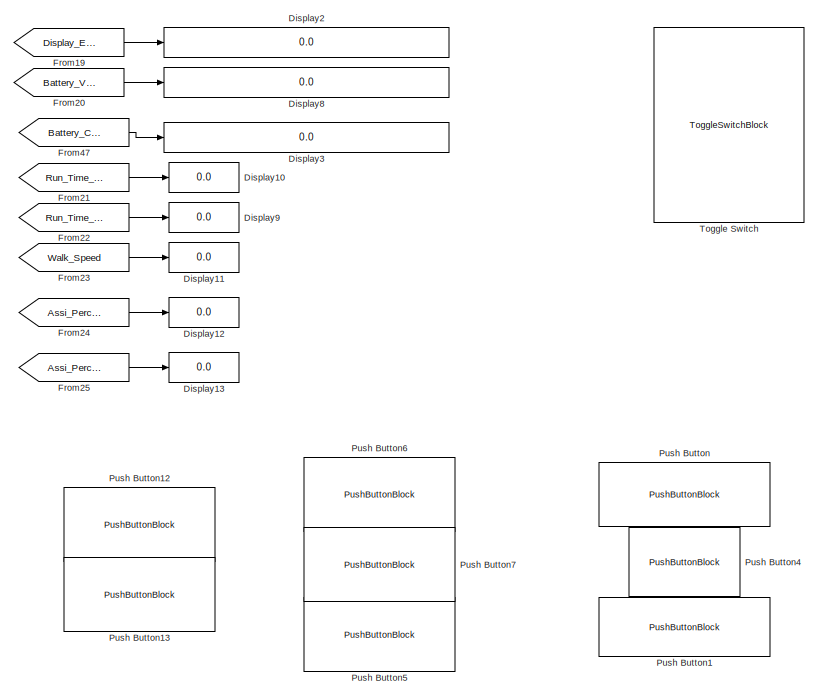
[diagram: root canvas - part 1/10, top left region]
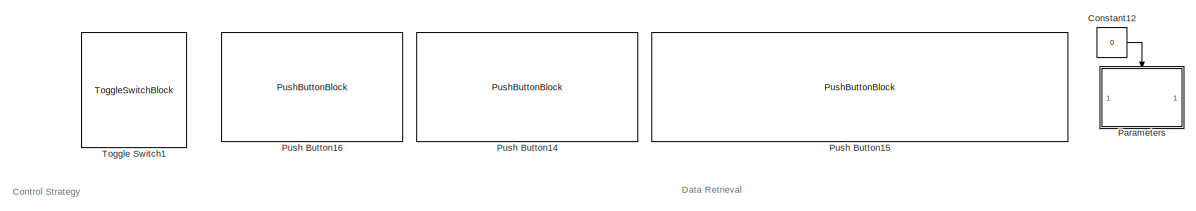
[diagram: root canvas - part 2/10, top center region]
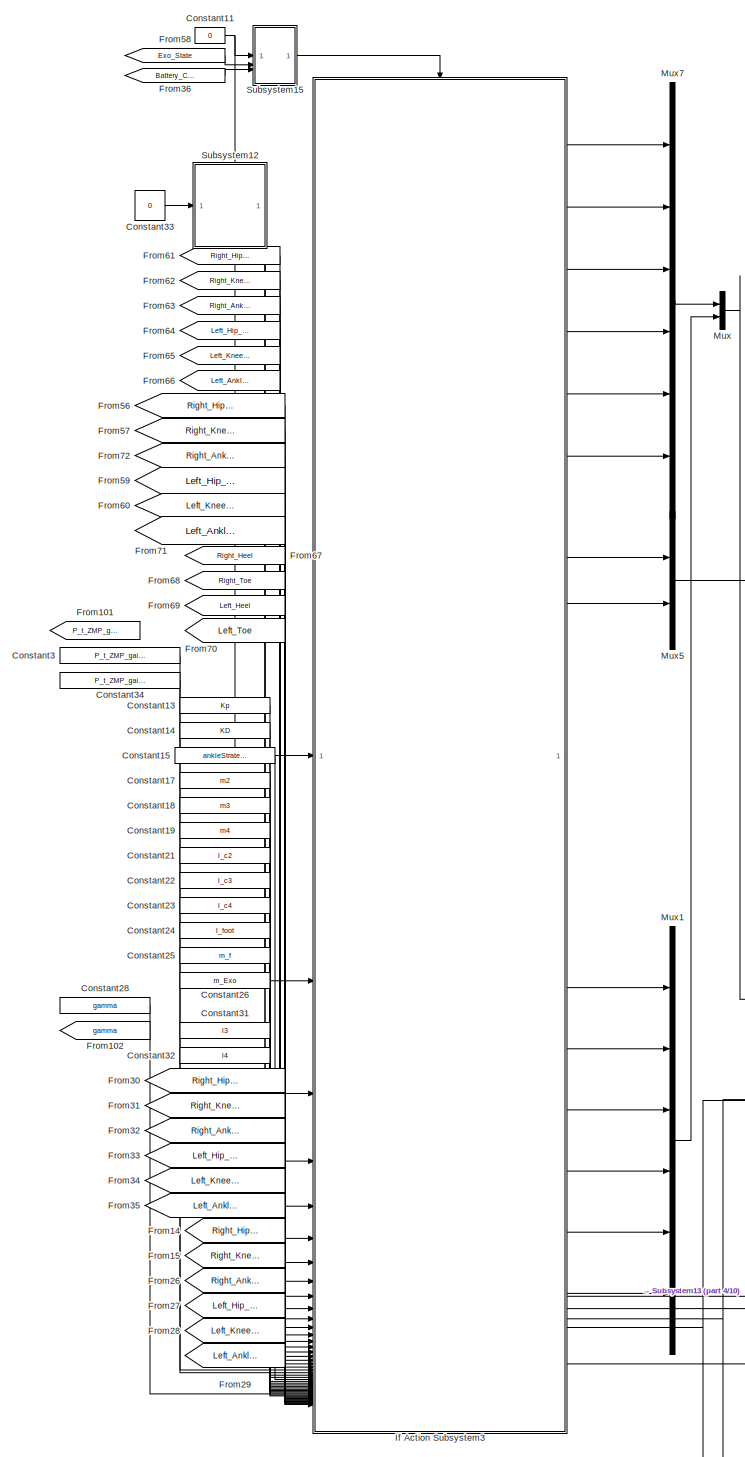
[diagram: root canvas - part 3/10, top center region]
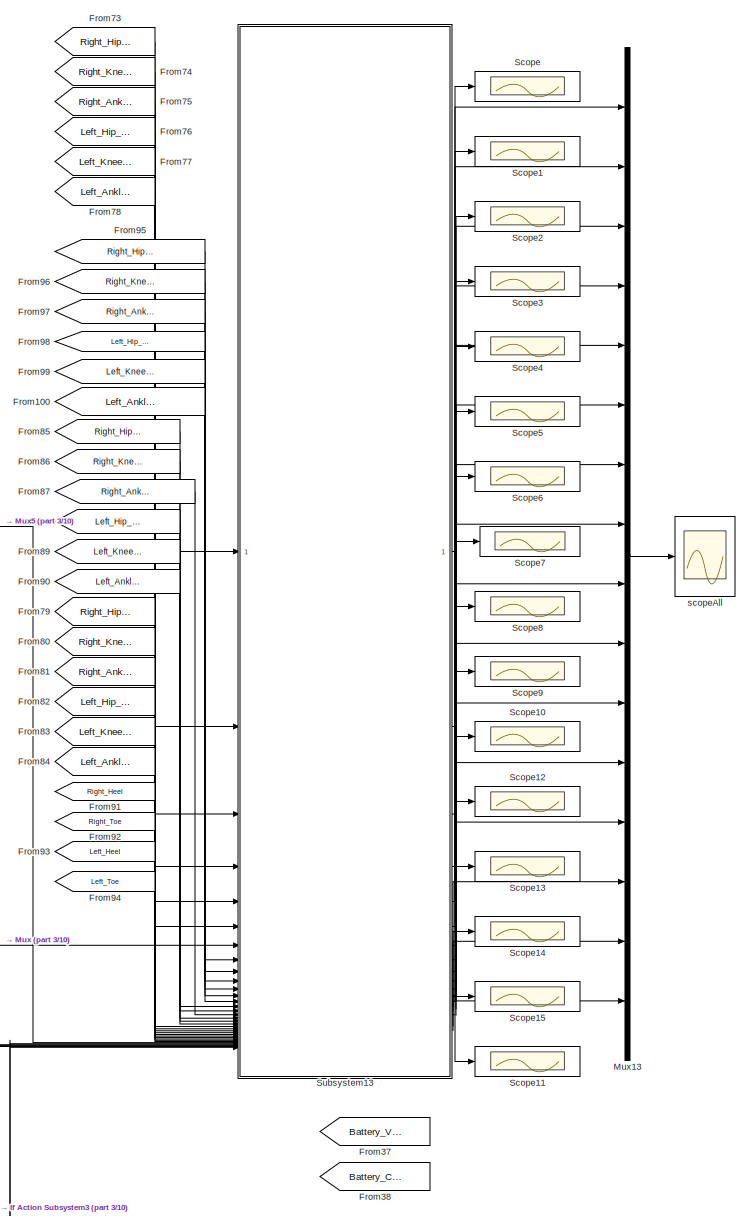
[diagram: root canvas - part 4/10, top right region]
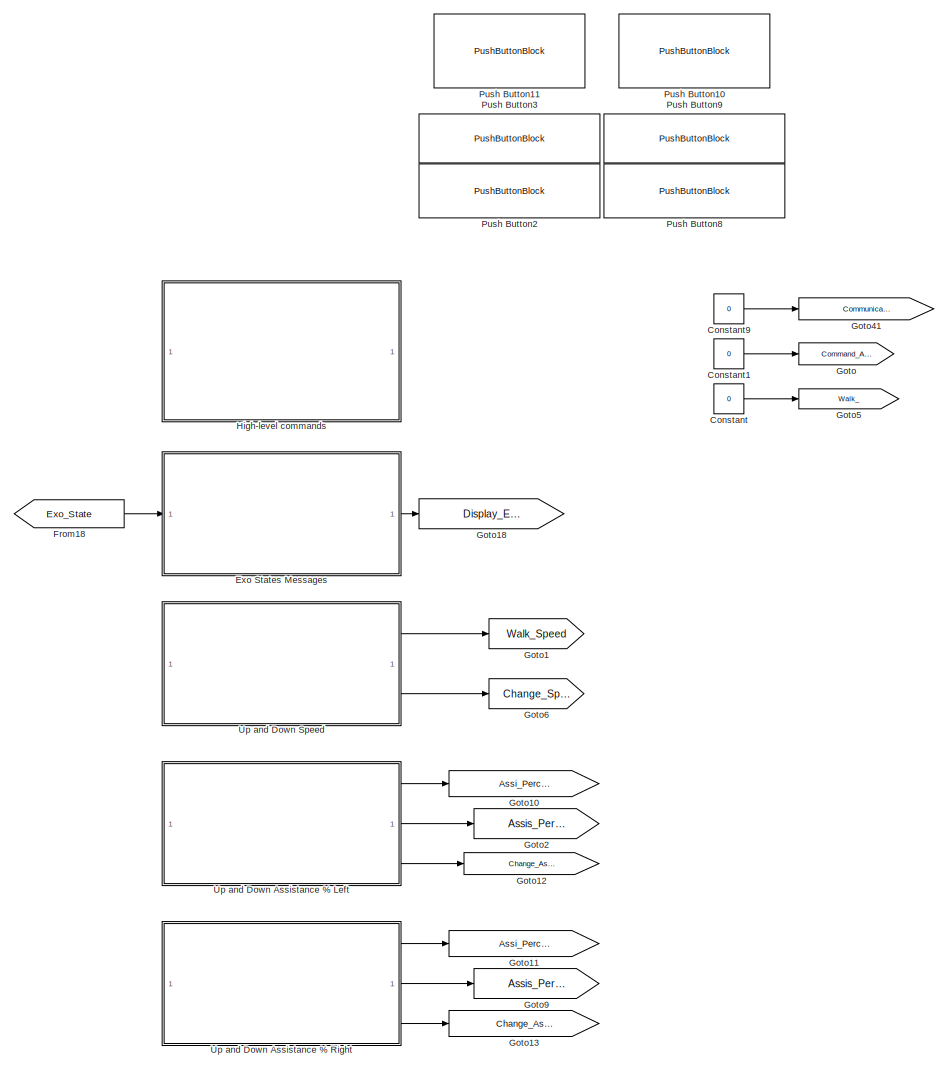
[diagram: root canvas - part 5/10, top left region]
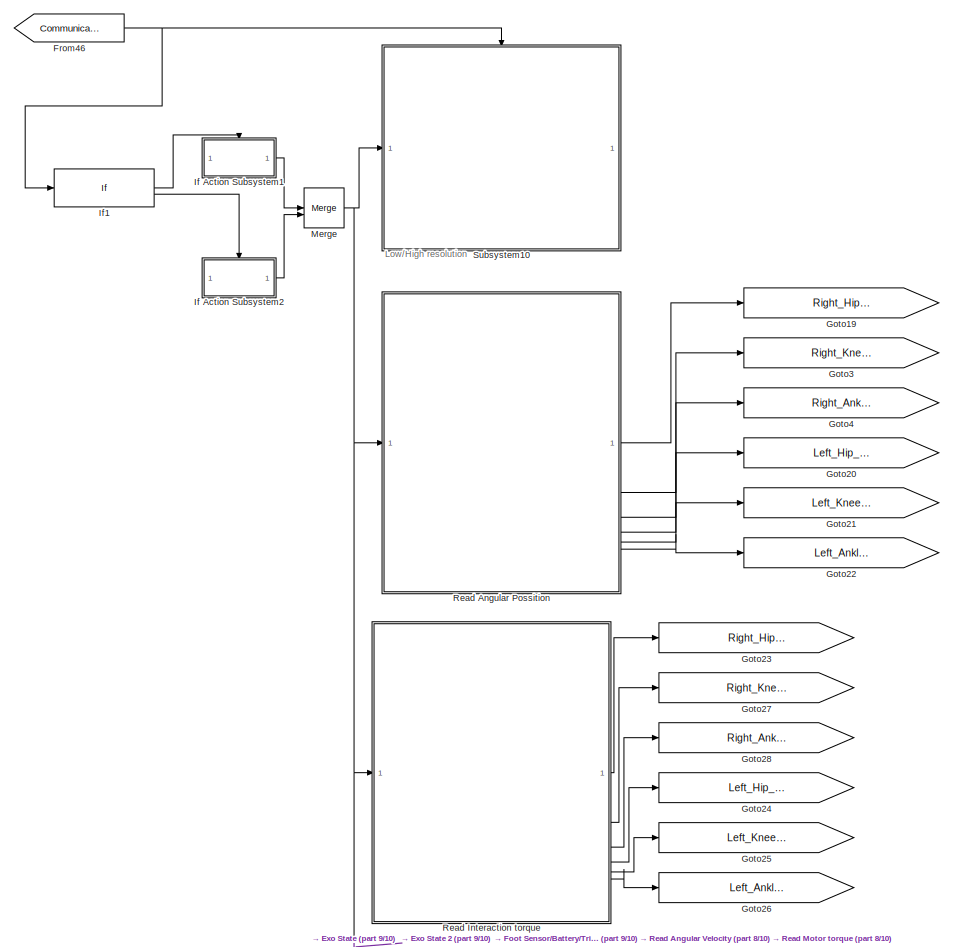
[diagram: root canvas - part 6/10, middle left region]
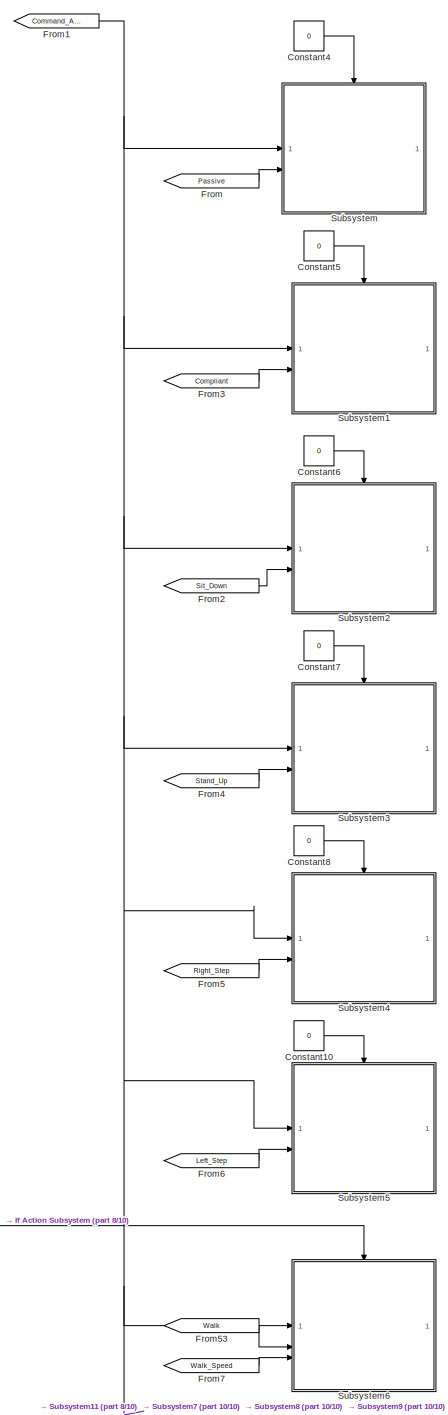
[diagram: root canvas - part 7/10, central region]
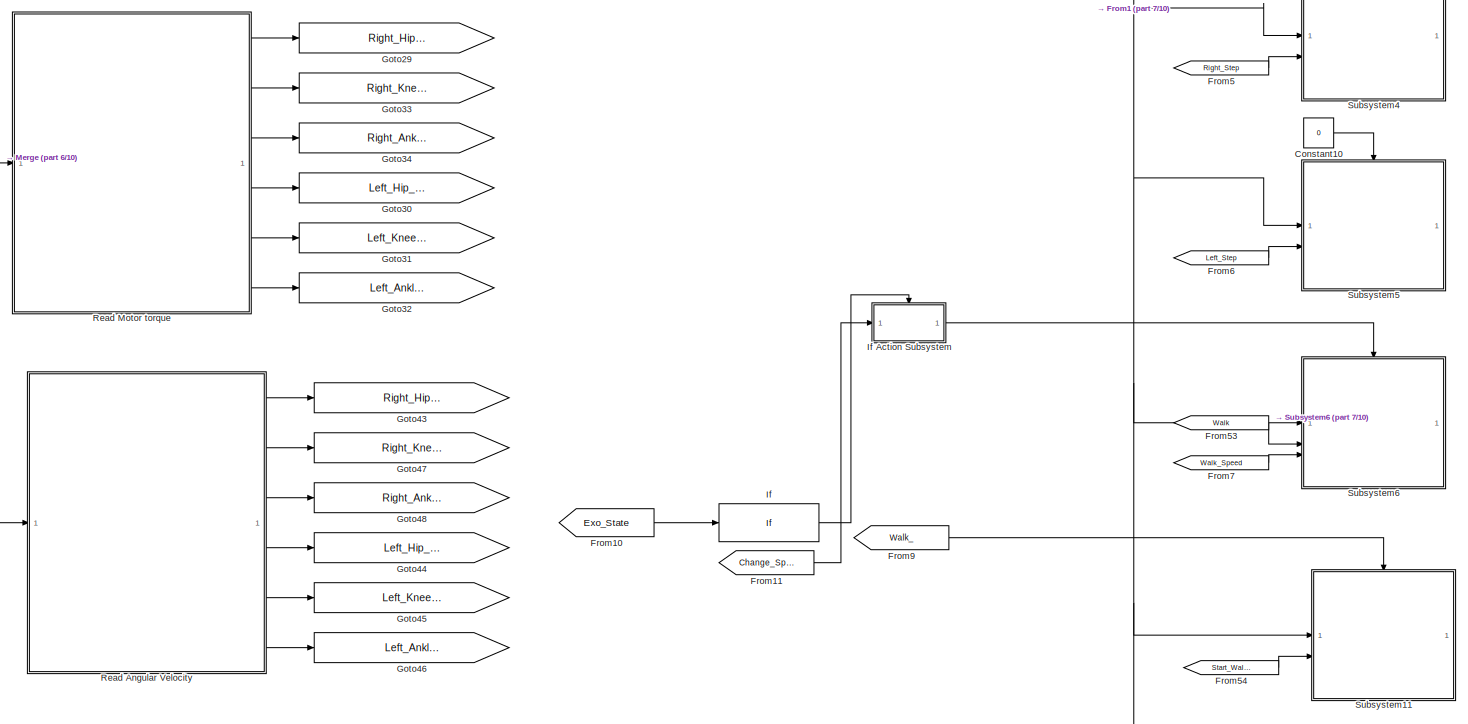
[diagram: root canvas - part 8/10, bottom center region]
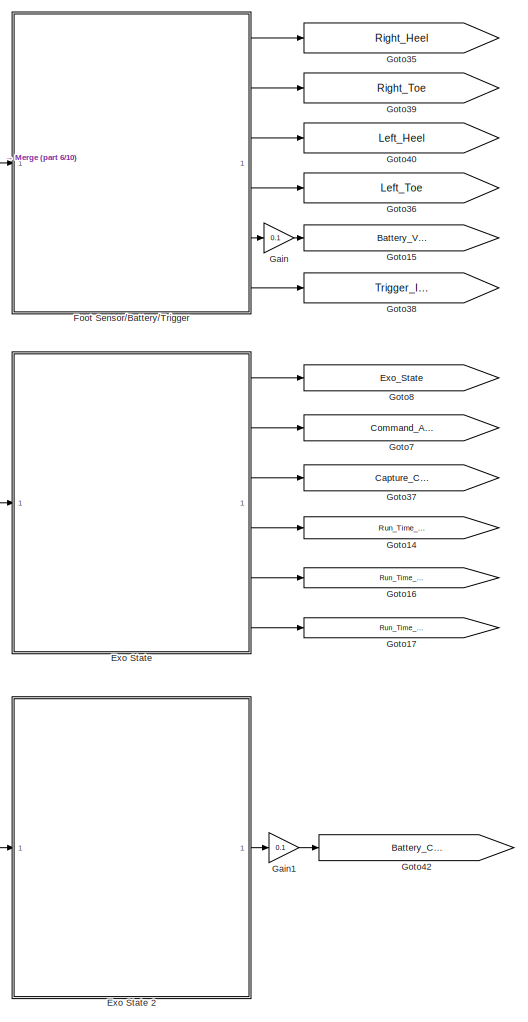
[diagram: root canvas - part 9/10, bottom left region]
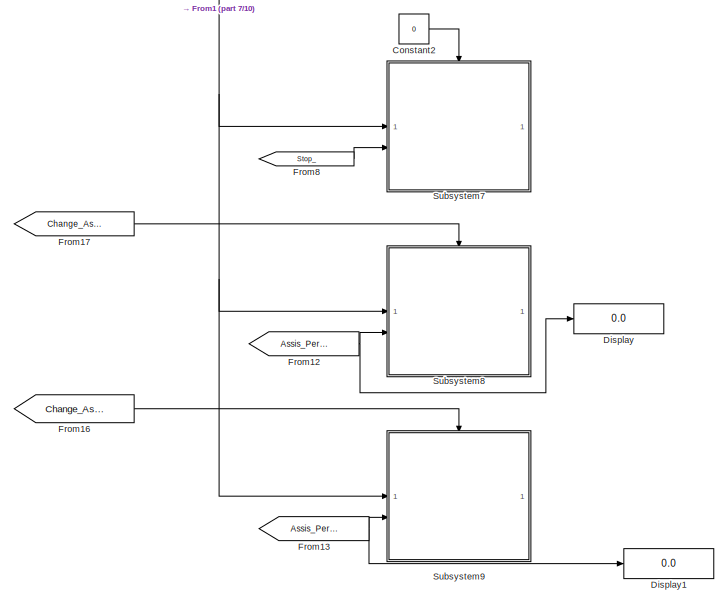
[diagram: root canvas - part 10/10, bottom center region]
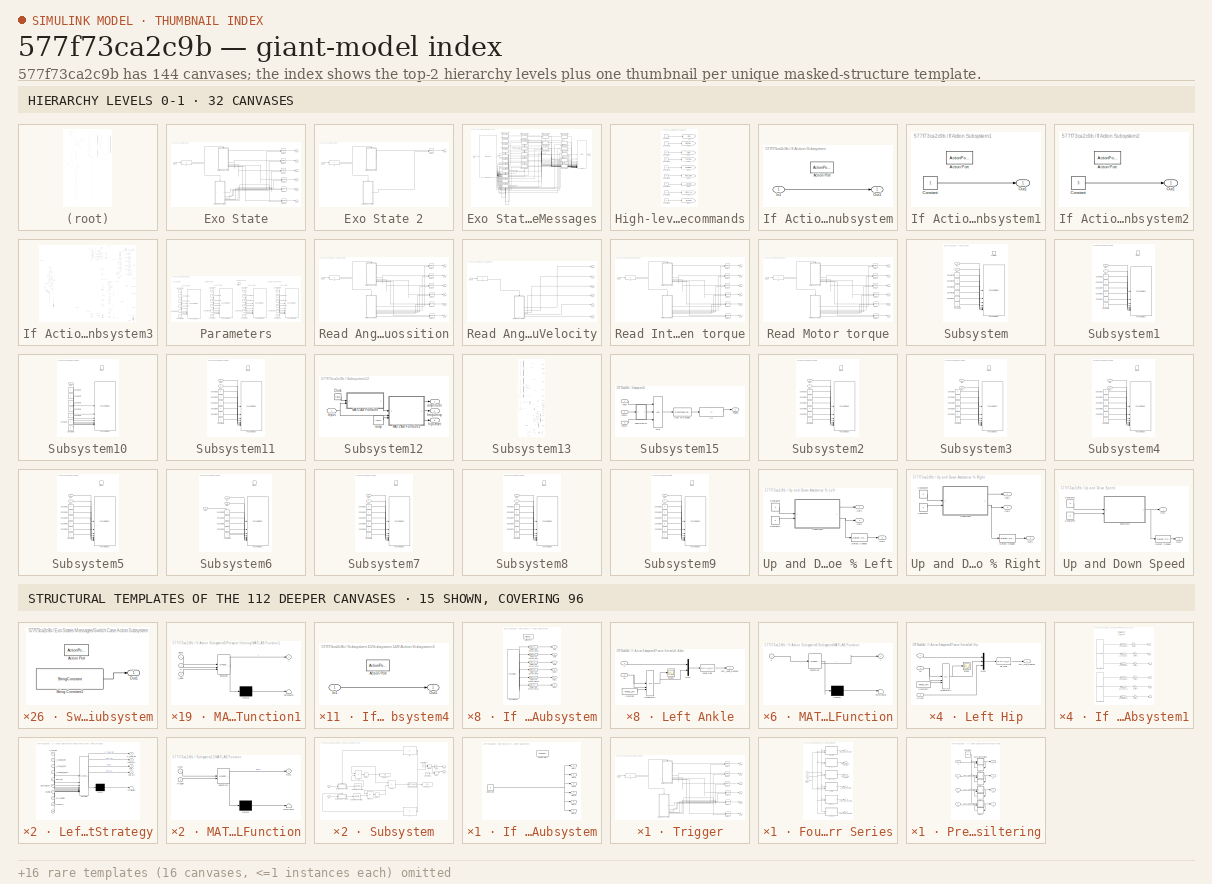
[diagram: thumbnail index - top-2 hierarchy levels (32 canvases) + 15 structural-template representatives of the remaining 112 canvases]
MODEL slx_577f73ca2c9b
KIND model
CONFIG AbsTol = auto
CONFIG EnableMultiTasking = on
CONFIG FixedStep = dt
CONFIG MaxStep = auto
CONFIG MinStep = auto
CONFIG RelTol = 1e-3
CONFIG SampleTimeConstraint = Unconstrained
CONFIG SolverName = ode5
CONFIG StartTime = 0.0
CONFIG StopTime = inf
BLOCK [Constant] Constant
  Value = 0
BLOCK [Constant] Constant1
  Value = 0
BLOCK [Constant] Constant10
  Value = 0
BLOCK [Constant] Constant11
  Value = 0
BLOCK [Constant] Constant12
  Value = 0
BLOCK [Constant] Constant13
  Value = Kp
BLOCK [Constant] Constant14
  Value = KD
BLOCK [Constant] Constant15
  Value = ankleStrategyInterval
BLOCK [Constant] Constant17
  Value = m2
BLOCK [Constant] Constant18
  Value = m3
BLOCK [Constant] Constant19
  Value = m4
BLOCK [Constant] Constant2
  Value = 0
BLOCK [Constant] Constant21
  Value = l_c2
BLOCK [Constant] Constant22
  Value = l_c3
BLOCK [Constant] Constant23
  Value = l_c4
BLOCK [Constant] Constant24
  Value = l_foot
BLOCK [Constant] Constant25
  Value = m_f
BLOCK [Constant] Constant26
  Value = m_Exo
BLOCK [Constant] Constant28
  Value = gamma
BLOCK [Constant] Constant3
  Value = P_t_ZMP_gain_Ankle
BLOCK [Constant] Constant31
  Value = l3
BLOCK [Constant] Constant32
  Value = l4
BLOCK [Constant] Constant33
  Value = 0
BLOCK [Constant] Constant34
  Value = P_t_ZMP_gain_Hip
BLOCK [Constant] Constant4
  Value = 0
BLOCK [Constant] Constant5
  Value = 0
BLOCK [Constant] Constant6
  Value = 0
BLOCK [Constant] Constant7
  Value = 0
BLOCK [Constant] Constant8
  Value = 0
BLOCK [Constant] Constant9
  Value = 0
BLOCK [Display] Display
  Decimation = 1
BLOCK [Display] Display1
  Decimation = 1
BLOCK [Display] Display10
  Decimation = 1
BLOCK [Display] Display11
  Decimation = 1
BLOCK [Display] Display12
  Decimation = 1
BLOCK [Display] Display13
  Decimation = 1
BLOCK [Display] Display2
  Decimation = 1
BLOCK [Display] Display3
  Decimation = 1
BLOCK [Display] Display8
  Decimation = 1
BLOCK [Display] Display9
  Decimation = 1
BLOCK [SubSystem] Exo State
BLOCK [SubSystem] Exo State 2
BLOCK [If] Exo State 2/If
  IfExpression = u1 == 1
BLOCK [SubSystem] Exo State 2/If Action Subsystem
  TreatAsAtomicUnit = on
BLOCK [ActionPort] Exo State 2/If Action Subsystem/Action Port
  ActionPortLabel = if(u1 == 1)
BLOCK [Constant] Exo State 2/If Action Subsystem/Constant
  Value = 0
BLOCK [Outport] Exo State 2/If Action Subsystem/Out10
  Port = 4
BLOCK [Outport] Exo State 2/If Action Subsystem/Out11
  Port = 5
BLOCK [Outport] Exo State 2/If Action Subsystem/Out12
  Port = 6
BLOCK [Outport] Exo State 2/If Action Subsystem/Out7
BLOCK [Outport] Exo State 2/If Action Subsystem/Out8
  Port = 2
BLOCK [Outport] Exo State 2/If Action Subsystem/Out9
  Port = 3
BLOCK [SubSystem] Exo State 2/If Action Subsystem1
  TreatAsAtomicUnit = on
BLOCK [ActionPort] Exo State 2/If Action Subsystem1/Action Port
  ActionPortLabel = else
BLOCK [DataTypeConversion] Exo State 2/If Action Subsystem1/Data Type Conversion10
  OutDataTypeStr = double
  RndMeth = Floor
  SaturateOnIntegerOverflow = off
BLOCK [DataTypeConversion] Exo State 2/If Action Subsystem1/Data Type Conversion11
  OutDataTypeStr = double
  RndMeth = Floor
  SaturateOnIntegerOverflow = off
BLOCK [DataTypeConversion] Exo State 2/If Action Subsystem1/Data Type Conversion6
  OutDataTypeStr = double
  RndMeth = Floor
  SaturateOnIntegerOverflow = off
BLOCK [DataTypeConversion] Exo State 2/If Action Subsystem1/Data Type Conversion7
  OutDataTypeStr = double
  RndMeth = Floor
  SaturateOnIntegerOverflow = off
BLOCK [DataTypeConversion] Exo State 2/If Action Subsystem1/Data Type Conversion8
  OutDataTypeStr = double
  RndMeth = Floor
  SaturateOnIntegerOverflow = off
BLOCK [DataTypeConversion] Exo State 2/If Action Subsystem1/Data Type Conversion9
  OutDataTypeStr = double
  RndMeth = Floor
  SaturateOnIntegerOverflow = off
BLOCK [Outport] Exo State 2/If Action Subsystem1/Out1
BLOCK [Outport] Exo State 2/If Action Subsystem1/Out2
  Port = 2
BLOCK [Outport] Exo State 2/If Action Subsystem1/Out3
  Port = 3
BLOCK [Outport] Exo State 2/If Action Subsystem1/Out4
  Port = 4
BLOCK [Outport] Exo State 2/If Action Subsystem1/Out5
  Port = 5
BLOCK [Outport] Exo State 2/If Action Subsystem1/Out6
  Port = 6
BLOCK [Reference] Exo State 2/If Action Subsystem1/Packet Input1  REF=sldrtlib/Packet Input
  AttributesFormatString = PEAK-System\nCAN Device [81]
  SourceBlock = sldrtlib/Packet Input
  SourceType = Simulink Desktop Real-Time Packet Input
BLOCK [Inport] Exo State 2/Input
BLOCK [Merge] Exo State 2/Merge
BLOCK [Outport] Exo State 2/Out1
BLOCK [If] Exo State/If
  IfExpression = u1 == 1
BLOCK [SubSystem] Exo State/If Action Subsystem
  TreatAsAtomicUnit = on
BLOCK [ActionPort] Exo State/If Action Subsystem/Action Port
  ActionPortLabel = if(u1 == 1)
BLOCK [DataTypeConversion] Exo State/If Action Subsystem/Data Type Conversion10
  OutDataTypeStr = double
  RndMeth = Floor
  SaturateOnIntegerOverflow = off
BLOCK [DataTypeConversion] Exo State/If Action Subsystem/Data Type Conversion11
  OutDataTypeStr = double
  RndMeth = Floor
  SaturateOnIntegerOverflow = off
BLOCK [DataTypeConversion] Exo State/If Action Subsystem/Data Type Conversion6
  OutDataTypeStr = double
  RndMeth = Floor
  SaturateOnIntegerOverflow = off
BLOCK [DataTypeConversion] Exo State/If Action Subsystem/Data Type Conversion7
  OutDataTypeStr = double
  RndMeth = Floor
  SaturateOnIntegerOverflow = off
BLOCK [DataTypeConversion] Exo State/If Action Subsystem/Data Type Conversion8
  OutDataTypeStr = double
  RndMeth = Floor
  SaturateOnIntegerOverflow = off
BLOCK [DataTypeConversion] Exo State/If Action Subsystem/Data Type Conversion9
  OutDataTypeStr = double
  RndMeth = Floor
  SaturateOnIntegerOverflow = off
BLOCK [Outport] Exo State/If Action Subsystem/Out10
  Port = 4
BLOCK [Outport] Exo State/If Action Subsystem/Out11
  Port = 5
BLOCK [Outport] Exo State/If Action Subsystem/Out12
  Port = 6
BLOCK [Outport] Exo State/If Action Subsystem/Out7
BLOCK [Outport] Exo State/If Action Subsystem/Out8
  Port = 2
BLOCK [Outport] Exo State/If Action Subsystem/Out9
  Port = 3
BLOCK [Reference] Exo State/If Action Subsystem/Packet Input1  REF=sldrtlib/Packet Input
  AttributesFormatString = PEAK-System\nCAN Device [81]
  SourceBlock = sldrtlib/Packet Input
  SourceType = Simulink Desktop Real-Time Packet Input
BLOCK [SubSystem] Exo State/If Action Subsystem1
  TreatAsAtomicUnit = on
BLOCK [ActionPort] Exo State/If Action Subsystem1/Action Port
  ActionPortLabel = else
BLOCK [DataTypeConversion] Exo State/If Action Subsystem1/Data Type Conversion10
  OutDataTypeStr = double
  RndMeth = Floor
  SaturateOnIntegerOverflow = off
BLOCK [DataTypeConversion] Exo State/If Action Subsystem1/Data Type Conversion11
  OutDataTypeStr = double
  RndMeth = Floor
  SaturateOnIntegerOverflow = off
BLOCK [DataTypeConversion] Exo State/If Action Subsystem1/Data Type Conversion6
  OutDataTypeStr = double
  RndMeth = Floor
  SaturateOnIntegerOverflow = off
BLOCK [DataTypeConversion] Exo State/If Action Subsystem1/Data Type Conversion7
  OutDataTypeStr = double
  RndMeth = Floor
  SaturateOnIntegerOverflow = off
BLOCK [DataTypeConversion] Exo State/If Action Subsystem1/Data Type Conversion8
  OutDataTypeStr = double
  RndMeth = Floor
  SaturateOnIntegerOverflow = off
BLOCK [DataTypeConversion] Exo State/If Action Subsystem1/Data Type Conversion9
  OutDataTypeStr = double
  RndMeth = Floor
  SaturateOnIntegerOverflow = off
BLOCK [Outport] Exo State/If Action Subsystem1/Out1
BLOCK [Outport] Exo State/If Action Subsystem1/Out2
  Port = 2
BLOCK [Outport] Exo State/If Action Subsystem1/Out3
  Port = 3
BLOCK [Outport] Exo State/If Action Subsystem1/Out4
  Port = 4
BLOCK [Outport] Exo State/If Action Subsystem1/Out5
  Port = 5
BLOCK [Outport] Exo State/If Action Subsystem1/Out6
  Port = 6
BLOCK [Reference] Exo State/If Action Subsystem1/Packet Input1  REF=sldrtlib/Packet Input
  AttributesFormatString = PEAK-System\nCAN Device [81]
  SourceBlock = sldrtlib/Packet Input
  SourceType = Simulink Desktop Real-Time Packet Input
BLOCK [Inport] Exo State/Input
BLOCK [Merge] Exo State/Merge
BLOCK [Merge] Exo State/Merge1
BLOCK [Merge] Exo State/Merge2
BLOCK [Merge] Exo State/Merge3
BLOCK [Merge] Exo State/Merge4
BLOCK [Merge] Exo State/Merge5
BLOCK [Outport] Exo State/Out1
BLOCK [Outport] Exo State/Out2
  Port = 2
BLOCK [Outport] Exo State/Out3
  Port = 3
BLOCK [Outport] Exo State/Out4
  Port = 4
BLOCK [Outport] Exo State/Out5
  Port = 5
BLOCK [Outport] Exo State/Out6
  Port = 6
BLOCK [SubSystem] Exo States Messages
BLOCK [Inport] Exo States Messages/In1
BLOCK [Merge] Exo States Messages/Merge
  Inputs = 26
BLOCK [Outport] Exo States Messages/Out1
BLOCK [SwitchCase] Exo States Messages/Switch Case
  CaseConditions = {0,1,2,3,4,5,6,7,8,9,10,11,12,13,14,15,16,17,18,19,21,22,23,24,25,26}
  ShowDefaultCase = off
BLOCK [SubSystem] Exo States Messages/Switch Case Action Subsystem
  TreatAsAtomicUnit = on
BLOCK [ActionPort] Exo States Messages/Switch Case Action Subsystem/Action Port
  ActionPortLabel = case [ 1 ]:
BLOCK [Outport] Exo States Messages/Switch Case Action Subsystem/Out1
BLOCK [StringConstant] Exo States Messages/Switch Case Action Subsystem/String Constant1
  String = "Walking at the desired speed 1"
BLOCK [SubSystem] Exo States Messages/Switch Case Action Subsystem1
  TreatAsAtomicUnit = on
BLOCK [ActionPort] Exo States Messages/Switch Case Action Subsystem1/Action Port
  ActionPortLabel = case [ 2 ]:
BLOCK [Outport] Exo States Messages/Switch Case Action Subsystem1/Out1
BLOCK [StringConstant] Exo States Messages/Switch Case Action Subsystem1/String Constant1
  String = "Walking at the desired speed 2"
BLOCK [SubSystem] Exo States Messages/Switch Case Action Subsystem10
  TreatAsAtomicUnit = on
BLOCK [ActionPort] Exo States Messages/Switch Case Action Subsystem10/Action Port
  ActionPortLabel = case [ 0 ]:
BLOCK [Outport] Exo States Messages/Switch Case Action Subsystem10/Out1
BLOCK [StringConstant] Exo States Messages/Switch Case Action Subsystem10/String Constant
  String = "Standing"
BLOCK [SubSystem] Exo States Messages/Switch Case Action Subsystem11
  TreatAsAtomicUnit = on
BLOCK [ActionPort] Exo States Messages/Switch Case Action Subsystem11/Action Port
  ActionPortLabel = case [ 11 ]:
BLOCK [Outport] Exo States Messages/Switch Case Action Subsystem11/Out1
BLOCK [StringConstant] Exo States Messages/Switch Case Action Subsystem11/String Constant11
  String = "Joints in release mode"
BLOCK [SubSystem] Exo States Messages/Switch Case Action Subsystem12
  TreatAsAtomicUnit = on
BLOCK [ActionPort] Exo States Messages/Switch Case Action Subsystem12/Action Port
  ActionPortLabel = case [ 12 ]:
BLOCK [Outport] Exo States Messages/Switch Case Action Subsystem12/Out1
BLOCK [StringConstant] Exo States Messages/Switch Case Action Subsystem12/String Constant12
  String = "Joints in free mode"
BLOCK [SubSystem] Exo States Messages/Switch Case Action Subsystem13
  TreatAsAtomicUnit = on
BLOCK [ActionPort] Exo States Messages/Switch Case Action Subsystem13/Action Port
  ActionPortLabel = case [ 13 ]:
BLOCK [Outport] Exo States Messages/Switch Case Action Subsystem13/Out1
BLOCK [StringConstant] Exo States Messages/Switch Case Action Subsystem13/String Constant13
  String = "stop Walking"
BLOCK [SubSystem] Exo States Messages/Switch Case Action Subsystem14
  TreatAsAtomicUnit = on
BLOCK [ActionPort] Exo States Messages/Switch Case Action Subsystem14/Action Port
  ActionPortLabel = case [ 14 ]:
BLOCK [Outport] Exo States Messages/Switch Case Action Subsystem14/Out1
BLOCK [StringConstant] Exo States Messages/Switch Case Action Subsystem14/String Constant14
  String = "Standing"
BLOCK [SubSystem] Exo States Messages/Switch Case Action Subsystem15
  TreatAsAtomicUnit = on
BLOCK [ActionPort] Exo States Messages/Switch Case Action Subsystem15/Action Port
  ActionPortLabel = case [ 15 ]:
BLOCK [Outport] Exo States Messages/Switch Case Action Subsystem15/Out1
BLOCK [StringConstant] Exo States Messages/Switch Case Action Subsystem15/String Constant15
  String = "Sitting"
BLOCK [SubSystem] Exo States Messages/Switch Case Action Subsystem16
  TreatAsAtomicUnit = on
BLOCK [ActionPort] Exo States Messages/Switch Case Action Subsystem16/Action Port
  ActionPortLabel = case [ 16 ]:
BLOCK [Outport] Exo States Messages/Switch Case Action Subsystem16/Out1
BLOCK [StringConstant] Exo States Messages/Switch Case Action Subsystem16/String Constant16
  String = "Seated"
BLOCK [SubSystem] Exo States Messages/Switch Case Action Subsystem17
  TreatAsAtomicUnit = on
BLOCK [ActionPort] Exo States Messages/Switch Case Action Subsystem17/Action Port
  ActionPortLabel = case [ 17 ]:
BLOCK [Outport] Exo States Messages/Switch Case Action Subsystem17/Out1
BLOCK [StringConstant] Exo States Messages/Switch Case Action Subsystem17/String Constant17
  String = "Stepping with left leg. Only in step by step mode"
BLOCK [SubSystem] Exo States Messages/Switch Case Action Subsystem18
  TreatAsAtomicUnit = on
BLOCK [ActionPort] Exo States Messages/Switch Case Action Subsystem18/Action Port
  ActionPortLabel = case [ 18 ]:
BLOCK [Outport] Exo States Messages/Switch Case Action Subsystem18/Out1
BLOCK [StringConstant] Exo States Messages/Switch Case Action Subsystem18/String Constant18
  String = "Stepping with left right. Only in step by step mode"
BLOCK [SubSystem] Exo States Messages/Switch Case Action Subsystem19
  TreatAsAtomicUnit = on
BLOCK [ActionPort] Exo States Messages/Switch Case Action Subsystem19/Action Port
  ActionPortLabel = case [ 19 ]:
BLOCK [Outport] Exo States Messages/Switch Case Action Subsystem19/Out1
BLOCK [StringConstant] Exo States Messages/Switch Case Action Subsystem19/String Constant19
  String = "Joints locked in current position"
BLOCK [SubSystem] Exo States Messages/Switch Case Action Subsystem2
  TreatAsAtomicUnit = on
BLOCK [ActionPort] Exo States Messages/Switch Case Action Subsystem2/Action Port
  ActionPortLabel = case [ 3 ]:
BLOCK [Outport] Exo States Messages/Switch Case Action Subsystem2/Out1
BLOCK [StringConstant] Exo States Messages/Switch Case Action Subsystem2/String Constant1
  String = "Walking at the desired speed 3"
BLOCK [SubSystem] Exo States Messages/Switch Case Action Subsystem20
  TreatAsAtomicUnit = on
BLOCK [ActionPort] Exo States Messages/Switch Case Action Subsystem20/Action Port
  ActionPortLabel = case [ 26 ]:
BLOCK [Outport] Exo States Messages/Switch Case Action Subsystem20/Out1
BLOCK [StringConstant] Exo States Messages/Switch Case Action Subsystem20/String Constant26
  String = "Malfunction in left ankle"
BLOCK [SubSystem] Exo States Messages/Switch Case Action Subsystem22
  TreatAsAtomicUnit = on
BLOCK [ActionPort] Exo States Messages/Switch Case Action Subsystem22/Action Port
  ActionPortLabel = case [ 21 ]:
BLOCK [Outport] Exo States Messages/Switch Case Action Subsystem22/Out1
BLOCK [StringConstant] Exo States Messages/Switch Case Action Subsystem22/String Constant21
  String = "Malfunction in right hip"
BLOCK [SubSystem] Exo States Messages/Switch Case Action Subsystem23
  TreatAsAtomicUnit = on
BLOCK [ActionPort] Exo States Messages/Switch Case Action Subsystem23/Action Port
  ActionPortLabel = case [ 22 ]:
BLOCK [Outport] Exo States Messages/Switch Case Action Subsystem23/Out1
BLOCK [StringConstant] Exo States Messages/Switch Case Action Subsystem23/String Constant22
  String = "Malfunction in right knee"
BLOCK [SubSystem] Exo States Messages/Switch Case Action Subsystem24
  TreatAsAtomicUnit = on
BLOCK [ActionPort] Exo States Messages/Switch Case Action Subsystem24/Action Port
  ActionPortLabel = case [ 23 ]:
BLOCK [Outport] Exo States Messages/Switch Case Action Subsystem24/Out1
BLOCK [StringConstant] Exo States Messages/Switch Case Action Subsystem24/String Constant23
  String = "Malfunction in right ankle"
BLOCK [SubSystem] Exo States Messages/Switch Case Action Subsystem25
  TreatAsAtomicUnit = on
BLOCK [ActionPort] Exo States Messages/Switch Case Action Subsystem25/Action Port
  ActionPortLabel = case [ 24 ]:
BLOCK [Outport] Exo States Messages/Switch Case Action Subsystem25/Out1
BLOCK [StringConstant] Exo States Messages/Switch Case Action Subsystem25/String Constant24
  String = "Malfunction in left hip"
BLOCK [SubSystem] Exo States Messages/Switch Case Action Subsystem26
  TreatAsAtomicUnit = on
BLOCK [ActionPort] Exo States Messages/Switch Case Action Subsystem26/Action Port
  ActionPortLabel = case [ 25 ]:
BLOCK [Outport] Exo States Messages/Switch Case Action Subsystem26/Out1
BLOCK [StringConstant] Exo States Messages/Switch Case Action Subsystem26/String Constant25
  String = "Malfunction in left knee"
BLOCK [SubSystem] Exo States Messages/Switch Case Action Subsystem3
  TreatAsAtomicUnit = on
BLOCK [ActionPort] Exo States Messages/Switch Case Action Subsystem3/Action Port
  ActionPortLabel = case [ 4 ]:
BLOCK [Outport] Exo States Messages/Switch Case Action Subsystem3/Out1
BLOCK [StringConstant] Exo States Messages/Switch Case Action Subsystem3/String Constant1
  String = "Walking at the desired speed 4"
BLOCK [SubSystem] Exo States Messages/Switch Case Action Subsystem4
  TreatAsAtomicUnit = on
BLOCK [ActionPort] Exo States Messages/Switch Case Action Subsystem4/Action Port
  ActionPortLabel = case [ 5 ]:
BLOCK [Outport] Exo States Messages/Switch Case Action Subsystem4/Out1
BLOCK [StringConstant] Exo States Messages/Switch Case Action Subsystem4/String Constant1
  String = "Walking at the desired speed 5"
BLOCK [SubSystem] Exo States Messages/Switch Case Action Subsystem5
  TreatAsAtomicUnit = on
BLOCK [ActionPort] Exo States Messages/Switch Case Action Subsystem5/Action Port
  ActionPortLabel = case [ 6 ]:
BLOCK [Outport] Exo States Messages/Switch Case Action Subsystem5/Out1
BLOCK [StringConstant] Exo States Messages/Switch Case Action Subsystem5/String Constant1
  String = "Walking at the desired speed 6"
BLOCK [SubSystem] Exo States Messages/Switch Case Action Subsystem6
  TreatAsAtomicUnit = on
BLOCK [ActionPort] Exo States Messages/Switch Case Action Subsystem6/Action Port
  ActionPortLabel = case [ 7 ]:
BLOCK [Outport] Exo States Messages/Switch Case Action Subsystem6/Out1
BLOCK [StringConstant] Exo States Messages/Switch Case Action Subsystem6/String Constant1
  String = "Walking at the desired speed 7"
BLOCK [SubSystem] Exo States Messages/Switch Case Action Subsystem7
  TreatAsAtomicUnit = on
BLOCK [ActionPort] Exo States Messages/Switch Case Action Subsystem7/Action Port
  ActionPortLabel = case [ 8 ]:
BLOCK [Outport] Exo States Messages/Switch Case Action Subsystem7/Out1
BLOCK [StringConstant] Exo States Messages/Switch Case Action Subsystem7/String Constant1
  String = "Walking at the desired speed 8"
BLOCK [SubSystem] Exo States Messages/Switch Case Action Subsystem8
  TreatAsAtomicUnit = on
BLOCK [ActionPort] Exo States Messages/Switch Case Action Subsystem8/Action Port
  ActionPortLabel = case [ 9 ]:
BLOCK [Outport] Exo States Messages/Switch Case Action Subsystem8/Out1
BLOCK [StringConstant] Exo States Messages/Switch Case Action Subsystem8/String Constant1
  String = "Walking at the desired speed 9"
BLOCK [SubSystem] Exo States Messages/Switch Case Action Subsystem9
  TreatAsAtomicUnit = on
BLOCK [ActionPort] Exo States Messages/Switch Case Action Subsystem9/Action Port
  ActionPortLabel = case [ 10 ]:
BLOCK [Outport] Exo States Messages/Switch Case Action Subsystem9/Out1
BLOCK [StringConstant] Exo States Messages/Switch Case Action Subsystem9/String Constant1
  String = "Walking at the desired speed 10"
BLOCK [SubSystem] Foot Sensor//Battery//Trigger
BLOCK [If] Foot Sensor//Battery//Trigger/If
  IfExpression = u1 == 1
BLOCK [SubSystem] Foot Sensor//Battery//Trigger/If Action Subsystem
  TreatAsAtomicUnit = on
BLOCK [ActionPort] Foot Sensor//Battery//Trigger/If Action Subsystem/Action Port
  ActionPortLabel = if(u1 == 1)
BLOCK [DataTypeConversion] Foot Sensor//Battery//Trigger/If Action Subsystem/Data Type Conversion10
  OutDataTypeStr = double
  RndMeth = Floor
  SaturateOnIntegerOverflow = off
BLOCK [DataTypeConversion] Foot Sensor//Battery//Trigger/If Action Subsystem/Data Type Conversion11
  OutDataTypeStr = double
  RndMeth = Floor
  SaturateOnIntegerOverflow = off
BLOCK [DataTypeConversion] Foot Sensor//Battery//Trigger/If Action Subsystem/Data Type Conversion6
  OutDataTypeStr = double
  RndMeth = Floor
  SaturateOnIntegerOverflow = off
BLOCK [DataTypeConversion] Foot Sensor//Battery//Trigger/If Action Subsystem/Data Type Conversion7
  OutDataTypeStr = double
  RndMeth = Floor
  SaturateOnIntegerOverflow = off
BLOCK [DataTypeConversion] Foot Sensor//Battery//Trigger/If Action Subsystem/Data Type Conversion8
  OutDataTypeStr = double
  RndMeth = Floor
  SaturateOnIntegerOverflow = off
BLOCK [DataTypeConversion] Foot Sensor//Battery//Trigger/If Action Subsystem/Data Type Conversion9
  OutDataTypeStr = double
  RndMeth = Floor
  SaturateOnIntegerOverflow = off
BLOCK [Outport] Foot Sensor//Battery//Trigger/If Action Subsystem/Out10
  Port = 4
BLOCK [Outport] Foot Sensor//Battery//Trigger/If Action Subsystem/Out11
  Port = 5
BLOCK [Outport] Foot Sensor//Battery//Trigger/If Action Subsystem/Out12
  Port = 6
BLOCK [Outport] Foot Sensor//Battery//Trigger/If Action Subsystem/Out7
BLOCK [Outport] Foot Sensor//Battery//Trigger/If Action Subsystem/Out8
  Port = 2
BLOCK [Outport] Foot Sensor//Battery//Trigger/If Action Subsystem/Out9
  Port = 3
BLOCK [Reference] Foot Sensor//Battery//Trigger/If Action Subsystem/Packet Input1  REF=sldrtlib/Packet Input
  AttributesFormatString = PEAK-System\nCAN Device [81]
  SourceBlock = sldrtlib/Packet Input
  SourceType = Simulink Desktop Real-Time Packet Input
BLOCK [SubSystem] Foot Sensor//Battery//Trigger/If Action Subsystem1
  TreatAsAtomicUnit = on
BLOCK [ActionPort] Foot Sensor//Battery//Trigger/If Action Subsystem1/Action Port
  ActionPortLabel = else
BLOCK [DataTypeConversion] Foot Sensor//Battery//Trigger/If Action Subsystem1/Data Type Conversion10
  OutDataTypeStr = double
  RndMeth = Floor
  SaturateOnIntegerOverflow = off
BLOCK [DataTypeConversion] Foot Sensor//Battery//Trigger/If Action Subsystem1/Data Type Conversion11
  OutDataTypeStr = double
  RndMeth = Floor
  SaturateOnIntegerOverflow = off
BLOCK [DataTypeConversion] Foot Sensor//Battery//Trigger/If Action Subsystem1/Data Type Conversion6
  OutDataTypeStr = double
  RndMeth = Floor
  SaturateOnIntegerOverflow = off
BLOCK [DataTypeConversion] Foot Sensor//Battery//Trigger/If Action Subsystem1/Data Type Conversion7
  OutDataTypeStr = double
  RndMeth = Floor
  SaturateOnIntegerOverflow = off
BLOCK [DataTypeConversion] Foot Sensor//Battery//Trigger/If Action Subsystem1/Data Type Conversion8
  OutDataTypeStr = double
  RndMeth = Floor
  SaturateOnIntegerOverflow = off
BLOCK [DataTypeConversion] Foot Sensor//Battery//Trigger/If Action Subsystem1/Data Type Conversion9
  OutDataTypeStr = double
  RndMeth = Floor
  SaturateOnIntegerOverflow = off
BLOCK [Outport] Foot Sensor//Battery//Trigger/If Action Subsystem1/Out1
BLOCK [Outport] Foot Sensor//Battery//Trigger/If Action Subsystem1/Out2
  Port = 2
BLOCK [Outport] Foot Sensor//Battery//Trigger/If Action Subsystem1/Out3
  Port = 3
BLOCK [Outport] Foot Sensor//Battery//Trigger/If Action Subsystem1/Out4
  Port = 4
BLOCK [Outport] Foot Sensor//Battery//Trigger/If Action Subsystem1/Out5
  Port = 5
BLOCK [Outport] Foot Sensor//Battery//Trigger/If Action Subsystem1/Out6
  Port = 6
BLOCK [Reference] Foot Sensor//Battery//Trigger/If Action Subsystem1/Packet Input1  REF=sldrtlib/Packet Input
  AttributesFormatString = PEAK-System\nCAN Device [81]
  SourceBlock = sldrtlib/Packet Input
  SourceType = Simulink Desktop Real-Time Packet Input
BLOCK [Inport] Foot Sensor//Battery//Trigger/Input
BLOCK [Merge] Foot Sensor//Battery//Trigger/Merge
BLOCK [Merge] Foot Sensor//Battery//Trigger/Merge1
BLOCK [Merge] Foot Sensor//Battery//Trigger/Merge2
BLOCK [Merge] Foot Sensor//Battery//Trigger/Merge3
BLOCK [Merge] Foot Sensor//Battery//Trigger/Merge4
BLOCK [Merge] Foot Sensor//Battery//Trigger/Merge5
BLOCK [Outport] Foot Sensor//Battery//Trigger/Out1
BLOCK [Outport] Foot Sensor//Battery//Trigger/Out2
  Port = 2
BLOCK [Outport] Foot Sensor//Battery//Trigger/Out3
  Port = 3
BLOCK [Outport] Foot Sensor//Battery//Trigger/Out4
  Port = 4
BLOCK [Outport] Foot Sensor//Battery//Trigger/Out5
  Port = 5
BLOCK [Outport] Foot Sensor//Battery//Trigger/Out6
  Port = 6
BLOCK [From] From
  GotoTag = Passive
  TagVisibility = global
BLOCK [From] From1
  GotoTag = Command_App
  TagVisibility = global
BLOCK [From] From10
  GotoTag = Exo_State
BLOCK [From] From100
  GotoTag = Left_Ankle_Angular_Velocity
  TagVisibility = global
BLOCK [From] From101
  Commented = on
  GotoTag = P_t_ZMP_gain
BLOCK [From] From102
  Commented = on
  GotoTag = gamma
BLOCK [From] From11
  GotoTag = Change_Speed
BLOCK [From] From12
  GotoTag = Assis_Perc_Right
BLOCK [From] From13
  GotoTag = Assis_Perc_Left
BLOCK [From] From14
  GotoTag = Right_Hip_Torque
  TagVisibility = global
BLOCK [From] From15
  GotoTag = Right_Knee_Torque
  TagVisibility = global
BLOCK [From] From16
  GotoTag = Change_Assis_Left
BLOCK [From] From17
  GotoTag = Change_Assis_Right
  TagVisibility = global
BLOCK [From] From18
  GotoTag = Exo_State
BLOCK [From] From19
  GotoTag = Display_Exo_States
  TagVisibility = global
BLOCK [From] From2
  GotoTag = Sit_Down
  TagVisibility = global
BLOCK [From] From20
  GotoTag = Battery_Volt
  TagVisibility = global
BLOCK [From] From21
  GotoTag = Run_Time_Min
  TagVisibility = global
BLOCK [From] From22
  GotoTag = Run_Time_Sec
  TagVisibility = global
BLOCK [From] From23
  GotoTag = Walk_Speed
BLOCK [From] From24
  GotoTag = Assi_Perc_Right_Disp
  TagVisibility = global
BLOCK [From] From25
  GotoTag = Assi_Perc_Left_Disp
  TagVisibility = global
BLOCK [From] From26
  GotoTag = Right_Ankle_Torque
  TagVisibility = global
BLOCK [From] From27
  GotoTag = Left_Hip_Torque
  TagVisibility = global
BLOCK [From] From28
  GotoTag = Left_Knee_Torque
  TagVisibility = global
BLOCK [From] From29
  GotoTag = Left_Ankle_Torque
  TagVisibility = global
BLOCK [From] From3
  GotoTag = Compliant
  TagVisibility = global
BLOCK [From] From30
  GotoTag = Right_Hip_Motor_Torque
  TagVisibility = global
BLOCK [From] From31
  GotoTag = Right_Knee_Motor_Torque
  TagVisibility = global
BLOCK [From] From32
  GotoTag = Right_Ankle_Motor_Torque
  TagVisibility = global
BLOCK [From] From33
  GotoTag = Left_Hip_Motor_Torque
  TagVisibility = global
BLOCK [From] From34
  GotoTag = Left_Knee_Motor_Torque
  TagVisibility = global
BLOCK [From] From35
  GotoTag = Left_Ankle_Motor_Torque
  TagVisibility = global
BLOCK [From] From36
  GotoTag = Battery_Current
  TagVisibility = global
BLOCK [From] From37
  Commented = on
  GotoTag = Battery_Volt
  TagVisibility = global
BLOCK [From] From38
  Commented = on
  GotoTag = Battery_Current
  TagVisibility = global
BLOCK [From] From4
  GotoTag = Stand_Up
  TagVisibility = global
BLOCK [From] From46
  GotoTag = Communication_mode
  TagVisibility = global
BLOCK [From] From47
  GotoTag = Battery_Current
  TagVisibility = global
BLOCK [From] From5
  GotoTag = Right_Step
  TagVisibility = global
BLOCK [From] From53
  GotoTag = Walk
  TagVisibility = global
BLOCK [From] From54
  GotoTag = Start_Walking
  TagVisibility = global
BLOCK [From] From56
  GotoTag = Right_Hip_Angular_Velocity
  TagVisibility = global
BLOCK [From] From57
  GotoTag = Right_Knee_Angular_Velocity
  TagVisibility = global
BLOCK [From] From58
  GotoTag = Exo_State
BLOCK [From] From59
  GotoTag = Left_Hip_Angular_Velocity
  TagVisibility = global
BLOCK [From] From6
  GotoTag = Left_Step
  TagVisibility = global
BLOCK [From] From60
  GotoTag = Left_Knee_Angular_Velocity
  TagVisibility = global
BLOCK [From] From61
  GotoTag = Right_Hip_Angle
  TagVisibility = global
BLOCK [From] From62
  GotoTag = Right_Knee_Angle
  TagVisibility = global
BLOCK [From] From63
  GotoTag = Right_Ankle_Angle
  TagVisibility = global
BLOCK [From] From64
  GotoTag = Left_Hip_Angle
  TagVisibility = global
BLOCK [From] From65
  GotoTag = Left_Knee_Angle
  TagVisibility = global
BLOCK [From] From66
  GotoTag = Left_Ankle_Angle
  TagVisibility = global
BLOCK [From] From67
  GotoTag = Right_Heel
  TagVisibility = global
BLOCK [From] From68
  GotoTag = Right_Toe
  TagVisibility = global
BLOCK [From] From69
  GotoTag = Left_Heel
  TagVisibility = global
BLOCK [From] From7
  GotoTag = Walk_Speed
BLOCK [From] From70
  GotoTag = Left_Toe
  TagVisibility = global
BLOCK [From] From71
  GotoTag = Left_Ankle_Angular_Velocity
  TagVisibility = global
BLOCK [From] From72
  GotoTag = Right_Ankle_Angular_Velocity
  TagVisibility = global
BLOCK [From] From73
  GotoTag = Right_Hip_Angle
  TagVisibility = global
BLOCK [From] From74
  GotoTag = Right_Knee_Angle
  TagVisibility = global
BLOCK [From] From75
  GotoTag = Right_Ankle_Angle
  TagVisibility = global
BLOCK [From] From76
  GotoTag = Left_Hip_Angle
  TagVisibility = global
BLOCK [From] From77
  GotoTag = Left_Knee_Angle
  TagVisibility = global
BLOCK [From] From78
  GotoTag = Left_Ankle_Angle
  TagVisibility = global
BLOCK [From] From79
  GotoTag = Right_Hip_Torque
  TagVisibility = global
BLOCK [From] From8
  GotoTag = Stop_
  TagVisibility = global
BLOCK [From] From80
  GotoTag = Right_Knee_Torque
  TagVisibility = global
BLOCK [From] From81
  GotoTag = Right_Ankle_Torque
  TagVisibility = global
BLOCK [From] From82
  GotoTag = Left_Hip_Torque
  TagVisibility = global
BLOCK [From] From83
  GotoTag = Left_Knee_Torque
  TagVisibility = global
BLOCK [From] From84
  GotoTag = Left_Ankle_Torque
  TagVisibility = global
BLOCK [From] From85
  GotoTag = Right_Hip_Motor_Torque
  TagVisibility = global
BLOCK [From] From86
  GotoTag = Right_Knee_Motor_Torque
  TagVisibility = global
BLOCK [From] From87
  GotoTag = Right_Ankle_Motor_Torque
  TagVisibility = global
BLOCK [From] From88
  GotoTag = Left_Hip_Motor_Torque
  TagVisibility = global
BLOCK [From] From89
  GotoTag = Left_Knee_Motor_Torque
  TagVisibility = global
BLOCK [From] From9
  GotoTag = Walk_
BLOCK [From] From90
  GotoTag = Left_Ankle_Motor_Torque
  TagVisibility = global
BLOCK [From] From91
  GotoTag = Right_Heel
  TagVisibility = global
BLOCK [From] From92
  GotoTag = Right_Toe
  TagVisibility = global
BLOCK [From] From93
  GotoTag = Left_Heel
  TagVisibility = global
BLOCK [From] From94
  GotoTag = Left_Toe
  TagVisibility = global
BLOCK [From] From95
  GotoTag = Right_Hip_Angular_Velocity
  TagVisibility = global
BLOCK [From] From96
  GotoTag = Right_Knee_Angular_Velocity
  TagVisibility = global
BLOCK [From] From97
  GotoTag = Right_Ankle_Angular_Velocity
  TagVisibility = global
BLOCK [From] From98
  GotoTag = Left_Hip_Angular_Velocity
  TagVisibility = global
BLOCK [From] From99
  GotoTag = Left_Knee_Angular_Velocity
  TagVisibility = global
BLOCK [Gain] Gain
  Gain = 0.1
BLOCK [Gain] Gain1
  Gain = 0.1
BLOCK [Goto] Goto
  GotoTag = Command_App
  Tag = state
  TagVisibility = global
BLOCK [Goto] Goto1
  GotoTag = Walk_Speed
BLOCK [Goto] Goto10
  GotoTag = Assi_Perc_Left_Disp
  TagVisibility = global
BLOCK [Goto] Goto11
  GotoTag = Assi_Perc_Right_Disp
  TagVisibility = global
BLOCK [Goto] Goto12
  GotoTag = Change_Assis_Left
BLOCK [Goto] Goto13
  GotoTag = Change_Assis_Right
  TagVisibility = global
BLOCK [Goto] Goto14
  GotoTag = Run_Time_Min
  TagVisibility = global
BLOCK [Goto] Goto15
  GotoTag = Battery_Volt
  TagVisibility = global
BLOCK [Goto] Goto16
  GotoTag = Run_Time_Sec
  TagVisibility = global
BLOCK [Goto] Goto17
  GotoTag = Run_Time_Centi_Sec
  TagVisibility = global
BLOCK [Goto] Goto18
  GotoTag = Display_Exo_States
  TagVisibility = global
BLOCK [Goto] Goto19
  GotoTag = Right_Hip_Angle
  TagVisibility = global
BLOCK [Goto] Goto2
  GotoTag = Assis_Perc_Left
BLOCK [Goto] Goto20
  GotoTag = Left_Hip_Angle
  TagVisibility = global
BLOCK [Goto] Goto21
  GotoTag = Left_Knee_Angle
  TagVisibility = global
BLOCK [Goto] Goto22
  GotoTag = Left_Ankle_Angle
  TagVisibility = global
BLOCK [Goto] Goto23
  GotoTag = Right_Hip_Torque
  TagVisibility = global
BLOCK [Goto] Goto24
  GotoTag = Left_Hip_Torque
  TagVisibility = global
BLOCK [Goto] Goto25
  GotoTag = Left_Knee_Torque
  TagVisibility = global
BLOCK [Goto] Goto26
  GotoTag = Left_Ankle_Torque
  TagVisibility = global
BLOCK [Goto] Goto27
  GotoTag = Right_Knee_Torque
  TagVisibility = global
BLOCK [Goto] Goto28
  GotoTag = Right_Ankle_Torque
  TagVisibility = global
BLOCK [Goto] Goto29
  GotoTag = Right_Hip_Motor_Torque
  TagVisibility = global
BLOCK [Goto] Goto3
  GotoTag = Right_Knee_Angle
  TagVisibility = global
BLOCK [Goto] Goto30
  GotoTag = Left_Hip_Motor_Torque
  TagVisibility = global
BLOCK [Goto] Goto31
  GotoTag = Left_Knee_Motor_Torque
  TagVisibility = global
BLOCK [Goto] Goto32
  GotoTag = Left_Ankle_Motor_Torque
  TagVisibility = global
BLOCK [Goto] Goto33
  GotoTag = Right_Knee_Motor_Torque
  TagVisibility = global
BLOCK [Goto] Goto34
  GotoTag = Right_Ankle_Motor_Torque
  TagVisibility = global
BLOCK [Goto] Goto35
  GotoTag = Right_Heel
  TagVisibility = global
BLOCK [Goto] Goto36
  GotoTag = Left_Toe
  TagVisibility = global
BLOCK [Goto] Goto37
  GotoTag = Capture_Counter
  TagVisibility = global
BLOCK [Goto] Goto38
  GotoTag = Trigger_Input
  TagVisibility = global
BLOCK [Goto] Goto39
  GotoTag = Right_Toe
  TagVisibility = global
BLOCK [Goto] Goto4
  GotoTag = Right_Ankle_Angle
  TagVisibility = global
BLOCK [Goto] Goto40
  GotoTag = Left_Heel
  TagVisibility = global
BLOCK [Goto] Goto41
  GotoTag = Communication_mode
  Tag = state
  TagVisibility = global
BLOCK [Goto] Goto42
  GotoTag = Battery_Current
  TagVisibility = global
BLOCK [Goto] Goto43
  GotoTag = Right_Hip_Angular_Velocity
  TagVisibility = global
BLOCK [Goto] Goto44
  GotoTag = Left_Hip_Angular_Velocity
  TagVisibility = global
BLOCK [Goto] Goto45
  GotoTag = Left_Knee_Angular_Velocity
  TagVisibility = global
BLOCK [Goto] Goto46
  GotoTag = Left_Ankle_Angular_Velocity
  TagVisibility = global
BLOCK [Goto] Goto47
  GotoTag = Right_Knee_Angular_Velocity
  TagVisibility = global
BLOCK [Goto] Goto48
  GotoTag = Right_Ankle_Angular_Velocity
  TagVisibility = global
BLOCK [Goto] Goto5
  GotoTag = Walk_
BLOCK [Goto] Goto6
  GotoTag = Change_Speed
BLOCK [Goto] Goto7
  GotoTag = Command_App_State
  TagVisibility = global
BLOCK [Goto] Goto8
  GotoTag = Exo_State
BLOCK [Goto] Goto9
  GotoTag = Assis_Perc_Right
BLOCK [SubSystem] High-level commands
BLOCK [Constant] High-level commands/Constant
  Value = 0
BLOCK [Constant] High-level commands/Constant1
  Value = 11
BLOCK [Constant] High-level commands/Constant2
  Value = 12
BLOCK [Constant] High-level commands/Constant3
  Value = 23
BLOCK [Constant] High-level commands/Constant4
  Value = 24
BLOCK [Constant] High-level commands/Constant5
  Value = 21
BLOCK [Constant] High-level commands/Constant6
  Value = 22
BLOCK [Constant] High-level commands/Constant7
  Value = 10
BLOCK [Constant] High-level commands/Constant8
BLOCK [Goto] High-level commands/Goto
  GotoTag = Stop_
  TagVisibility = global
BLOCK [Goto] High-level commands/Goto1
  GotoTag = Passive
  TagVisibility = global
BLOCK [Goto] High-level commands/Goto2
  GotoTag = Compliant
  TagVisibility = global
BLOCK [Goto] High-level commands/Goto3
  GotoTag = Right_Step
  TagVisibility = global
BLOCK [Goto] High-level commands/Goto4
  GotoTag = Left_Step
  TagVisibility = global
BLOCK [Goto] High-level commands/Goto5
  GotoTag = Stand_Up
  TagVisibility = global
BLOCK [Goto] High-level commands/Goto6
  GotoTag = Sit_Down
  TagVisibility = global
BLOCK [Goto] High-level commands/Goto7
  GotoTag = Walk
  TagVisibility = global
BLOCK [Goto] High-level commands/Goto8
  GotoTag = Start_Walking
  TagVisibility = global
BLOCK [If] If
  IfExpression = (u1 > 0)&(u1 <= 10)
BLOCK [SubSystem] If Action Subsystem
  TreatAsAtomicUnit = on
BLOCK [ActionPort] If Action Subsystem/Action Port
  ActionPortLabel = if((u1 > 0)&(u1 <= 10))
BLOCK [Inport] If Action Subsystem/In1
BLOCK [Outport] If Action Subsystem/Out1
BLOCK [SubSystem] If Action Subsystem1
  TreatAsAtomicUnit = on
BLOCK [ActionPort] If Action Subsystem1/Action Port
  ActionPortLabel = if(u1 > 0)
BLOCK [Constant] If Action Subsystem1/Constant
BLOCK [Outport] If Action Subsystem1/Out1
BLOCK [SubSystem] If Action Subsystem2
  TreatAsAtomicUnit = on
BLOCK [ActionPort] If Action Subsystem2/Action Port
  ActionPortLabel = else
BLOCK [Constant] If Action Subsystem2/Constant
  Value = 3
BLOCK [Outport] If Action Subsystem2/Out1
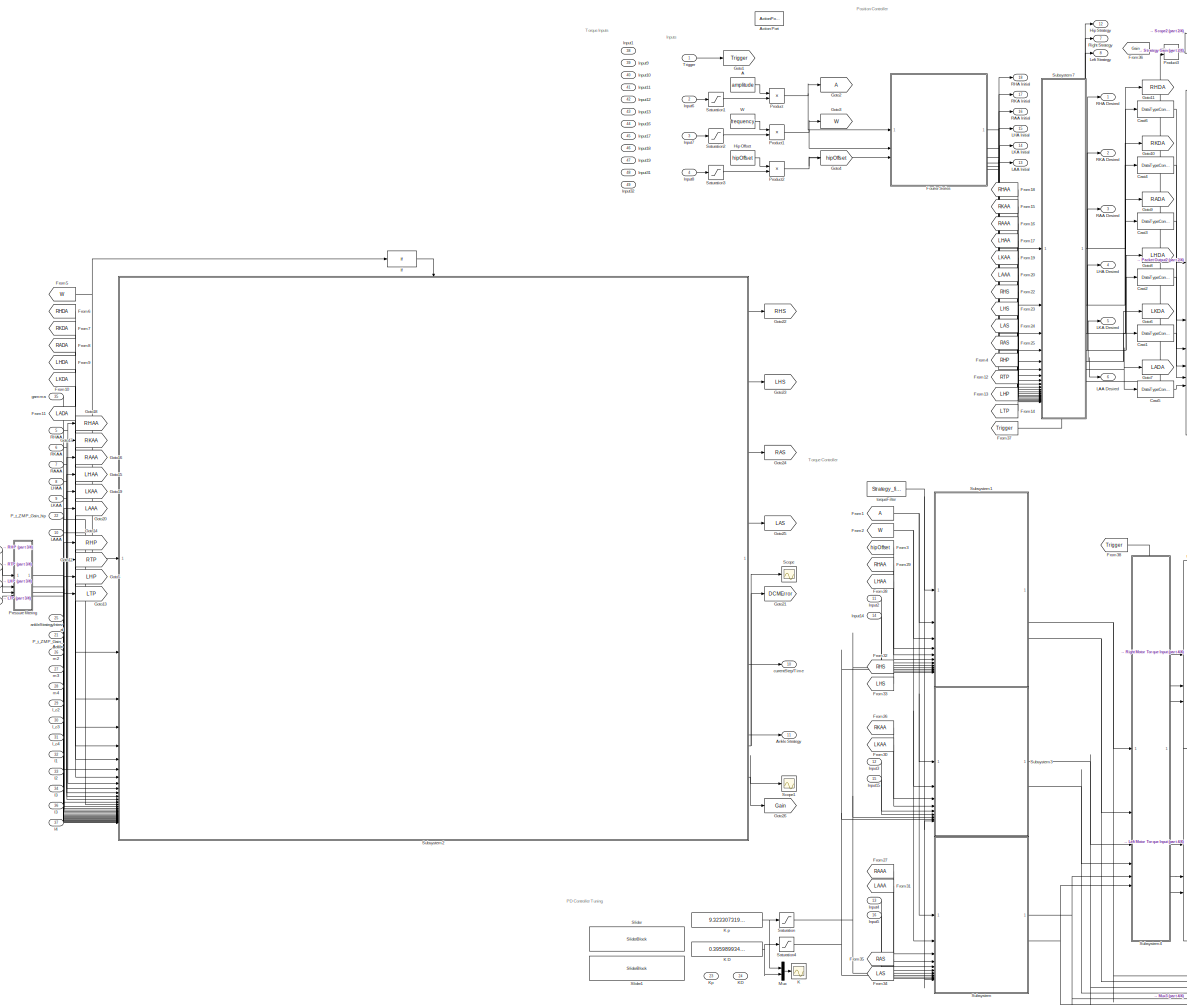
[diagram: If Action Subsystem3 - part 1/4, most of the canvas]
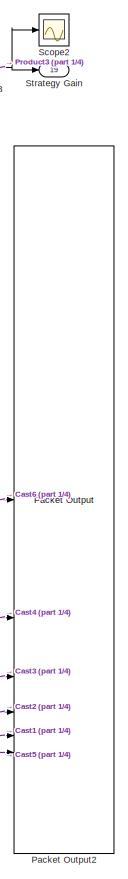
[diagram: If Action Subsystem3 - part 2/4, top right region]
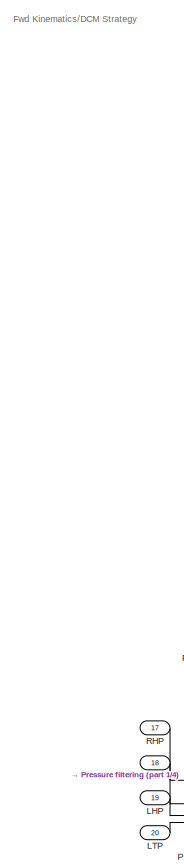
[diagram: If Action Subsystem3 - part 3/4, middle left region]
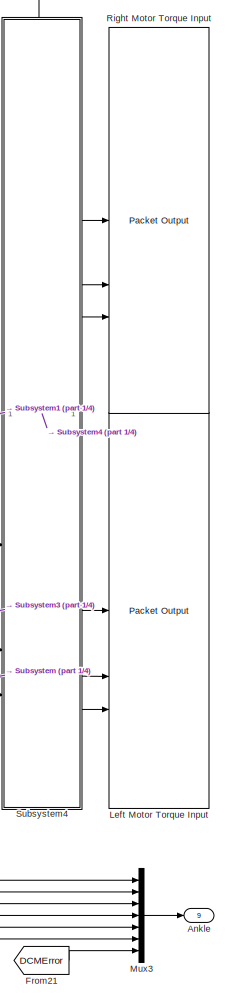
[diagram: If Action Subsystem3 - part 4/4, bottom right region]
BLOCK [SubSystem] If Action Subsystem3
  TreatAsAtomicUnit = on
BLOCK [Constant] If Action Subsystem3/A
  Value = amplitude
BLOCK [ActionPort] If Action Subsystem3/Action Port
  ActionPortLabel = if(u1 > 0)
BLOCK [Outport] If Action Subsystem3/Ankle
  Port = 9
BLOCK [Outport] If Action Subsystem3/Ankle Strategy
  Port = 11
BLOCK [DataTypeConversion] If Action Subsystem3/Cast1
  OutDataTypeStr = int8
  RndMeth = Floor
  SaturateOnIntegerOverflow = off
BLOCK [DataTypeConversion] If Action Subsystem3/Cast2
  OutDataTypeStr = int8
  RndMeth = Floor
  SaturateOnIntegerOverflow = off
BLOCK [DataTypeConversion] If Action Subsystem3/Cast3
  OutDataTypeStr = int8
  RndMeth = Floor
  SaturateOnIntegerOverflow = off
BLOCK [DataTypeConversion] If Action Subsystem3/Cast4
  OutDataTypeStr = int8
  RndMeth = Floor
  SaturateOnIntegerOverflow = off
BLOCK [DataTypeConversion] If Action Subsystem3/Cast5
  OutDataTypeStr = int8
  RndMeth = Floor
  SaturateOnIntegerOverflow = off
BLOCK [DataTypeConversion] If Action Subsystem3/Cast6
  OutDataTypeStr = int8
  RndMeth = Floor
  SaturateOnIntegerOverflow = off
BLOCK [SubSystem] If Action Subsystem3/Fourier Series
BLOCK [Inport] If Action Subsystem3/Fourier Series/A
BLOCK [SubSystem] If Action Subsystem3/Fourier Series/Left Ankle
BLOCK [Inport] If Action Subsystem3/Fourier Series/Left Ankle/A
BLOCK [Constant] If Action Subsystem3/Fourier Series/Left Ankle/Constant
  Value = Phase_Left
BLOCK [Integrator] If Action Subsystem3/Fourier Series/Left Ankle/Integrator1
  ExternalReset = rising
  InitialCondition = Phase_Left_Knee_0
  InitialConditionSource = external
BLOCK [Outport] If Action Subsystem3/Fourier Series/Left Ankle/Left_Ankle_Desired
BLOCK [Mux] If Action Subsystem3/Fourier Series/Left Ankle/Mux1
  DisplayOption = bar
  Inputs = 2
BLOCK [Scope] If Action Subsystem3/Fourier Series/Left Ankle/Scope1
  Floating = off
  NumInputPorts = 1
  ScopeSpecificationString = Simulink.scopes.TimeScopeBlockCfg('CurrentConfiguration', extmgr.ConfigurationSet(extmgr.Configuration('Core','General UI',true),extmgr.Configuration('Core','Source UI',true),extmgr.Configuration('Sources','WiredSimulink',true,'DataLoggingVariableName','ScopeData23'),extmgr.Configuration('Visuals','Time Domain',true,'SerializedDisplays',{struct('MinYLimReal','2.92276','MaxYLimReal','25.11112','YLa...<+1403ch>
BLOCK [Inport] If Action Subsystem3/Fourier Series/Left Ankle/W
  Port = 2
BLOCK [Fcn] If Action Subsystem3/Fourier Series/Left Ankle/ankle walk
  Expr = u(1)*(A_0_a + A_1_a*cos(u(2)) + B_1_a*sin(u(2)) + A_2_a*cos(2*u(2)) + B_2_a*sin(2*u(2)) + A_3_a*cos(3*u(2)) + B_3_a*sin(3*u(2)) + A_4_a*cos(4*u(2)) + B_4_a*sin(4*u(2)) + A_5_a*cos(5*u(2)) + B_5_a*sin(5*u(2)) + A_6_a*cos(6*u(2)) + B_6_a*sin(6*u(2)))  <repeated x4 — deduplicated; at blocks: ankle walk>
BLOCK [SubSystem] If Action Subsystem3/Fourier Series/Left Hip
BLOCK [Inport] If Action Subsystem3/Fourier Series/Left Hip/A
BLOCK [Constant] If Action Subsystem3/Fourier Series/Left Hip/Constant1
  Value = Phase_Left
BLOCK [Integrator] If Action Subsystem3/Fourier Series/Left Hip/Integrator4
  ExternalReset = rising
  InitialCondition = Phase_Left_Knee_0
  InitialConditionSource = external
BLOCK [Outport] If Action Subsystem3/Fourier Series/Left Hip/Left_Hip_Desired
BLOCK [Mux] If Action Subsystem3/Fourier Series/Left Hip/Mux6
  DisplayOption = bar
  Inputs = 3
BLOCK [Inport] If Action Subsystem3/Fourier Series/Left Hip/Offset
  Port = 3
BLOCK [Scope] If Action Subsystem3/Fourier Series/Left Hip/Scope
  Floating = off
  NumInputPorts = 1
  ScopeSpecificationString = Simulink.scopes.TimeScopeBlockCfg('CurrentConfiguration', extmgr.ConfigurationSet(extmgr.Configuration('Core','General UI',true),extmgr.Configuration('Core','Source UI',true),extmgr.Configuration('Sources','WiredSimulink',true,'DataLoggingVariableName','ScopeData10'),extmgr.Configuration('Visuals','Time Domain',true,'SerializedDisplays',{struct('MinYLimReal','2.92276','MaxYLimReal','25.11112','YLa...<+1403ch>  <repeated x4 — deduplicated; at blocks: Scope>
BLOCK [Inport] If Action Subsystem3/Fourier Series/Left Hip/W
  Port = 2
BLOCK [Fcn] If Action Subsystem3/Fourier Series/Left Hip/hip walk
  Expr = (u(1)*(A_0_h + A_1_h*cos(u(2)) + A_2_h*cos(2*u(2)) + A_3_h*cos(3*u(2)) + B_1_h*sin(u(2)) + B_2_h*sin(2*u(2)) + B_3_h*sin(3*u(2))))+u(3)
BLOCK [SubSystem] If Action Subsystem3/Fourier Series/Left Knee
BLOCK [Inport] If Action Subsystem3/Fourier Series/Left Knee/A
BLOCK [Constant] If Action Subsystem3/Fourier Series/Left Knee/Constant1
  Value = Phase_Left
BLOCK [Integrator] If Action Subsystem3/Fourier Series/Left Knee/Integrator1
  ExternalReset = rising
  InitialCondition = Phase_Left_Knee_0
  InitialConditionSource = external
BLOCK [Outport] If Action Subsystem3/Fourier Series/Left Knee/Left_Knee_Desired
BLOCK [Mux] If Action Subsystem3/Fourier Series/Left Knee/Mux1
  DisplayOption = bar
  Inputs = 2
BLOCK [Scope] If Action Subsystem3/Fourier Series/Left Knee/Scope4
  Floating = off
  NumInputPorts = 1
  ScopeSpecificationString = Simulink.scopes.TimeScopeBlockCfg('CurrentConfiguration', extmgr.ConfigurationSet(extmgr.Configuration('Core','General UI',true),extmgr.Configuration('Core','Source UI',true),extmgr.Configuration('Sources','WiredSimulink',true,'DataLoggingVariableName','ScopeData8'),extmgr.Configuration('Visuals','Time Domain',true,'SerializedDisplays',{struct('MinYLimReal','3.94916','MaxYLimReal','15.87347','YLab...<+1402ch>
BLOCK [Inport] If Action Subsystem3/Fourier Series/Left Knee/W
  Port = 2
BLOCK [Fcn] If Action Subsystem3/Fourier Series/Left Knee/knee walk
  Expr = u(1)*(A_0_k + A_1_k*cos(u(2)) + B_1_k*sin(u(2)) + A_2_k*cos(2*u(2)) + B_2_k*sin(2*u(2)) + A_3_k*cos(3*u(2)) + B_3_k*sin(3*u(2)) + A_4_k*cos(4*u(2)) + B_4_k*sin(4*u(2)) + A_5_k*cos(5*u(2)) + B_5_k*sin(5*u(2)) + A_6_k*cos(6*u(2)) + B_6_k*sin(6*u(2)))  <repeated x4 — deduplicated; at blocks: knee walk>
BLOCK [Outport] If Action Subsystem3/Fourier Series/Left_Ankle_Desired
  Port = 6
BLOCK [Outport] If Action Subsystem3/Fourier Series/Left_Hip_Desired
  Port = 4
BLOCK [Outport] If Action Subsystem3/Fourier Series/Left_Knee_Desired
  Port = 5
BLOCK [Inport] If Action Subsystem3/Fourier Series/Offset
  Port = 3
BLOCK [SubSystem] If Action Subsystem3/Fourier Series/Right Ankle
BLOCK [Inport] If Action Subsystem3/Fourier Series/Right Ankle/A
BLOCK [Constant] If Action Subsystem3/Fourier Series/Right Ankle/Constant
  Value = Phase_Right
BLOCK [Integrator] If Action Subsystem3/Fourier Series/Right Ankle/Integrator1
  ExternalReset = rising
  InitialCondition = Phase_Left_Knee_0
  InitialConditionSource = external
BLOCK [Mux] If Action Subsystem3/Fourier Series/Right Ankle/Mux1
  DisplayOption = bar
  Inputs = 2
BLOCK [Outport] If Action Subsystem3/Fourier Series/Right Ankle/Right_Ankle_Desired
BLOCK [Scope] If Action Subsystem3/Fourier Series/Right Ankle/Scope1
  Floating = off
  NumInputPorts = 1
  ScopeSpecificationString = Simulink.scopes.TimeScopeBlockCfg('CurrentConfiguration', extmgr.ConfigurationSet(extmgr.Configuration('Core','General UI',true),extmgr.Configuration('Core','Source UI',true),extmgr.Configuration('Sources','WiredSimulink',true,'DataLoggingVariableName','ScopeData23'),extmgr.Configuration('Visuals','Time Domain',true,'SerializedDisplays',{struct('MinYLimReal','-8.52932','MaxYLimReal','96.76386','YL...<+1375ch>
BLOCK [Inport] If Action Subsystem3/Fourier Series/Right Ankle/W
  Port = 2
BLOCK [Fcn] If Action Subsystem3/Fourier Series/Right Ankle/ankle walk
BLOCK [SubSystem] If Action Subsystem3/Fourier Series/Right Hip
BLOCK [Inport] If Action Subsystem3/Fourier Series/Right Hip/A
BLOCK [Constant] If Action Subsystem3/Fourier Series/Right Hip/Constant1
  Value = Phase_Right
BLOCK [Integrator] If Action Subsystem3/Fourier Series/Right Hip/Integrator4
  ExternalReset = rising
  InitialCondition = Phase_Left_Knee_0
  InitialConditionSource = external
BLOCK [Mux] If Action Subsystem3/Fourier Series/Right Hip/Mux6
  DisplayOption = bar
  Inputs = 3
BLOCK [Inport] If Action Subsystem3/Fourier Series/Right Hip/Offset
  Port = 3
BLOCK [Outport] If Action Subsystem3/Fourier Series/Right Hip/Right_Hip_Desired
BLOCK [Scope] If Action Subsystem3/Fourier Series/Right Hip/Scope
  Floating = off
  NumInputPorts = 1
BLOCK [Inport] If Action Subsystem3/Fourier Series/Right Hip/W
  Port = 2
BLOCK [Fcn] If Action Subsystem3/Fourier Series/Right Hip/hip walk
  Expr = (u(1)*(A_0_h + A_1_h*cos(u(2)) + A_2_h*cos(2*u(2)) + A_3_h*cos(3*u(2)) + B_1_h*sin(u(2)) + B_2_h*sin(2*u(2)) + B_3_h*sin(3*u(2))))+u(3)
BLOCK [SubSystem] If Action Subsystem3/Fourier Series/Right Knee
BLOCK [Inport] If Action Subsystem3/Fourier Series/Right Knee/A
  Port = 2
BLOCK [Constant] If Action Subsystem3/Fourier Series/Right Knee/Constant1
  Value = Phase_Right
BLOCK [Integrator] If Action Subsystem3/Fourier Series/Right Knee/Integrator1
  ExternalReset = rising
  InitialCondition = Phase_Left_Knee_0
  InitialConditionSource = external
BLOCK [Mux] If Action Subsystem3/Fourier Series/Right Knee/Mux1
  DisplayOption = bar
  Inputs = 2
BLOCK [Outport] If Action Subsystem3/Fourier Series/Right Knee/Right_Knee_Desired
BLOCK [Scope] If Action Subsystem3/Fourier Series/Right Knee/Scope4
  Floating = off
  NumInputPorts = 1
  ScopeSpecificationString = Simulink.scopes.TimeScopeBlockCfg('CurrentConfiguration', extmgr.ConfigurationSet(extmgr.Configuration('Core','General UI',true),extmgr.Configuration('Core','Source UI',true),extmgr.Configuration('Sources','WiredSimulink',true,'DataLoggingVariableName','ScopeData8'),extmgr.Configuration('Visuals','Time Domain',true,'SerializedDisplays',{struct('MinYLimReal','2.92276','MaxYLimReal','25.11112','YLab...<+1402ch>
BLOCK [Inport] If Action Subsystem3/Fourier Series/Right Knee/W
BLOCK [Fcn] If Action Subsystem3/Fourier Series/Right Knee/knee walk
BLOCK [Outport] If Action Subsystem3/Fourier Series/Right_Ankle_Desired
  Port = 3
BLOCK [Outport] If Action Subsystem3/Fourier Series/Right_Hip_Desired
BLOCK [Outport] If Action Subsystem3/Fourier Series/Right_Knee_Desired
  Port = 2
BLOCK [Inport] If Action Subsystem3/Fourier Series/W
  Port = 2
BLOCK [From] If Action Subsystem3/From1
  TagVisibility = global
BLOCK [From] If Action Subsystem3/From10
  GotoTag = LKDA
  TagVisibility = global
BLOCK [From] If Action Subsystem3/From11
  GotoTag = LADA
  TagVisibility = global
BLOCK [From] If Action Subsystem3/From12
  GotoTag = RTP
  TagVisibility = global
BLOCK [From] If Action Subsystem3/From13
  GotoTag = LHP
  TagVisibility = global
BLOCK [From] If Action Subsystem3/From14
  GotoTag = LTP
  TagVisibility = global
BLOCK [From] If Action Subsystem3/From15
  GotoTag = RKAA
  TagVisibility = global
BLOCK [From] If Action Subsystem3/From16
  GotoTag = RAAA
  TagVisibility = global
BLOCK [From] If Action Subsystem3/From17
  GotoTag = LHAA
  TagVisibility = global
BLOCK [From] If Action Subsystem3/From18
  GotoTag = RHAA
  TagVisibility = global
BLOCK [From] If Action Subsystem3/From19
  GotoTag = LKAA
  TagVisibility = global
BLOCK [From] If Action Subsystem3/From2
  GotoTag = W
  TagVisibility = global
BLOCK [From] If Action Subsystem3/From20
  GotoTag = LAAA
  TagVisibility = global
BLOCK [From] If Action Subsystem3/From21
  GotoTag = DCMError
  TagVisibility = global
BLOCK [From] If Action Subsystem3/From22
  GotoTag = RHS
  TagVisibility = global
BLOCK [From] If Action Subsystem3/From23
  GotoTag = LHS
  TagVisibility = global
BLOCK [From] If Action Subsystem3/From24
  GotoTag = LAS
  TagVisibility = global
BLOCK [From] If Action Subsystem3/From25
  GotoTag = RAS
  TagVisibility = global
BLOCK [From] If Action Subsystem3/From26
  GotoTag = RKAA
  TagVisibility = global
BLOCK [From] If Action Subsystem3/From27
  GotoTag = RAAA
  TagVisibility = global
BLOCK [From] If Action Subsystem3/From28
  GotoTag = LHAA
  TagVisibility = global
BLOCK [From] If Action Subsystem3/From29
  GotoTag = RHAA
  TagVisibility = global
BLOCK [From] If Action Subsystem3/From3
  GotoTag = hipOffset
  TagVisibility = global
BLOCK [From] If Action Subsystem3/From30
  GotoTag = LKAA
  TagVisibility = global
BLOCK [From] If Action Subsystem3/From31
  GotoTag = LAAA
  TagVisibility = global
BLOCK [From] If Action Subsystem3/From32
  GotoTag = RHS
  TagVisibility = global
BLOCK [From] If Action Subsystem3/From33
  GotoTag = LHS
  TagVisibility = global
BLOCK [From] If Action Subsystem3/From34
  GotoTag = LAS
  TagVisibility = global
BLOCK [From] If Action Subsystem3/From35
  GotoTag = RAS
  TagVisibility = global
BLOCK [From] If Action Subsystem3/From36
  GotoTag = Gain
  TagVisibility = global
BLOCK [From] If Action Subsystem3/From37
  GotoTag = Trigger
  TagVisibility = global
BLOCK [From] If Action Subsystem3/From38
  GotoTag = Trigger
  TagVisibility = global
BLOCK [From] If Action Subsystem3/From4
  GotoTag = RHP
  TagVisibility = global
BLOCK [From] If Action Subsystem3/From5
  GotoTag = W
  TagVisibility = global
BLOCK [From] If Action Subsystem3/From6
  GotoTag = RHDA
  TagVisibility = global
BLOCK [From] If Action Subsystem3/From7
  GotoTag = RKDA
  TagVisibility = global
BLOCK [From] If Action Subsystem3/From8
  GotoTag = RADA
  TagVisibility = global
BLOCK [From] If Action Subsystem3/From9
  GotoTag = LHDA
  TagVisibility = global
BLOCK [Goto] If Action Subsystem3/Goto1
  GotoTag = Trigger
  TagVisibility = global
BLOCK [Goto] If Action Subsystem3/Goto10
  GotoTag = RKDA
  TagVisibility = global
BLOCK [Goto] If Action Subsystem3/Goto11
  GotoTag = RHDA
  TagVisibility = global
BLOCK [Goto] If Action Subsystem3/Goto12
  GotoTag = RTP
  TagVisibility = global
BLOCK [Goto] If Action Subsystem3/Goto13
  GotoTag = LTP
  TagVisibility = global
BLOCK [Goto] If Action Subsystem3/Goto14
  GotoTag = RHP
  TagVisibility = global
BLOCK [Goto] If Action Subsystem3/Goto15
  GotoTag = LHAA
  TagVisibility = global
BLOCK [Goto] If Action Subsystem3/Goto16
  GotoTag = RAAA
  TagVisibility = global
BLOCK [Goto] If Action Subsystem3/Goto17
  GotoTag = RKAA
  TagVisibility = global
BLOCK [Goto] If Action Subsystem3/Goto18
  GotoTag = RHAA
  TagVisibility = global
BLOCK [Goto] If Action Subsystem3/Goto19
  GotoTag = LKAA
  TagVisibility = global
BLOCK [Goto] If Action Subsystem3/Goto2
  TagVisibility = global
BLOCK [Goto] If Action Subsystem3/Goto20
  GotoTag = LAAA
  TagVisibility = global
BLOCK [Goto] If Action Subsystem3/Goto21
  GotoTag = DCMError
  TagVisibility = global
BLOCK [Goto] If Action Subsystem3/Goto22
  GotoTag = RHS
  TagVisibility = global
BLOCK [Goto] If Action Subsystem3/Goto23
  GotoTag = LHS
  TagVisibility = global
BLOCK [Goto] If Action Subsystem3/Goto24
  GotoTag = RAS
  TagVisibility = global
BLOCK [Goto] If Action Subsystem3/Goto25
  GotoTag = LAS
  TagVisibility = global
BLOCK [Goto] If Action Subsystem3/Goto26
  GotoTag = Gain
  TagVisibility = global
BLOCK [Goto] If Action Subsystem3/Goto3
  GotoTag = W
  TagVisibility = global
BLOCK [Goto] If Action Subsystem3/Goto4
  GotoTag = hipOffset
  TagVisibility = global
BLOCK [Goto] If Action Subsystem3/Goto5
  GotoTag = LHP
  TagVisibility = global
BLOCK [Goto] If Action Subsystem3/Goto6
  GotoTag = LKDA
  TagVisibility = global
BLOCK [Goto] If Action Subsystem3/Goto7
  GotoTag = LADA
  TagVisibility = global
BLOCK [Goto] If Action Subsystem3/Goto8
  GotoTag = LHDA
  TagVisibility = global
BLOCK [Goto] If Action Subsystem3/Goto9
  GotoTag = RADA
  TagVisibility = global
BLOCK [Constant] If Action Subsystem3/Hip Offset
  Value = hipOffset
BLOCK [Outport] If Action Subsystem3/Hip Strategy
  Port = 12
BLOCK [Inport] If Action Subsystem3/I1
  Port = 32
BLOCK [Inport] If Action Subsystem3/I2
  Port = 33
BLOCK [Inport] If Action Subsystem3/I3
  Port = 34
BLOCK [If] If Action Subsystem3/If
BLOCK [Inport] If Action Subsystem3/Input1
  Port = 38
BLOCK [Inport] If Action Subsystem3/Input10
  Port = 40
BLOCK [Inport] If Action Subsystem3/Input11
  Port = 41
BLOCK [Inport] If Action Subsystem3/Input12
  Port = 42
BLOCK [Inport] If Action Subsystem3/Input13
  Port = 43
BLOCK [Inport] If Action Subsystem3/Input14
  Port = 14
BLOCK [Inport] If Action Subsystem3/Input15
  Port = 15
BLOCK [Inport] If Action Subsystem3/Input16
  Port = 44
BLOCK [Inport] If Action Subsystem3/Input17
  Port = 45
BLOCK [Inport] If Action Subsystem3/Input18
  Port = 46
BLOCK [Inport] If Action Subsystem3/Input19
  Port = 47
BLOCK [Inport] If Action Subsystem3/Input2
  Port = 11
BLOCK [Inport] If Action Subsystem3/Input3
  Port = 12
BLOCK [Inport] If Action Subsystem3/Input31
  Port = 48
BLOCK [Inport] If Action Subsystem3/Input32
  Port = 49
BLOCK [Inport] If Action Subsystem3/Input4
  Port = 13
BLOCK [Inport] If Action Subsystem3/Input5
  Port = 16
BLOCK [Inport] If Action Subsystem3/Input6
  Port = 2
BLOCK [Inport] If Action Subsystem3/Input7
  Port = 3
BLOCK [Inport] If Action Subsystem3/Input8
  Port = 4
BLOCK [Inport] If Action Subsystem3/Input9
  Port = 39
BLOCK [Scope] If Action Subsystem3/K
  Floating = off
  NumInputPorts = 1
  ScopeSpecificationString = Simulink.scopes.TimeScopeBlockCfg('CurrentConfiguration', extmgr.ConfigurationSet(extmgr.Configuration('Core','General UI',true),extmgr.Configuration('Core','Source UI',true),extmgr.Configuration('Sources','WiredSimulink',true,'DataLoggingVariableName','K','DataLogging',true),extmgr.Configuration('Visuals','Time Domain',true,'SerializedDisplays',{struct('MinYLimReal','-0.69875','MaxYLimReal','11.1...<+1382ch>
BLOCK [Constant] If Action Subsystem3/K D
  Value = 0.3959899345542063
BLOCK [Constant] If Action Subsystem3/K p
  Value = 9.323307319883844
BLOCK [Inport] If Action Subsystem3/KD
  Port = 24
BLOCK [Inport] If Action Subsystem3/Kp
  Port = 23
BLOCK [Outport] If Action Subsystem3/LAA Desired
  Port = 6
BLOCK [Outport] If Action Subsystem3/LAA Initial
  Port = 13
BLOCK [Inport] If Action Subsystem3/LAAA
  Port = 10
BLOCK [Outport] If Action Subsystem3/LHA Desired
  Port = 4
BLOCK [Outport] If Action Subsystem3/LHA Initial
  Port = 15
BLOCK [Inport] If Action Subsystem3/LHAA
  Port = 8
BLOCK [Inport] If Action Subsystem3/LHP
  Port = 19
BLOCK [Outport] If Action Subsystem3/LKA Desired
  Port = 5
BLOCK [Outport] If Action Subsystem3/LKA Initial
  Port = 14
BLOCK [Inport] If Action Subsystem3/LKAA
  Port = 9
BLOCK [Inport] If Action Subsystem3/LTP
  Port = 20
BLOCK [Reference] If Action Subsystem3/Left Motor Torque Input  REF=sldrtlib/Packet Output
  AttributesFormatString = PEAK-System\nCAN Device [81]
  SourceBlock = sldrtlib/Packet Output
  SourceType = Simulink Desktop Real-Time Packet Output
BLOCK [Outport] If Action Subsystem3/Left Strategy
  Port = 8
BLOCK [Mux] If Action Subsystem3/Mux
  DisplayOption = bar
  Inputs = 2
BLOCK [Mux] If Action Subsystem3/Mux3
  DisplayOption = bar
  Inputs = 7
BLOCK [Inport] If Action Subsystem3/P_t_ZMP_Gain_Ankle
  Port = 21
BLOCK [Inport] If Action Subsystem3/P_t_ZMP_Gain_hip
  Port = 22
BLOCK [Reference] If Action Subsystem3/Packet Output2  REF=sldrtlib/Packet Output
  AttributesFormatString = PEAK-System\nCAN Device [81]
  SourceBlock = sldrtlib/Packet Output
  SourceType = Simulink Desktop Real-Time Packet Output
BLOCK [SubSystem] If Action Subsystem3/Pressure filtering
BLOCK [Constant] If Action Subsystem3/Pressure filtering/Constant1
  Value = 0.9
BLOCK [Delay] If Action Subsystem3/Pressure filtering/Delay1
  DelayLength = 1
  InputPortMap = u0
BLOCK [Delay] If Action Subsystem3/Pressure filtering/Delay2
  DelayLength = 1
  InputPortMap = u0
BLOCK [Delay] If Action Subsystem3/Pressure filtering/Delay3
  DelayLength = 1
  InputPortMap = u0
BLOCK [Delay] If Action Subsystem3/Pressure filtering/Delay5
  DelayLength = 1
  InputPortMap = u0
BLOCK [SubSystem] If Action Subsystem3/Pressure filtering/MATLAB Function1
  ErrorFcn = Stateflow.Translate.translate
  PermitHierarchicalResolution = ExplicitOnly
  SFBlockType = MATLAB Function
  TreatAsAtomicUnit = on
BLOCK [Demux] If Action Subsystem3/Pressure filtering/MATLAB Function1/ Demux 
  Outputs = 1
BLOCK [S-Function] If Action Subsystem3/Pressure filtering/MATLAB Function1/ SFunction 
  EnableBusSupport = on
  FunctionName = sf_sfun
  PortCounts = [3 2]
  SFcnIsStateOwnerBlock = off
  SFunctionDeploymentMode = off
  Tag = Stateflow S-Function 26
BLOCK [Terminator] If Action Subsystem3/Pressure filtering/MATLAB Function1/ Terminator 
BLOCK [Inport] If Action Subsystem3/Pressure filtering/MATLAB Function1/alpha
BLOCK [Inport] If Action Subsystem3/Pressure filtering/MATLAB Function1/u
  Port = 2
BLOCK [Outport] If Action Subsystem3/Pressure filtering/MATLAB Function1/y
BLOCK [Inport] If Action Subsystem3/Pressure filtering/MATLAB Function1/y_delay
  Port = 3
BLOCK [SubSystem] If Action Subsystem3/Pressure filtering/MATLAB Function2
  ErrorFcn = Stateflow.Translate.translate
  PermitHierarchicalResolution = ExplicitOnly
  SFBlockType = MATLAB Function
  TreatAsAtomicUnit = on
BLOCK [Demux] If Action Subsystem3/Pressure filtering/MATLAB Function2/ Demux 
  Outputs = 1
BLOCK [S-Function] If Action Subsystem3/Pressure filtering/MATLAB Function2/ SFunction 
  EnableBusSupport = on
  FunctionName = sf_sfun
  PortCounts = [3 2]
  SFcnIsStateOwnerBlock = off
  SFunctionDeploymentMode = off
  Tag = Stateflow S-Function 27
BLOCK [Terminator] If Action Subsystem3/Pressure filtering/MATLAB Function2/ Terminator 
BLOCK [Inport] If Action Subsystem3/Pressure filtering/MATLAB Function2/alpha
BLOCK [Inport] If Action Subsystem3/Pressure filtering/MATLAB Function2/u
  Port = 2
BLOCK [Outport] If Action Subsystem3/Pressure filtering/MATLAB Function2/y
BLOCK [Inport] If Action Subsystem3/Pressure filtering/MATLAB Function2/y_delay
  Port = 3
BLOCK [SubSystem] If Action Subsystem3/Pressure filtering/MATLAB Function3
  ErrorFcn = Stateflow.Translate.translate
  PermitHierarchicalResolution = ExplicitOnly
  SFBlockType = MATLAB Function
  TreatAsAtomicUnit = on
BLOCK [Demux] If Action Subsystem3/Pressure filtering/MATLAB Function3/ Demux 
  Outputs = 1
BLOCK [S-Function] If Action Subsystem3/Pressure filtering/MATLAB Function3/ SFunction 
  EnableBusSupport = on
  FunctionName = sf_sfun
  PortCounts = [3 2]
  SFcnIsStateOwnerBlock = off
  SFunctionDeploymentMode = off
  Tag = Stateflow S-Function 28
BLOCK [Terminator] If Action Subsystem3/Pressure filtering/MATLAB Function3/ Terminator 
BLOCK [Inport] If Action Subsystem3/Pressure filtering/MATLAB Function3/alpha
BLOCK [Inport] If Action Subsystem3/Pressure filtering/MATLAB Function3/u
  Port = 2
BLOCK [Outport] If Action Subsystem3/Pressure filtering/MATLAB Function3/y
BLOCK [Inport] If Action Subsystem3/Pressure filtering/MATLAB Function3/y_delay
  Port = 3
BLOCK [SubSystem] If Action Subsystem3/Pressure filtering/MATLAB Function5
  ErrorFcn = Stateflow.Translate.translate
  PermitHierarchicalResolution = ExplicitOnly
  SFBlockType = MATLAB Function
  TreatAsAtomicUnit = on
BLOCK [Demux] If Action Subsystem3/Pressure filtering/MATLAB Function5/ Demux 
  Outputs = 1
BLOCK [S-Function] If Action Subsystem3/Pressure filtering/MATLAB Function5/ SFunction 
  EnableBusSupport = on
  FunctionName = sf_sfun
  PortCounts = [3 2]
  SFcnIsStateOwnerBlock = off
  SFunctionDeploymentMode = off
  Tag = Stateflow S-Function 25
BLOCK [Terminator] If Action Subsystem3/Pressure filtering/MATLAB Function5/ Terminator 
BLOCK [Inport] If Action Subsystem3/Pressure filtering/MATLAB Function5/alpha
BLOCK [Inport] If Action Subsystem3/Pressure filtering/MATLAB Function5/u
  Port = 2
BLOCK [Outport] If Action Subsystem3/Pressure filtering/MATLAB Function5/y
BLOCK [Inport] If Action Subsystem3/Pressure filtering/MATLAB Function5/y_delay
  Port = 3
BLOCK [Inport] If Action Subsystem3/Pressure filtering/u
BLOCK [Inport] If Action Subsystem3/Pressure filtering/u1
  Port = 2
BLOCK [Inport] If Action Subsystem3/Pressure filtering/u2
  Port = 3
BLOCK [Inport] If Action Subsystem3/Pressure filtering/u3
  Port = 4
BLOCK [Outport] If Action Subsystem3/Pressure filtering/y
BLOCK [Outport] If Action Subsystem3/Pressure filtering/y1
  Port = 2
BLOCK [Outport] If Action Subsystem3/Pressure filtering/y2
  Port = 3
BLOCK [Outport] If Action Subsystem3/Pressure filtering/y3
  Port = 4
BLOCK [Product] If Action Subsystem3/Product
BLOCK [Product] If Action Subsystem3/Product1
BLOCK [Product] If Action Subsystem3/Product2
BLOCK [Product] If Action Subsystem3/Product3
BLOCK [Outport] If Action Subsystem3/RAA Desired
  Port = 3
BLOCK [Outport] If Action Subsystem3/RAA Initial
  Port = 16
BLOCK [Inport] If Action Subsystem3/RAAA
  Port = 7
BLOCK [Outport] If Action Subsystem3/RHA Desired
BLOCK [Outport] If Action Subsystem3/RHA Initial
  Port = 18
BLOCK [Inport] If Action Subsystem3/RHAA
  Port = 5
BLOCK [Inport] If Action Subsystem3/RHP
  Port = 17
BLOCK [Outport] If Action Subsystem3/RKA Desired
  Port = 2
BLOCK [Outport] If Action Subsystem3/RKA Initial
  Port = 17
BLOCK [Inport] If Action Subsystem3/RKAA
  Port = 6
BLOCK [Inport] If Action Subsystem3/RTP
  Port = 18
BLOCK [Reference] If Action Subsystem3/Right Motor Torque Input  REF=sldrtlib/Packet Output
  AttributesFormatString = PEAK-System\nCAN Device [81]
  SourceBlock = sldrtlib/Packet Output
  SourceType = Simulink Desktop Real-Time Packet Output
BLOCK [Outport] If Action Subsystem3/Right Strategy
  Port = 7
BLOCK [Saturate] If Action Subsystem3/Saturation
  LowerLimit = 0
  UpperLimit = 12
BLOCK [Saturate] If Action Subsystem3/Saturation1
  LowerLimit = 0
  UpperLimit = 1
BLOCK [Saturate] If Action Subsystem3/Saturation2
  LowerLimit = 0
  UpperLimit = 1
BLOCK [Saturate] If Action Subsystem3/Saturation3
  LowerLimit = 0
  UpperLimit = 1
BLOCK [Saturate] If Action Subsystem3/Saturation4
  LowerLimit = 0
  UpperLimit = 0.6
BLOCK [Scope] If Action Subsystem3/Scope
  Floating = off
  NumInputPorts = 1
  ScopeSpecificationString = Simulink.scopes.TimeScopeBlockCfg('CurrentConfiguration', extmgr.ConfigurationSet(extmgr.Configuration('Core','General UI',true),extmgr.Configuration('Core','Source UI',true),extmgr.Configuration('Sources','WiredSimulink',true,'DataLoggingVariableName','ScopeData1'),extmgr.Configuration('Visuals','Time Domain',true,'SerializedDisplays',{struct('MinYLimReal','-9.77217','MaxYLimReal','5.28291','YLab...<+1485ch>
BLOCK [Scope] If Action Subsystem3/Scope1
  Floating = off
  NumInputPorts = 1
  ScopeSpecificationString = Simulink.scopes.TimeScopeBlockCfg('CurrentConfiguration', extmgr.ConfigurationSet(extmgr.Configuration('Core','General UI',true),extmgr.Configuration('Core','Source UI',true),extmgr.Configuration('Sources','WiredSimulink',true,'DataLoggingVariableName','ScopeData2'),extmgr.Configuration('Visuals','Time Domain',true,'SerializedDisplays',{struct('MinYLimReal','-2.21062','MaxYLimReal','0.24562','YLab...<+1484ch>
BLOCK [Scope] If Action Subsystem3/Scope2
  Floating = off
  NumInputPorts = 1
  ScopeSpecificationString = Simulink.scopes.TimeScopeBlockCfg('CurrentConfiguration', extmgr.ConfigurationSet(extmgr.Configuration('Core','General UI',true),extmgr.Configuration('Core','Source UI',true),extmgr.Configuration('Sources','WiredSimulink',true,'DataLoggingVariableName','ScopeData1'),extmgr.Configuration('Visuals','Time Domain',true,'SerializedDisplays',{struct('MinYLimReal','-5.70574','MaxYLimReal','0.63397','YLab...<+1480ch>
BLOCK [SliderBlock] If Action Subsystem3/Slider
  ScaleMax = 12
BLOCK [SliderBlock] If Action Subsystem3/Slider1
  ScaleMax = 0.6
BLOCK [Outport] If Action Subsystem3/Strategy Gain
  Port = 19
BLOCK [SubSystem] If Action Subsystem3/Subsystem
BLOCK [Inport] If Action Subsystem3/Subsystem/A
BLOCK [Delay] If Action Subsystem3/Subsystem/Delay2
  DelayLength = 1
  InputPortMap = u0
BLOCK [Delay] If Action Subsystem3/Subsystem/Delay3
  DelayLength = 1
  InputPortMap = u0
BLOCK [Derivative] If Action Subsystem3/Subsystem/Derivative4
BLOCK [Derivative] If Action Subsystem3/Subsystem/Derivative6
BLOCK [Outport] If Action Subsystem3/Subsystem/Desired Motor Torque
BLOCK [Outport] If Action Subsystem3/Subsystem/Desired Motor Torque1
  Port = 2
BLOCK [Inport] If Action Subsystem3/Subsystem/KD Input
  Port = 8
BLOCK [Inport] If Action Subsystem3/Subsystem/Kp Input
  Port = 7
BLOCK [SubSystem] If Action Subsystem3/Subsystem/Left Ankle
BLOCK [Inport] If Action Subsystem3/Subsystem/Left Ankle Actual
  Port = 4
BLOCK [Inport] If Action Subsystem3/Subsystem/Left Ankle Velocity
  Port = 6
BLOCK [Inport] If Action Subsystem3/Subsystem/Left Ankle/A
BLOCK [Constant] If Action Subsystem3/Subsystem/Left Ankle/Constant
  Value = Phase_Left
BLOCK [Integrator] If Action Subsystem3/Subsystem/Left Ankle/Integrator1
  ExternalReset = rising
  InitialCondition = Phase_Left_Knee_0
  InitialConditionSource = external
BLOCK [Outport] If Action Subsystem3/Subsystem/Left Ankle/Left_Ankle_Desired
BLOCK [Mux] If Action Subsystem3/Subsystem/Left Ankle/Mux1
  DisplayOption = bar
  Inputs = 2
BLOCK [Scope] If Action Subsystem3/Subsystem/Left Ankle/Scope1
  Floating = off
  NumInputPorts = 1
  ScopeSpecificationString = Simulink.scopes.TimeScopeBlockCfg('CurrentConfiguration', extmgr.ConfigurationSet(extmgr.Configuration('Core','General UI',true),extmgr.Configuration('Core','Source UI',true),extmgr.Configuration('Sources','WiredSimulink',true,'DataLoggingVariableName','ScopeData23'),extmgr.Configuration('Visuals','Time Domain',true,'SerializedDisplays',{struct('MinYLimReal','2.92276','MaxYLimReal','25.11112','YLa...<+1403ch>
BLOCK [Inport] If Action Subsystem3/Subsystem/Left Ankle/W
  Port = 2
BLOCK [Fcn] If Action Subsystem3/Subsystem/Left Ankle/ankle walk
BLOCK [Inport] If Action Subsystem3/Subsystem/Left Strategy
  Port = 10
BLOCK [SubSystem] If Action Subsystem3/Subsystem/MATLAB Function
  ErrorFcn = Stateflow.Translate.translate
  PermitHierarchicalResolution = ExplicitOnly
  SFBlockType = MATLAB Function
  TreatAsAtomicUnit = on
BLOCK [Demux] If Action Subsystem3/Subsystem/MATLAB Function/ Demux 
  Outputs = 1
BLOCK [S-Function] If Action Subsystem3/Subsystem/MATLAB Function/ SFunction 
  EnableBusSupport = on
  FunctionName = sf_sfun
  PortCounts = [1 2]
  SFcnIsStateOwnerBlock = off
  SFunctionDeploymentMode = off
  Tag = Stateflow S-Function 13
BLOCK [Terminator] If Action Subsystem3/Subsystem/MATLAB Function/ Terminator 
BLOCK [Inport] If Action Subsystem3/Subsystem/MATLAB Function/u
BLOCK [Outport] If Action Subsystem3/Subsystem/MATLAB Function/y
BLOCK [SubSystem] If Action Subsystem3/Subsystem/MATLAB Function2
  ErrorFcn = Stateflow.Translate.translate
  PermitHierarchicalResolution = ExplicitOnly
  SFBlockType = MATLAB Function
  TreatAsAtomicUnit = on
BLOCK [Demux] If Action Subsystem3/Subsystem/MATLAB Function2/ Demux 
  Outputs = 1
BLOCK [S-Function] If Action Subsystem3/Subsystem/MATLAB Function2/ SFunction 
  EnableBusSupport = on
  FunctionName = sf_sfun
  PortCounts = [1 2]
  SFcnIsStateOwnerBlock = off
  SFunctionDeploymentMode = off
  Tag = Stateflow S-Function 14
BLOCK [Terminator] If Action Subsystem3/Subsystem/MATLAB Function2/ Terminator 
BLOCK [Inport] If Action Subsystem3/Subsystem/MATLAB Function2/u
BLOCK [Outport] If Action Subsystem3/Subsystem/MATLAB Function2/y
BLOCK [SubSystem] If Action Subsystem3/Subsystem/MATLAB Function3
  ErrorFcn = Stateflow.Translate.translate
  PermitHierarchicalResolution = ExplicitOnly
  SFBlockType = MATLAB Function
  TreatAsAtomicUnit = on
BLOCK [Demux] If Action Subsystem3/Subsystem/MATLAB Function3/ Demux 
  Outputs = 1
BLOCK [S-Function] If Action Subsystem3/Subsystem/MATLAB Function3/ SFunction 
  EnableBusSupport = on
  FunctionName = sf_sfun
  PortCounts = [3 2]
  SFcnIsStateOwnerBlock = off
  SFunctionDeploymentMode = off
  Tag = Stateflow S-Function 9
BLOCK [Terminator] If Action Subsystem3/Subsystem/MATLAB Function3/ Terminator 
BLOCK [Inport] If Action Subsystem3/Subsystem/MATLAB Function3/alpha
BLOCK [Inport] If Action Subsystem3/Subsystem/MATLAB Function3/u
  Port = 2
BLOCK [Outport] If Action Subsystem3/Subsystem/MATLAB Function3/y
BLOCK [Inport] If Action Subsystem3/Subsystem/MATLAB Function3/y_delay
  Port = 3
BLOCK [SubSystem] If Action Subsystem3/Subsystem/MATLAB Function5
  ErrorFcn = Stateflow.Translate.translate
  PermitHierarchicalResolution = ExplicitOnly
  SFBlockType = MATLAB Function
  TreatAsAtomicUnit = on
BLOCK [Demux] If Action Subsystem3/Subsystem/MATLAB Function5/ Demux 
  Outputs = 1
BLOCK [S-Function] If Action Subsystem3/Subsystem/MATLAB Function5/ SFunction 
  EnableBusSupport = on
  FunctionName = sf_sfun
  PortCounts = [3 2]
  SFcnIsStateOwnerBlock = off
  SFunctionDeploymentMode = off
  Tag = Stateflow S-Function 15
BLOCK [Terminator] If Action Subsystem3/Subsystem/MATLAB Function5/ Terminator 
BLOCK [Inport] If Action Subsystem3/Subsystem/MATLAB Function5/alpha
BLOCK [Inport] If Action Subsystem3/Subsystem/MATLAB Function5/u
  Port = 2
BLOCK [Outport] If Action Subsystem3/Subsystem/MATLAB Function5/y
BLOCK [Inport] If Action Subsystem3/Subsystem/MATLAB Function5/y_delay
  Port = 3
BLOCK [Mux] If Action Subsystem3/Subsystem/Mux
  DisplayOption = bar
  Inputs = 2
BLOCK [Mux] If Action Subsystem3/Subsystem/Mux1
  DisplayOption = bar
  Inputs = 2
BLOCK [Mux] If Action Subsystem3/Subsystem/Mux2
  DisplayOption = bar
  Inputs = 2
BLOCK [Scope] If Action Subsystem3/Subsystem/Output
  Floating = off
  NumInputPorts = 1
  ScopeSpecificationString = Simulink.scopes.TimeScopeBlockCfg('CurrentConfiguration', extmgr.ConfigurationSet(extmgr.Configuration('Core','General UI',true),extmgr.Configuration('Core','Source UI',true),extmgr.Configuration('Sources','WiredSimulink',true,'DataLoggingVariableName','ScopeData2'),extmgr.Configuration('Visuals','Time Domain',true,'SerializedDisplays',{struct('MinYLimReal','-28.98664','MaxYLimReal','30.04046','YL...<+1464ch>
BLOCK [Product] If Action Subsystem3/Subsystem/Product
BLOCK [Product] If Action Subsystem3/Subsystem/Product1
BLOCK [Product] If Action Subsystem3/Subsystem/Product2
BLOCK [Product] If Action Subsystem3/Subsystem/Product3
BLOCK [SubSystem] If Action Subsystem3/Subsystem/Right Ankle
BLOCK [Inport] If Action Subsystem3/Subsystem/Right Ankle Actual
  Port = 3
BLOCK [Inport] If Action Subsystem3/Subsystem/Right Ankle Velocity
  Port = 5
BLOCK [Inport] If Action Subsystem3/Subsystem/Right Ankle/A
BLOCK [Constant] If Action Subsystem3/Subsystem/Right Ankle/Constant
  Value = Phase_Right
BLOCK [Integrator] If Action Subsystem3/Subsystem/Right Ankle/Integrator1
  ExternalReset = rising
  InitialCondition = Phase_Left_Knee_0
  InitialConditionSource = external
BLOCK [Mux] If Action Subsystem3/Subsystem/Right Ankle/Mux1
  DisplayOption = bar
  Inputs = 2
BLOCK [Outport] If Action Subsystem3/Subsystem/Right Ankle/Right_Ankle_Desired
BLOCK [Scope] If Action Subsystem3/Subsystem/Right Ankle/Scope1
  Floating = off
  NumInputPorts = 1
  ScopeSpecificationString = Simulink.scopes.TimeScopeBlockCfg('CurrentConfiguration', extmgr.ConfigurationSet(extmgr.Configuration('Core','General UI',true),extmgr.Configuration('Core','Source UI',true),extmgr.Configuration('Sources','WiredSimulink',true,'DataLoggingVariableName','ScopeData23'),extmgr.Configuration('Visuals','Time Domain',true,'SerializedDisplays',{struct('MinYLimReal','4.83816','MaxYLimReal','7.87253','YLab...<+1400ch>
BLOCK [Inport] If Action Subsystem3/Subsystem/Right Ankle/W
  Port = 2
BLOCK [Fcn] If Action Subsystem3/Subsystem/Right Ankle/ankle walk
BLOCK [Inport] If Action Subsystem3/Subsystem/Right Strategy
  Port = 9
BLOCK [Sum] If Action Subsystem3/Subsystem/Sum
  Inputs = |++
BLOCK [Sum] If Action Subsystem3/Subsystem/Sum1
  Inputs = |++
BLOCK [Sum] If Action Subsystem3/Subsystem/Sum2
  Inputs = -+|
BLOCK [Sum] If Action Subsystem3/Subsystem/Sum3
  Inputs = -+|
BLOCK [Sum] If Action Subsystem3/Subsystem/Sum4
  Inputs = -+|
BLOCK [Sum] If Action Subsystem3/Subsystem/Sum5
  Inputs = -+|
BLOCK [Sum] If Action Subsystem3/Subsystem/Sum6
  Inputs = |++
BLOCK [Sum] If Action Subsystem3/Subsystem/Sum7
  Inputs = |++
BLOCK [Inport] If Action Subsystem3/Subsystem/W
  Port = 2
BLOCK [Inport] If Action Subsystem3/Subsystem/alpha
  Port = 11
BLOCK [Scope] If Action Subsystem3/Subsystem/e
  Floating = off
  NumInputPorts = 1
  ScopeSpecificationString = Simulink.scopes.TimeScopeBlockCfg('CurrentConfiguration', extmgr.ConfigurationSet(extmgr.Configuration('Core','General UI',true),extmgr.Configuration('Core','Source UI',true),extmgr.Configuration('Sources','WiredSimulink',true,'DataLoggingVariableName','ScopeData1'),extmgr.Configuration('Visuals','Time Domain',true,'SerializedDisplays',{struct('MinYLimReal','-2.89866','MaxYLimReal','3.00405','YLab...<+1451ch>
BLOCK [Scope] If Action Subsystem3/Subsystem/edot
  Floating = off
  NumInputPorts = 1
  ScopeSpecificationString = Simulink.scopes.TimeScopeBlockCfg('CurrentConfiguration', extmgr.ConfigurationSet(extmgr.Configuration('Core','General UI',true),extmgr.Configuration('Core','Source UI',true),extmgr.Configuration('Sources','WiredSimulink',true,'DataLoggingVariableName','ScopeData3'),extmgr.Configuration('Visuals','Time Domain',true,'SerializedDisplays',{struct('MinYLimReal','-9.64666','MaxYLimReal','10.97487','YLa...<+1441ch>  <repeated x3 — deduplicated; at blocks: edot>
BLOCK [SubSystem] If Action Subsystem3/Subsystem1
BLOCK [Inport] If Action Subsystem3/Subsystem1/A
  Port = 2
BLOCK [Delay] If Action Subsystem3/Subsystem1/Delay2
  DelayLength = 1
  InputPortMap = u0
BLOCK [Derivative] If Action Subsystem3/Subsystem1/Derivative4
BLOCK [Derivative] If Action Subsystem3/Subsystem1/Derivative6
BLOCK [Outport] If Action Subsystem3/Subsystem1/Desired LH Motor Torque
  Port = 3
BLOCK [Outport] If Action Subsystem3/Subsystem1/Desired RH Motor Torque
  Port = 2
BLOCK [Outport] If Action Subsystem3/Subsystem1/Hip Strategy
BLOCK [Inport] If Action Subsystem3/Subsystem1/KD Input
  Port = 10
BLOCK [Inport] If Action Subsystem3/Subsystem1/Kp Input
  Port = 9
BLOCK [SubSystem] If Action Subsystem3/Subsystem1/Left Hip
BLOCK [Inport] If Action Subsystem3/Subsystem1/Left Hip Actual
  Port = 6
BLOCK [Inport] If Action Subsystem3/Subsystem1/Left Hip Velocity
  Port = 8
BLOCK [Inport] If Action Subsystem3/Subsystem1/Left Hip/A
BLOCK [Constant] If Action Subsystem3/Subsystem1/Left Hip/Constant1
  Value = Phase_Left
BLOCK [Integrator] If Action Subsystem3/Subsystem1/Left Hip/Integrator4
  ExternalReset = rising
  InitialCondition = Phase_Left_Knee_0
  InitialConditionSource = external
BLOCK [Outport] If Action Subsystem3/Subsystem1/Left Hip/Left_Hip_Desired
BLOCK [Mux] If Action Subsystem3/Subsystem1/Left Hip/Mux6
  DisplayOption = bar
  Inputs = 3
BLOCK [Inport] If Action Subsystem3/Subsystem1/Left Hip/Offset
  Port = 3
BLOCK [Scope] If Action Subsystem3/Subsystem1/Left Hip/Scope
  Floating = off
  NumInputPorts = 1
BLOCK [Inport] If Action Subsystem3/Subsystem1/Left Hip/W
  Port = 2
BLOCK [Fcn] If Action Subsystem3/Subsystem1/Left Hip/hip walk
  Expr = (u(1)*(A_0_h + A_1_h*cos(u(2)) + A_2_h*cos(2*u(2)) + A_3_h*cos(3*u(2)) + B_1_h*sin(u(2)) + B_2_h*sin(2*u(2)) + B_3_h*sin(3*u(2))))+u(3)
BLOCK [Inport] If Action Subsystem3/Subsystem1/Left Strategy
  Port = 12
BLOCK [SubSystem] If Action Subsystem3/Subsystem1/MATLAB Function
  ErrorFcn = Stateflow.Translate.translate
  PermitHierarchicalResolution = ExplicitOnly
  SFBlockType = MATLAB Function
  TreatAsAtomicUnit = on
BLOCK [Demux] If Action Subsystem3/Subsystem1/MATLAB Function/ Demux 
  Outputs = 1
BLOCK [S-Function] If Action Subsystem3/Subsystem1/MATLAB Function/ SFunction 
  EnableBusSupport = on
  FunctionName = sf_sfun
  PortCounts = [1 2]
  SFcnIsStateOwnerBlock = off
  SFunctionDeploymentMode = off
  Tag = Stateflow S-Function 23
BLOCK [Terminator] If Action Subsystem3/Subsystem1/MATLAB Function/ Terminator 
BLOCK [Inport] If Action Subsystem3/Subsystem1/MATLAB Function/u
BLOCK [Outport] If Action Subsystem3/Subsystem1/MATLAB Function/y
BLOCK [SubSystem] If Action Subsystem3/Subsystem1/MATLAB Function2
  ErrorFcn = Stateflow.Translate.translate
  PermitHierarchicalResolution = ExplicitOnly
  SFBlockType = MATLAB Function
  TreatAsAtomicUnit = on
BLOCK [Demux] If Action Subsystem3/Subsystem1/MATLAB Function2/ Demux 
  Outputs = 1
BLOCK [S-Function] If Action Subsystem3/Subsystem1/MATLAB Function2/ SFunction 
  EnableBusSupport = on
  FunctionName = sf_sfun
  PortCounts = [3 2]
  SFcnIsStateOwnerBlock = off
  SFunctionDeploymentMode = off
  Tag = Stateflow S-Function 5
BLOCK [Terminator] If Action Subsystem3/Subsystem1/MATLAB Function2/ Terminator 
BLOCK [Inport] If Action Subsystem3/Subsystem1/MATLAB Function2/alpha
BLOCK [Inport] If Action Subsystem3/Subsystem1/MATLAB Function2/u
  Port = 2
BLOCK [Outport] If Action Subsystem3/Subsystem1/MATLAB Function2/y
BLOCK [Inport] If Action Subsystem3/Subsystem1/MATLAB Function2/y_delay
  Port = 3
BLOCK [Mux] If Action Subsystem3/Subsystem1/Mux
  DisplayOption = bar
  Inputs = 2
BLOCK [Mux] If Action Subsystem3/Subsystem1/Mux1
  DisplayOption = bar
  Inputs = 2
BLOCK [Mux] If Action Subsystem3/Subsystem1/Mux2
  DisplayOption = bar
  Inputs = 2
BLOCK [Mux] If Action Subsystem3/Subsystem1/Mux3
  DisplayOption = bar
  Inputs = 2
BLOCK [Mux] If Action Subsystem3/Subsystem1/Mux4
  DisplayOption = bar
  Inputs = 2
BLOCK [Inport] If Action Subsystem3/Subsystem1/Offset
  Port = 4
BLOCK [Scope] If Action Subsystem3/Subsystem1/Output
  Floating = off
  NumInputPorts = 1
  ScopeSpecificationString = Simulink.scopes.TimeScopeBlockCfg('CurrentConfiguration', extmgr.ConfigurationSet(extmgr.Configuration('Core','General UI',true),extmgr.Configuration('Core','Source UI',true),extmgr.Configuration('Sources','WiredSimulink',true,'DataLoggingVariableName','ScopeData2'),extmgr.Configuration('Visuals','Time Domain',true,'SerializedDisplays',{struct('MinYLimReal','-3.06231','MaxYLimReal','2.41321','YLab...<+1440ch>
BLOCK [Product] If Action Subsystem3/Subsystem1/Product
BLOCK [Product] If Action Subsystem3/Subsystem1/Product1
BLOCK [Product] If Action Subsystem3/Subsystem1/Product2
BLOCK [Product] If Action Subsystem3/Subsystem1/Product3
BLOCK [SubSystem] If Action Subsystem3/Subsystem1/Right Hip
BLOCK [Inport] If Action Subsystem3/Subsystem1/Right Hip Actual
  Port = 5
BLOCK [Inport] If Action Subsystem3/Subsystem1/Right Hip Velocity
  Port = 7
BLOCK [Inport] If Action Subsystem3/Subsystem1/Right Hip/A
BLOCK [Constant] If Action Subsystem3/Subsystem1/Right Hip/Constant1
  Value = Phase_Right
BLOCK [Integrator] If Action Subsystem3/Subsystem1/Right Hip/Integrator4
  ExternalReset = rising
  InitialCondition = Phase_Left_Knee_0
  InitialConditionSource = external
BLOCK [Mux] If Action Subsystem3/Subsystem1/Right Hip/Mux6
  DisplayOption = bar
  Inputs = 3
BLOCK [Inport] If Action Subsystem3/Subsystem1/Right Hip/Offset
  Port = 3
BLOCK [Outport] If Action Subsystem3/Subsystem1/Right Hip/Right_Hip_Desired
BLOCK [Scope] If Action Subsystem3/Subsystem1/Right Hip/Scope
  Floating = off
  NumInputPorts = 1
BLOCK [Inport] If Action Subsystem3/Subsystem1/Right Hip/W
  Port = 2
BLOCK [Fcn] If Action Subsystem3/Subsystem1/Right Hip/hip walk
  Expr = (u(1)*(A_0_h + A_1_h*cos(u(2)) + A_2_h*cos(2*u(2)) + A_3_h*cos(3*u(2)) + B_1_h*sin(u(2)) + B_2_h*sin(2*u(2)) + B_3_h*sin(3*u(2))))+u(3)
BLOCK [Inport] If Action Subsystem3/Subsystem1/Right Strategy
  Port = 11
BLOCK [Sum] If Action Subsystem3/Subsystem1/Sum
  Inputs = |++
BLOCK [Sum] If Action Subsystem3/Subsystem1/Sum1
  Inputs = |++
BLOCK [Sum] If Action Subsystem3/Subsystem1/Sum2
  Inputs = -+|
BLOCK [Sum] If Action Subsystem3/Subsystem1/Sum3
  Inputs = -+|
BLOCK [Sum] If Action Subsystem3/Subsystem1/Sum4
  Inputs = -+|
BLOCK [Sum] If Action Subsystem3/Subsystem1/Sum5
  Inputs = -+|
BLOCK [Sum] If Action Subsystem3/Subsystem1/Sum6
  Inputs = ++|
BLOCK [Sum] If Action Subsystem3/Subsystem1/Sum7
  Inputs = |++
BLOCK [Sum] If Action Subsystem3/Subsystem1/Sum8
  Inputs = |++
BLOCK [Inport] If Action Subsystem3/Subsystem1/W
  Port = 3
BLOCK [Inport] If Action Subsystem3/Subsystem1/alpha
BLOCK [Scope] If Action Subsystem3/Subsystem1/e
  Floating = off
  NumInputPorts = 1
  ScopeSpecificationString = Simulink.scopes.TimeScopeBlockCfg('CurrentConfiguration', extmgr.ConfigurationSet(extmgr.Configuration('Core','General UI',true),extmgr.Configuration('Core','Source UI',true),extmgr.Configuration('Sources','WiredSimulink',true,'DataLoggingVariableName','ScopeData1'),extmgr.Configuration('Visuals','Time Domain',true,'SerializedDisplays',{struct('MinYLimReal','-12.95192','MaxYLimReal','35.90302','YL...<+1459ch>
BLOCK [Scope] If Action Subsystem3/Subsystem1/edot
  Floating = off
  NumInputPorts = 1
BLOCK [Scope] If Action Subsystem3/Subsystem1/hip
  Floating = off
  NumInputPorts = 1
  ScopeSpecificationString = Simulink.scopes.TimeScopeBlockCfg('CurrentConfiguration', extmgr.ConfigurationSet(extmgr.Configuration('Core','General UI',true),extmgr.Configuration('Core','Source UI',true),extmgr.Configuration('Sources','WiredSimulink',true,'DataLoggingVariableName','ScopeData1'),extmgr.Configuration('Visuals','Time Domain',true,'SerializedDisplays',{struct('MinYLimReal','-12.95193','MaxYLimReal','35.9031','YLa...<+1456ch>
BLOCK [Scope] If Action Subsystem3/Subsystem1/hip1
  Floating = off
  NumInputPorts = 1
  ScopeSpecificationString = Simulink.scopes.TimeScopeBlockCfg('CurrentConfiguration', extmgr.ConfigurationSet(extmgr.Configuration('Core','General UI',true),extmgr.Configuration('Core','Source UI',true),extmgr.Configuration('Sources','WiredSimulink',true,'DataLoggingVariableName','ScopeData1'),extmgr.Configuration('Visuals','Time Domain',true,'SerializedDisplays',{struct('MinYLimReal','-0.16398','MaxYLimReal','0.33717','YLab...<+1496ch>
BLOCK [SubSystem] If Action Subsystem3/Subsystem2
BLOCK [ActionPort] If Action Subsystem3/Subsystem2/Action Port
  ActionPortLabel = if(u1 > 0)
BLOCK [Clock] If Action Subsystem3/Subsystem2/Clock
BLOCK [Constant] If Action Subsystem3/Subsystem2/Constant
  Value = DCM_filter
BLOCK [Outport] If Action Subsystem3/Subsystem2/DCM Error
  Port = 5
BLOCK [SubSystem] If Action Subsystem3/Subsystem2/DCM Strategy
  ErrorFcn = Stateflow.Translate.translate
  LibrarySourceBlock = simulink/User-Defined\nFunctions/MATLAB Function
  PermitHierarchicalResolution = ExplicitOnly
  SFBlockType = MATLAB Function
  TreatAsAtomicUnit = on
BLOCK [Demux] If Action Subsystem3/Subsystem2/DCM Strategy/ Demux 
  Outputs = 1
BLOCK [S-Function] If Action Subsystem3/Subsystem2/DCM Strategy/ SFunction 
  EnableBusSupport = on
  FunctionName = sf_sfun
  PortCounts = [27 11]
  SFcnIsStateOwnerBlock = off
  SFunctionDeploymentMode = off
  Tag = Stateflow S-Function 39
BLOCK [Terminator] If Action Subsystem3/Subsystem2/DCM Strategy/ Terminator 
BLOCK [Outport] If Action Subsystem3/Subsystem2/DCM Strategy/CoM_Left
  Port = 10
BLOCK [Outport] If Action Subsystem3/Subsystem2/DCM Strategy/CoM_Right
  Port = 9
BLOCK [Inport] If Action Subsystem3/Subsystem2/DCM Strategy/LHP
  Port = 3
BLOCK [Inport] If Action Subsystem3/Subsystem2/DCM Strategy/LTP
  Port = 4
BLOCK [Inport] If Action Subsystem3/Subsystem2/DCM Strategy/Left_Ankle_Angle
  Port = 16
BLOCK [Inport] If Action Subsystem3/Subsystem2/DCM Strategy/Left_Ankle_Desired
  Port = 10
BLOCK [Inport] If Action Subsystem3/Subsystem2/DCM Strategy/Left_Hip_Angle
  Port = 14
BLOCK [Inport] If Action Subsystem3/Subsystem2/DCM Strategy/Left_Hip_Desired
  Port = 8
BLOCK [Inport] If Action Subsystem3/Subsystem2/DCM Strategy/Left_Knee_Angle
  Port = 15
BLOCK [Inport] If Action Subsystem3/Subsystem2/DCM Strategy/Left_Knee_Desired
  Port = 9
BLOCK [Inport] If Action Subsystem3/Subsystem2/DCM Strategy/RHP
BLOCK [Inport] If Action Subsystem3/Subsystem2/DCM Strategy/RTP
  Port = 2
BLOCK [Inport] If Action Subsystem3/Subsystem2/DCM Strategy/Right_Ankle_Angle
  Port = 13
BLOCK [Inport] If Action Subsystem3/Subsystem2/DCM Strategy/Right_Ankle_Desired
  Port = 7
BLOCK [Inport] If Action Subsystem3/Subsystem2/DCM Strategy/Right_Hip_Angle
  Port = 11
BLOCK [Inport] If Action Subsystem3/Subsystem2/DCM Strategy/Right_Hip_Desired
  Port = 5
BLOCK [Inport] If Action Subsystem3/Subsystem2/DCM Strategy/Right_Knee_Angle
  Port = 12
BLOCK [Inport] If Action Subsystem3/Subsystem2/DCM Strategy/Right_Knee_Desired
  Port = 6
BLOCK [Outport] If Action Subsystem3/Subsystem2/DCM Strategy/alpha_left
  Port = 7
BLOCK [Outport] If Action Subsystem3/Subsystem2/DCM Strategy/alpha_left_act
  Port = 8
BLOCK [Outport] If Action Subsystem3/Subsystem2/DCM Strategy/alpha_right
  Port = 3
BLOCK [Outport] If Action Subsystem3/Subsystem2/DCM Strategy/alpha_right_act
  Port = 4
BLOCK [Inport] If Action Subsystem3/Subsystem2/DCM Strategy/l3
  Port = 26
BLOCK [Inport] If Action Subsystem3/Subsystem2/DCM Strategy/l4
  Port = 27
BLOCK [Inport] If Action Subsystem3/Subsystem2/DCM Strategy/l_c2
  Port = 20
BLOCK [Inport] If Action Subsystem3/Subsystem2/DCM Strategy/l_c3
  Port = 21
BLOCK [Inport] If Action Subsystem3/Subsystem2/DCM Strategy/l_c4
  Port = 22
BLOCK [Inport] If Action Subsystem3/Subsystem2/DCM Strategy/l_foot
  Port = 24
BLOCK [Inport] If Action Subsystem3/Subsystem2/DCM Strategy/m2
  Port = 17
BLOCK [Inport] If Action Subsystem3/Subsystem2/DCM Strategy/m3
  Port = 18
BLOCK [Inport] If Action Subsystem3/Subsystem2/DCM Strategy/m4
  Port = 19
BLOCK [Inport] If Action Subsystem3/Subsystem2/DCM Strategy/m_Exo
  Port = 25
BLOCK [Inport] If Action Subsystem3/Subsystem2/DCM Strategy/m_f
  Port = 23
BLOCK [Outport] If Action Subsystem3/Subsystem2/DCM Strategy/x_CoM_left
  Port = 5
BLOCK [Outport] If Action Subsystem3/Subsystem2/DCM Strategy/x_CoM_left_act
  Port = 6
BLOCK [Outport] If Action Subsystem3/Subsystem2/DCM Strategy/x_CoM_right
BLOCK [Outport] If Action Subsystem3/Subsystem2/DCM Strategy/x_CoM_right_act
  Port = 2
BLOCK [DeadZone] If Action Subsystem3/Subsystem2/Dead Zone1
  LowerValue = 0
  UpperValue = pressureDeadZone
BLOCK [DeadZone] If Action Subsystem3/Subsystem2/Dead Zone2
  LowerValue = 0
  UpperValue = pressureDeadZone
BLOCK [DeadZone] If Action Subsystem3/Subsystem2/Dead Zone3
  LowerValue = 0
  UpperValue = pressureDeadZone
BLOCK [DeadZone] If Action Subsystem3/Subsystem2/Dead Zone4
  LowerValue = 0
  UpperValue = pressureDeadZone
BLOCK [Delay] If Action Subsystem3/Subsystem2/Delay1
  DelayLength = 1
  InputPortMap = u0
BLOCK [Delay] If Action Subsystem3/Subsystem2/Delay2
  DelayLength = 1
  InputPortMap = u0
BLOCK [Delay] If Action Subsystem3/Subsystem2/Delay3
  DelayLength = 1
  InputPortMap = u0
BLOCK [Delay] If Action Subsystem3/Subsystem2/Delay4
  DelayLength = 1
  InputPortMap = u0
BLOCK [Delay] If Action Subsystem3/Subsystem2/Delay5
  DelayLength = 1
  InputPortMap = u0
BLOCK [Delay] If Action Subsystem3/Subsystem2/Delay6
  DelayLength = 1
  InputPortMap = u0
BLOCK [Inport] If Action Subsystem3/Subsystem2/I1
  Port = 28
BLOCK [Inport] If Action Subsystem3/Subsystem2/I2
  Port = 29
BLOCK [Inport] If Action Subsystem3/Subsystem2/I3
  Port = 30
BLOCK [Inport] If Action Subsystem3/Subsystem2/Input11
BLOCK [Inport] If Action Subsystem3/Subsystem2/LAAA
  Port = 15
BLOCK [Inport] If Action Subsystem3/Subsystem2/LHAA
  Port = 12
BLOCK [Inport] If Action Subsystem3/Subsystem2/LHP
  Port = 18
BLOCK [Inport] If Action Subsystem3/Subsystem2/LKAA
  Port = 13
BLOCK [Inport] If Action Subsystem3/Subsystem2/LTP
  Port = 19
BLOCK [SubSystem] If Action Subsystem3/Subsystem2/Left Ankle Strategy
  ErrorFcn = Stateflow.Translate.translate
  LibrarySourceBlock = simulink/User-Defined\nFunctions/MATLAB Function
  PermitHierarchicalResolution = ExplicitOnly
  SFBlockType = MATLAB Function
  TreatAsAtomicUnit = on
BLOCK [Demux] If Action Subsystem3/Subsystem2/Left Ankle Strategy/ Demux 
  Outputs = 1
BLOCK [S-Function] If Action Subsystem3/Subsystem2/Left Ankle Strategy/ SFunction 
  EnableBusSupport = on
  FunctionName = sf_sfun
  PortCounts = [10 5]
  SFcnIsStateOwnerBlock = off
  SFunctionDeploymentMode = off
  Tag = Stateflow S-Function 2
BLOCK [Terminator] If Action Subsystem3/Subsystem2/Left Ankle Strategy/ Terminator 
BLOCK [Outport] If Action Subsystem3/Subsystem2/Left Ankle Strategy/P_t_ZMP_left
BLOCK [Inport] If Action Subsystem3/Subsystem2/Left Ankle Strategy/alpha_left
  Port = 5
BLOCK [Inport] If Action Subsystem3/Subsystem2/Left Ankle Strategy/alpha_left_act
  Port = 6
BLOCK [Inport] If Action Subsystem3/Subsystem2/Left Ankle Strategy/currentStep
  Port = 8
BLOCK [Inport] If Action Subsystem3/Subsystem2/Left Ankle Strategy/frequency
  Port = 9
BLOCK [Inport] If Action Subsystem3/Subsystem2/Left Ankle Strategy/gamma
  Port = 7
BLOCK [Inport] If Action Subsystem3/Subsystem2/Left Ankle Strategy/t
  Port = 10
BLOCK [Inport] If Action Subsystem3/Subsystem2/Left Ankle Strategy/x_CoM_left
BLOCK [Inport] If Action Subsystem3/Subsystem2/Left Ankle Strategy/x_CoM_left_act
  Port = 3
BLOCK [Inport] If Action Subsystem3/Subsystem2/Left Ankle Strategy/x_CoMdot_left
  Port = 2
BLOCK [Inport] If Action Subsystem3/Subsystem2/Left Ankle Strategy/x_CoMdot_left_act
  Port = 4
BLOCK [Outport] If Action Subsystem3/Subsystem2/Left Ankle Strategy/zeta_act
  Port = 4
BLOCK [Outport] If Action Subsystem3/Subsystem2/Left Ankle Strategy/zeta_t
  Port = 3
BLOCK [Outport] If Action Subsystem3/Subsystem2/Left Ankle Strategy/zeta_t_err
  Port = 2
BLOCK [Inport] If Action Subsystem3/Subsystem2/Left_Ankle_Desired
  Port = 8
BLOCK [Inport] If Action Subsystem3/Subsystem2/Left_Hip_Desired
  Port = 5
BLOCK [Inport] If Action Subsystem3/Subsystem2/Left_Knee_Desired
  Port = 6
BLOCK [Logic] If Action Subsystem3/Subsystem2/Logical Operator2
  AllPortsSameDT = off
  Operator = OR
  OutDataTypeStr = boolean
BLOCK [Logic] If Action Subsystem3/Subsystem2/Logical Operator4
  AllPortsSameDT = off
  Operator = OR
  OutDataTypeStr = boolean
BLOCK [Mux] If Action Subsystem3/Subsystem2/Mux
  DisplayOption = bar
BLOCK [Mux] If Action Subsystem3/Subsystem2/Mux1
  DisplayOption = bar
  Inputs = 6
BLOCK [Mux] If Action Subsystem3/Subsystem2/Mux4
  DisplayOption = bar
  Inputs = 2
BLOCK [SubSystem] If Action Subsystem3/Subsystem2/Noise filtering
BLOCK [Delay] If Action Subsystem3/Subsystem2/Noise filtering/Delay1
  DelayLength = 1
  InputPortMap = u0
BLOCK [Delay] If Action Subsystem3/Subsystem2/Noise filtering/Delay2
  DelayLength = 1
  InputPortMap = u0
BLOCK [Delay] If Action Subsystem3/Subsystem2/Noise filtering/Delay3
  DelayLength = 1
  InputPortMap = u0
BLOCK [Delay] If Action Subsystem3/Subsystem2/Noise filtering/Delay5
  DelayLength = 1
  InputPortMap = u0
BLOCK [Derivative] If Action Subsystem3/Subsystem2/Noise filtering/Derivative1
BLOCK [Derivative] If Action Subsystem3/Subsystem2/Noise filtering/Derivative2
BLOCK [Derivative] If Action Subsystem3/Subsystem2/Noise filtering/Derivative3
BLOCK [Derivative] If Action Subsystem3/Subsystem2/Noise filtering/Derivative4
BLOCK [SubSystem] If Action Subsystem3/Subsystem2/Noise filtering/MATLAB Function1
  ErrorFcn = Stateflow.Translate.translate
  PermitHierarchicalResolution = ExplicitOnly
  SFBlockType = MATLAB Function
  TreatAsAtomicUnit = on
BLOCK [Demux] If Action Subsystem3/Subsystem2/Noise filtering/MATLAB Function1/ Demux 
  Outputs = 1
BLOCK [S-Function] If Action Subsystem3/Subsystem2/Noise filtering/MATLAB Function1/ SFunction 
  EnableBusSupport = on
  FunctionName = sf_sfun
  PortCounts = [3 2]
  SFcnIsStateOwnerBlock = off
  SFunctionDeploymentMode = off
  Tag = Stateflow S-Function 8
BLOCK [Terminator] If Action Subsystem3/Subsystem2/Noise filtering/MATLAB Function1/ Terminator 
BLOCK [Inport] If Action Subsystem3/Subsystem2/Noise filtering/MATLAB Function1/alpha
BLOCK [Inport] If Action Subsystem3/Subsystem2/Noise filtering/MATLAB Function1/u
  Port = 2
BLOCK [Outport] If Action Subsystem3/Subsystem2/Noise filtering/MATLAB Function1/y
BLOCK [Inport] If Action Subsystem3/Subsystem2/Noise filtering/MATLAB Function1/y_delay
  Port = 3
BLOCK [SubSystem] If Action Subsystem3/Subsystem2/Noise filtering/MATLAB Function2
  ErrorFcn = Stateflow.Translate.translate
  PermitHierarchicalResolution = ExplicitOnly
  SFBlockType = MATLAB Function
  TreatAsAtomicUnit = on
BLOCK [Demux] If Action Subsystem3/Subsystem2/Noise filtering/MATLAB Function2/ Demux 
  Outputs = 1
BLOCK [S-Function] If Action Subsystem3/Subsystem2/Noise filtering/MATLAB Function2/ SFunction 
  EnableBusSupport = on
  FunctionName = sf_sfun
  PortCounts = [3 2]
  SFcnIsStateOwnerBlock = off
  SFunctionDeploymentMode = off
  Tag = Stateflow S-Function 32
BLOCK [Terminator] If Action Subsystem3/Subsystem2/Noise filtering/MATLAB Function2/ Terminator 
BLOCK [Inport] If Action Subsystem3/Subsystem2/Noise filtering/MATLAB Function2/alpha
BLOCK [Inport] If Action Subsystem3/Subsystem2/Noise filtering/MATLAB Function2/u
  Port = 2
BLOCK [Outport] If Action Subsystem3/Subsystem2/Noise filtering/MATLAB Function2/y
BLOCK [Inport] If Action Subsystem3/Subsystem2/Noise filtering/MATLAB Function2/y_delay
  Port = 3
BLOCK [SubSystem] If Action Subsystem3/Subsystem2/Noise filtering/MATLAB Function3
  ErrorFcn = Stateflow.Translate.translate
  PermitHierarchicalResolution = ExplicitOnly
  SFBlockType = MATLAB Function
  TreatAsAtomicUnit = on
BLOCK [Demux] If Action Subsystem3/Subsystem2/Noise filtering/MATLAB Function3/ Demux 
  Outputs = 1
BLOCK [S-Function] If Action Subsystem3/Subsystem2/Noise filtering/MATLAB Function3/ SFunction 
  EnableBusSupport = on
  FunctionName = sf_sfun
  PortCounts = [3 2]
  SFcnIsStateOwnerBlock = off
  SFunctionDeploymentMode = off
  Tag = Stateflow S-Function 33
BLOCK [Terminator] If Action Subsystem3/Subsystem2/Noise filtering/MATLAB Function3/ Terminator 
BLOCK [Inport] If Action Subsystem3/Subsystem2/Noise filtering/MATLAB Function3/alpha
BLOCK [Inport] If Action Subsystem3/Subsystem2/Noise filtering/MATLAB Function3/u
  Port = 2
BLOCK [Outport] If Action Subsystem3/Subsystem2/Noise filtering/MATLAB Function3/y
BLOCK [Inport] If Action Subsystem3/Subsystem2/Noise filtering/MATLAB Function3/y_delay
  Port = 3
BLOCK [SubSystem] If Action Subsystem3/Subsystem2/Noise filtering/MATLAB Function5
  ErrorFcn = Stateflow.Translate.translate
  PermitHierarchicalResolution = ExplicitOnly
  SFBlockType = MATLAB Function
  TreatAsAtomicUnit = on
BLOCK [Demux] If Action Subsystem3/Subsystem2/Noise filtering/MATLAB Function5/ Demux 
  Outputs = 1
BLOCK [S-Function] If Action Subsystem3/Subsystem2/Noise filtering/MATLAB Function5/ SFunction 
  EnableBusSupport = on
  FunctionName = sf_sfun
  PortCounts = [3 2]
  SFcnIsStateOwnerBlock = off
  SFunctionDeploymentMode = off
  Tag = Stateflow S-Function 7
BLOCK [Terminator] If Action Subsystem3/Subsystem2/Noise filtering/MATLAB Function5/ Terminator 
BLOCK [Inport] If Action Subsystem3/Subsystem2/Noise filtering/MATLAB Function5/alpha
BLOCK [Inport] If Action Subsystem3/Subsystem2/Noise filtering/MATLAB Function5/u
  Port = 2
BLOCK [Outport] If Action Subsystem3/Subsystem2/Noise filtering/MATLAB Function5/y
BLOCK [Inport] If Action Subsystem3/Subsystem2/Noise filtering/MATLAB Function5/y_delay
  Port = 3
BLOCK [Inport] If Action Subsystem3/Subsystem2/Noise filtering/alpha
BLOCK [Inport] If Action Subsystem3/Subsystem2/Noise filtering/alphaLeft
  Port = 8
BLOCK [Inport] If Action Subsystem3/Subsystem2/Noise filtering/alphaLeft_act
  Port = 9
BLOCK [Inport] If Action Subsystem3/Subsystem2/Noise filtering/alphaRight
  Port = 4
BLOCK [Inport] If Action Subsystem3/Subsystem2/Noise filtering/alphaRight_act
  Port = 5
BLOCK [Outport] If Action Subsystem3/Subsystem2/Noise filtering/alpha_left
  Port = 11
BLOCK [Outport] If Action Subsystem3/Subsystem2/Noise filtering/alpha_left_act
  Port = 12
BLOCK [Outport] If Action Subsystem3/Subsystem2/Noise filtering/alpha_right
  Port = 5
BLOCK [Outport] If Action Subsystem3/Subsystem2/Noise filtering/alpha_right_act
  Port = 6
BLOCK [Inport] If Action Subsystem3/Subsystem2/Noise filtering/xCoM_left
  Port = 6
BLOCK [Inport] If Action Subsystem3/Subsystem2/Noise filtering/xCoM_left_act
  Port = 7
BLOCK [Inport] If Action Subsystem3/Subsystem2/Noise filtering/xCoM_right
  Port = 2
BLOCK [Inport] If Action Subsystem3/Subsystem2/Noise filtering/xCoM_right_act
  Port = 3
BLOCK [Outport] If Action Subsystem3/Subsystem2/Noise filtering/x_CoM_left
  Port = 7
BLOCK [Outport] If Action Subsystem3/Subsystem2/Noise filtering/x_CoM_left_act
  Port = 9
BLOCK [Outport] If Action Subsystem3/Subsystem2/Noise filtering/x_CoM_right
BLOCK [Outport] If Action Subsystem3/Subsystem2/Noise filtering/x_CoM_right_act
  Port = 3
BLOCK [Outport] If Action Subsystem3/Subsystem2/Noise filtering/x_CoMdot_left
  Port = 8
BLOCK [Outport] If Action Subsystem3/Subsystem2/Noise filtering/x_CoMdot_left_act
  Port = 10
BLOCK [Outport] If Action Subsystem3/Subsystem2/Noise filtering/x_CoMdot_right
  Port = 2
BLOCK [Outport] If Action Subsystem3/Subsystem2/Noise filtering/x_CoMdot_right_act
  Port = 4
BLOCK [Outport] If Action Subsystem3/Subsystem2/Out1
  Port = 8
BLOCK [Outport] If Action Subsystem3/Subsystem2/Out11
  Port = 7
BLOCK [Outport] If Action Subsystem3/Subsystem2/Out5
BLOCK [Outport] If Action Subsystem3/Subsystem2/Out6
  Port = 2
BLOCK [Outport] If Action Subsystem3/Subsystem2/Out7
  Port = 3
BLOCK [Outport] If Action Subsystem3/Subsystem2/Out8
  Port = 4
BLOCK [Inport] If Action Subsystem3/Subsystem2/P_t_ZMP_Gain_Ankle
  Port = 21
BLOCK [Inport] If Action Subsystem3/Subsystem2/P_t_ZMP_Gain_hip
  Port = 14
BLOCK [Product] If Action Subsystem3/Subsystem2/Product
BLOCK [Product] If Action Subsystem3/Subsystem2/Product1
BLOCK [Product] If Action Subsystem3/Subsystem2/Product3
BLOCK [Product] If Action Subsystem3/Subsystem2/Product4
BLOCK [Product] If Action Subsystem3/Subsystem2/Product5
BLOCK [Product] If Action Subsystem3/Subsystem2/Product6
BLOCK [Inport] If Action Subsystem3/Subsystem2/RAAA
  Port = 11
BLOCK [Inport] If Action Subsystem3/Subsystem2/RHAA
  Port = 9
BLOCK [Inport] If Action Subsystem3/Subsystem2/RHP
  Port = 16
BLOCK [Inport] If Action Subsystem3/Subsystem2/RKAA
  Port = 10
BLOCK [Inport] If Action Subsystem3/Subsystem2/RTP
  Port = 17
BLOCK [SubSystem] If Action Subsystem3/Subsystem2/Right Ankle Strategy
  ErrorFcn = Stateflow.Translate.translate
  LibrarySourceBlock = simulink/User-Defined\nFunctions/MATLAB Function
  PermitHierarchicalResolution = ExplicitOnly
  SFBlockType = MATLAB Function
  TreatAsAtomicUnit = on
BLOCK [Demux] If Action Subsystem3/Subsystem2/Right Ankle Strategy/ Demux 
  Outputs = 1
BLOCK [S-Function] If Action Subsystem3/Subsystem2/Right Ankle Strategy/ SFunction 
  EnableBusSupport = on
  FunctionName = sf_sfun
  PortCounts = [10 5]
  SFcnIsStateOwnerBlock = off
  SFunctionDeploymentMode = off
  Tag = Stateflow S-Function 1
BLOCK [Terminator] If Action Subsystem3/Subsystem2/Right Ankle Strategy/ Terminator 
BLOCK [Outport] If Action Subsystem3/Subsystem2/Right Ankle Strategy/P_t_ZMP_right
BLOCK [Inport] If Action Subsystem3/Subsystem2/Right Ankle Strategy/alpha_right
  Port = 9
BLOCK [Inport] If Action Subsystem3/Subsystem2/Right Ankle Strategy/alpha_right_act
  Port = 10
BLOCK [Inport] If Action Subsystem3/Subsystem2/Right Ankle Strategy/currentStep
BLOCK [Inport] If Action Subsystem3/Subsystem2/Right Ankle Strategy/frequency
  Port = 2
BLOCK [Inport] If Action Subsystem3/Subsystem2/Right Ankle Strategy/gamma
  Port = 4
BLOCK [Inport] If Action Subsystem3/Subsystem2/Right Ankle Strategy/t
  Port = 3
BLOCK [Inport] If Action Subsystem3/Subsystem2/Right Ankle Strategy/x_CoM_right
  Port = 5
BLOCK [Inport] If Action Subsystem3/Subsystem2/Right Ankle Strategy/x_CoM_right_act
  Port = 7
BLOCK [Inport] If Action Subsystem3/Subsystem2/Right Ankle Strategy/x_CoMdot_right
  Port = 6
BLOCK [Inport] If Action Subsystem3/Subsystem2/Right Ankle Strategy/x_CoMdot_right_act
  Port = 8
BLOCK [Outport] If Action Subsystem3/Subsystem2/Right Ankle Strategy/zeta_act
  Port = 4
BLOCK [Outport] If Action Subsystem3/Subsystem2/Right Ankle Strategy/zeta_t
  Port = 3
BLOCK [Outport] If Action Subsystem3/Subsystem2/Right Ankle Strategy/zeta_t_err
  Port = 2
BLOCK [Inport] If Action Subsystem3/Subsystem2/Right_Ankle_Desired
  Port = 4
BLOCK [Inport] If Action Subsystem3/Subsystem2/Right_Hip_Desired
  Port = 2
BLOCK [Inport] If Action Subsystem3/Subsystem2/Right_Knee_Desired
  Port = 3
BLOCK [Saturate] If Action Subsystem3/Subsystem2/Saturation
  LowerLimit = 0
  UpperLimit = 1.5*pi/frequency
BLOCK [Scope] If Action Subsystem3/Subsystem2/Scope
  Floating = off
  NumInputPorts = 1
  ScopeSpecificationString = Simulink.scopes.TimeScopeBlockCfg('CurrentConfiguration', extmgr.ConfigurationSet(extmgr.Configuration('Core','General UI',true),extmgr.Configuration('Core','Source UI',true),extmgr.Configuration('Sources','WiredSimulink',true,'DataLoggingVariableName','ScopeData2'),extmgr.Configuration('Visuals','Time Domain',true,'SerializedDisplays',{struct('MinYLimReal','-25.15439','MaxYLimReal','17.52893','YL...<+1546ch>
BLOCK [Scope] If Action Subsystem3/Subsystem2/Scope1
  Floating = off
  NumInputPorts = 1
  ScopeSpecificationString = Simulink.scopes.TimeScopeBlockCfg('CurrentConfiguration', extmgr.ConfigurationSet(extmgr.Configuration('Core','General UI',true),extmgr.Configuration('Core','Source UI',true),extmgr.Configuration('Sources','WiredSimulink',true,'DataLoggingVariableName','ScopeData3'),extmgr.Configuration('Visuals','Time Domain',true,'SerializedDisplays',{struct('MinYLimReal','-155.03382','MaxYLimReal','44.72346','Y...<+1601ch>
BLOCK [Scope] If Action Subsystem3/Subsystem2/Scope2
  Floating = off
  NumInputPorts = 1
  ScopeSpecificationString = Simulink.scopes.TimeScopeBlockCfg('CurrentConfiguration', extmgr.ConfigurationSet(extmgr.Configuration('Core','General UI',true),extmgr.Configuration('Core','Source UI',true),extmgr.Configuration('Sources','WiredSimulink',true,'DataLoggingVariableName','ScopeData3'),extmgr.Configuration('Visuals','Time Domain',true,'SerializedDisplays',{struct('MinYLimReal','-2.06449','MaxYLimReal','0.22939','YLab...<+1477ch>
BLOCK [SubSystem] If Action Subsystem3/Subsystem2/Step Tracking
  ErrorFcn = Stateflow.Translate.translate
  LibrarySourceBlock = simulink/User-Defined\nFunctions/MATLAB Function
  PermitHierarchicalResolution = ExplicitOnly
  SFBlockType = MATLAB Function
  TreatAsAtomicUnit = on
BLOCK [Demux] If Action Subsystem3/Subsystem2/Step Tracking/ Demux 
  Outputs = 1
BLOCK [S-Function] If Action Subsystem3/Subsystem2/Step Tracking/ SFunction 
  EnableBusSupport = on
  FunctionName = sf_sfun
  PortCounts = [5 3]
  SFcnIsStateOwnerBlock = off
  SFunctionDeploymentMode = off
  Tag = Stateflow S-Function 20
BLOCK [Terminator] If Action Subsystem3/Subsystem2/Step Tracking/ Terminator 
BLOCK [Inport] If Action Subsystem3/Subsystem2/Step Tracking/ankleStrategyInterval
  Port = 5
BLOCK [Outport] If Action Subsystem3/Subsystem2/Step Tracking/currentStep
BLOCK [Inport] If Action Subsystem3/Subsystem2/Step Tracking/currentTime
  Port = 3
BLOCK [Inport] If Action Subsystem3/Subsystem2/Step Tracking/frequency
  Port = 4
BLOCK [Inport] If Action Subsystem3/Subsystem2/Step Tracking/leftStep
  Port = 2
BLOCK [Inport] If Action Subsystem3/Subsystem2/Step Tracking/rightStep
BLOCK [Outport] If Action Subsystem3/Subsystem2/Step Tracking/stepTime
  Port = 2
BLOCK [SubSystem] If Action Subsystem3/Subsystem2/Subsystem6
BLOCK [Inport] If Action Subsystem3/Subsystem2/Subsystem6/CoM Left
  Port = 16
BLOCK [Inport] If Action Subsystem3/Subsystem2/Subsystem6/CoM Right
  Port = 8
BLOCK [Inport] If Action Subsystem3/Subsystem2/Subsystem6/DCM
  Port = 17
BLOCK [Inport] If Action Subsystem3/Subsystem2/Subsystem6/DCM_act
  Port = 18
BLOCK [Mux] If Action Subsystem3/Subsystem2/Subsystem6/Mux2
  DisplayOption = bar
  Inputs = 18
BLOCK [Outport] If Action Subsystem3/Subsystem2/Subsystem6/Out1
BLOCK [Inport] If Action Subsystem3/Subsystem2/Subsystem6/alpha_left
  Port = 13
BLOCK [Inport] If Action Subsystem3/Subsystem2/Subsystem6/alpha_left_act
  Port = 14
BLOCK [Inport] If Action Subsystem3/Subsystem2/Subsystem6/alpha_right
  Port = 5
BLOCK [Inport] If Action Subsystem3/Subsystem2/Subsystem6/alpha_right_act
  Port = 6
BLOCK [Inport] If Action Subsystem3/Subsystem2/Subsystem6/x_CoM_left
  Port = 9
BLOCK [Inport] If Action Subsystem3/Subsystem2/Subsystem6/x_CoM_left_act
  Port = 10
BLOCK [Inport] If Action Subsystem3/Subsystem2/Subsystem6/x_CoM_right
BLOCK [Inport] If Action Subsystem3/Subsystem2/Subsystem6/x_CoM_right_act
  Port = 2
BLOCK [Inport] If Action Subsystem3/Subsystem2/Subsystem6/xdot_CoM_left
  Port = 11
BLOCK [Inport] If Action Subsystem3/Subsystem2/Subsystem6/xdot_CoM_left_act
  Port = 12
BLOCK [Inport] If Action Subsystem3/Subsystem2/Subsystem6/xdot_CoM_right
  Port = 3
BLOCK [Inport] If Action Subsystem3/Subsystem2/Subsystem6/xdot_CoM_right_act
  Port = 4
BLOCK [Inport] If Action Subsystem3/Subsystem2/Subsystem6/zeta_t_err_Left
  Port = 15
BLOCK [Inport] If Action Subsystem3/Subsystem2/Subsystem6/zeta_t_err_Right
  Port = 7
BLOCK [Sum] If Action Subsystem3/Subsystem2/Sum
  Inputs = |++
BLOCK [Sum] If Action Subsystem3/Subsystem2/Sum3
  Inputs = ++|
BLOCK [Sum] If Action Subsystem3/Subsystem2/Sum6
  Inputs = ++|
BLOCK [Sum] If Action Subsystem3/Subsystem2/Sum7
  Inputs = ++|
BLOCK [Inport] If Action Subsystem3/Subsystem2/ankleStrategyInterval
  Port = 20
BLOCK [Outport] If Action Subsystem3/Subsystem2/currentStep//Time
  Port = 6
BLOCK [Inport] If Action Subsystem3/Subsystem2/gamma
  Port = 7
BLOCK [Inport] If Action Subsystem3/Subsystem2/l3
  Port = 31
BLOCK [Inport] If Action Subsystem3/Subsystem2/l4
  Port = 32
BLOCK [Inport] If Action Subsystem3/Subsystem2/l_c2
  Port = 25
BLOCK [Inport] If Action Subsystem3/Subsystem2/l_c3
  Port = 26
BLOCK [Inport] If Action Subsystem3/Subsystem2/l_c4
  Port = 27
BLOCK [Inport] If Action Subsystem3/Subsystem2/m2
  Port = 22
BLOCK [Inport] If Action Subsystem3/Subsystem2/m3
  Port = 23
BLOCK [Inport] If Action Subsystem3/Subsystem2/m4
  Port = 24
BLOCK [SubSystem] If Action Subsystem3/Subsystem3
BLOCK [Inport] If Action Subsystem3/Subsystem3/A
BLOCK [Delay] If Action Subsystem3/Subsystem3/Delay1
  DelayLength = 1
  InputPortMap = u0
BLOCK [Delay] If Action Subsystem3/Subsystem3/Delay4
  DelayLength = 1
  InputPortMap = u0
BLOCK [Derivative] If Action Subsystem3/Subsystem3/Derivative4
BLOCK [Derivative] If Action Subsystem3/Subsystem3/Derivative6
BLOCK [Outport] If Action Subsystem3/Subsystem3/Desired LK Motor Torque
  Port = 2
BLOCK [Outport] If Action Subsystem3/Subsystem3/Desired RK Motor Torque
BLOCK [Inport] If Action Subsystem3/Subsystem3/KD Input
  Port = 8
BLOCK [Inport] If Action Subsystem3/Subsystem3/Kp Input
  Port = 7
BLOCK [SubSystem] If Action Subsystem3/Subsystem3/Left Knee
BLOCK [Inport] If Action Subsystem3/Subsystem3/Left Knee Actual
  Port = 4
BLOCK [Inport] If Action Subsystem3/Subsystem3/Left Knee Velocity
  Port = 6
BLOCK [Inport] If Action Subsystem3/Subsystem3/Left Knee/A
BLOCK [Constant] If Action Subsystem3/Subsystem3/Left Knee/Constant1
  Value = Phase_Left
BLOCK [Integrator] If Action Subsystem3/Subsystem3/Left Knee/Integrator1
  ExternalReset = rising
  InitialCondition = Phase_Left_Knee_0
  InitialConditionSource = external
BLOCK [Outport] If Action Subsystem3/Subsystem3/Left Knee/Left_Knee_Desired
BLOCK [Mux] If Action Subsystem3/Subsystem3/Left Knee/Mux1
  DisplayOption = bar
  Inputs = 2
BLOCK [Scope] If Action Subsystem3/Subsystem3/Left Knee/Scope4
  Floating = off
  NumInputPorts = 1
  ScopeSpecificationString = Simulink.scopes.TimeScopeBlockCfg('CurrentConfiguration', extmgr.ConfigurationSet(extmgr.Configuration('Core','General UI',true),extmgr.Configuration('Core','Source UI',true),extmgr.Configuration('Sources','WiredSimulink',true,'DataLoggingVariableName','ScopeData2'),extmgr.Configuration('Visuals','Time Domain',true,'SerializedDisplays',{struct('MinYLimReal','3.94916','MaxYLimReal','15.87347','YLab...<+1402ch>
BLOCK [Inport] If Action Subsystem3/Subsystem3/Left Knee/W
  Port = 2
BLOCK [Fcn] If Action Subsystem3/Subsystem3/Left Knee/knee walk
BLOCK [SubSystem] If Action Subsystem3/Subsystem3/MATLAB Function1
  ErrorFcn = Stateflow.Translate.translate
  PermitHierarchicalResolution = ExplicitOnly
  SFBlockType = MATLAB Function
  TreatAsAtomicUnit = on
BLOCK [Demux] If Action Subsystem3/Subsystem3/MATLAB Function1/ Demux 
  Outputs = 1
BLOCK [S-Function] If Action Subsystem3/Subsystem3/MATLAB Function1/ SFunction 
  EnableBusSupport = on
  FunctionName = sf_sfun
  PortCounts = [3 2]
  SFcnIsStateOwnerBlock = off
  SFunctionDeploymentMode = off
  Tag = Stateflow S-Function 10
BLOCK [Terminator] If Action Subsystem3/Subsystem3/MATLAB Function1/ Terminator 
BLOCK [Inport] If Action Subsystem3/Subsystem3/MATLAB Function1/alpha
BLOCK [Inport] If Action Subsystem3/Subsystem3/MATLAB Function1/u
  Port = 2
BLOCK [Outport] If Action Subsystem3/Subsystem3/MATLAB Function1/y
BLOCK [Inport] If Action Subsystem3/Subsystem3/MATLAB Function1/y_delay
  Port = 3
BLOCK [SubSystem] If Action Subsystem3/Subsystem3/MATLAB Function4
  ErrorFcn = Stateflow.Translate.translate
  PermitHierarchicalResolution = ExplicitOnly
  SFBlockType = MATLAB Function
  TreatAsAtomicUnit = on
BLOCK [Demux] If Action Subsystem3/Subsystem3/MATLAB Function4/ Demux 
  Outputs = 1
BLOCK [S-Function] If Action Subsystem3/Subsystem3/MATLAB Function4/ SFunction 
  EnableBusSupport = on
  FunctionName = sf_sfun
  PortCounts = [3 2]
  SFcnIsStateOwnerBlock = off
  SFunctionDeploymentMode = off
  Tag = Stateflow S-Function 6
BLOCK [Terminator] If Action Subsystem3/Subsystem3/MATLAB Function4/ Terminator 
BLOCK [Inport] If Action Subsystem3/Subsystem3/MATLAB Function4/alpha
BLOCK [Inport] If Action Subsystem3/Subsystem3/MATLAB Function4/u
  Port = 2
BLOCK [Outport] If Action Subsystem3/Subsystem3/MATLAB Function4/y
BLOCK [Inport] If Action Subsystem3/Subsystem3/MATLAB Function4/y_delay
  Port = 3
BLOCK [Mux] If Action Subsystem3/Subsystem3/Mux
  DisplayOption = bar
  Inputs = 2
BLOCK [Mux] If Action Subsystem3/Subsystem3/Mux1
  DisplayOption = bar
  Inputs = 2
BLOCK [Mux] If Action Subsystem3/Subsystem3/Mux2
  DisplayOption = bar
  Inputs = 2
BLOCK [Scope] If Action Subsystem3/Subsystem3/Output
  Floating = off
  NumInputPorts = 1
  ScopeSpecificationString = Simulink.scopes.TimeScopeBlockCfg('CurrentConfiguration', extmgr.ConfigurationSet(extmgr.Configuration('Core','General UI',true),extmgr.Configuration('Core','Source UI',true),extmgr.Configuration('Sources','WiredSimulink',true,'DataLoggingVariableName','ScopeData2'),extmgr.Configuration('Visuals','Time Domain',true,'SerializedDisplays',{struct('MinYLimReal','-3.06231','MaxYLimReal','2.41321','YLab...<+1440ch>
BLOCK [Product] If Action Subsystem3/Subsystem3/Product
BLOCK [Product] If Action Subsystem3/Subsystem3/Product1
BLOCK [Product] If Action Subsystem3/Subsystem3/Product2
BLOCK [Product] If Action Subsystem3/Subsystem3/Product3
BLOCK [SubSystem] If Action Subsystem3/Subsystem3/Right Knee
BLOCK [Inport] If Action Subsystem3/Subsystem3/Right Knee Actual
  Port = 3
BLOCK [Inport] If Action Subsystem3/Subsystem3/Right Knee Velocity
  Port = 5
BLOCK [Inport] If Action Subsystem3/Subsystem3/Right Knee/A
BLOCK [Constant] If Action Subsystem3/Subsystem3/Right Knee/Constant2
  Value = Phase_Right
BLOCK [Integrator] If Action Subsystem3/Subsystem3/Right Knee/Integrator1
  ExternalReset = rising
  InitialCondition = Phase_Left_Knee_0
  InitialConditionSource = external
BLOCK [Mux] If Action Subsystem3/Subsystem3/Right Knee/Mux1
  DisplayOption = bar
  Inputs = 2
BLOCK [Outport] If Action Subsystem3/Subsystem3/Right Knee/Right_Knee_Desired
BLOCK [Scope] If Action Subsystem3/Subsystem3/Right Knee/Scope4
  Floating = off
  NumInputPorts = 1
  ScopeSpecificationString = Simulink.scopes.TimeScopeBlockCfg('CurrentConfiguration', extmgr.ConfigurationSet(extmgr.Configuration('Core','General UI',true),extmgr.Configuration('Core','Source UI',true),extmgr.Configuration('Sources','WiredSimulink',true,'DataLoggingVariableName','ScopeData1'),extmgr.Configuration('Visuals','Time Domain',true,'SerializedDisplays',{struct('MinYLimReal','2.92276','MaxYLimReal','25.11112','YLab...<+1402ch>
BLOCK [Inport] If Action Subsystem3/Subsystem3/Right Knee/W
  Port = 2
BLOCK [Fcn] If Action Subsystem3/Subsystem3/Right Knee/knee walk
BLOCK [Sum] If Action Subsystem3/Subsystem3/Sum
  Inputs = |++
BLOCK [Sum] If Action Subsystem3/Subsystem3/Sum1
  Inputs = |++
BLOCK [Sum] If Action Subsystem3/Subsystem3/Sum2
  Inputs = -+|
BLOCK [Sum] If Action Subsystem3/Subsystem3/Sum3
  Inputs = -+|
BLOCK [Sum] If Action Subsystem3/Subsystem3/Sum4
  Inputs = -+|
BLOCK [Sum] If Action Subsystem3/Subsystem3/Sum5
  Inputs = -+|
BLOCK [Inport] If Action Subsystem3/Subsystem3/W
  Port = 2
BLOCK [Inport] If Action Subsystem3/Subsystem3/alpha
  Port = 9
BLOCK [Scope] If Action Subsystem3/Subsystem3/e
  Floating = off
  NumInputPorts = 1
  ScopeSpecificationString = Simulink.scopes.TimeScopeBlockCfg('CurrentConfiguration', extmgr.ConfigurationSet(extmgr.Configuration('Core','General UI',true),extmgr.Configuration('Core','Source UI',true),extmgr.Configuration('Sources','WiredSimulink',true,'DataLoggingVariableName','ScopeData1'),extmgr.Configuration('Visuals','Time Domain',true,'SerializedDisplays',{struct('MinYLimReal','-1.70444','MaxYLimReal','0.18938','YLab...<+1440ch>
BLOCK [Scope] If Action Subsystem3/Subsystem3/edot
  Floating = off
  NumInputPorts = 1
BLOCK [SubSystem] If Action Subsystem3/Subsystem4
  PortSchema = {"entries":[{"content":{"sides":[{"content":{"connectorIds":["In1","In2","In3","In4","In5","In6"]},"type":"ConnectorPlacement.EquallySpacedRectSide","uuid":"ad775570-94cb-4a22-874c-8198f45043ae"},{"content":{"connectorIds":["Out1","Out2","Out3","Out4","Out5","Out6"],"side":"RIGHT"},"type":"ConnectorPlacement.EquallySpacedRectSide","uuid":"c1dd8354-c582-4e42-877c-8f412df42689"},{"content":{"connect...<+310ch>
BLOCK [DataTypeConversion] If Action Subsystem3/Subsystem4/Cast1
  OutDataTypeStr = int16
  RndMeth = Floor
  SaturateOnIntegerOverflow = off
BLOCK [DataTypeConversion] If Action Subsystem3/Subsystem4/Cast10
  OutDataTypeStr = int16
  RndMeth = Floor
  SaturateOnIntegerOverflow = off
BLOCK [DataTypeConversion] If Action Subsystem3/Subsystem4/Cast11
  OutDataTypeStr = int16
  RndMeth = Floor
  SaturateOnIntegerOverflow = off
BLOCK [DataTypeConversion] If Action Subsystem3/Subsystem4/Cast12
  OutDataTypeStr = int16
  RndMeth = Floor
  SaturateOnIntegerOverflow = off
BLOCK [DataTypeConversion] If Action Subsystem3/Subsystem4/Cast2
  OutDataTypeStr = int16
  RndMeth = Floor
  SaturateOnIntegerOverflow = off
BLOCK [DataTypeConversion] If Action Subsystem3/Subsystem4/Cast3
  OutDataTypeStr = int16
  RndMeth = Floor
  SaturateOnIntegerOverflow = off
BLOCK [Clock] If Action Subsystem3/Subsystem4/Clock1
BLOCK [Constant] If Action Subsystem3/Subsystem4/Constant
  Value = maxTorque
BLOCK [Gain] If Action Subsystem3/Subsystem4/Gain1
  Gain = 100
BLOCK [Gain] If Action Subsystem3/Subsystem4/Gain2
  Gain = 100
BLOCK [Gain] If Action Subsystem3/Subsystem4/Gain3
  Gain = 100
BLOCK [Gain] If Action Subsystem3/Subsystem4/Gain4
  Gain = 100
BLOCK [Gain] If Action Subsystem3/Subsystem4/Gain5
  Gain = 100
BLOCK [Gain] If Action Subsystem3/Subsystem4/Gain6
  Gain = 100
BLOCK [Gain] If Action Subsystem3/Subsystem4/Gain7
  Gain = -1
BLOCK [Gain] If Action Subsystem3/Subsystem4/Gain8
  Gain = 0.2
BLOCK [SubSystem] If Action Subsystem3/Subsystem4/MATLAB Function
  ErrorFcn = Stateflow.Translate.translate
  PermitHierarchicalResolution = ExplicitOnly
  SFBlockType = MATLAB Function
  TreatAsAtomicUnit = on
BLOCK [Demux] If Action Subsystem3/Subsystem4/MATLAB Function/ Demux 
  Outputs = 1
BLOCK [S-Function] If Action Subsystem3/Subsystem4/MATLAB Function/ SFunction 
  EnableBusSupport = on
  FunctionName = sf_sfun
  PortCounts = [2 2]
  SFcnIsStateOwnerBlock = off
  SFunctionDeploymentMode = off
  Tag = Stateflow S-Function 11
BLOCK [Terminator] If Action Subsystem3/Subsystem4/MATLAB Function/ Terminator 
BLOCK [Outport] If Action Subsystem3/Subsystem4/MATLAB Function/Time
BLOCK [Inport] If Action Subsystem3/Subsystem4/MATLAB Function/clock
BLOCK [Inport] If Action Subsystem3/Subsystem4/MATLAB Function/trigger
  Port = 2
BLOCK [Outport] If Action Subsystem3/Subsystem4/Out1
BLOCK [Outport] If Action Subsystem3/Subsystem4/Out2
  Port = 2
BLOCK [Outport] If Action Subsystem3/Subsystem4/Out3
  Port = 3
BLOCK [Outport] If Action Subsystem3/Subsystem4/Out4
  Port = 4
BLOCK [Outport] If Action Subsystem3/Subsystem4/Out5
  Port = 5
BLOCK [Outport] If Action Subsystem3/Subsystem4/Out6
  Port = 6
BLOCK [Product] If Action Subsystem3/Subsystem4/Product6
BLOCK [Reference] If Action Subsystem3/Subsystem4/Saturation Dynamic  REF=simulink/Discontinuities/Saturation
Dynamic
  SourceBlock = simulink/Discontinuities/Saturation\nDynamic
  SourceType = Saturation Dynamic
BLOCK [Reference] If Action Subsystem3/Subsystem4/Saturation Dynamic1  REF=simulink/Discontinuities/Saturation
Dynamic
  SourceBlock = simulink/Discontinuities/Saturation\nDynamic
  SourceType = Saturation Dynamic
BLOCK [Reference] If Action Subsystem3/Subsystem4/Saturation Dynamic2  REF=simulink/Discontinuities/Saturation
Dynamic
  SourceBlock = simulink/Discontinuities/Saturation\nDynamic
  SourceType = Saturation Dynamic
BLOCK [Reference] If Action Subsystem3/Subsystem4/Saturation Dynamic3  REF=simulink/Discontinuities/Saturation
Dynamic
  SourceBlock = simulink/Discontinuities/Saturation\nDynamic
  SourceType = Saturation Dynamic
BLOCK [Reference] If Action Subsystem3/Subsystem4/Saturation Dynamic4  REF=simulink/Discontinuities/Saturation
Dynamic
  SourceBlock = simulink/Discontinuities/Saturation\nDynamic
  SourceType = Saturation Dynamic
BLOCK [Reference] If Action Subsystem3/Subsystem4/Saturation Dynamic5  REF=simulink/Discontinuities/Saturation
Dynamic
  SourceBlock = simulink/Discontinuities/Saturation\nDynamic
  SourceType = Saturation Dynamic
BLOCK [Saturate] If Action Subsystem3/Subsystem4/Saturation1
  LowerLimit = 0
  UpperLimit = 1
BLOCK [Scope] If Action Subsystem3/Subsystem4/Scope
  Floating = off
  NumInputPorts = 1
  ScopeSpecificationString = Simulink.scopes.TimeScopeBlockCfg('CurrentConfiguration', extmgr.ConfigurationSet(extmgr.Configuration('Core','General UI',true),extmgr.Configuration('Core','Source UI',true),extmgr.Configuration('Sources','WiredSimulink',true,'DataLoggingVariableName','ScopeData1'),extmgr.Configuration('Visuals','Time Domain',true,'SerializedDisplays',{struct('MinYLimReal','25.00000','MaxYLimReal','45.00000','YLa...<+1457ch>
BLOCK [Scope] If Action Subsystem3/Subsystem4/Scope1
  Floating = off
  NumInputPorts = 1
  ScopeSpecificationString = Simulink.scopes.TimeScopeBlockCfg('CurrentConfiguration', extmgr.ConfigurationSet(extmgr.Configuration('Core','General UI',true),extmgr.Configuration('Core','Source UI',true),extmgr.Configuration('Sources','WiredSimulink',true,'DataLoggingVariableName','ScopeData2'),extmgr.Configuration('Visuals','Time Domain',true,'SerializedDisplays',{struct('MinYLimReal','-39.375','MaxYLimReal','4.375','YLabelR...<+1439ch>
BLOCK [Inport] If Action Subsystem3/Subsystem4/Trigger
  Port = 7
BLOCK [Inport] If Action Subsystem3/Subsystem4/u1
BLOCK [Inport] If Action Subsystem3/Subsystem4/u2
  Port = 2
BLOCK [Inport] If Action Subsystem3/Subsystem4/u3
  Port = 3
BLOCK [Inport] If Action Subsystem3/Subsystem4/u4
  Port = 4
BLOCK [Inport] If Action Subsystem3/Subsystem4/u5
  Port = 5
BLOCK [Inport] If Action Subsystem3/Subsystem4/u6
  Port = 6
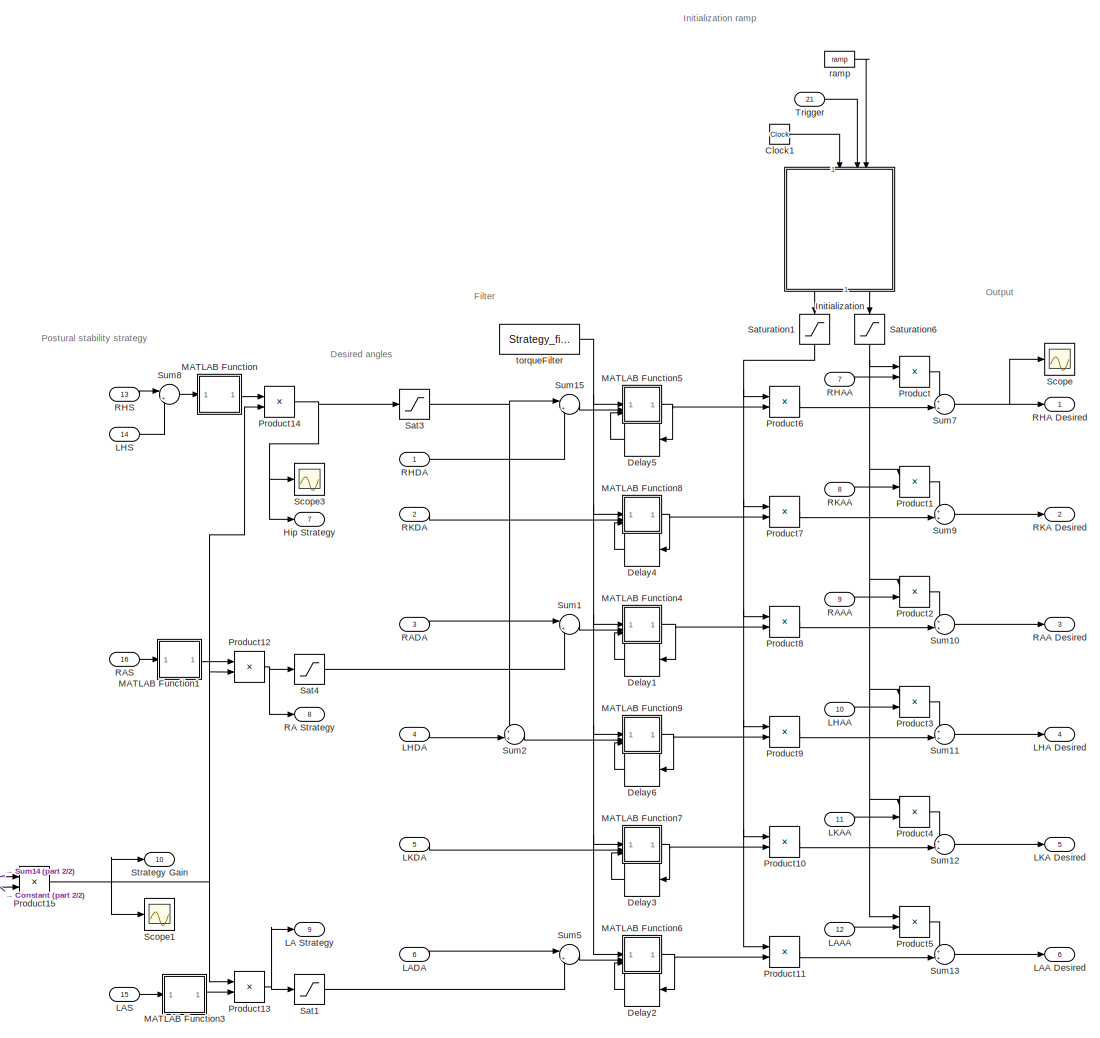
[diagram: If Action Subsystem3/Subsystem7 - part 1/2, right side, full height]
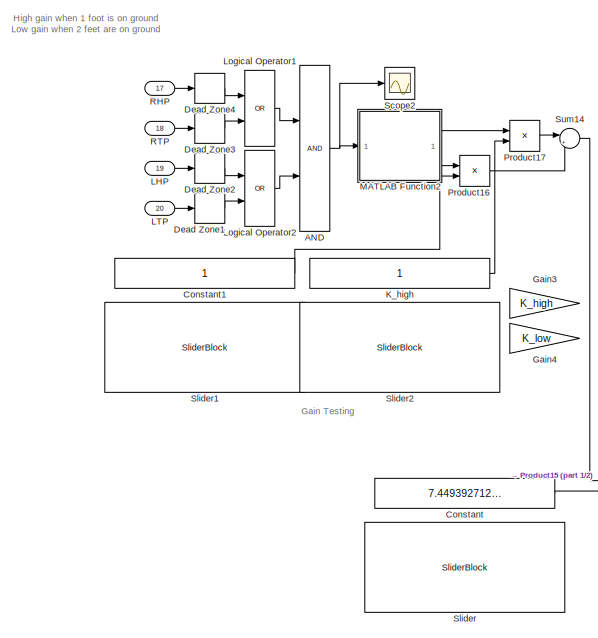
[diagram: If Action Subsystem3/Subsystem7 - part 2/2, bottom left region]
BLOCK [SubSystem] If Action Subsystem3/Subsystem7
  PortSchema = {"entries":[{"content":{"sides":[{"content":{"connectorIds":["In1","In2","In3","In4","In5","In6","In7","In8","In9","In10","In11","In12","In13","In14","In15","In16","In17","In18","In19","In20"]},"type":"ConnectorPlacement.EquallySpacedRectSide","uuid":"1310c732-5ee3-486f-8410-0ef5c9f4f0a3"},{"content":{"connectorIds":["Out1","Out2","Out3","Out4","Out5","Out6"],"side":"RIGHT"},"type":"ConnectorPlace...<+578ch>
BLOCK [Logic] If Action Subsystem3/Subsystem7/AND
  AllPortsSameDT = off
  IconShape = distinctive
  OutDataTypeStr = boolean
BLOCK [Clock] If Action Subsystem3/Subsystem7/Clock1
BLOCK [Constant] If Action Subsystem3/Subsystem7/Constant
  Value = 7.449392712550607
BLOCK [Constant] If Action Subsystem3/Subsystem7/Constant1
BLOCK [DeadZone] If Action Subsystem3/Subsystem7/Dead Zone1
  LowerValue = 0
  UpperValue = pressureDeadZone
BLOCK [DeadZone] If Action Subsystem3/Subsystem7/Dead Zone2
  LowerValue = 0
  UpperValue = pressureDeadZone
BLOCK [DeadZone] If Action Subsystem3/Subsystem7/Dead Zone3
  LowerValue = 0
  UpperValue = pressureDeadZone
BLOCK [DeadZone] If Action Subsystem3/Subsystem7/Dead Zone4
  LowerValue = 0
  UpperValue = pressureDeadZone
BLOCK [Delay] If Action Subsystem3/Subsystem7/Delay1
  DelayLength = 1
  InputPortMap = u0
BLOCK [Delay] If Action Subsystem3/Subsystem7/Delay2
  DelayLength = 1
  InputPortMap = u0
BLOCK [Delay] If Action Subsystem3/Subsystem7/Delay3
  DelayLength = 1
  InputPortMap = u0
BLOCK [Delay] If Action Subsystem3/Subsystem7/Delay4
  DelayLength = 1
  InputPortMap = u0
BLOCK [Delay] If Action Subsystem3/Subsystem7/Delay5
  DelayLength = 1
  InputPortMap = u0
BLOCK [Delay] If Action Subsystem3/Subsystem7/Delay6
  DelayLength = 1
  InputPortMap = u0
BLOCK [Gain] If Action Subsystem3/Subsystem7/Gain3
  Commented = on
  Gain = K_high
BLOCK [Gain] If Action Subsystem3/Subsystem7/Gain4
  Commented = on
  Gain = K_low
BLOCK [Outport] If Action Subsystem3/Subsystem7/Hip Strategy
  Port = 7
BLOCK [SubSystem] If Action Subsystem3/Subsystem7/Initialization
  ErrorFcn = Stateflow.Translate.translate
  NameLocation = left
  PermitHierarchicalResolution = ExplicitOnly
  SFBlockType = MATLAB Function
  TreatAsAtomicUnit = on
BLOCK [Demux] If Action Subsystem3/Subsystem7/Initialization/ Demux 
  Outputs = 1
BLOCK [S-Function] If Action Subsystem3/Subsystem7/Initialization/ SFunction 
  EnableBusSupport = on
  FunctionName = sf_sfun
  PortCounts = [3 3]
  SFcnIsStateOwnerBlock = off
  SFunctionDeploymentMode = off
  Tag = Stateflow S-Function 16
BLOCK [Terminator] If Action Subsystem3/Subsystem7/Initialization/ Terminator 
BLOCK [Outport] If Action Subsystem3/Subsystem7/Initialization/TimeDown
  Port = 2
BLOCK [Outport] If Action Subsystem3/Subsystem7/Initialization/TimeUp
BLOCK [Inport] If Action Subsystem3/Subsystem7/Initialization/clock
BLOCK [Inport] If Action Subsystem3/Subsystem7/Initialization/ramp
  Port = 3
BLOCK [Inport] If Action Subsystem3/Subsystem7/Initialization/trigger
  Port = 2
BLOCK [Constant] If Action Subsystem3/Subsystem7/K_high
BLOCK [Outport] If Action Subsystem3/Subsystem7/LA Strategy
  Port = 9
BLOCK [Outport] If Action Subsystem3/Subsystem7/LAA Desired
  Port = 6
BLOCK [Inport] If Action Subsystem3/Subsystem7/LAAA
  Port = 12
BLOCK [Inport] If Action Subsystem3/Subsystem7/LADA
  Port = 6
BLOCK [Inport] If Action Subsystem3/Subsystem7/LAS
  Port = 15
BLOCK [Outport] If Action Subsystem3/Subsystem7/LHA Desired
  Port = 4
BLOCK [Inport] If Action Subsystem3/Subsystem7/LHAA
  Port = 10
BLOCK [Inport] If Action Subsystem3/Subsystem7/LHDA
  Port = 4
BLOCK [Inport] If Action Subsystem3/Subsystem7/LHP
  Port = 19
BLOCK [Inport] If Action Subsystem3/Subsystem7/LHS
  Port = 14
BLOCK [Outport] If Action Subsystem3/Subsystem7/LKA Desired
  Port = 5
BLOCK [Inport] If Action Subsystem3/Subsystem7/LKAA
  Port = 11
BLOCK [Inport] If Action Subsystem3/Subsystem7/LKDA
  Port = 5
BLOCK [Inport] If Action Subsystem3/Subsystem7/LTP
  Port = 20
BLOCK [Logic] If Action Subsystem3/Subsystem7/Logical Operator1
  AllPortsSameDT = off
  Operator = OR
  OutDataTypeStr = boolean
BLOCK [Logic] If Action Subsystem3/Subsystem7/Logical Operator2
  AllPortsSameDT = off
  Operator = OR
  OutDataTypeStr = boolean
BLOCK [SubSystem] If Action Subsystem3/Subsystem7/MATLAB Function
  ErrorFcn = Stateflow.Translate.translate
  PermitHierarchicalResolution = ExplicitOnly
  SFBlockType = MATLAB Function
  TreatAsAtomicUnit = on
BLOCK [Demux] If Action Subsystem3/Subsystem7/MATLAB Function/ Demux 
  Outputs = 1
BLOCK [S-Function] If Action Subsystem3/Subsystem7/MATLAB Function/ SFunction 
  EnableBusSupport = on
  FunctionName = sf_sfun
  PortCounts = [1 2]
  SFcnIsStateOwnerBlock = off
  SFunctionDeploymentMode = off
  Tag = Stateflow S-Function 12
BLOCK [Terminator] If Action Subsystem3/Subsystem7/MATLAB Function/ Terminator 
BLOCK [Inport] If Action Subsystem3/Subsystem7/MATLAB Function/u
BLOCK [Outport] If Action Subsystem3/Subsystem7/MATLAB Function/y
BLOCK [SubSystem] If Action Subsystem3/Subsystem7/MATLAB Function1
  ErrorFcn = Stateflow.Translate.translate
  PermitHierarchicalResolution = ExplicitOnly
  SFBlockType = MATLAB Function
  TreatAsAtomicUnit = on
BLOCK [Demux] If Action Subsystem3/Subsystem7/MATLAB Function1/ Demux 
  Outputs = 1
BLOCK [S-Function] If Action Subsystem3/Subsystem7/MATLAB Function1/ SFunction 
  EnableBusSupport = on
  FunctionName = sf_sfun
  PortCounts = [1 2]
  SFcnIsStateOwnerBlock = off
  SFunctionDeploymentMode = off
  Tag = Stateflow S-Function 17
BLOCK [Terminator] If Action Subsystem3/Subsystem7/MATLAB Function1/ Terminator 
BLOCK [Inport] If Action Subsystem3/Subsystem7/MATLAB Function1/u
BLOCK [Outport] If Action Subsystem3/Subsystem7/MATLAB Function1/y
BLOCK [SubSystem] If Action Subsystem3/Subsystem7/MATLAB Function2
  ErrorFcn = Stateflow.Translate.translate
  PermitHierarchicalResolution = ExplicitOnly
  SFBlockType = MATLAB Function
  TreatAsAtomicUnit = on
BLOCK [Demux] If Action Subsystem3/Subsystem7/MATLAB Function2/ Demux 
  Outputs = 1
BLOCK [S-Function] If Action Subsystem3/Subsystem7/MATLAB Function2/ SFunction 
  EnableBusSupport = on
  FunctionName = sf_sfun
  PortCounts = [1 3]
  SFcnIsStateOwnerBlock = off
  SFunctionDeploymentMode = off
  Tag = Stateflow S-Function 24
BLOCK [Terminator] If Action Subsystem3/Subsystem7/MATLAB Function2/ Terminator 
BLOCK [Outport] If Action Subsystem3/Subsystem7/MATLAB Function2/K_high
BLOCK [Outport] If Action Subsystem3/Subsystem7/MATLAB Function2/K_low
  Port = 2
BLOCK [Inport] If Action Subsystem3/Subsystem7/MATLAB Function2/u
BLOCK [SubSystem] If Action Subsystem3/Subsystem7/MATLAB Function3
  ErrorFcn = Stateflow.Translate.translate
  PermitHierarchicalResolution = ExplicitOnly
  SFBlockType = MATLAB Function
  TreatAsAtomicUnit = on
BLOCK [Demux] If Action Subsystem3/Subsystem7/MATLAB Function3/ Demux 
  Outputs = 1
BLOCK [S-Function] If Action Subsystem3/Subsystem7/MATLAB Function3/ SFunction 
  EnableBusSupport = on
  FunctionName = sf_sfun
  PortCounts = [1 2]
  SFcnIsStateOwnerBlock = off
  SFunctionDeploymentMode = off
  Tag = Stateflow S-Function 18
BLOCK [Terminator] If Action Subsystem3/Subsystem7/MATLAB Function3/ Terminator 
BLOCK [Inport] If Action Subsystem3/Subsystem7/MATLAB Function3/u
BLOCK [Outport] If Action Subsystem3/Subsystem7/MATLAB Function3/y
BLOCK [SubSystem] If Action Subsystem3/Subsystem7/MATLAB Function4
  ErrorFcn = Stateflow.Translate.translate
  PermitHierarchicalResolution = ExplicitOnly
  SFBlockType = MATLAB Function
  TreatAsAtomicUnit = on
BLOCK [Demux] If Action Subsystem3/Subsystem7/MATLAB Function4/ Demux 
  Outputs = 1
BLOCK [S-Function] If Action Subsystem3/Subsystem7/MATLAB Function4/ SFunction 
  EnableBusSupport = on
  FunctionName = sf_sfun
  PortCounts = [3 2]
  SFcnIsStateOwnerBlock = off
  SFunctionDeploymentMode = off
  Tag = Stateflow S-Function 21
BLOCK [Terminator] If Action Subsystem3/Subsystem7/MATLAB Function4/ Terminator 
BLOCK [Inport] If Action Subsystem3/Subsystem7/MATLAB Function4/alpha
BLOCK [Inport] If Action Subsystem3/Subsystem7/MATLAB Function4/u
  Port = 2
BLOCK [Outport] If Action Subsystem3/Subsystem7/MATLAB Function4/y
BLOCK [Inport] If Action Subsystem3/Subsystem7/MATLAB Function4/y_delay
  Port = 3
BLOCK [SubSystem] If Action Subsystem3/Subsystem7/MATLAB Function5
  ErrorFcn = Stateflow.Translate.translate
  PermitHierarchicalResolution = ExplicitOnly
  SFBlockType = MATLAB Function
  TreatAsAtomicUnit = on
BLOCK [Demux] If Action Subsystem3/Subsystem7/MATLAB Function5/ Demux 
  Outputs = 1
BLOCK [S-Function] If Action Subsystem3/Subsystem7/MATLAB Function5/ SFunction 
  EnableBusSupport = on
  FunctionName = sf_sfun
  PortCounts = [3 2]
  SFcnIsStateOwnerBlock = off
  SFunctionDeploymentMode = off
  Tag = Stateflow S-Function 19
BLOCK [Terminator] If Action Subsystem3/Subsystem7/MATLAB Function5/ Terminator 
BLOCK [Inport] If Action Subsystem3/Subsystem7/MATLAB Function5/alpha
BLOCK [Inport] If Action Subsystem3/Subsystem7/MATLAB Function5/u
  Port = 2
BLOCK [Outport] If Action Subsystem3/Subsystem7/MATLAB Function5/y
BLOCK [Inport] If Action Subsystem3/Subsystem7/MATLAB Function5/y_delay
  Port = 3
BLOCK [SubSystem] If Action Subsystem3/Subsystem7/MATLAB Function6
  ErrorFcn = Stateflow.Translate.translate
  PermitHierarchicalResolution = ExplicitOnly
  SFBlockType = MATLAB Function
  TreatAsAtomicUnit = on
BLOCK [Demux] If Action Subsystem3/Subsystem7/MATLAB Function6/ Demux 
  Outputs = 1
BLOCK [S-Function] If Action Subsystem3/Subsystem7/MATLAB Function6/ SFunction 
  EnableBusSupport = on
  FunctionName = sf_sfun
  PortCounts = [3 2]
  SFcnIsStateOwnerBlock = off
  SFunctionDeploymentMode = off
  Tag = Stateflow S-Function 22
BLOCK [Terminator] If Action Subsystem3/Subsystem7/MATLAB Function6/ Terminator 
BLOCK [Inport] If Action Subsystem3/Subsystem7/MATLAB Function6/alpha
BLOCK [Inport] If Action Subsystem3/Subsystem7/MATLAB Function6/u
  Port = 2
BLOCK [Outport] If Action Subsystem3/Subsystem7/MATLAB Function6/y
BLOCK [Inport] If Action Subsystem3/Subsystem7/MATLAB Function6/y_delay
  Port = 3
BLOCK [SubSystem] If Action Subsystem3/Subsystem7/MATLAB Function7
  ErrorFcn = Stateflow.Translate.translate
  PermitHierarchicalResolution = ExplicitOnly
  SFBlockType = MATLAB Function
  TreatAsAtomicUnit = on
BLOCK [Demux] If Action Subsystem3/Subsystem7/MATLAB Function7/ Demux 
  Outputs = 1
BLOCK [S-Function] If Action Subsystem3/Subsystem7/MATLAB Function7/ SFunction 
  EnableBusSupport = on
  FunctionName = sf_sfun
  PortCounts = [3 2]
  SFcnIsStateOwnerBlock = off
  SFunctionDeploymentMode = off
  Tag = Stateflow S-Function 29
BLOCK [Terminator] If Action Subsystem3/Subsystem7/MATLAB Function7/ Terminator 
BLOCK [Inport] If Action Subsystem3/Subsystem7/MATLAB Function7/alpha
BLOCK [Inport] If Action Subsystem3/Subsystem7/MATLAB Function7/u
  Port = 2
BLOCK [Outport] If Action Subsystem3/Subsystem7/MATLAB Function7/y
BLOCK [Inport] If Action Subsystem3/Subsystem7/MATLAB Function7/y_delay
  Port = 3
BLOCK [SubSystem] If Action Subsystem3/Subsystem7/MATLAB Function8
  ErrorFcn = Stateflow.Translate.translate
  PermitHierarchicalResolution = ExplicitOnly
  SFBlockType = MATLAB Function
  TreatAsAtomicUnit = on
BLOCK [Demux] If Action Subsystem3/Subsystem7/MATLAB Function8/ Demux 
  Outputs = 1
BLOCK [S-Function] If Action Subsystem3/Subsystem7/MATLAB Function8/ SFunction 
  EnableBusSupport = on
  FunctionName = sf_sfun
  PortCounts = [3 2]
  SFcnIsStateOwnerBlock = off
  SFunctionDeploymentMode = off
  Tag = Stateflow S-Function 30
BLOCK [Terminator] If Action Subsystem3/Subsystem7/MATLAB Function8/ Terminator 
BLOCK [Inport] If Action Subsystem3/Subsystem7/MATLAB Function8/alpha
BLOCK [Inport] If Action Subsystem3/Subsystem7/MATLAB Function8/u
  Port = 2
BLOCK [Outport] If Action Subsystem3/Subsystem7/MATLAB Function8/y
BLOCK [Inport] If Action Subsystem3/Subsystem7/MATLAB Function8/y_delay
  Port = 3
BLOCK [SubSystem] If Action Subsystem3/Subsystem7/MATLAB Function9
  ErrorFcn = Stateflow.Translate.translate
  PermitHierarchicalResolution = ExplicitOnly
  SFBlockType = MATLAB Function
  TreatAsAtomicUnit = on
BLOCK [Demux] If Action Subsystem3/Subsystem7/MATLAB Function9/ Demux 
  Outputs = 1
BLOCK [S-Function] If Action Subsystem3/Subsystem7/MATLAB Function9/ SFunction 
  EnableBusSupport = on
  FunctionName = sf_sfun
  PortCounts = [3 2]
  SFcnIsStateOwnerBlock = off
  SFunctionDeploymentMode = off
  Tag = Stateflow S-Function 31
BLOCK [Terminator] If Action Subsystem3/Subsystem7/MATLAB Function9/ Terminator 
BLOCK [Inport] If Action Subsystem3/Subsystem7/MATLAB Function9/alpha
BLOCK [Inport] If Action Subsystem3/Subsystem7/MATLAB Function9/u
  Port = 2
BLOCK [Outport] If Action Subsystem3/Subsystem7/MATLAB Function9/y
BLOCK [Inport] If Action Subsystem3/Subsystem7/MATLAB Function9/y_delay
  Port = 3
BLOCK [Product] If Action Subsystem3/Subsystem7/Product
BLOCK [Product] If Action Subsystem3/Subsystem7/Product1
BLOCK [Product] If Action Subsystem3/Subsystem7/Product10
BLOCK [Product] If Action Subsystem3/Subsystem7/Product11
BLOCK [Product] If Action Subsystem3/Subsystem7/Product12
BLOCK [Product] If Action Subsystem3/Subsystem7/Product13
BLOCK [Product] If Action Subsystem3/Subsystem7/Product14
BLOCK [Product] If Action Subsystem3/Subsystem7/Product15
BLOCK [Product] If Action Subsystem3/Subsystem7/Product16
BLOCK [Product] If Action Subsystem3/Subsystem7/Product17
BLOCK [Product] If Action Subsystem3/Subsystem7/Product2
BLOCK [Product] If Action Subsystem3/Subsystem7/Product3
BLOCK [Product] If Action Subsystem3/Subsystem7/Product4
BLOCK [Product] If Action Subsystem3/Subsystem7/Product5
BLOCK [Product] If Action Subsystem3/Subsystem7/Product6
BLOCK [Product] If Action Subsystem3/Subsystem7/Product7
BLOCK [Product] If Action Subsystem3/Subsystem7/Product8
BLOCK [Product] If Action Subsystem3/Subsystem7/Product9
BLOCK [Outport] If Action Subsystem3/Subsystem7/RA Strategy
  Port = 8
BLOCK [Outport] If Action Subsystem3/Subsystem7/RAA Desired
  Port = 3
BLOCK [Inport] If Action Subsystem3/Subsystem7/RAAA
  Port = 9
BLOCK [Inport] If Action Subsystem3/Subsystem7/RADA
  Port = 3
BLOCK [Inport] If Action Subsystem3/Subsystem7/RAS
  Port = 16
BLOCK [Outport] If Action Subsystem3/Subsystem7/RHA Desired
BLOCK [Inport] If Action Subsystem3/Subsystem7/RHAA
  Port = 7
BLOCK [Inport] If Action Subsystem3/Subsystem7/RHDA
BLOCK [Inport] If Action Subsystem3/Subsystem7/RHP
  Port = 17
BLOCK [Inport] If Action Subsystem3/Subsystem7/RHS
  Port = 13
BLOCK [Outport] If Action Subsystem3/Subsystem7/RKA Desired
  Port = 2
BLOCK [Inport] If Action Subsystem3/Subsystem7/RKAA
  Port = 8
BLOCK [Inport] If Action Subsystem3/Subsystem7/RKDA
  Port = 2
BLOCK [Inport] If Action Subsystem3/Subsystem7/RTP
  Port = 18
BLOCK [Saturate] If Action Subsystem3/Subsystem7/Sat1
  LowerLimit = -strategySaturation
  UpperLimit = strategySaturation
BLOCK [Saturate] If Action Subsystem3/Subsystem7/Sat3
  LowerLimit = -strategySaturation
  UpperLimit = strategySaturation
BLOCK [Saturate] If Action Subsystem3/Subsystem7/Sat4
  LowerLimit = -strategySaturation
  UpperLimit = strategySaturation
BLOCK [Saturate] If Action Subsystem3/Subsystem7/Saturation1
  LowerLimit = 0
  NameLocation = left
  UpperLimit = 1
BLOCK [Saturate] If Action Subsystem3/Subsystem7/Saturation6
  LowerLimit = 0
  NameLocation = left
  UpperLimit = 1
BLOCK [Scope] If Action Subsystem3/Subsystem7/Scope
  Floating = off
  NumInputPorts = 1
  ScopeSpecificationString = Simulink.scopes.TimeScopeBlockCfg('CurrentConfiguration', extmgr.ConfigurationSet(extmgr.Configuration('Core','General UI',true),extmgr.Configuration('Core','Source UI',true),extmgr.Configuration('Sources','WiredSimulink',true,'DataLoggingVariableName','ScopeData2'),extmgr.Configuration('Visuals','Time Domain',true,'SerializedDisplays',{struct('MinYLimReal','-11.61952','MaxYLimReal','35.62732','YL...<+1405ch>
BLOCK [Scope] If Action Subsystem3/Subsystem7/Scope1
  Floating = off
  NumInputPorts = 1
  ScopeSpecificationString = Simulink.scopes.TimeScopeBlockCfg('CurrentConfiguration', extmgr.ConfigurationSet(extmgr.Configuration('Core','General UI',true),extmgr.Configuration('Core','Source UI',true),extmgr.Configuration('Sources','WiredSimulink',true,'DataLoggingVariableName','ScopeData1'),extmgr.Configuration('Visuals','Time Domain',true,'SerializedDisplays',{struct('MinYLimReal','4.07177','MaxYLimReal','6.07177','YLabe...<+1480ch>
BLOCK [Scope] If Action Subsystem3/Subsystem7/Scope2
  Floating = off
  NumInputPorts = 1
  ScopeSpecificationString = Simulink.scopes.TimeScopeBlockCfg('CurrentConfiguration', extmgr.ConfigurationSet(extmgr.Configuration('Core','General UI',true),extmgr.Configuration('Core','Source UI',true),extmgr.Configuration('Sources','WiredSimulink',true,'DataLoggingVariableName','ScopeData1'),extmgr.Configuration('Visuals','Time Domain',true,'SerializedDisplays',{struct('MinYLimReal','-0.125','MaxYLimReal','1.125','YLabelRe...<+1464ch>
BLOCK [Scope] If Action Subsystem3/Subsystem7/Scope3
  Floating = off
  NumInputPorts = 1
  ScopeSpecificationString = Simulink.scopes.TimeScopeBlockCfg('CurrentConfiguration', extmgr.ConfigurationSet(extmgr.Configuration('Core','General UI',true),extmgr.Configuration('Core','Source UI',true),extmgr.Configuration('Sources','WiredSimulink',true,'DataLoggingVariableName','ScopeData1'),extmgr.Configuration('Visuals','Time Domain',true,'SerializedDisplays',{struct('MinYLimReal','-5.38941','MaxYLimReal','3.18546','YLab...<+1482ch>
BLOCK [SliderBlock] If Action Subsystem3/Subsystem7/Slider
  ScaleMax = 10
BLOCK [SliderBlock] If Action Subsystem3/Subsystem7/Slider1
  ScaleMax = 1
  ScaleMin = 0.5
BLOCK [SliderBlock] If Action Subsystem3/Subsystem7/Slider2
  ScaleMax = 3
  ScaleMin = 1
BLOCK [Outport] If Action Subsystem3/Subsystem7/Strategy Gain
  Port = 10
BLOCK [Sum] If Action Subsystem3/Subsystem7/Sum1
  Inputs = |++
BLOCK [Sum] If Action Subsystem3/Subsystem7/Sum10
  Inputs = ++|
BLOCK [Sum] If Action Subsystem3/Subsystem7/Sum11
  Inputs = ++|
BLOCK [Sum] If Action Subsystem3/Subsystem7/Sum12
  Inputs = ++|
BLOCK [Sum] If Action Subsystem3/Subsystem7/Sum13
  Inputs = ++|
BLOCK [Sum] If Action Subsystem3/Subsystem7/Sum14
  Inputs = |++
BLOCK [Sum] If Action Subsystem3/Subsystem7/Sum15
  Inputs = |++
BLOCK [Sum] If Action Subsystem3/Subsystem7/Sum2
  Inputs = ++|
BLOCK [Sum] If Action Subsystem3/Subsystem7/Sum5
  Inputs = |++
BLOCK [Sum] If Action Subsystem3/Subsystem7/Sum7
  Inputs = ++|
BLOCK [Sum] If Action Subsystem3/Subsystem7/Sum8
  Inputs = |++
BLOCK [Sum] If Action Subsystem3/Subsystem7/Sum9
  Inputs = ++|
BLOCK [Inport] If Action Subsystem3/Subsystem7/Trigger
  Port = 21
BLOCK [Constant] If Action Subsystem3/Subsystem7/ramp
  Value = ramp
BLOCK [Constant] If Action Subsystem3/Subsystem7/torqueFilter
  Value = Strategy_filter
BLOCK [Inport] If Action Subsystem3/Trigger
BLOCK [Constant] If Action Subsystem3/W
  Value = frequency
BLOCK [Inport] If Action Subsystem3/ankleStrategyInterval
  Port = 25
BLOCK [Outport] If Action Subsystem3/currentStep//Time
  Port = 10
BLOCK [Inport] If Action Subsystem3/gamma
  Port = 35
BLOCK [Inport] If Action Subsystem3/l3
  Port = 36
BLOCK [Inport] If Action Subsystem3/l4
  Port = 37
BLOCK [Inport] If Action Subsystem3/l_c2
  Port = 29
BLOCK [Inport] If Action Subsystem3/l_c3
  Port = 30
BLOCK [Inport] If Action Subsystem3/l_c4
  Port = 31
BLOCK [Inport] If Action Subsystem3/m2
  Port = 26
BLOCK [Inport] If Action Subsystem3/m3
  Port = 27
BLOCK [Inport] If Action Subsystem3/m4
  Port = 28
BLOCK [Constant] If Action Subsystem3/torqueFilter
  Value = Strategy_filter
BLOCK [If] If1
BLOCK [Merge] Merge
BLOCK [Mux] Mux
  DisplayOption = bar
  Inputs = 2
BLOCK [Mux] Mux1
  DisplayOption = bar
  Inputs = 6
BLOCK [Mux] Mux13
  DisplayOption = bar
  Inputs = 16
BLOCK [Mux] Mux5
  DisplayOption = bar
  Inputs = 2
BLOCK [Mux] Mux7
  DisplayOption = bar
  Inputs = 6
BLOCK [SubSystem] Parameters
BLOCK [Constant] Parameters/Constant10
  Value = 100
BLOCK [Constant] Parameters/Constant12
BLOCK [Constant] Parameters/Constant13
  Value = 25
BLOCK [Constant] Parameters/Constant14
  Value = 100
BLOCK [Constant] Parameters/Constant15
BLOCK [Constant] Parameters/Constant16
BLOCK [Constant] Parameters/Constant17
BLOCK [Constant] Parameters/Constant18
BLOCK [Constant] Parameters/Constant19
BLOCK [Constant] Parameters/Constant2
  Value = -25
BLOCK [Constant] Parameters/Constant20
  Value = 100
BLOCK [Constant] Parameters/Constant21
  Value = 25
BLOCK [Constant] Parameters/Constant22
  Value = 100
BLOCK [Constant] Parameters/Constant23
  Value = 100
BLOCK [Constant] Parameters/Constant24
  Value = 100
BLOCK [Constant] Parameters/Constant25
  Value = 100
BLOCK [Constant] Parameters/Constant26
  Value = 100
BLOCK [Constant] Parameters/Constant28
  Value = 100
BLOCK [Constant] Parameters/Constant3
  Value = 0
BLOCK [Constant] Parameters/Constant4
  Value = -25
BLOCK [Constant] Parameters/Constant5
  Value = -25
BLOCK [Constant] Parameters/Constant6
  Value = 0
BLOCK [Constant] Parameters/Constant7
  Value = -25
BLOCK [Constant] Parameters/Constant9
  Value = 100
BLOCK [Reference] Parameters/Packet Output  REF=sldrtlib/Packet Output
  AttributesFormatString = PEAK-System\nCAN Device [81]
  SourceBlock = sldrtlib/Packet Output
  SourceType = Simulink Desktop Real-Time Packet Output
BLOCK [Reference] Parameters/Packet Output1  REF=sldrtlib/Packet Output
  AttributesFormatString = PEAK-System\nCAN Device [81]
  SourceBlock = sldrtlib/Packet Output
  SourceType = Simulink Desktop Real-Time Packet Output
BLOCK [Reference] Parameters/Packet Output2  REF=sldrtlib/Packet Output
  AttributesFormatString = PEAK-System\nCAN Device [81]
  SourceBlock = sldrtlib/Packet Output
  SourceType = Simulink Desktop Real-Time Packet Output
BLOCK [Reference] Parameters/Packet Output3  REF=sldrtlib/Packet Output
  AttributesFormatString = PEAK-System\nCAN Device [81]
  SourceBlock = sldrtlib/Packet Output
  SourceType = Simulink Desktop Real-Time Packet Output
BLOCK [TriggerPort] Parameters/Trigger
  PortDimensions = 1
  StatesWhenEnabling = held
  VariantControl = (inherit)
BLOCK [PushButtonBlock] Push Button
  ButtonText = Up Vel
  OffValue = 0.000000
BLOCK [PushButtonBlock] Push Button1
  ButtonText = Down Vel
BLOCK [PushButtonBlock] Push Button10
  ButtonText = Right_Step
  OffValue = 0.000000
BLOCK [PushButtonBlock] Push Button11
  ButtonText = Left_Step
  OffValue = 0.000000
BLOCK [PushButtonBlock] Push Button12
  ButtonText = Sit_Down
  OffValue = 0.000000
BLOCK [PushButtonBlock] Push Button13
  ButtonText = Stand_Up
  OffValue = 0.000000
BLOCK [PushButtonBlock] Push Button14
  ButtonText = Walk/Stop
  ButtonType = Latch
  OffValue = 0.000000
BLOCK [PushButtonBlock] Push Button15
  ButtonText = Acknowledge Parameters
  OffValue = 0.000000
BLOCK [PushButtonBlock] Push Button16
  ButtonText = Activate
  ButtonType = Latch
  OffValue = 0.000000
BLOCK [PushButtonBlock] Push Button2
  ButtonText = Down Left %
  OffValue = 0.000000
BLOCK [PushButtonBlock] Push Button3
  ButtonText = Up Left %
  OffValue = 0.000000
BLOCK [PushButtonBlock] Push Button4
  ButtonText = Walk
  OffValue = 0.000000
BLOCK [PushButtonBlock] Push Button5
  ButtonText = Stop
  OffValue = 0.000000
BLOCK [PushButtonBlock] Push Button6
  ButtonText = Release
  OffValue = 0.000000
BLOCK [PushButtonBlock] Push Button7
  ButtonText = Transparent
  OffValue = 0.000000
BLOCK [PushButtonBlock] Push Button8
  ButtonText = Down Right %
  OffValue = 0.000000
BLOCK [PushButtonBlock] Push Button9
  ButtonText = Up Right %
  OffValue = 0.000000
BLOCK [SubSystem] Read Angular Possition
BLOCK [If] Read Angular Possition/If
  IfExpression = u1 == 1
BLOCK [SubSystem] Read Angular Possition/If Action Subsystem
  TreatAsAtomicUnit = on
BLOCK [ActionPort] Read Angular Possition/If Action Subsystem/Action Port
  ActionPortLabel = if(u1 == 1)
BLOCK [DataTypeConversion] Read Angular Possition/If Action Subsystem/Data Type Conversion10
  OutDataTypeStr = double
  RndMeth = Floor
  SaturateOnIntegerOverflow = off
BLOCK [DataTypeConversion] Read Angular Possition/If Action Subsystem/Data Type Conversion11
  OutDataTypeStr = double
  RndMeth = Floor
  SaturateOnIntegerOverflow = off
BLOCK [DataTypeConversion] Read Angular Possition/If Action Subsystem/Data Type Conversion6
  OutDataTypeStr = double
  RndMeth = Floor
  SaturateOnIntegerOverflow = off
BLOCK [DataTypeConversion] Read Angular Possition/If Action Subsystem/Data Type Conversion7
  OutDataTypeStr = double
  RndMeth = Floor
  SaturateOnIntegerOverflow = off
BLOCK [DataTypeConversion] Read Angular Possition/If Action Subsystem/Data Type Conversion8
  OutDataTypeStr = double
  RndMeth = Floor
  SaturateOnIntegerOverflow = off
BLOCK [DataTypeConversion] Read Angular Possition/If Action Subsystem/Data Type Conversion9
  OutDataTypeStr = double
  RndMeth = Floor
  SaturateOnIntegerOverflow = off
BLOCK [Outport] Read Angular Possition/If Action Subsystem/Out10
  Port = 4
BLOCK [Outport] Read Angular Possition/If Action Subsystem/Out11
  Port = 5
BLOCK [Outport] Read Angular Possition/If Action Subsystem/Out12
  Port = 6
BLOCK [Outport] Read Angular Possition/If Action Subsystem/Out7
BLOCK [Outport] Read Angular Possition/If Action Subsystem/Out8
  Port = 2
BLOCK [Outport] Read Angular Possition/If Action Subsystem/Out9
  Port = 3
BLOCK [Reference] Read Angular Possition/If Action Subsystem/Packet Input1  REF=sldrtlib/Packet Input
  AttributesFormatString = PEAK-System\nCAN Device [81]
  SourceBlock = sldrtlib/Packet Input
  SourceType = Simulink Desktop Real-Time Packet Input
BLOCK [SubSystem] Read Angular Possition/If Action Subsystem1
  TreatAsAtomicUnit = on
BLOCK [ActionPort] Read Angular Possition/If Action Subsystem1/Action Port
  ActionPortLabel = else
BLOCK [DataTypeConversion] Read Angular Possition/If Action Subsystem1/Data Type Conversion10
  OutDataTypeStr = double
  RndMeth = Floor
  SaturateOnIntegerOverflow = off
BLOCK [DataTypeConversion] Read Angular Possition/If Action Subsystem1/Data Type Conversion11
  OutDataTypeStr = double
  RndMeth = Floor
  SaturateOnIntegerOverflow = off
BLOCK [DataTypeConversion] Read Angular Possition/If Action Subsystem1/Data Type Conversion6
  OutDataTypeStr = double
  RndMeth = Floor
  SaturateOnIntegerOverflow = off
BLOCK [DataTypeConversion] Read Angular Possition/If Action Subsystem1/Data Type Conversion7
  OutDataTypeStr = double
  RndMeth = Floor
  SaturateOnIntegerOverflow = off
BLOCK [DataTypeConversion] Read Angular Possition/If Action Subsystem1/Data Type Conversion8
  OutDataTypeStr = double
  RndMeth = Floor
  SaturateOnIntegerOverflow = off
BLOCK [DataTypeConversion] Read Angular Possition/If Action Subsystem1/Data Type Conversion9
  OutDataTypeStr = double
  RndMeth = Floor
  SaturateOnIntegerOverflow = off
BLOCK [Gain] Read Angular Possition/If Action Subsystem1/Multiply
  Gain = 0.1
BLOCK [Gain] Read Angular Possition/If Action Subsystem1/Multiply1
  Gain = 0.1
BLOCK [Gain] Read Angular Possition/If Action Subsystem1/Multiply2
  Gain = 0.1
BLOCK [Gain] Read Angular Possition/If Action Subsystem1/Multiply3
  Gain = 0.1
BLOCK [Gain] Read Angular Possition/If Action Subsystem1/Multiply4
  Gain = 0.1
BLOCK [Gain] Read Angular Possition/If Action Subsystem1/Multiply5
  Gain = 0.1
BLOCK [Outport] Read Angular Possition/If Action Subsystem1/Out10
  Port = 4
BLOCK [Outport] Read Angular Possition/If Action Subsystem1/Out11
  Port = 5
BLOCK [Outport] Read Angular Possition/If Action Subsystem1/Out12
  Port = 6
BLOCK [Outport] Read Angular Possition/If Action Subsystem1/Out7
BLOCK [Outport] Read Angular Possition/If Action Subsystem1/Out8
  Port = 2
BLOCK [Outport] Read Angular Possition/If Action Subsystem1/Out9
  Port = 3
BLOCK [Reference] Read Angular Possition/If Action Subsystem1/Packet Input1  REF=sldrtlib/Packet Input
  AttributesFormatString = PEAK-System\nCAN Device [81]
  SourceBlock = sldrtlib/Packet Input
  SourceType = Simulink Desktop Real-Time Packet Input
BLOCK [Reference] Read Angular Possition/If Action Subsystem1/Packet Input2  REF=sldrtlib/Packet Input
  AttributesFormatString = PEAK-System\nCAN Device [81]
  SourceBlock = sldrtlib/Packet Input
  SourceType = Simulink Desktop Real-Time Packet Input
BLOCK [Inport] Read Angular Possition/Input
BLOCK [Merge] Read Angular Possition/Merge
BLOCK [Merge] Read Angular Possition/Merge1
BLOCK [Merge] Read Angular Possition/Merge2
BLOCK [Merge] Read Angular Possition/Merge3
BLOCK [Merge] Read Angular Possition/Merge4
BLOCK [Merge] Read Angular Possition/Merge5
BLOCK [Outport] Read Angular Possition/Out1
BLOCK [Outport] Read Angular Possition/Out2
  Port = 2
BLOCK [Outport] Read Angular Possition/Out3
  Port = 3
BLOCK [Outport] Read Angular Possition/Out4
  Port = 4
BLOCK [Outport] Read Angular Possition/Out5
  Port = 5
BLOCK [Outport] Read Angular Possition/Out6
  Port = 6
BLOCK [SubSystem] Read Angular Velocity
BLOCK [If] Read Angular Velocity/If
  IfExpression = u1 == 1
BLOCK [SubSystem] Read Angular Velocity/If Action Subsystem1
  TreatAsAtomicUnit = on
BLOCK [ActionPort] Read Angular Velocity/If Action Subsystem1/Action Port
  ActionPortLabel = else
BLOCK [DataTypeConversion] Read Angular Velocity/If Action Subsystem1/Data Type Conversion10
  OutDataTypeStr = double
  RndMeth = Floor
  SaturateOnIntegerOverflow = off
BLOCK [DataTypeConversion] Read Angular Velocity/If Action Subsystem1/Data Type Conversion11
  OutDataTypeStr = double
  RndMeth = Floor
  SaturateOnIntegerOverflow = off
BLOCK [DataTypeConversion] Read Angular Velocity/If Action Subsystem1/Data Type Conversion6
  OutDataTypeStr = double
  RndMeth = Floor
  SaturateOnIntegerOverflow = off
BLOCK [DataTypeConversion] Read Angular Velocity/If Action Subsystem1/Data Type Conversion7
  OutDataTypeStr = double
  RndMeth = Floor
  SaturateOnIntegerOverflow = off
BLOCK [DataTypeConversion] Read Angular Velocity/If Action Subsystem1/Data Type Conversion8
  OutDataTypeStr = double
  RndMeth = Floor
  SaturateOnIntegerOverflow = off
BLOCK [DataTypeConversion] Read Angular Velocity/If Action Subsystem1/Data Type Conversion9
  OutDataTypeStr = double
  RndMeth = Floor
  SaturateOnIntegerOverflow = off
BLOCK [Gain] Read Angular Velocity/If Action Subsystem1/Multiply
  Gain = 0.1
BLOCK [Gain] Read Angular Velocity/If Action Subsystem1/Multiply1
  Gain = 0.1
BLOCK [Gain] Read Angular Velocity/If Action Subsystem1/Multiply2
  Gain = 0.1
BLOCK [Gain] Read Angular Velocity/If Action Subsystem1/Multiply3
  Gain = 0.1
BLOCK [Gain] Read Angular Velocity/If Action Subsystem1/Multiply4
  Gain = 0.1
BLOCK [Gain] Read Angular Velocity/If Action Subsystem1/Multiply5
  Gain = 0.1
BLOCK [Outport] Read Angular Velocity/If Action Subsystem1/Out10
  Port = 4
BLOCK [Outport] Read Angular Velocity/If Action Subsystem1/Out11
  Port = 5
BLOCK [Outport] Read Angular Velocity/If Action Subsystem1/Out12
  Port = 6
BLOCK [Outport] Read Angular Velocity/If Action Subsystem1/Out7
BLOCK [Outport] Read Angular Velocity/If Action Subsystem1/Out8
  Port = 2
BLOCK [Outport] Read Angular Velocity/If Action Subsystem1/Out9
  Port = 3
BLOCK [Reference] Read Angular Velocity/If Action Subsystem1/Packet Input1  REF=sldrtlib/Packet Input
  AttributesFormatString = PEAK-System\nCAN Device [81]
  SourceBlock = sldrtlib/Packet Input
  SourceType = Simulink Desktop Real-Time Packet Input
BLOCK [Reference] Read Angular Velocity/If Action Subsystem1/Packet Input2  REF=sldrtlib/Packet Input
  AttributesFormatString = PEAK-System\nCAN Device [81]
  SourceBlock = sldrtlib/Packet Input
  SourceType = Simulink Desktop Real-Time Packet Input
BLOCK [Inport] Read Angular Velocity/Input
BLOCK [Outport] Read Angular Velocity/Out1
BLOCK [Outport] Read Angular Velocity/Out2
  Port = 2
BLOCK [Outport] Read Angular Velocity/Out3
  Port = 3
BLOCK [Outport] Read Angular Velocity/Out4
  Port = 4
BLOCK [Outport] Read Angular Velocity/Out5
  Port = 5
BLOCK [Outport] Read Angular Velocity/Out6
  Port = 6
BLOCK [SubSystem] Read Interaction torque
BLOCK [If] Read Interaction torque/If
  IfExpression = u1 == 1
BLOCK [SubSystem] Read Interaction torque/If Action Subsystem
  TreatAsAtomicUnit = on
BLOCK [ActionPort] Read Interaction torque/If Action Subsystem/Action Port
  ActionPortLabel = if(u1 == 1)
BLOCK [DataTypeConversion] Read Interaction torque/If Action Subsystem/Data Type Conversion10
  OutDataTypeStr = double
  RndMeth = Floor
  SaturateOnIntegerOverflow = off
BLOCK [DataTypeConversion] Read Interaction torque/If Action Subsystem/Data Type Conversion11
  OutDataTypeStr = double
  RndMeth = Floor
  SaturateOnIntegerOverflow = off
BLOCK [DataTypeConversion] Read Interaction torque/If Action Subsystem/Data Type Conversion6
  OutDataTypeStr = double
  RndMeth = Floor
  SaturateOnIntegerOverflow = off
BLOCK [DataTypeConversion] Read Interaction torque/If Action Subsystem/Data Type Conversion7
  OutDataTypeStr = double
  RndMeth = Floor
  SaturateOnIntegerOverflow = off
BLOCK [DataTypeConversion] Read Interaction torque/If Action Subsystem/Data Type Conversion8
  OutDataTypeStr = double
  RndMeth = Floor
  SaturateOnIntegerOverflow = off
BLOCK [DataTypeConversion] Read Interaction torque/If Action Subsystem/Data Type Conversion9
  OutDataTypeStr = double
  RndMeth = Floor
  SaturateOnIntegerOverflow = off
BLOCK [Outport] Read Interaction torque/If Action Subsystem/Out10
  Port = 4
BLOCK [Outport] Read Interaction torque/If Action Subsystem/Out11
  Port = 5
BLOCK [Outport] Read Interaction torque/If Action Subsystem/Out12
  Port = 6
BLOCK [Outport] Read Interaction torque/If Action Subsystem/Out7
BLOCK [Outport] Read Interaction torque/If Action Subsystem/Out8
  Port = 2
BLOCK [Outport] Read Interaction torque/If Action Subsystem/Out9
  Port = 3
BLOCK [Reference] Read Interaction torque/If Action Subsystem/Packet Input1  REF=sldrtlib/Packet Input
  AttributesFormatString = PEAK-System\nCAN Device [81]
  SourceBlock = sldrtlib/Packet Input
  SourceType = Simulink Desktop Real-Time Packet Input
BLOCK [SubSystem] Read Interaction torque/If Action Subsystem1
  TreatAsAtomicUnit = on
BLOCK [ActionPort] Read Interaction torque/If Action Subsystem1/Action Port
  ActionPortLabel = else
BLOCK [DataTypeConversion] Read Interaction torque/If Action Subsystem1/Data Type Conversion10
  OutDataTypeStr = double
  RndMeth = Floor
  SaturateOnIntegerOverflow = off
BLOCK [DataTypeConversion] Read Interaction torque/If Action Subsystem1/Data Type Conversion11
  OutDataTypeStr = double
  RndMeth = Floor
  SaturateOnIntegerOverflow = off
BLOCK [DataTypeConversion] Read Interaction torque/If Action Subsystem1/Data Type Conversion6
  OutDataTypeStr = double
  RndMeth = Floor
  SaturateOnIntegerOverflow = off
BLOCK [DataTypeConversion] Read Interaction torque/If Action Subsystem1/Data Type Conversion7
  OutDataTypeStr = double
  RndMeth = Floor
  SaturateOnIntegerOverflow = off
BLOCK [DataTypeConversion] Read Interaction torque/If Action Subsystem1/Data Type Conversion8
  OutDataTypeStr = double
  RndMeth = Floor
  SaturateOnIntegerOverflow = off
BLOCK [DataTypeConversion] Read Interaction torque/If Action Subsystem1/Data Type Conversion9
  OutDataTypeStr = double
  RndMeth = Floor
  SaturateOnIntegerOverflow = off
BLOCK [Gain] Read Interaction torque/If Action Subsystem1/Multiply
  Gain = 0.1
BLOCK [Gain] Read Interaction torque/If Action Subsystem1/Multiply1
  Gain = 0.1
BLOCK [Gain] Read Interaction torque/If Action Subsystem1/Multiply2
  Gain = 0.1
BLOCK [Gain] Read Interaction torque/If Action Subsystem1/Multiply3
  Gain = 0.1
BLOCK [Gain] Read Interaction torque/If Action Subsystem1/Multiply4
  Gain = 0.1
BLOCK [Gain] Read Interaction torque/If Action Subsystem1/Multiply5
  Gain = 0.1
BLOCK [Outport] Read Interaction torque/If Action Subsystem1/Out10
  Port = 4
BLOCK [Outport] Read Interaction torque/If Action Subsystem1/Out11
  Port = 5
BLOCK [Outport] Read Interaction torque/If Action Subsystem1/Out12
  Port = 6
BLOCK [Outport] Read Interaction torque/If Action Subsystem1/Out7
BLOCK [Outport] Read Interaction torque/If Action Subsystem1/Out8
  Port = 2
BLOCK [Outport] Read Interaction torque/If Action Subsystem1/Out9
  Port = 3
BLOCK [Reference] Read Interaction torque/If Action Subsystem1/Packet Input1  REF=sldrtlib/Packet Input
  AttributesFormatString = PEAK-System\nCAN Device [81]
  SourceBlock = sldrtlib/Packet Input
  SourceType = Simulink Desktop Real-Time Packet Input
BLOCK [Reference] Read Interaction torque/If Action Subsystem1/Packet Input2  REF=sldrtlib/Packet Input
  AttributesFormatString = PEAK-System\nCAN Device [81]
  SourceBlock = sldrtlib/Packet Input
  SourceType = Simulink Desktop Real-Time Packet Input
BLOCK [Inport] Read Interaction torque/Input
BLOCK [Merge] Read Interaction torque/Merge
BLOCK [Merge] Read Interaction torque/Merge1
BLOCK [Merge] Read Interaction torque/Merge2
BLOCK [Merge] Read Interaction torque/Merge3
BLOCK [Merge] Read Interaction torque/Merge4
BLOCK [Merge] Read Interaction torque/Merge5
BLOCK [Outport] Read Interaction torque/Out1
BLOCK [Outport] Read Interaction torque/Out2
  Port = 2
BLOCK [Outport] Read Interaction torque/Out3
  Port = 3
BLOCK [Outport] Read Interaction torque/Out4
  Port = 4
BLOCK [Outport] Read Interaction torque/Out5
  Port = 5
BLOCK [Outport] Read Interaction torque/Out6
  Port = 6
BLOCK [SubSystem] Read Motor torque
BLOCK [If] Read Motor torque/If
  IfExpression = u1 == 1
BLOCK [SubSystem] Read Motor torque/If Action Subsystem
  TreatAsAtomicUnit = on
BLOCK [ActionPort] Read Motor torque/If Action Subsystem/Action Port
  ActionPortLabel = if(u1 == 1)
BLOCK [DataTypeConversion] Read Motor torque/If Action Subsystem/Data Type Conversion10
  OutDataTypeStr = double
  RndMeth = Floor
  SaturateOnIntegerOverflow = off
BLOCK [DataTypeConversion] Read Motor torque/If Action Subsystem/Data Type Conversion11
  OutDataTypeStr = double
  RndMeth = Floor
  SaturateOnIntegerOverflow = off
BLOCK [DataTypeConversion] Read Motor torque/If Action Subsystem/Data Type Conversion6
  OutDataTypeStr = double
  RndMeth = Floor
  SaturateOnIntegerOverflow = off
BLOCK [DataTypeConversion] Read Motor torque/If Action Subsystem/Data Type Conversion7
  OutDataTypeStr = double
  RndMeth = Floor
  SaturateOnIntegerOverflow = off
BLOCK [DataTypeConversion] Read Motor torque/If Action Subsystem/Data Type Conversion8
  OutDataTypeStr = double
  RndMeth = Floor
  SaturateOnIntegerOverflow = off
BLOCK [DataTypeConversion] Read Motor torque/If Action Subsystem/Data Type Conversion9
  OutDataTypeStr = double
  RndMeth = Floor
  SaturateOnIntegerOverflow = off
BLOCK [Outport] Read Motor torque/If Action Subsystem/Out10
  Port = 4
BLOCK [Outport] Read Motor torque/If Action Subsystem/Out11
  Port = 5
BLOCK [Outport] Read Motor torque/If Action Subsystem/Out12
  Port = 6
BLOCK [Outport] Read Motor torque/If Action Subsystem/Out7
BLOCK [Outport] Read Motor torque/If Action Subsystem/Out8
  Port = 2
BLOCK [Outport] Read Motor torque/If Action Subsystem/Out9
  Port = 3
BLOCK [Reference] Read Motor torque/If Action Subsystem/Packet Input1  REF=sldrtlib/Packet Input
  AttributesFormatString = PEAK-System\nCAN Device [81]
  SourceBlock = sldrtlib/Packet Input
  SourceType = Simulink Desktop Real-Time Packet Input
BLOCK [SubSystem] Read Motor torque/If Action Subsystem1
  TreatAsAtomicUnit = on
BLOCK [ActionPort] Read Motor torque/If Action Subsystem1/Action Port
  ActionPortLabel = else
BLOCK [DataTypeConversion] Read Motor torque/If Action Subsystem1/Data Type Conversion10
  OutDataTypeStr = double
  RndMeth = Floor
  SaturateOnIntegerOverflow = off
BLOCK [DataTypeConversion] Read Motor torque/If Action Subsystem1/Data Type Conversion11
  OutDataTypeStr = double
  RndMeth = Floor
  SaturateOnIntegerOverflow = off
BLOCK [DataTypeConversion] Read Motor torque/If Action Subsystem1/Data Type Conversion6
  OutDataTypeStr = double
  RndMeth = Floor
  SaturateOnIntegerOverflow = off
BLOCK [DataTypeConversion] Read Motor torque/If Action Subsystem1/Data Type Conversion7
  OutDataTypeStr = double
  RndMeth = Floor
  SaturateOnIntegerOverflow = off
BLOCK [DataTypeConversion] Read Motor torque/If Action Subsystem1/Data Type Conversion8
  OutDataTypeStr = double
  RndMeth = Floor
  SaturateOnIntegerOverflow = off
BLOCK [DataTypeConversion] Read Motor torque/If Action Subsystem1/Data Type Conversion9
  OutDataTypeStr = double
  RndMeth = Floor
  SaturateOnIntegerOverflow = off
BLOCK [Gain] Read Motor torque/If Action Subsystem1/Multiply
  Gain = 0.1
BLOCK [Gain] Read Motor torque/If Action Subsystem1/Multiply1
  Gain = 0.1
BLOCK [Gain] Read Motor torque/If Action Subsystem1/Multiply2
  Gain = 0.1
BLOCK [Gain] Read Motor torque/If Action Subsystem1/Multiply3
  Gain = 0.1
BLOCK [Gain] Read Motor torque/If Action Subsystem1/Multiply4
  Gain = 0.1
BLOCK [Gain] Read Motor torque/If Action Subsystem1/Multiply5
  Gain = 0.1
BLOCK [Outport] Read Motor torque/If Action Subsystem1/Out10
  Port = 4
BLOCK [Outport] Read Motor torque/If Action Subsystem1/Out11
  Port = 5
BLOCK [Outport] Read Motor torque/If Action Subsystem1/Out12
  Port = 6
BLOCK [Outport] Read Motor torque/If Action Subsystem1/Out7
BLOCK [Outport] Read Motor torque/If Action Subsystem1/Out8
  Port = 2
BLOCK [Outport] Read Motor torque/If Action Subsystem1/Out9
  Port = 3
BLOCK [Reference] Read Motor torque/If Action Subsystem1/Packet Input1  REF=sldrtlib/Packet Input
  AttributesFormatString = PEAK-System\nCAN Device [81]
  SourceBlock = sldrtlib/Packet Input
  SourceType = Simulink Desktop Real-Time Packet Input
BLOCK [Reference] Read Motor torque/If Action Subsystem1/Packet Input2  REF=sldrtlib/Packet Input
  AttributesFormatString = PEAK-System\nCAN Device [81]
  SourceBlock = sldrtlib/Packet Input
  SourceType = Simulink Desktop Real-Time Packet Input
BLOCK [Inport] Read Motor torque/Input
BLOCK [Merge] Read Motor torque/Merge
BLOCK [Merge] Read Motor torque/Merge1
BLOCK [Merge] Read Motor torque/Merge2
BLOCK [Merge] Read Motor torque/Merge3
BLOCK [Merge] Read Motor torque/Merge4
BLOCK [Merge] Read Motor torque/Merge5
BLOCK [Outport] Read Motor torque/Out1
BLOCK [Outport] Read Motor torque/Out2
  Port = 2
BLOCK [Outport] Read Motor torque/Out3
  Port = 3
BLOCK [Outport] Read Motor torque/Out4
  Port = 4
BLOCK [Outport] Read Motor torque/Out5
  Port = 5
BLOCK [Outport] Read Motor torque/Out6
  Port = 6
BLOCK [Scope] Scope
  Floating = off
  NumInputPorts = 1
  ScopeSpecificationString = Simulink.scopes.TimeScopeBlockCfg('CurrentConfiguration', extmgr.ConfigurationSet(extmgr.Configuration('Core','General UI',true),extmgr.Configuration('Core','Source UI',true),extmgr.Configuration('Sources','WiredSimulink',true,'DataLoggingVariableName','ScopeData1'),extmgr.Configuration('Visuals','Time Domain',true,'SerializedDisplays',{struct('MinYLimReal','-26.8625','MaxYLimReal','58.7625','YLab...<+1689ch>
BLOCK [Scope] Scope1
  Floating = off
  NumInputPorts = 1
  ScopeSpecificationString = Simulink.scopes.TimeScopeBlockCfg('CurrentConfiguration', extmgr.ConfigurationSet(extmgr.Configuration('Core','General UI',true),extmgr.Configuration('Core','Source UI',true),extmgr.Configuration('Sources','WiredSimulink',true,'DataLoggingVariableName','ScopeData2'),extmgr.Configuration('Visuals','Time Domain',true,'SerializedDisplays',{struct('MinYLimReal','-10','MaxYLimReal','10','YLabelReal',''...<+1362ch>
BLOCK [Scope] Scope10
  Floating = off
  NumInputPorts = 1
  ScopeSpecificationString = Simulink.scopes.TimeScopeBlockCfg('CurrentConfiguration', extmgr.ConfigurationSet(extmgr.Configuration('Core','General UI',true),extmgr.Configuration('Core','Source UI',true),extmgr.Configuration('Sources','WiredSimulink',true,'DataLoggingVariableName','ScopeData11'),extmgr.Configuration('Visuals','Time Domain',true,'SerializedDisplays',{struct('MinYLimReal','-60.71694','MaxYLimReal','36.82515','Y...<+2478ch>
BLOCK [Scope] Scope11
  Floating = off
  NumInputPorts = 1
  ScopeSpecificationString = Simulink.scopes.TimeScopeBlockCfg('CurrentConfiguration', extmgr.ConfigurationSet(extmgr.Configuration('Core','General UI',true),extmgr.Configuration('Core','Source UI',true),extmgr.Configuration('Sources','WiredSimulink',true,'DataLoggingVariableName','ScopeData12'),extmgr.Configuration('Visuals','Time Domain',true,'SerializedDisplays',{struct('MinYLimReal','-10','MaxYLimReal','10','YLabelReal','...<+1363ch>
BLOCK [Scope] Scope12
  Floating = off
  NumInputPorts = 1
  ScopeSpecificationString = Simulink.scopes.TimeScopeBlockCfg('CurrentConfiguration', extmgr.ConfigurationSet(extmgr.Configuration('Core','General UI',true),extmgr.Configuration('Core','Source UI',true),extmgr.Configuration('Sources','WiredSimulink',true,'DataLoggingVariableName','ScopeData13'),extmgr.Configuration('Visuals','Time Domain',true,'SerializedDisplays',{struct('MinYLimReal','-10','MaxYLimReal','10','YLabelReal','...<+1363ch>
BLOCK [Scope] Scope13
  Floating = off
  NumInputPorts = 1
  ScopeSpecificationString = Simulink.scopes.TimeScopeBlockCfg('CurrentConfiguration', extmgr.ConfigurationSet(extmgr.Configuration('Core','General UI',true),extmgr.Configuration('Core','Source UI',true),extmgr.Configuration('Sources','WiredSimulink',true,'DataLoggingVariableName','ScopeData14'),extmgr.Configuration('Visuals','Time Domain',true,'SerializedDisplays',{struct('MinYLimReal','-10','MaxYLimReal','10','YLabelReal','...<+1363ch>
BLOCK [Scope] Scope14
  Floating = off
  NumInputPorts = 1
  ScopeSpecificationString = Simulink.scopes.TimeScopeBlockCfg('CurrentConfiguration', extmgr.ConfigurationSet(extmgr.Configuration('Core','General UI',true),extmgr.Configuration('Core','Source UI',true),extmgr.Configuration('Sources','WiredSimulink',true,'DataLoggingVariableName','ScopeData15'),extmgr.Configuration('Visuals','Time Domain',true,'SerializedDisplays',{struct('MinYLimReal','-0.13125','MaxYLimReal','1.68125','YLa...<+1495ch>
BLOCK [Scope] Scope15
  Floating = off
  NumInputPorts = 1
  ScopeSpecificationString = Simulink.scopes.TimeScopeBlockCfg('CurrentConfiguration', extmgr.ConfigurationSet(extmgr.Configuration('Core','General UI',true),extmgr.Configuration('Core','Source UI',true),extmgr.Configuration('Sources','WiredSimulink',true,'DataLoggingVariableName','ScopeData1'),extmgr.Configuration('Visuals','Time Domain',true,'SerializedDisplays',{struct('MinYLimReal','-10','MaxYLimReal','10','YLabelReal',''...<+1362ch>
BLOCK [Scope] Scope2
  Floating = off
  NumInputPorts = 1
  ScopeSpecificationString = Simulink.scopes.TimeScopeBlockCfg('CurrentConfiguration', extmgr.ConfigurationSet(extmgr.Configuration('Core','General UI',true),extmgr.Configuration('Core','Source UI',true),extmgr.Configuration('Sources','WiredSimulink',true,'DataLoggingVariableName','ScopeData3'),extmgr.Configuration('Visuals','Time Domain',true,'SerializedDisplays',{struct('MinYLimReal','-100.8','MaxYLimReal','144.2','YLabelRe...<+1668ch>
BLOCK [Scope] Scope3
  Floating = off
  NumInputPorts = 1
  ScopeSpecificationString = Simulink.scopes.TimeScopeBlockCfg('CurrentConfiguration', extmgr.ConfigurationSet(extmgr.Configuration('Core','General UI',true),extmgr.Configuration('Core','Source UI',true),extmgr.Configuration('Sources','WiredSimulink',true,'DataLoggingVariableName','ScopeData4'),extmgr.Configuration('Visuals','Time Domain',true,'SerializedDisplays',{struct('MinYLimReal','-43.2875','MaxYLimReal','35.5875','YLab...<+1623ch>
BLOCK [Scope] Scope4
  Floating = off
  NumInputPorts = 1
  ScopeSpecificationString = Simulink.scopes.TimeScopeBlockCfg('CurrentConfiguration', extmgr.ConfigurationSet(extmgr.Configuration('Core','General UI',true),extmgr.Configuration('Core','Source UI',true),extmgr.Configuration('Sources','WiredSimulink',true,'DataLoggingVariableName','ScopeData5'),extmgr.Configuration('Visuals','Time Domain',true,'SerializedDisplays',{struct('MinYLimReal','-10','MaxYLimReal','10','YLabelReal',''...<+1362ch>
BLOCK [Scope] Scope5
  Floating = off
  NumInputPorts = 1
  ScopeSpecificationString = Simulink.scopes.TimeScopeBlockCfg('CurrentConfiguration', extmgr.ConfigurationSet(extmgr.Configuration('Core','General UI',true),extmgr.Configuration('Core','Source UI',true),extmgr.Configuration('Sources','WiredSimulink',true,'DataLoggingVariableName','ScopeData6'),extmgr.Configuration('Visuals','Time Domain',true,'SerializedDisplays',{struct('MinYLimReal','-15.375','MaxYLimReal','138.375','YLabe...<+1587ch>
BLOCK [Scope] Scope6
  Floating = off
  NumInputPorts = 1
  ScopeSpecificationString = Simulink.scopes.TimeScopeBlockCfg('CurrentConfiguration', extmgr.ConfigurationSet(extmgr.Configuration('Core','General UI',true),extmgr.Configuration('Core','Source UI',true),extmgr.Configuration('Sources','WiredSimulink',true,'DataLoggingVariableName','ScopeData7'),extmgr.Configuration('Visuals','Time Domain',true,'SerializedDisplays',{struct('MinYLimReal','-10','MaxYLimReal','10','YLabelReal',''...<+1362ch>
BLOCK [Scope] Scope7
  Floating = off
  NumInputPorts = 1
  ScopeSpecificationString = Simulink.scopes.TimeScopeBlockCfg('CurrentConfiguration', extmgr.ConfigurationSet(extmgr.Configuration('Core','General UI',true),extmgr.Configuration('Core','Source UI',true),extmgr.Configuration('Sources','WiredSimulink',true,'DataLoggingVariableName','ScopeData8'),extmgr.Configuration('Visuals','Time Domain',true,'SerializedDisplays',{struct('MinYLimReal','-0.83754','MaxYLimReal','2.80297','YLab...<+1440ch>
BLOCK [Scope] Scope8
  Floating = off
  NumInputPorts = 1
  ScopeSpecificationString = Simulink.scopes.TimeScopeBlockCfg('CurrentConfiguration', extmgr.ConfigurationSet(extmgr.Configuration('Core','General UI',true),extmgr.Configuration('Core','Source UI',true),extmgr.Configuration('Sources','WiredSimulink',true,'DataLoggingVariableName','ScopeData9'),extmgr.Configuration('Visuals','Time Domain',true,'SerializedDisplays',{struct('MinYLimReal','-18103035.81502','MaxYLimReal','2011479...<+1492ch>
BLOCK [Scope] Scope9
  Floating = off
  NumInputPorts = 1
  ScopeSpecificationString = Simulink.scopes.TimeScopeBlockCfg('CurrentConfiguration', extmgr.ConfigurationSet(extmgr.Configuration('Core','General UI',true),extmgr.Configuration('Core','Source UI',true),extmgr.Configuration('Sources','WiredSimulink',true,'DataLoggingVariableName','ScopeData10'),extmgr.Configuration('Visuals','Time Domain',true,'SerializedDisplays',{struct('MinYLimReal','-1.5175','MaxYLimReal','3.6575','YLabe...<+1532ch>
BLOCK [SubSystem] Subsystem
BLOCK [Constant] Subsystem/Constant1
  Value = 4
BLOCK [Constant] Subsystem/Constant2
  Value = 4
BLOCK [Constant] Subsystem/Constant3
  Value = 4
BLOCK [Constant] Subsystem/Constant4
  Value = 4
BLOCK [Constant] Subsystem/Constant5
  Value = 4
BLOCK [Constant] Subsystem/Constant6
  Value = 4
BLOCK [Inport] Subsystem/In1
BLOCK [Inport] Subsystem/In2
  Port = 2
BLOCK [Reference] Subsystem/Packet Output  REF=sldrtlib/Packet Output
  AttributesFormatString = PEAK-System\nCAN Device [81]
  SourceBlock = sldrtlib/Packet Output
  SourceType = Simulink Desktop Real-Time Packet Output
BLOCK [TriggerPort] Subsystem/Trigger
  PortDimensions = 1
  StatesWhenEnabling = held
  VariantControl = (inherit)
BLOCK [SubSystem] Subsystem1
BLOCK [Constant] Subsystem1/Constant1
  Value = 3
BLOCK [Constant] Subsystem1/Constant2
  Value = 3
BLOCK [Constant] Subsystem1/Constant3
  Value = 3
BLOCK [Constant] Subsystem1/Constant4
  Value = 3
BLOCK [Constant] Subsystem1/Constant5
  Value = 3
BLOCK [Constant] Subsystem1/Constant6
  Value = 3
BLOCK [Inport] Subsystem1/In1
BLOCK [Inport] Subsystem1/In2
  Port = 2
BLOCK [Reference] Subsystem1/Packet Output  REF=sldrtlib/Packet Output
  AttributesFormatString = PEAK-System\nCAN Device [81]
  SourceBlock = sldrtlib/Packet Output
  SourceType = Simulink Desktop Real-Time Packet Output
BLOCK [TriggerPort] Subsystem1/Trigger
  PortDimensions = 1
  StatesWhenEnabling = held
  VariantControl = (inherit)
BLOCK [SubSystem] Subsystem10
BLOCK [Constant] Subsystem10/Constant1
BLOCK [Constant] Subsystem10/Constant2
BLOCK [Constant] Subsystem10/Constant3
BLOCK [Constant] Subsystem10/Constant4
BLOCK [Constant] Subsystem10/Constant5
BLOCK [Constant] Subsystem10/Constant6
BLOCK [Constant] Subsystem10/Constant7
BLOCK [Inport] Subsystem10/In1
BLOCK [Reference] Subsystem10/Packet Output  REF=sldrtlib/Packet Output
  AttributesFormatString = PEAK-System\nCAN Device [81]
  SourceBlock = sldrtlib/Packet Output
  SourceType = Simulink Desktop Real-Time Packet Output
BLOCK [TriggerPort] Subsystem10/Trigger
  PortDimensions = 1
  StatesWhenEnabling = held
  TriggerType = either
  VariantControl = (inherit)
BLOCK [SubSystem] Subsystem11
BLOCK [Constant] Subsystem11/Constant1
BLOCK [Constant] Subsystem11/Constant2
BLOCK [Constant] Subsystem11/Constant3
BLOCK [Constant] Subsystem11/Constant4
BLOCK [Constant] Subsystem11/Constant5
BLOCK [Constant] Subsystem11/Constant6
BLOCK [Inport] Subsystem11/In1
BLOCK [Inport] Subsystem11/In2
  Port = 2
BLOCK [Reference] Subsystem11/Packet Output  REF=sldrtlib/Packet Output
  AttributesFormatString = PEAK-System\nCAN Device [81]
  SourceBlock = sldrtlib/Packet Output
  SourceType = Simulink Desktop Real-Time Packet Output
BLOCK [TriggerPort] Subsystem11/Trigger
  PortDimensions = 1
  StatesWhenEnabling = held
  VariantControl = (inherit)
BLOCK [SubSystem] Subsystem12
BLOCK [Clock] Subsystem12/Clock
BLOCK [Inport] Subsystem12/Input
BLOCK [SubSystem] Subsystem12/MATLAB Function
  ErrorFcn = Stateflow.Translate.translate
  PermitHierarchicalResolution = ExplicitOnly
  SFBlockType = MATLAB Function
  TreatAsAtomicUnit = on
BLOCK [Demux] Subsystem12/MATLAB Function/ Demux 
  Outputs = 1
BLOCK [S-Function] Subsystem12/MATLAB Function/ SFunction 
  EnableBusSupport = on
  FunctionName = sf_sfun
  PortCounts = [2 2]
  SFcnIsStateOwnerBlock = off
  SFunctionDeploymentMode = off
  Tag = Stateflow S-Function 3
BLOCK [Terminator] Subsystem12/MATLAB Function/ Terminator 
BLOCK [Outport] Subsystem12/MATLAB Function/Time
BLOCK [Inport] Subsystem12/MATLAB Function/clock
BLOCK [Inport] Subsystem12/MATLAB Function/trigger
  Port = 2
BLOCK [SubSystem] Subsystem12/MATLAB Function1
  ErrorFcn = Stateflow.Translate.translate
  PermitHierarchicalResolution = ExplicitOnly
  SFBlockType = MATLAB Function
  TreatAsAtomicUnit = on
BLOCK [Demux] Subsystem12/MATLAB Function1/ Demux 
  Outputs = 1
BLOCK [S-Function] Subsystem12/MATLAB Function1/ SFunction 
  EnableBusSupport = on
  FunctionName = sf_sfun
  PortCounts = [3 4]
  SFcnIsStateOwnerBlock = off
  SFunctionDeploymentMode = off
  Tag = Stateflow S-Function 4
BLOCK [Terminator] Subsystem12/MATLAB Function1/ Terminator 
BLOCK [Outport] Subsystem12/MATLAB Function1/amplitude
BLOCK [Inport] Subsystem12/MATLAB Function1/clock
BLOCK [Outport] Subsystem12/MATLAB Function1/frequency
  Port = 2
BLOCK [Outport] Subsystem12/MATLAB Function1/hipOffset
  Port = 3
BLOCK [Inport] Subsystem12/MATLAB Function1/ramp
  Port = 3
BLOCK [Inport] Subsystem12/MATLAB Function1/trigger
  Port = 2
BLOCK [Outport] Subsystem12/amplitude
BLOCK [Outport] Subsystem12/frequency
  Port = 2
BLOCK [Outport] Subsystem12/hipOffset
  Port = 3
BLOCK [Constant] Subsystem12/ramp
  Value = ramp
BLOCK [SubSystem] Subsystem13
BLOCK [Inport] Subsystem13/31
  Port = 31
BLOCK [Inport] Subsystem13/32
  Port = 32
BLOCK [Inport] Subsystem13/34
  Port = 34
BLOCK [Outport] Subsystem13/Actual Joint Angles (1-6)
BLOCK [Sum] Subsystem13/Add
  IconShape = rectangular
BLOCK [Outport] Subsystem13/Ankle Strategy (75-77)
  Port = 14
BLOCK [BusCreator] Subsystem13/Bus Creator2
  DisplayOption = bar
  InheritFromInputs = on
  Inputs = 3
BLOCK [Constant] Subsystem13/Constant1
  Value = userWeight
BLOCK [Constant] Subsystem13/Constant2
  Value = userHeight
BLOCK [Constant] Subsystem13/Constant3
  Value = frequency
BLOCK [Constant] Subsystem13/Constant34
  Value = Kp
BLOCK [Constant] Subsystem13/Constant35
  Value = KD
BLOCK [Constant] Subsystem13/Constant36
  Value = ankleStrategyInterval
BLOCK [Constant] Subsystem13/Constant4
  Value = amplitude
BLOCK [Constant] Subsystem13/Constant5
  Value = gamma
BLOCK [Constant] Subsystem13/Constant6
  Value = dt
BLOCK [Constant] Subsystem13/Constant7
  Value = P_t_ZMP_gain_Ankle
BLOCK [Constant] Subsystem13/Constant8
  Value = P_t_ZMP_gain_Hip
BLOCK [Outport] Subsystem13/Current Step//Time (51-52)
  Port = 10
BLOCK [Outport] Subsystem13/DCM Strategy (53-72)
  Port = 11
BLOCK [Demux] Subsystem13/Demux
  NameLocation = left
  Outputs = 7
BLOCK [Demux] Subsystem13/Demux1
  Commented = on
  Outputs = 2
BLOCK [Outport] Subsystem13/Desired Torques, DCM Error (44-50)
  Port = 9
BLOCK [Outport] Subsystem13/Desired//Initial Joint Angles (7-18)
  Port = 2
BLOCK [Outport] Subsystem13/Foot Pressure (37-40)
  Port = 6
BLOCK [Goto] Subsystem13/Goto49
  Commented = on
  GotoTag = P_t_ZMP_gain
BLOCK [Goto] Subsystem13/Goto50
  Commented = on
  GotoTag = gamma
BLOCK [Outport] Subsystem13/HRI Torque (31-36)
  Port = 5
BLOCK [Inport] Subsystem13/In1
BLOCK [Inport] Subsystem13/In10
  Port = 11
BLOCK [Inport] Subsystem13/In11
  Port = 12
BLOCK [Inport] Subsystem13/In12
  Port = 13
BLOCK [Inport] Subsystem13/In13
  Port = 26
BLOCK [Inport] Subsystem13/In14
  Port = 27
BLOCK [Inport] Subsystem13/In15
  Port = 28
BLOCK [Inport] Subsystem13/In16
  Port = 29
BLOCK [Inport] Subsystem13/In17
  Port = 14
BLOCK [Inport] Subsystem13/In18
  Port = 15
BLOCK [Inport] Subsystem13/In19
  Port = 16
BLOCK [Inport] Subsystem13/In2
  Port = 2
BLOCK [Inport] Subsystem13/In20
  Port = 17
BLOCK [Inport] Subsystem13/In21
  Port = 18
BLOCK [Inport] Subsystem13/In22
  Port = 19
BLOCK [Inport] Subsystem13/In23
  Port = 20
BLOCK [Inport] Subsystem13/In24
  Port = 21
BLOCK [Inport] Subsystem13/In25
  Port = 7
BLOCK [Inport] Subsystem13/In26
  Port = 22
BLOCK [Inport] Subsystem13/In27
  Port = 23
BLOCK [Inport] Subsystem13/In28
  Port = 24
BLOCK [Inport] Subsystem13/In29
  Port = 30
BLOCK [Inport] Subsystem13/In3
  Port = 3
BLOCK [Inport] Subsystem13/In30
  Port = 25
BLOCK [Inport] Subsystem13/In4
  Port = 4
BLOCK [Inport] Subsystem13/In5
  Port = 5
BLOCK [Inport] Subsystem13/In6
  Port = 6
BLOCK [Inport] Subsystem13/In7
  Port = 8
BLOCK [Inport] Subsystem13/In8
  Port = 9
BLOCK [Inport] Subsystem13/In9
  Port = 10
BLOCK [Inport] Subsystem13/Input
  Port = 33
BLOCK [Outport] Subsystem13/Joint Power (41-46)
  Port = 7
BLOCK [Outport] Subsystem13/Joint Velocities (19-24)
  Port = 3
BLOCK [Outport] Subsystem13/KD (74)
  Port = 13
BLOCK [Outport] Subsystem13/Kp (73)
  Port = 12
BLOCK [Product] Subsystem13/Left Ankle Power
BLOCK [Outport] Subsystem13/Motor Torque (24-30)
  Port = 4
BLOCK [Mux] Subsystem13/Mux
  DisplayOption = bar
  Inputs = 6
BLOCK [Mux] Subsystem13/Mux1
  DisplayOption = bar
  Inputs = 2
BLOCK [Mux] Subsystem13/Mux10
  DisplayOption = bar
  Inputs = 6
BLOCK [Mux] Subsystem13/Mux11
  DisplayOption = bar
BLOCK [Mux] Subsystem13/Mux12
  DisplayOption = bar
  Inputs = 6
BLOCK [Mux] Subsystem13/Mux14
  DisplayOption = bar
  Inputs = 3
BLOCK [Mux] Subsystem13/Mux2
  DisplayOption = bar
  Inputs = 3
BLOCK [Mux] Subsystem13/Mux3
  DisplayOption = bar
  Inputs = 2
BLOCK [Mux] Subsystem13/Mux6
  DisplayOption = bar
  Inputs = 6
BLOCK [Mux] Subsystem13/Mux9
  DisplayOption = bar
  Inputs = 6
BLOCK [Outport] Subsystem13/Parameters (78-83)
  Port = 15
BLOCK [Reference] Subsystem13/RL Agent  REF=rllib/RL Agent
  Commented = on
  SourceBlock = rllib/RL Agent
  SourceType = RL Agent
BLOCK [Outport] Subsystem13/Reinforcement Learning (84-86)
  Port = 16
BLOCK [Product] Subsystem13/Right Ankle Power
BLOCK [Inport] Subsystem13/Strategy Gain
  Port = 35
BLOCK [Outport] Subsystem13/Strategy Torque (41-43)
  Port = 8
BLOCK [SubSystem] Subsystem13/Subsystem14
  Commented = on
BLOCK [Gain] Subsystem13/Subsystem14/                    
  Gain = -totalPowerPenalty
BLOCK [Gain] Subsystem13/Subsystem14/                    1
  Gain = -DCMErrorPenalty
BLOCK [BusCreator] Subsystem13/Subsystem14/Bus Creator1
  DisplayOption = bar
  InheritFromInputs = on
  Inputs = 2
BLOCK [Constant] Subsystem13/Subsystem14/Constant
  Value = 4
BLOCK [Constant] Subsystem13/Subsystem14/Constant1
  Value = 2
BLOCK [Inport] Subsystem13/Subsystem14/DCM Error
BLOCK [Math] Subsystem13/Subsystem14/Math Function
  Operator = pow
BLOCK [Math] Subsystem13/Subsystem14/Math Function2
  Operator = pow
BLOCK [Inport] Subsystem13/Subsystem14/Power
  Port = 2
BLOCK [Outport] Subsystem13/Subsystem14/Reward
  VectorParamsAs1DForOutWhenUnconnected = off
BLOCK [Sum] Subsystem13/Subsystem14/Sum of Elements
  IconShape = rectangular
  Inputs = +
BLOCK [Product] Subsystem13/Total Power
BLOCK [UnitDelay] Subsystem13/Unit Delay2
  Commented = on
  HasFrameUpgradeWarning = on
  NameLocation = top
  SampleTime = -1
BLOCK [SubSystem] Subsystem15
BLOCK [Logic] Subsystem15/AND
  AllPortsSameDT = off
  IconShape = distinctive
  Inputs = 3
  OutDataTypeStr = boolean
BLOCK [DataTypeConversion] Subsystem15/Cast To Double1
  OutDataTypeStr = double
  RndMeth = Floor
  SaturateOnIntegerOverflow = off
BLOCK [If] Subsystem15/If2
BLOCK [Inport] Subsystem15/Input
BLOCK [Inport] Subsystem15/Input1
  Port = 2
BLOCK [Inport] Subsystem15/Input2
  Port = 3
BLOCK [SubSystem] Subsystem15/Subsystem14
BLOCK [Constant] Subsystem15/Subsystem14/Constant12
  Value = 0
BLOCK [Constant] Subsystem15/Subsystem14/Constant3
BLOCK [Display] Subsystem15/Subsystem14/Display4
  Decimation = 1
BLOCK [SubSystem] Subsystem15/Subsystem14/If Action Subsystem4
  TreatAsAtomicUnit = on
BLOCK [ActionPort] Subsystem15/Subsystem14/If Action Subsystem4/Action Port
  ActionPortLabel = if(u1 == 0)
BLOCK [Inport] Subsystem15/Subsystem14/If Action Subsystem4/In1
BLOCK [Outport] Subsystem15/Subsystem14/If Action Subsystem4/Out1
BLOCK [SubSystem] Subsystem15/Subsystem14/If Action Subsystem5
  TreatAsAtomicUnit = on
BLOCK [ActionPort] Subsystem15/Subsystem14/If Action Subsystem5/Action Port
  ActionPortLabel = elseif(u1 == 11)
BLOCK [Inport] Subsystem15/Subsystem14/If Action Subsystem5/In1
BLOCK [Outport] Subsystem15/Subsystem14/If Action Subsystem5/Out1
BLOCK [SubSystem] Subsystem15/Subsystem14/If Action Subsystem6
  TreatAsAtomicUnit = on
BLOCK [ActionPort] Subsystem15/Subsystem14/If Action Subsystem6/Action Port
  ActionPortLabel = elseif( u1 == 12)
BLOCK [Inport] Subsystem15/Subsystem14/If Action Subsystem6/In1
BLOCK [Outport] Subsystem15/Subsystem14/If Action Subsystem6/Out1
BLOCK [SubSystem] Subsystem15/Subsystem14/If Action Subsystem7
  TreatAsAtomicUnit = on
BLOCK [ActionPort] Subsystem15/Subsystem14/If Action Subsystem7/Action Port
  ActionPortLabel = elseif( u1 == 19)
BLOCK [Inport] Subsystem15/Subsystem14/If Action Subsystem7/In1
BLOCK [Outport] Subsystem15/Subsystem14/If Action Subsystem7/Out1
BLOCK [SubSystem] Subsystem15/Subsystem14/If Action Subsystem8
  TreatAsAtomicUnit = on
BLOCK [ActionPort] Subsystem15/Subsystem14/If Action Subsystem8/Action Port
  ActionPortLabel = else
BLOCK [Inport] Subsystem15/Subsystem14/If Action Subsystem8/In1
BLOCK [Outport] Subsystem15/Subsystem14/If Action Subsystem8/Out1
BLOCK [If] Subsystem15/Subsystem14/If3
  ElseIfExpressions = u1 == 11, u1 == 12, u1 == 19
  IfExpression = u1 == 0
BLOCK [Inport] Subsystem15/Subsystem14/Input
BLOCK [Merge] Subsystem15/Subsystem14/Merge1
  Inputs = 5
BLOCK [Outport] Subsystem15/Subsystem14/Out1
BLOCK [Outport] Subsystem15/Trigger
BLOCK [SubSystem] Subsystem2
BLOCK [Constant] Subsystem2/Constant1
BLOCK [Constant] Subsystem2/Constant2
BLOCK [Constant] Subsystem2/Constant3
BLOCK [Constant] Subsystem2/Constant4
BLOCK [Constant] Subsystem2/Constant5
BLOCK [Constant] Subsystem2/Constant6
BLOCK [Inport] Subsystem2/In1
BLOCK [Inport] Subsystem2/In2
  Port = 2
BLOCK [Reference] Subsystem2/Packet Output  REF=sldrtlib/Packet Output
  AttributesFormatString = PEAK-System\nCAN Device [81]
  SourceBlock = sldrtlib/Packet Output
  SourceType = Simulink Desktop Real-Time Packet Output
BLOCK [TriggerPort] Subsystem2/Trigger
  PortDimensions = 1
  StatesWhenEnabling = held
  VariantControl = (inherit)
BLOCK [SubSystem] Subsystem3
BLOCK [Constant] Subsystem3/Constant1
BLOCK [Constant] Subsystem3/Constant2
BLOCK [Constant] Subsystem3/Constant3
BLOCK [Constant] Subsystem3/Constant4
BLOCK [Constant] Subsystem3/Constant5
BLOCK [Constant] Subsystem3/Constant6
BLOCK [Inport] Subsystem3/In1
BLOCK [Inport] Subsystem3/In2
  Port = 2
BLOCK [Reference] Subsystem3/Packet Output  REF=sldrtlib/Packet Output
  AttributesFormatString = PEAK-System\nCAN Device [81]
  SourceBlock = sldrtlib/Packet Output
  SourceType = Simulink Desktop Real-Time Packet Output
BLOCK [TriggerPort] Subsystem3/Trigger
  PortDimensions = 1
  StatesWhenEnabling = held
  VariantControl = (inherit)
BLOCK [SubSystem] Subsystem4
BLOCK [Constant] Subsystem4/Constant1
BLOCK [Constant] Subsystem4/Constant2
BLOCK [Constant] Subsystem4/Constant3
BLOCK [Constant] Subsystem4/Constant4
BLOCK [Constant] Subsystem4/Constant5
BLOCK [Constant] Subsystem4/Constant6
BLOCK [Inport] Subsystem4/In1
BLOCK [Inport] Subsystem4/In2
  Port = 2
BLOCK [Reference] Subsystem4/Packet Output  REF=sldrtlib/Packet Output
  AttributesFormatString = PEAK-System\nCAN Device [81]
  SourceBlock = sldrtlib/Packet Output
  SourceType = Simulink Desktop Real-Time Packet Output
BLOCK [TriggerPort] Subsystem4/Trigger
  PortDimensions = 1
  StatesWhenEnabling = held
  VariantControl = (inherit)
BLOCK [SubSystem] Subsystem5
BLOCK [Constant] Subsystem5/Constant1
BLOCK [Constant] Subsystem5/Constant2
BLOCK [Constant] Subsystem5/Constant3
BLOCK [Constant] Subsystem5/Constant4
BLOCK [Constant] Subsystem5/Constant5
BLOCK [Constant] Subsystem5/Constant6
BLOCK [Inport] Subsystem5/In1
BLOCK [Inport] Subsystem5/In2
  Port = 2
BLOCK [Reference] Subsystem5/Packet Output  REF=sldrtlib/Packet Output
  AttributesFormatString = PEAK-System\nCAN Device [81]
  SourceBlock = sldrtlib/Packet Output
  SourceType = Simulink Desktop Real-Time Packet Output
BLOCK [TriggerPort] Subsystem5/Trigger
  PortDimensions = 1
  StatesWhenEnabling = held
  VariantControl = (inherit)
BLOCK [SubSystem] Subsystem6
BLOCK [Constant] Subsystem6/Constant1
BLOCK [Constant] Subsystem6/Constant3
BLOCK [Constant] Subsystem6/Constant4
BLOCK [Constant] Subsystem6/Constant5
BLOCK [Constant] Subsystem6/Constant6
BLOCK [Inport] Subsystem6/In1
BLOCK [Inport] Subsystem6/In2
  Port = 2
BLOCK [Inport] Subsystem6/In3
  Port = 3
BLOCK [Reference] Subsystem6/Packet Output  REF=sldrtlib/Packet Output
  AttributesFormatString = PEAK-System\nCAN Device [81]
  SourceBlock = sldrtlib/Packet Output
  SourceType = Simulink Desktop Real-Time Packet Output
BLOCK [TriggerPort] Subsystem6/Trigger
  PortDimensions = 1
  StatesWhenEnabling = held
  VariantControl = (inherit)
BLOCK [SubSystem] Subsystem7
BLOCK [Constant] Subsystem7/Constant1
BLOCK [Constant] Subsystem7/Constant2
BLOCK [Constant] Subsystem7/Constant3
BLOCK [Constant] Subsystem7/Constant4
BLOCK [Constant] Subsystem7/Constant5
BLOCK [Constant] Subsystem7/Constant6
BLOCK [Inport] Subsystem7/In1
BLOCK [Inport] Subsystem7/In2
  Port = 2
BLOCK [Reference] Subsystem7/Packet Output  REF=sldrtlib/Packet Output
  AttributesFormatString = PEAK-System\nCAN Device [81]
  SourceBlock = sldrtlib/Packet Output
  SourceType = Simulink Desktop Real-Time Packet Output
BLOCK [TriggerPort] Subsystem7/Trigger
  PortDimensions = 1
  StatesWhenEnabling = held
  VariantControl = (inherit)
BLOCK [SubSystem] Subsystem8
BLOCK [Constant] Subsystem8/Constant1
  Value = 0
BLOCK [Constant] Subsystem8/Constant2
  Value = 0
BLOCK [Constant] Subsystem8/Constant3
  Value = 0
BLOCK [Constant] Subsystem8/Constant4
  Value = 0
BLOCK [Constant] Subsystem8/Constant5
  Value = 0
BLOCK [Constant] Subsystem8/Constant6
  Value = 0
BLOCK [Inport] Subsystem8/In1
BLOCK [Inport] Subsystem8/In2
  Port = 2
BLOCK [Reference] Subsystem8/Packet Output  REF=sldrtlib/Packet Output
  AttributesFormatString = PEAK-System\nCAN Device [81]
  SourceBlock = sldrtlib/Packet Output
  SourceType = Simulink Desktop Real-Time Packet Output
BLOCK [TriggerPort] Subsystem8/Trigger
  PortDimensions = 1
  StatesWhenEnabling = held
  VariantControl = (inherit)
BLOCK [SubSystem] Subsystem9
BLOCK [Constant] Subsystem9/Constant1
  Value = 0
BLOCK [Constant] Subsystem9/Constant2
  Value = 0
BLOCK [Constant] Subsystem9/Constant3
  Value = 0
BLOCK [Constant] Subsystem9/Constant4
  Value = 0
BLOCK [Constant] Subsystem9/Constant5
  Value = 0
BLOCK [Constant] Subsystem9/Constant6
  Value = 0
BLOCK [Inport] Subsystem9/In1
BLOCK [Inport] Subsystem9/In2
  Port = 2
BLOCK [Reference] Subsystem9/Packet Output  REF=sldrtlib/Packet Output
  AttributesFormatString = PEAK-System\nCAN Device [81]
  SourceBlock = sldrtlib/Packet Output
  SourceType = Simulink Desktop Real-Time Packet Output
BLOCK [TriggerPort] Subsystem9/Trigger
  PortDimensions = 1
  StatesWhenEnabling = held
  VariantControl = (inherit)
BLOCK [ToggleSwitchBlock] Toggle Switch
BLOCK [ToggleSwitchBlock] Toggle Switch1
  LabelPosition = Hide
BLOCK [SubSystem] Up and Down Assistance % Left
BLOCK [Constant] Up and Down Assistance % Left/Constant2
  Value = 0
BLOCK [Constant] Up and Down Assistance % Left/Constant9
  Value = 0
BLOCK [Reference] Up and Down Assistance % Left/Detect Change  REF=simulink/Logic and Bit
Operations/Detect
Change
  SourceBlock = simulink/Logic and Bit\nOperations/Detect\nChange
  SourceType = Detect Change
BLOCK [Outport] Up and Down Assistance % Left/Out1
BLOCK [Outport] Up and Down Assistance % Left/Out2
  Port = 2
BLOCK [Outport] Up and Down Assistance % Left/Out3
  Port = 3
BLOCK [SubSystem] Up and Down Assistance % Left/Subsystem
BLOCK [Sum] Up and Down Assistance % Left/Subsystem/Add
  IconShape = rectangular
  OutMax = [10]
  OutMin = [0]
BLOCK [Sum] Up and Down Assistance % Left/Subsystem/Add1
  IconShape = rectangular
  OutMax = [10]
  OutMin = [0]
BLOCK [Sum] Up and Down Assistance % Left/Subsystem/Add2
  IconShape = rectangular
BLOCK [DataTypeConversion] Up and Down Assistance % Left/Subsystem/Cast To Double
  OutDataTypeStr = double
  RndMeth = Floor
  SaturateOnIntegerOverflow = off
BLOCK [Constant] Up and Down Assistance % Left/Subsystem/Constant
  Value = 10
BLOCK [Constant] Up and Down Assistance % Left/Subsystem/Constant1
  Value = 40
BLOCK [Delay] Up and Down Assistance % Left/Subsystem/Delay
  DelayLength = 1
  InputPortMap = u0
BLOCK [Delay] Up and Down Assistance % Left/Subsystem/Delay1
  DelayLength = 1
  InputPortMap = u0
BLOCK [Reference] Up and Down Assistance % Left/Subsystem/Detect Rise Positive  REF=simulink/Logic and Bit
Operations/Detect Rise
Positive
  SourceBlock = simulink/Logic and Bit\nOperations/Detect Rise\nPositive
  SourceType = Detect Rise Positive
BLOCK [Reference] Up and Down Assistance % Left/Subsystem/Detect Rise Positive1  REF=simulink/Logic and Bit
Operations/Detect Rise
Positive
  SourceBlock = simulink/Logic and Bit\nOperations/Detect Rise\nPositive
  SourceType = Detect Rise Positive
BLOCK [Display] Up and Down Assistance % Left/Subsystem/Display1
  Decimation = 1
BLOCK [Display] Up and Down Assistance % Left/Subsystem/Display2
  Decimation = 1
BLOCK [Gain] Up and Down Assistance % Left/Subsystem/Gain
  Gain = 10
BLOCK [If] Up and Down Assistance % Left/Subsystem/If
  IfExpression = (u1 > 0)
  NameLocation = top
BLOCK [SubSystem] Up and Down Assistance % Left/Subsystem/If Action Subsystem
  TreatAsAtomicUnit = on
BLOCK [ActionPort] Up and Down Assistance % Left/Subsystem/If Action Subsystem/Action Port
  ActionPortLabel = if((u1 < 9))
BLOCK [Inport] Up and Down Assistance % Left/Subsystem/If Action Subsystem/In1
BLOCK [Outport] Up and Down Assistance % Left/Subsystem/If Action Subsystem/Out1
BLOCK [SubSystem] Up and Down Assistance % Left/Subsystem/If Action Subsystem1
  TreatAsAtomicUnit = on
BLOCK [ActionPort] Up and Down Assistance % Left/Subsystem/If Action Subsystem1/Action Port
  ActionPortLabel = if((u1 > 0))
BLOCK [Inport] Up and Down Assistance % Left/Subsystem/If Action Subsystem1/In1
BLOCK [Outport] Up and Down Assistance % Left/Subsystem/If Action Subsystem1/Out1
BLOCK [If] Up and Down Assistance % Left/Subsystem/If1
  IfExpression = (u1 < 9)
  NameLocation = top
BLOCK [Inport] Up and Down Assistance % Left/Subsystem/In1
BLOCK [Inport] Up and Down Assistance % Left/Subsystem/In2
  Port = 2
BLOCK [Sum] Up and Down Assistance % Left/Subsystem/Minus
  IconShape = rectangular
  Inputs = +-
BLOCK [Sum] Up and Down Assistance % Left/Subsystem/Minus1
  IconShape = rectangular
  Inputs = +-
  OutMax = [10]
  OutMin = [0]
BLOCK [Outport] Up and Down Assistance % Left/Subsystem/Out1
BLOCK [Outport] Up and Down Assistance % Left/Subsystem/Out2
  Port = 2
BLOCK [SubSystem] Up and Down Assistance % Right
BLOCK [Constant] Up and Down Assistance % Right/Constant2
  Value = 0
BLOCK [Constant] Up and Down Assistance % Right/Constant9
  Value = 0
BLOCK [Reference] Up and Down Assistance % Right/Detect Change  REF=simulink/Logic and Bit
Operations/Detect
Change
  SourceBlock = simulink/Logic and Bit\nOperations/Detect\nChange
  SourceType = Detect Change
BLOCK [Outport] Up and Down Assistance % Right/Out1
BLOCK [Outport] Up and Down Assistance % Right/Out2
  Port = 2
BLOCK [Outport] Up and Down Assistance % Right/Out3
  Port = 3
BLOCK [SubSystem] Up and Down Assistance % Right/Subsystem
BLOCK [Sum] Up and Down Assistance % Right/Subsystem/Add
  IconShape = rectangular
  OutMax = [10]
  OutMin = [0]
BLOCK [Sum] Up and Down Assistance % Right/Subsystem/Add1
  IconShape = rectangular
  OutMax = [10]
  OutMin = [0]
BLOCK [Sum] Up and Down Assistance % Right/Subsystem/Add2
  IconShape = rectangular
BLOCK [DataTypeConversion] Up and Down Assistance % Right/Subsystem/Cast To Double
  OutDataTypeStr = double
  RndMeth = Floor
  SaturateOnIntegerOverflow = off
BLOCK [Constant] Up and Down Assistance % Right/Subsystem/Constant
  Value = 10
BLOCK [Constant] Up and Down Assistance % Right/Subsystem/Constant1
  Value = 30
BLOCK [Delay] Up and Down Assistance % Right/Subsystem/Delay
  DelayLength = 1
  InputPortMap = u0
BLOCK [Delay] Up and Down Assistance % Right/Subsystem/Delay1
  DelayLength = 1
  InputPortMap = u0
BLOCK [Reference] Up and Down Assistance % Right/Subsystem/Detect Rise Positive  REF=simulink/Logic and Bit
Operations/Detect Rise
Positive
  SourceBlock = simulink/Logic and Bit\nOperations/Detect Rise\nPositive
  SourceType = Detect Rise Positive
BLOCK [Reference] Up and Down Assistance % Right/Subsystem/Detect Rise Positive1  REF=simulink/Logic and Bit
Operations/Detect Rise
Positive
  SourceBlock = simulink/Logic and Bit\nOperations/Detect Rise\nPositive
  SourceType = Detect Rise Positive
BLOCK [Display] Up and Down Assistance % Right/Subsystem/Display1
  Decimation = 1
BLOCK [Display] Up and Down Assistance % Right/Subsystem/Display2
  Decimation = 1
BLOCK [Gain] Up and Down Assistance % Right/Subsystem/Gain
  Gain = 10
BLOCK [If] Up and Down Assistance % Right/Subsystem/If
  IfExpression = (u1 > 0)
  NameLocation = top
BLOCK [SubSystem] Up and Down Assistance % Right/Subsystem/If Action Subsystem
  TreatAsAtomicUnit = on
BLOCK [ActionPort] Up and Down Assistance % Right/Subsystem/If Action Subsystem/Action Port
  ActionPortLabel = if((u1 < 9))
BLOCK [Inport] Up and Down Assistance % Right/Subsystem/If Action Subsystem/In1
BLOCK [Outport] Up and Down Assistance % Right/Subsystem/If Action Subsystem/Out1
BLOCK [SubSystem] Up and Down Assistance % Right/Subsystem/If Action Subsystem1
  TreatAsAtomicUnit = on
BLOCK [ActionPort] Up and Down Assistance % Right/Subsystem/If Action Subsystem1/Action Port
  ActionPortLabel = if((u1 > 0))
BLOCK [Inport] Up and Down Assistance % Right/Subsystem/If Action Subsystem1/In1
BLOCK [Outport] Up and Down Assistance % Right/Subsystem/If Action Subsystem1/Out1
BLOCK [If] Up and Down Assistance % Right/Subsystem/If1
  IfExpression = (u1 < 9)
  NameLocation = top
BLOCK [Inport] Up and Down Assistance % Right/Subsystem/In1
BLOCK [Inport] Up and Down Assistance % Right/Subsystem/In2
  Port = 2
BLOCK [Sum] Up and Down Assistance % Right/Subsystem/Minus
  IconShape = rectangular
  Inputs = +-
BLOCK [Sum] Up and Down Assistance % Right/Subsystem/Minus1
  IconShape = rectangular
  Inputs = +-
  OutMax = [10]
  OutMin = [0]
BLOCK [Outport] Up and Down Assistance % Right/Subsystem/Out1
BLOCK [Outport] Up and Down Assistance % Right/Subsystem/Out2
  Port = 2
BLOCK [SubSystem] Up and Down Speed
BLOCK [Constant] Up and Down Speed/Constant3
  Value = 0
BLOCK [Constant] Up and Down Speed/Constant9
  Value = 0
BLOCK [Reference] Up and Down Speed/Detect Change  REF=simulink/Logic and Bit
Operations/Detect
Change
  SourceBlock = simulink/Logic and Bit\nOperations/Detect\nChange
  SourceType = Detect Change
BLOCK [Outport] Up and Down Speed/Out1
BLOCK [Outport] Up and Down Speed/Out2
  Port = 2
BLOCK [SubSystem] Up and Down Speed/Subsystem
BLOCK [Sum] Up and Down Speed/Subsystem/Add
  IconShape = rectangular
  OutMax = [10]
  OutMin = [0]
BLOCK [Sum] Up and Down Speed/Subsystem/Add1
  IconShape = rectangular
  OutMax = [10]
  OutMin = [0]
BLOCK [DataTypeConversion] Up and Down Speed/Subsystem/Cast To Double
  OutDataTypeStr = double
  RndMeth = Floor
  SaturateOnIntegerOverflow = off
BLOCK [Delay] Up and Down Speed/Subsystem/Delay
  DelayLength = 1
  InputPortMap = u0
BLOCK [Delay] Up and Down Speed/Subsystem/Delay1
  DelayLength = 1
  InputPortMap = u0
BLOCK [Reference] Up and Down Speed/Subsystem/Detect Rise Positive  REF=simulink/Logic and Bit
Operations/Detect Rise
Positive
  SourceBlock = simulink/Logic and Bit\nOperations/Detect Rise\nPositive
  SourceType = Detect Rise Positive
BLOCK [Reference] Up and Down Speed/Subsystem/Detect Rise Positive1  REF=simulink/Logic and Bit
Operations/Detect Rise
Positive
  SourceBlock = simulink/Logic and Bit\nOperations/Detect Rise\nPositive
  SourceType = Detect Rise Positive
BLOCK [Display] Up and Down Speed/Subsystem/Display1
  Decimation = 1
BLOCK [Display] Up and Down Speed/Subsystem/Display2
  Decimation = 1
BLOCK [If] Up and Down Speed/Subsystem/If
  IfExpression = (u1 > 1)
  NameLocation = top
BLOCK [SubSystem] Up and Down Speed/Subsystem/If Action Subsystem
  TreatAsAtomicUnit = on
BLOCK [ActionPort] Up and Down Speed/Subsystem/If Action Subsystem/Action Port
  ActionPortLabel = if((u1 < 10))
BLOCK [Inport] Up and Down Speed/Subsystem/If Action Subsystem/In1
BLOCK [Outport] Up and Down Speed/Subsystem/If Action Subsystem/Out1
BLOCK [SubSystem] Up and Down Speed/Subsystem/If Action Subsystem1
  TreatAsAtomicUnit = on
BLOCK [ActionPort] Up and Down Speed/Subsystem/If Action Subsystem1/Action Port
  ActionPortLabel = if((u1 > 1))
BLOCK [Inport] Up and Down Speed/Subsystem/If Action Subsystem1/In1
BLOCK [Outport] Up and Down Speed/Subsystem/If Action Subsystem1/Out1
BLOCK [If] Up and Down Speed/Subsystem/If1
  IfExpression = (u1 < 10)
  NameLocation = top
BLOCK [Inport] Up and Down Speed/Subsystem/In1
BLOCK [Inport] Up and Down Speed/Subsystem/In2
  Port = 2
BLOCK [Reference] Up and Down Speed/Subsystem/Increment Stored Integer  REF=simulink/Additional Math
& Discrete/Additional Math:
Increment - Decrement/Increment
Stored Integer
  SourceBlock = simulink/Additional Math\n& Discrete/Additional Math:\nIncrement - Decrement/Increment\nStored Integer
  SourceType = Stored Integer Value Increment
BLOCK [Sum] Up and Down Speed/Subsystem/Minus1
  IconShape = rectangular
  Inputs = +-
  OutMax = [10]
  OutMin = [0]
BLOCK [Outport] Up and Down Speed/Subsystem/Out1
BLOCK [Scope] scopeAll
  Floating = off
  NumInputPorts = 1
  ScopeSpecificationString = Simulink.scopes.TimeScopeBlockCfg('CurrentConfiguration', extmgr.ConfigurationSet(extmgr.Configuration('Core','General UI',true),extmgr.Configuration('Core','Source UI',true),extmgr.Configuration('Sources','WiredSimulink',true,'DataLoggingVariableName','ankleStrategy_All','DataLogging',true,'DataLoggingSaveFormat','StructureWithTime'),extmgr.Configuration('Visuals','Time Domain',true,'SerializedDi...<+5312ch>
ANNOTATION (root): Low/High resolution
ANNOTATION (root): Control Strategy
ANNOTATION (root): Data Retrieval
ANNOTATION If Action Subsystem3: Fwd Kinematics/DCM Strategy
ANNOTATION If Action Subsystem3: Inputs
ANNOTATION If Action Subsystem3: PD Controller Tuning
ANNOTATION If Action Subsystem3: Position Controller
ANNOTATION If Action Subsystem3: Torque Controller
ANNOTATION If Action Subsystem3: Torque Inputs
ANNOTATION If Action Subsystem3/Subsystem2: DCM Strategy Gain and Limits
ANNOTATION If Action Subsystem3/Subsystem2: DCM-Based Strategy
ANNOTATION If Action Subsystem3/Subsystem2: Data Collection
ANNOTATION If Action Subsystem3/Subsystem2: Forward Kinematics/DCM Calculations
ANNOTATION If Action Subsystem3/Subsystem2: Noise Filter
ANNOTATION If Action Subsystem3/Subsystem2: Step Tracking
ANNOTATION If Action Subsystem3/Subsystem7: Desired angles
ANNOTATION If Action Subsystem3/Subsystem7: Filter
ANNOTATION If Action Subsystem3/Subsystem7: Gain Testing
ANNOTATION If Action Subsystem3/Subsystem7: High gain when 1 foot is on ground Low gain when 2 feet are on ground
ANNOTATION If Action Subsystem3/Subsystem7: Initialization ramp
ANNOTATION If Action Subsystem3/Subsystem7: Output
ANNOTATION If Action Subsystem3/Subsystem7: Postural stability strategy
ANNOTATION Parameters: Assistance Percentage
ANNOTATION Parameters: Maximum Angle
ANNOTATION Parameters: Minimum Angle
ANNOTATION Parameters: Subsystem1
ANNOTATION Parameters: Subsystem10
ANNOTATION Parameters: Subsystem2
ANNOTATION Parameters: Subsystem3
ANNOTATION Parameters: Type of Control
ANNOTATION Subsystem13: CHECK
LINE Constant10:1 -> Subsystem5:trigger
NET Constant11:1 -> If Action Subsystem3:1, Subsystem15:1
LINE Constant12:1 -> Parameters:trigger
LINE Constant13:1 -> If Action Subsystem3:23
LINE Constant14:1 -> If Action Subsystem3:24
LINE Constant15:1 -> If Action Subsystem3:25
LINE Constant17:1 -> If Action Subsystem3:26
LINE Constant18:1 -> If Action Subsystem3:27
LINE Constant19:1 -> If Action Subsystem3:28
LINE Constant1:1 -> Goto:1
LINE Constant21:1 -> If Action Subsystem3:29
LINE Constant22:1 -> If Action Subsystem3:30
LINE Constant23:1 -> If Action Subsystem3:31
LINE Constant24:1 -> If Action Subsystem3:32
LINE Constant25:1 -> If Action Subsystem3:33
LINE Constant26:1 -> If Action Subsystem3:34
LINE Constant28:1 -> If Action Subsystem3:35
LINE Constant2:1 -> Subsystem7:trigger
LINE Constant31:1 -> If Action Subsystem3:36
LINE Constant32:1 -> If Action Subsystem3:37
LINE Constant33:1 -> Subsystem12:1
LINE Constant34:1 -> If Action Subsystem3:22
LINE Constant3:1 -> If Action Subsystem3:21
LINE Constant4:1 -> Subsystem:trigger
LINE Constant5:1 -> Subsystem1:trigger
LINE Constant6:1 -> Subsystem2:trigger
LINE Constant7:1 -> Subsystem3:trigger
LINE Constant8:1 -> Subsystem4:trigger
LINE Constant9:1 -> Goto41:1
LINE Constant:1 -> Goto5:1
NET Exo State 2/If Action Subsystem/Constant:1 -> Exo State 2/If Action Subsystem/Out10:1, Exo State 2/If Action Subsystem/Out11:1, Exo State 2/If Action Subsystem/Out12:1, Exo State 2/If Action Subsystem/Out7:1, Exo State 2/If Action Subsystem/Out8:1, Exo State 2/If Action Subsystem/Out9:1
LINE Exo State 2/If Action Subsystem1/Data Type Conversion10:1 -> Exo State 2/If Action Subsystem1/Out5:1
LINE Exo State 2/If Action Subsystem1/Data Type Conversion11:1 -> Exo State 2/If Action Subsystem1/Out6:1
LINE Exo State 2/If Action Subsystem1/Data Type Conversion6:1 -> Exo State 2/If Action Subsystem1/Out1:1
LINE Exo State 2/If Action Subsystem1/Data Type Conversion7:1 -> Exo State 2/If Action Subsystem1/Out2:1
LINE Exo State 2/If Action Subsystem1/Data Type Conversion8:1 -> Exo State 2/If Action Subsystem1/Out3:1
LINE Exo State 2/If Action Subsystem1/Data Type Conversion9:1 -> Exo State 2/If Action Subsystem1/Out4:1
LINE Exo State 2/If Action Subsystem1/Packet Input1:1 -> Exo State 2/If Action Subsystem1/Data Type Conversion6:1
LINE Exo State 2/If Action Subsystem1/Packet Input1:2 -> Exo State 2/If Action Subsystem1/Data Type Conversion7:1
LINE Exo State 2/If Action Subsystem1/Packet Input1:3 -> Exo State 2/If Action Subsystem1/Data Type Conversion8:1
LINE Exo State 2/If Action Subsystem1/Packet Input1:4 -> Exo State 2/If Action Subsystem1/Data Type Conversion9:1
LINE Exo State 2/If Action Subsystem1/Packet Input1:5 -> Exo State 2/If Action Subsystem1/Data Type Conversion10:1
LINE Exo State 2/If Action Subsystem1/Packet Input1:6 -> Exo State 2/If Action Subsystem1/Data Type Conversion11:1
LINE Exo State 2/If Action Subsystem1:1 -> Exo State 2/Merge:2
LINE Exo State 2/If Action Subsystem:1 -> Exo State 2/Merge:1
LINE Exo State 2/If:1 -> Exo State 2/If Action Subsystem:ifaction
LINE Exo State 2/If:2 -> Exo State 2/If Action Subsystem1:ifaction
LINE Exo State 2/Input:1 -> Exo State 2/If:1
LINE Exo State 2/Merge:1 -> Exo State 2/Out1:1
LINE Exo State 2:1 -> Gain1:1
LINE Exo State/If Action Subsystem/Data Type Conversion10:1 -> Exo State/If Action Subsystem/Out11:1
LINE Exo State/If Action Subsystem/Data Type Conversion11:1 -> Exo State/If Action Subsystem/Out12:1
LINE Exo State/If Action Subsystem/Data Type Conversion6:1 -> Exo State/If Action Subsystem/Out7:1
LINE Exo State/If Action Subsystem/Data Type Conversion7:1 -> Exo State/If Action Subsystem/Out8:1
LINE Exo State/If Action Subsystem/Data Type Conversion8:1 -> Exo State/If Action Subsystem/Out9:1
LINE Exo State/If Action Subsystem/Data Type Conversion9:1 -> Exo State/If Action Subsystem/Out10:1
LINE Exo State/If Action Subsystem/Packet Input1:1 -> Exo State/If Action Subsystem/Data Type Conversion6:1
LINE Exo State/If Action Subsystem/Packet Input1:2 -> Exo State/If Action Subsystem/Data Type Conversion7:1
LINE Exo State/If Action Subsystem/Packet Input1:3 -> Exo State/If Action Subsystem/Data Type Conversion8:1
LINE Exo State/If Action Subsystem/Packet Input1:4 -> Exo State/If Action Subsystem/Data Type Conversion9:1
LINE Exo State/If Action Subsystem/Packet Input1:5 -> Exo State/If Action Subsystem/Data Type Conversion10:1
LINE Exo State/If Action Subsystem/Packet Input1:6 -> Exo State/If Action Subsystem/Data Type Conversion11:1
LINE Exo State/If Action Subsystem1/Data Type Conversion10:1 -> Exo State/If Action Subsystem1/Out5:1
LINE Exo State/If Action Subsystem1/Data Type Conversion11:1 -> Exo State/If Action Subsystem1/Out6:1
LINE Exo State/If Action Subsystem1/Data Type Conversion6:1 -> Exo State/If Action Subsystem1/Out1:1
LINE Exo State/If Action Subsystem1/Data Type Conversion7:1 -> Exo State/If Action Subsystem1/Out2:1
LINE Exo State/If Action Subsystem1/Data Type Conversion8:1 -> Exo State/If Action Subsystem1/Out3:1
LINE Exo State/If Action Subsystem1/Data Type Conversion9:1 -> Exo State/If Action Subsystem1/Out4:1
LINE Exo State/If Action Subsystem1/Packet Input1:1 -> Exo State/If Action Subsystem1/Data Type Conversion6:1
LINE Exo State/If Action Subsystem1/Packet Input1:2 -> Exo State/If Action Subsystem1/Data Type Conversion7:1
LINE Exo State/If Action Subsystem1/Packet Input1:3 -> Exo State/If Action Subsystem1/Data Type Conversion8:1
LINE Exo State/If Action Subsystem1/Packet Input1:4 -> Exo State/If Action Subsystem1/Data Type Conversion9:1
LINE Exo State/If Action Subsystem1/Packet Input1:5 -> Exo State/If Action Subsystem1/Data Type Conversion10:1
LINE Exo State/If Action Subsystem1/Packet Input1:6 -> Exo State/If Action Subsystem1/Data Type Conversion11:1
LINE Exo State/If Action Subsystem1:1 -> Exo State/Merge:2
LINE Exo State/If Action Subsystem1:2 -> Exo State/Merge1:2
LINE Exo State/If Action Subsystem1:3 -> Exo State/Merge2:2
LINE Exo State/If Action Subsystem1:4 -> Exo State/Merge3:2
LINE Exo State/If Action Subsystem1:5 -> Exo State/Merge4:2
LINE Exo State/If Action Subsystem1:6 -> Exo State/Merge5:2
LINE Exo State/If Action Subsystem:1 -> Exo State/Merge:1
LINE Exo State/If Action Subsystem:2 -> Exo State/Merge1:1
LINE Exo State/If Action Subsystem:3 -> Exo State/Merge2:1
LINE Exo State/If Action Subsystem:4 -> Exo State/Merge3:1
LINE Exo State/If Action Subsystem:5 -> Exo State/Merge4:1
LINE Exo State/If Action Subsystem:6 -> Exo State/Merge5:1
LINE Exo State/If:1 -> Exo State/If Action Subsystem:ifaction
LINE Exo State/If:2 -> Exo State/If Action Subsystem1:ifaction
LINE Exo State/Input:1 -> Exo State/If:1
LINE Exo State/Merge1:1 -> Exo State/Out2:1
LINE Exo State/Merge2:1 -> Exo State/Out3:1
LINE Exo State/Merge3:1 -> Exo State/Out4:1
LINE Exo State/Merge4:1 -> Exo State/Out5:1
LINE Exo State/Merge5:1 -> Exo State/Out6:1
LINE Exo State/Merge:1 -> Exo State/Out1:1
LINE Exo State:1 -> Goto8:1
LINE Exo State:2 -> Goto7:1
LINE Exo State:3 -> Goto37:1
LINE Exo State:4 -> Goto14:1
LINE Exo State:5 -> Goto16:1
LINE Exo State:6 -> Goto17:1
LINE Exo States Messages/In1:1 -> Exo States Messages/Switch Case:1
LINE Exo States Messages/Merge:1 -> Exo States Messages/Out1:1
LINE Exo States Messages/Switch Case Action Subsystem/String Constant1:1 -> Exo States Messages/Switch Case Action Subsystem/Out1:1
LINE Exo States Messages/Switch Case Action Subsystem1/String Constant1:1 -> Exo States Messages/Switch Case Action Subsystem1/Out1:1
LINE Exo States Messages/Switch Case Action Subsystem10/String Constant:1 -> Exo States Messages/Switch Case Action Subsystem10/Out1:1
LINE Exo States Messages/Switch Case Action Subsystem10:1 -> Exo States Messages/Merge:1
LINE Exo States Messages/Switch Case Action Subsystem11/String Constant11:1 -> Exo States Messages/Switch Case Action Subsystem11/Out1:1
LINE Exo States Messages/Switch Case Action Subsystem11:1 -> Exo States Messages/Merge:12
LINE Exo States Messages/Switch Case Action Subsystem12/String Constant12:1 -> Exo States Messages/Switch Case Action Subsystem12/Out1:1
LINE Exo States Messages/Switch Case Action Subsystem12:1 -> Exo States Messages/Merge:13
LINE Exo States Messages/Switch Case Action Subsystem13/String Constant13:1 -> Exo States Messages/Switch Case Action Subsystem13/Out1:1
LINE Exo States Messages/Switch Case Action Subsystem13:1 -> Exo States Messages/Merge:14
LINE Exo States Messages/Switch Case Action Subsystem14/String Constant14:1 -> Exo States Messages/Switch Case Action Subsystem14/Out1:1
LINE Exo States Messages/Switch Case Action Subsystem14:1 -> Exo States Messages/Merge:15
LINE Exo States Messages/Switch Case Action Subsystem15/String Constant15:1 -> Exo States Messages/Switch Case Action Subsystem15/Out1:1
LINE Exo States Messages/Switch Case Action Subsystem15:1 -> Exo States Messages/Merge:16
LINE Exo States Messages/Switch Case Action Subsystem16/String Constant16:1 -> Exo States Messages/Switch Case Action Subsystem16/Out1:1
LINE Exo States Messages/Switch Case Action Subsystem16:1 -> Exo States Messages/Merge:17
LINE Exo States Messages/Switch Case Action Subsystem17/String Constant17:1 -> Exo States Messages/Switch Case Action Subsystem17/Out1:1
LINE Exo States Messages/Switch Case Action Subsystem17:1 -> Exo States Messages/Merge:18
LINE Exo States Messages/Switch Case Action Subsystem18/String Constant18:1 -> Exo States Messages/Switch Case Action Subsystem18/Out1:1
LINE Exo States Messages/Switch Case Action Subsystem18:1 -> Exo States Messages/Merge:19
LINE Exo States Messages/Switch Case Action Subsystem19/String Constant19:1 -> Exo States Messages/Switch Case Action Subsystem19/Out1:1
LINE Exo States Messages/Switch Case Action Subsystem19:1 -> Exo States Messages/Merge:20
LINE Exo States Messages/Switch Case Action Subsystem1:1 -> Exo States Messages/Merge:3
LINE Exo States Messages/Switch Case Action Subsystem2/String Constant1:1 -> Exo States Messages/Switch Case Action Subsystem2/Out1:1
LINE Exo States Messages/Switch Case Action Subsystem20/String Constant26:1 -> Exo States Messages/Switch Case Action Subsystem20/Out1:1
LINE Exo States Messages/Switch Case Action Subsystem20:1 -> Exo States Messages/Merge:26
LINE Exo States Messages/Switch Case Action Subsystem22/String Constant21:1 -> Exo States Messages/Switch Case Action Subsystem22/Out1:1
LINE Exo States Messages/Switch Case Action Subsystem22:1 -> Exo States Messages/Merge:21
LINE Exo States Messages/Switch Case Action Subsystem23/String Constant22:1 -> Exo States Messages/Switch Case Action Subsystem23/Out1:1
LINE Exo States Messages/Switch Case Action Subsystem23:1 -> Exo States Messages/Merge:22
LINE Exo States Messages/Switch Case Action Subsystem24/String Constant23:1 -> Exo States Messages/Switch Case Action Subsystem24/Out1:1
LINE Exo States Messages/Switch Case Action Subsystem24:1 -> Exo States Messages/Merge:23
LINE Exo States Messages/Switch Case Action Subsystem25/String Constant24:1 -> Exo States Messages/Switch Case Action Subsystem25/Out1:1
LINE Exo States Messages/Switch Case Action Subsystem25:1 -> Exo States Messages/Merge:24
LINE Exo States Messages/Switch Case Action Subsystem26/String Constant25:1 -> Exo States Messages/Switch Case Action Subsystem26/Out1:1
LINE Exo States Messages/Switch Case Action Subsystem26:1 -> Exo States Messages/Merge:25
LINE Exo States Messages/Switch Case Action Subsystem2:1 -> Exo States Messages/Merge:4
LINE Exo States Messages/Switch Case Action Subsystem3/String Constant1:1 -> Exo States Messages/Switch Case Action Subsystem3/Out1:1
LINE Exo States Messages/Switch Case Action Subsystem3:1 -> Exo States Messages/Merge:5
LINE Exo States Messages/Switch Case Action Subsystem4/String Constant1:1 -> Exo States Messages/Switch Case Action Subsystem4/Out1:1
LINE Exo States Messages/Switch Case Action Subsystem4:1 -> Exo States Messages/Merge:6
LINE Exo States Messages/Switch Case Action Subsystem5/String Constant1:1 -> Exo States Messages/Switch Case Action Subsystem5/Out1:1
LINE Exo States Messages/Switch Case Action Subsystem5:1 -> Exo States Messages/Merge:7
LINE Exo States Messages/Switch Case Action Subsystem6/String Constant1:1 -> Exo States Messages/Switch Case Action Subsystem6/Out1:1
LINE Exo States Messages/Switch Case Action Subsystem6:1 -> Exo States Messages/Merge:8
LINE Exo States Messages/Switch Case Action Subsystem7/String Constant1:1 -> Exo States Messages/Switch Case Action Subsystem7/Out1:1
LINE Exo States Messages/Switch Case Action Subsystem7:1 -> Exo States Messages/Merge:9
LINE Exo States Messages/Switch Case Action Subsystem8/String Constant1:1 -> Exo States Messages/Switch Case Action Subsystem8/Out1:1
LINE Exo States Messages/Switch Case Action Subsystem8:1 -> Exo States Messages/Merge:10
LINE Exo States Messages/Switch Case Action Subsystem9/String Constant1:1 -> Exo States Messages/Switch Case Action Subsystem9/Out1:1
LINE Exo States Messages/Switch Case Action Subsystem9:1 -> Exo States Messages/Merge:11
LINE Exo States Messages/Switch Case Action Subsystem:1 -> Exo States Messages/Merge:2
LINE Exo States Messages/Switch Case:1 -> Exo States Messages/Switch Case Action Subsystem10:ifaction
LINE Exo States Messages/Switch Case:10 -> Exo States Messages/Switch Case Action Subsystem8:ifaction
LINE Exo States Messages/Switch Case:11 -> Exo States Messages/Switch Case Action Subsystem9:ifaction
LINE Exo States Messages/Switch Case:12 -> Exo States Messages/Switch Case Action Subsystem11:ifaction
LINE Exo States Messages/Switch Case:13 -> Exo States Messages/Switch Case Action Subsystem12:ifaction
LINE Exo States Messages/Switch Case:14 -> Exo States Messages/Switch Case Action Subsystem13:ifaction
LINE Exo States Messages/Switch Case:15 -> Exo States Messages/Switch Case Action Subsystem14:ifaction
LINE Exo States Messages/Switch Case:16 -> Exo States Messages/Switch Case Action Subsystem15:ifaction
LINE Exo States Messages/Switch Case:17 -> Exo States Messages/Switch Case Action Subsystem16:ifaction
LINE Exo States Messages/Switch Case:18 -> Exo States Messages/Switch Case Action Subsystem17:ifaction
LINE Exo States Messages/Switch Case:19 -> Exo States Messages/Switch Case Action Subsystem18:ifaction
LINE Exo States Messages/Switch Case:2 -> Exo States Messages/Switch Case Action Subsystem:ifaction
LINE Exo States Messages/Switch Case:20 -> Exo States Messages/Switch Case Action Subsystem19:ifaction
LINE Exo States Messages/Switch Case:21 -> Exo States Messages/Switch Case Action Subsystem22:ifaction
LINE Exo States Messages/Switch Case:22 -> Exo States Messages/Switch Case Action Subsystem23:ifaction
LINE Exo States Messages/Switch Case:23 -> Exo States Messages/Switch Case Action Subsystem24:ifaction
LINE Exo States Messages/Switch Case:24 -> Exo States Messages/Switch Case Action Subsystem25:ifaction
LINE Exo States Messages/Switch Case:25 -> Exo States Messages/Switch Case Action Subsystem26:ifaction
LINE Exo States Messages/Switch Case:26 -> Exo States Messages/Switch Case Action Subsystem20:ifaction
LINE Exo States Messages/Switch Case:3 -> Exo States Messages/Switch Case Action Subsystem1:ifaction
LINE Exo States Messages/Switch Case:4 -> Exo States Messages/Switch Case Action Subsystem2:ifaction
LINE Exo States Messages/Switch Case:5 -> Exo States Messages/Switch Case Action Subsystem3:ifaction
LINE Exo States Messages/Switch Case:6 -> Exo States Messages/Switch Case Action Subsystem4:ifaction
LINE Exo States Messages/Switch Case:7 -> Exo States Messages/Switch Case Action Subsystem5:ifaction
LINE Exo States Messages/Switch Case:8 -> Exo States Messages/Switch Case Action Subsystem6:ifaction
LINE Exo States Messages/Switch Case:9 -> Exo States Messages/Switch Case Action Subsystem7:ifaction
LINE Exo States Messages:1 -> Goto18:1
LINE Foot Sensor//Battery//Trigger/If Action Subsystem/Data Type Conversion10:1 -> Foot Sensor//Battery//Trigger/If Action Subsystem/Out11:1
LINE Foot Sensor//Battery//Trigger/If Action Subsystem/Data Type Conversion11:1 -> Foot Sensor//Battery//Trigger/If Action Subsystem/Out12:1
LINE Foot Sensor//Battery//Trigger/If Action Subsystem/Data Type Conversion6:1 -> Foot Sensor//Battery//Trigger/If Action Subsystem/Out7:1
LINE Foot Sensor//Battery//Trigger/If Action Subsystem/Data Type Conversion7:1 -> Foot Sensor//Battery//Trigger/If Action Subsystem/Out8:1
LINE Foot Sensor//Battery//Trigger/If Action Subsystem/Data Type Conversion8:1 -> Foot Sensor//Battery//Trigger/If Action Subsystem/Out9:1
LINE Foot Sensor//Battery//Trigger/If Action Subsystem/Data Type Conversion9:1 -> Foot Sensor//Battery//Trigger/If Action Subsystem/Out10:1
LINE Foot Sensor//Battery//Trigger/If Action Subsystem/Packet Input1:1 -> Foot Sensor//Battery//Trigger/If Action Subsystem/Data Type Conversion6:1
LINE Foot Sensor//Battery//Trigger/If Action Subsystem/Packet Input1:2 -> Foot Sensor//Battery//Trigger/If Action Subsystem/Data Type Conversion7:1
LINE Foot Sensor//Battery//Trigger/If Action Subsystem/Packet Input1:3 -> Foot Sensor//Battery//Trigger/If Action Subsystem/Data Type Conversion8:1
LINE Foot Sensor//Battery//Trigger/If Action Subsystem/Packet Input1:4 -> Foot Sensor//Battery//Trigger/If Action Subsystem/Data Type Conversion9:1
LINE Foot Sensor//Battery//Trigger/If Action Subsystem/Packet Input1:5 -> Foot Sensor//Battery//Trigger/If Action Subsystem/Data Type Conversion10:1
LINE Foot Sensor//Battery//Trigger/If Action Subsystem/Packet Input1:6 -> Foot Sensor//Battery//Trigger/If Action Subsystem/Data Type Conversion11:1
LINE Foot Sensor//Battery//Trigger/If Action Subsystem1/Data Type Conversion10:1 -> Foot Sensor//Battery//Trigger/If Action Subsystem1/Out5:1
LINE Foot Sensor//Battery//Trigger/If Action Subsystem1/Data Type Conversion11:1 -> Foot Sensor//Battery//Trigger/If Action Subsystem1/Out6:1
LINE Foot Sensor//Battery//Trigger/If Action Subsystem1/Data Type Conversion6:1 -> Foot Sensor//Battery//Trigger/If Action Subsystem1/Out1:1
LINE Foot Sensor//Battery//Trigger/If Action Subsystem1/Data Type Conversion7:1 -> Foot Sensor//Battery//Trigger/If Action Subsystem1/Out2:1
LINE Foot Sensor//Battery//Trigger/If Action Subsystem1/Data Type Conversion8:1 -> Foot Sensor//Battery//Trigger/If Action Subsystem1/Out3:1
LINE Foot Sensor//Battery//Trigger/If Action Subsystem1/Data Type Conversion9:1 -> Foot Sensor//Battery//Trigger/If Action Subsystem1/Out4:1
LINE Foot Sensor//Battery//Trigger/If Action Subsystem1/Packet Input1:1 -> Foot Sensor//Battery//Trigger/If Action Subsystem1/Data Type Conversion6:1
LINE Foot Sensor//Battery//Trigger/If Action Subsystem1/Packet Input1:2 -> Foot Sensor//Battery//Trigger/If Action Subsystem1/Data Type Conversion7:1
LINE Foot Sensor//Battery//Trigger/If Action Subsystem1/Packet Input1:3 -> Foot Sensor//Battery//Trigger/If Action Subsystem1/Data Type Conversion8:1
LINE Foot Sensor//Battery//Trigger/If Action Subsystem1/Packet Input1:4 -> Foot Sensor//Battery//Trigger/If Action Subsystem1/Data Type Conversion9:1
LINE Foot Sensor//Battery//Trigger/If Action Subsystem1/Packet Input1:5 -> Foot Sensor//Battery//Trigger/If Action Subsystem1/Data Type Conversion10:1
LINE Foot Sensor//Battery//Trigger/If Action Subsystem1/Packet Input1:6 -> Foot Sensor//Battery//Trigger/If Action Subsystem1/Data Type Conversion11:1
LINE Foot Sensor//Battery//Trigger/If Action Subsystem1:1 -> Foot Sensor//Battery//Trigger/Merge:2
LINE Foot Sensor//Battery//Trigger/If Action Subsystem1:2 -> Foot Sensor//Battery//Trigger/Merge1:2
LINE Foot Sensor//Battery//Trigger/If Action Subsystem1:3 -> Foot Sensor//Battery//Trigger/Merge2:2
LINE Foot Sensor//Battery//Trigger/If Action Subsystem1:4 -> Foot Sensor//Battery//Trigger/Merge3:2
LINE Foot Sensor//Battery//Trigger/If Action Subsystem1:5 -> Foot Sensor//Battery//Trigger/Merge4:2
LINE Foot Sensor//Battery//Trigger/If Action Subsystem1:6 -> Foot Sensor//Battery//Trigger/Merge5:2
LINE Foot Sensor//Battery//Trigger/If Action Subsystem:1 -> Foot Sensor//Battery//Trigger/Merge:1
LINE Foot Sensor//Battery//Trigger/If Action Subsystem:2 -> Foot Sensor//Battery//Trigger/Merge1:1
LINE Foot Sensor//Battery//Trigger/If Action Subsystem:3 -> Foot Sensor//Battery//Trigger/Merge2:1
LINE Foot Sensor//Battery//Trigger/If Action Subsystem:4 -> Foot Sensor//Battery//Trigger/Merge3:1
LINE Foot Sensor//Battery//Trigger/If Action Subsystem:5 -> Foot Sensor//Battery//Trigger/Merge4:1
LINE Foot Sensor//Battery//Trigger/If Action Subsystem:6 -> Foot Sensor//Battery//Trigger/Merge5:1
LINE Foot Sensor//Battery//Trigger/If:1 -> Foot Sensor//Battery//Trigger/If Action Subsystem:ifaction
LINE Foot Sensor//Battery//Trigger/If:2 -> Foot Sensor//Battery//Trigger/If Action Subsystem1:ifaction
LINE Foot Sensor//Battery//Trigger/Input:1 -> Foot Sensor//Battery//Trigger/If:1
LINE Foot Sensor//Battery//Trigger/Merge1:1 -> Foot Sensor//Battery//Trigger/Out2:1
LINE Foot Sensor//Battery//Trigger/Merge2:1 -> Foot Sensor//Battery//Trigger/Out3:1
LINE Foot Sensor//Battery//Trigger/Merge3:1 -> Foot Sensor//Battery//Trigger/Out4:1
LINE Foot Sensor//Battery//Trigger/Merge4:1 -> Foot Sensor//Battery//Trigger/Out5:1
LINE Foot Sensor//Battery//Trigger/Merge5:1 -> Foot Sensor//Battery//Trigger/Out6:1
LINE Foot Sensor//Battery//Trigger/Merge:1 -> Foot Sensor//Battery//Trigger/Out1:1
LINE Foot Sensor//Battery//Trigger:1 -> Goto35:1
LINE Foot Sensor//Battery//Trigger:2 -> Goto39:1
LINE Foot Sensor//Battery//Trigger:3 -> Goto40:1
LINE Foot Sensor//Battery//Trigger:4 -> Goto36:1
LINE Foot Sensor//Battery//Trigger:5 -> Gain:1
LINE Foot Sensor//Battery//Trigger:6 -> Goto38:1
LINE From100:1 -> Subsystem13:13
LINE From10:1 -> If:1
LINE From11:1 -> If Action Subsystem:1
NET From12:1 -> Display:1, Subsystem8:2
NET From13:1 -> Display1:1, Subsystem9:2
LINE From14:1 -> If Action Subsystem3:44
LINE From15:1 -> If Action Subsystem3:45
LINE From16:1 -> Subsystem9:trigger
LINE From17:1 -> Subsystem8:trigger
LINE From18:1 -> Exo States Messages:1
LINE From19:1 -> Display2:1
NET From1:1 -> Subsystem11:1, Subsystem1:1, Subsystem2:1, Subsystem3:1, Subsystem4:1, Subsystem5:1, Subsystem6:1, Subsystem7:1, Subsystem8:1, Subsystem9:1, Subsystem:1
LINE From20:1 -> Display8:1
LINE From21:1 -> Display10:1
LINE From22:1 -> Display9:1
LINE From23:1 -> Display11:1
LINE From24:1 -> Display12:1
LINE From25:1 -> Display13:1
LINE From26:1 -> If Action Subsystem3:46
LINE From27:1 -> If Action Subsystem3:47
LINE From28:1 -> If Action Subsystem3:48
LINE From29:1 -> If Action Subsystem3:49
LINE From2:1 -> Subsystem2:2
LINE From30:1 -> If Action Subsystem3:38
LINE From31:1 -> If Action Subsystem3:39
LINE From32:1 -> If Action Subsystem3:40
LINE From33:1 -> If Action Subsystem3:41
LINE From34:1 -> If Action Subsystem3:42
LINE From35:1 -> If Action Subsystem3:43
LINE From36:1 -> Subsystem15:3
LINE From3:1 -> Subsystem1:2
NET From46:1 -> If1:1, Subsystem10:trigger
LINE From47:1 -> Display3:1
LINE From4:1 -> Subsystem3:2
LINE From53:1 -> Subsystem6:2
LINE From54:1 -> Subsystem11:2
LINE From56:1 -> If Action Subsystem3:11
LINE From57:1 -> If Action Subsystem3:12
LINE From58:1 -> Subsystem15:2
LINE From59:1 -> If Action Subsystem3:14
LINE From5:1 -> Subsystem4:2
LINE From60:1 -> If Action Subsystem3:15
LINE From61:1 -> If Action Subsystem3:5
LINE From62:1 -> If Action Subsystem3:6
LINE From63:1 -> If Action Subsystem3:7
LINE From64:1 -> If Action Subsystem3:8
LINE From65:1 -> If Action Subsystem3:9
LINE From66:1 -> If Action Subsystem3:10
LINE From67:1 -> If Action Subsystem3:17
LINE From68:1 -> If Action Subsystem3:18
LINE From69:1 -> If Action Subsystem3:19
LINE From6:1 -> Subsystem5:2
LINE From70:1 -> If Action Subsystem3:20
LINE From71:1 -> If Action Subsystem3:16
LINE From72:1 -> If Action Subsystem3:13
LINE From73:1 -> Subsystem13:1
LINE From74:1 -> Subsystem13:2
LINE From75:1 -> Subsystem13:3
LINE From76:1 -> Subsystem13:4
LINE From77:1 -> Subsystem13:5
LINE From78:1 -> Subsystem13:6
LINE From79:1 -> Subsystem13:20
LINE From7:1 -> Subsystem6:3
LINE From80:1 -> Subsystem13:21
LINE From81:1 -> Subsystem13:22
LINE From82:1 -> Subsystem13:23
LINE From83:1 -> Subsystem13:24
LINE From84:1 -> Subsystem13:25
LINE From85:1 -> Subsystem13:14
LINE From86:1 -> Subsystem13:15
LINE From87:1 -> Subsystem13:16
LINE From88:1 -> Subsystem13:17
LINE From89:1 -> Subsystem13:18
LINE From8:1 -> Subsystem7:2
LINE From90:1 -> Subsystem13:19
LINE From91:1 -> Subsystem13:26
LINE From92:1 -> Subsystem13:27
LINE From93:1 -> Subsystem13:28
LINE From94:1 -> Subsystem13:29
LINE From95:1 -> Subsystem13:8
LINE From96:1 -> Subsystem13:9
LINE From97:1 -> Subsystem13:10
LINE From98:1 -> Subsystem13:11
LINE From99:1 -> Subsystem13:12
LINE From9:1 -> Subsystem11:trigger
LINE From:1 -> Subsystem:2
LINE Gain1:1 -> Goto42:1
LINE Gain:1 -> Goto15:1
LINE High-level commands/Constant1:1 -> High-level commands/Goto1:1
LINE High-level commands/Constant2:1 -> High-level commands/Goto2:1
LINE High-level commands/Constant3:1 -> High-level commands/Goto3:1
LINE High-level commands/Constant4:1 -> High-level commands/Goto4:1
LINE High-level commands/Constant5:1 -> High-level commands/Goto5:1
LINE High-level commands/Constant6:1 -> High-level commands/Goto6:1
LINE High-level commands/Constant7:1 -> High-level commands/Goto7:1
LINE High-level commands/Constant8:1 -> High-level commands/Goto8:1
LINE High-level commands/Constant:1 -> High-level commands/Goto:1
LINE If Action Subsystem/In1:1 -> If Action Subsystem/Out1:1
LINE If Action Subsystem1/Constant:1 -> If Action Subsystem1/Out1:1
LINE If Action Subsystem1:1 -> Merge:1
LINE If Action Subsystem2/Constant:1 -> If Action Subsystem2/Out1:1
LINE If Action Subsystem2:1 -> Merge:2
LINE If Action Subsystem3/A:1 -> If Action Subsystem3/Product:1
LINE If Action Subsystem3/Cast1:1 -> If Action Subsystem3/Packet Output2:5
LINE If Action Subsystem3/Cast2:1 -> If Action Subsystem3/Packet Output2:4
LINE If Action Subsystem3/Cast3:1 -> If Action Subsystem3/Packet Output2:3
LINE If Action Subsystem3/Cast4:1 -> If Action Subsystem3/Packet Output2:2
LINE If Action Subsystem3/Cast5:1 -> If Action Subsystem3/Packet Output2:6
LINE If Action Subsystem3/Cast6:1 -> If Action Subsystem3/Packet Output2:1
NET If Action Subsystem3/Fourier Series/A:1 -> If Action Subsystem3/Fourier Series/Left Ankle:1, If Action Subsystem3/Fourier Series/Left Hip:1, If Action Subsystem3/Fourier Series/Left Knee:1, If Action Subsystem3/Fourier Series/Right Ankle:1, If Action Subsystem3/Fourier Series/Right Hip:1, If Action Subsystem3/Fourier Series/Right Knee:2
LINE If Action Subsystem3/Fourier Series/Left Ankle/A:1 -> If Action Subsystem3/Fourier Series/Left Ankle/Mux1:1
LINE If Action Subsystem3/Fourier Series/Left Ankle/Constant:1 -> If Action Subsystem3/Fourier Series/Left Ankle/Integrator1:3
NET If Action Subsystem3/Fourier Series/Left Ankle/Integrator1:1 -> If Action Subsystem3/Fourier Series/Left Ankle/Mux1:2, If Action Subsystem3/Fourier Series/Left Ankle/Scope1:1
LINE If Action Subsystem3/Fourier Series/Left Ankle/Mux1:1 -> If Action Subsystem3/Fourier Series/Left Ankle/ankle walk:1
NET If Action Subsystem3/Fourier Series/Left Ankle/W:1 -> If Action Subsystem3/Fourier Series/Left Ankle/Integrator1:1, If Action Subsystem3/Fourier Series/Left Ankle/Integrator1:2
LINE If Action Subsystem3/Fourier Series/Left Ankle/ankle walk:1 -> If Action Subsystem3/Fourier Series/Left Ankle/Left_Ankle_Desired:1
LINE If Action Subsystem3/Fourier Series/Left Ankle:1 -> If Action Subsystem3/Fourier Series/Left_Ankle_Desired:1
LINE If Action Subsystem3/Fourier Series/Left Hip/A:1 -> If Action Subsystem3/Fourier Series/Left Hip/Mux6:1
LINE If Action Subsystem3/Fourier Series/Left Hip/Constant1:1 -> If Action Subsystem3/Fourier Series/Left Hip/Integrator4:3
NET If Action Subsystem3/Fourier Series/Left Hip/Integrator4:1 -> If Action Subsystem3/Fourier Series/Left Hip/Mux6:2, If Action Subsystem3/Fourier Series/Left Hip/Scope:1
LINE If Action Subsystem3/Fourier Series/Left Hip/Mux6:1 -> If Action Subsystem3/Fourier Series/Left Hip/hip walk:1
LINE If Action Subsystem3/Fourier Series/Left Hip/Offset:1 -> If Action Subsystem3/Fourier Series/Left Hip/Mux6:3
NET If Action Subsystem3/Fourier Series/Left Hip/W:1 -> If Action Subsystem3/Fourier Series/Left Hip/Integrator4:1, If Action Subsystem3/Fourier Series/Left Hip/Integrator4:2
LINE If Action Subsystem3/Fourier Series/Left Hip/hip walk:1 -> If Action Subsystem3/Fourier Series/Left Hip/Left_Hip_Desired:1
LINE If Action Subsystem3/Fourier Series/Left Hip:1 -> If Action Subsystem3/Fourier Series/Left_Hip_Desired:1
LINE If Action Subsystem3/Fourier Series/Left Knee/A:1 -> If Action Subsystem3/Fourier Series/Left Knee/Mux1:1
LINE If Action Subsystem3/Fourier Series/Left Knee/Constant1:1 -> If Action Subsystem3/Fourier Series/Left Knee/Integrator1:3
NET If Action Subsystem3/Fourier Series/Left Knee/Integrator1:1 -> If Action Subsystem3/Fourier Series/Left Knee/Mux1:2, If Action Subsystem3/Fourier Series/Left Knee/Scope4:1
LINE If Action Subsystem3/Fourier Series/Left Knee/Mux1:1 -> If Action Subsystem3/Fourier Series/Left Knee/knee walk:1
NET If Action Subsystem3/Fourier Series/Left Knee/W:1 -> If Action Subsystem3/Fourier Series/Left Knee/Integrator1:1, If Action Subsystem3/Fourier Series/Left Knee/Integrator1:2
LINE If Action Subsystem3/Fourier Series/Left Knee/knee walk:1 -> If Action Subsystem3/Fourier Series/Left Knee/Left_Knee_Desired:1
LINE If Action Subsystem3/Fourier Series/Left Knee:1 -> If Action Subsystem3/Fourier Series/Left_Knee_Desired:1
NET If Action Subsystem3/Fourier Series/Offset:1 -> If Action Subsystem3/Fourier Series/Left Hip:3, If Action Subsystem3/Fourier Series/Right Hip:3
LINE If Action Subsystem3/Fourier Series/Right Ankle/A:1 -> If Action Subsystem3/Fourier Series/Right Ankle/Mux1:1
LINE If Action Subsystem3/Fourier Series/Right Ankle/Constant:1 -> If Action Subsystem3/Fourier Series/Right Ankle/Integrator1:3
NET If Action Subsystem3/Fourier Series/Right Ankle/Integrator1:1 -> If Action Subsystem3/Fourier Series/Right Ankle/Mux1:2, If Action Subsystem3/Fourier Series/Right Ankle/Scope1:1
LINE If Action Subsystem3/Fourier Series/Right Ankle/Mux1:1 -> If Action Subsystem3/Fourier Series/Right Ankle/ankle walk:1
NET If Action Subsystem3/Fourier Series/Right Ankle/W:1 -> If Action Subsystem3/Fourier Series/Right Ankle/Integrator1:1, If Action Subsystem3/Fourier Series/Right Ankle/Integrator1:2
LINE If Action Subsystem3/Fourier Series/Right Ankle/ankle walk:1 -> If Action Subsystem3/Fourier Series/Right Ankle/Right_Ankle_Desired:1
LINE If Action Subsystem3/Fourier Series/Right Ankle:1 -> If Action Subsystem3/Fourier Series/Right_Ankle_Desired:1
LINE If Action Subsystem3/Fourier Series/Right Hip/A:1 -> If Action Subsystem3/Fourier Series/Right Hip/Mux6:1
LINE If Action Subsystem3/Fourier Series/Right Hip/Constant1:1 -> If Action Subsystem3/Fourier Series/Right Hip/Integrator4:3
NET If Action Subsystem3/Fourier Series/Right Hip/Integrator4:1 -> If Action Subsystem3/Fourier Series/Right Hip/Mux6:2, If Action Subsystem3/Fourier Series/Right Hip/Scope:1
LINE If Action Subsystem3/Fourier Series/Right Hip/Mux6:1 -> If Action Subsystem3/Fourier Series/Right Hip/hip walk:1
LINE If Action Subsystem3/Fourier Series/Right Hip/Offset:1 -> If Action Subsystem3/Fourier Series/Right Hip/Mux6:3
NET If Action Subsystem3/Fourier Series/Right Hip/W:1 -> If Action Subsystem3/Fourier Series/Right Hip/Integrator4:1, If Action Subsystem3/Fourier Series/Right Hip/Integrator4:2
LINE If Action Subsystem3/Fourier Series/Right Hip/hip walk:1 -> If Action Subsystem3/Fourier Series/Right Hip/Right_Hip_Desired:1
LINE If Action Subsystem3/Fourier Series/Right Hip:1 -> If Action Subsystem3/Fourier Series/Right_Hip_Desired:1
LINE If Action Subsystem3/Fourier Series/Right Knee/A:1 -> If Action Subsystem3/Fourier Series/Right Knee/Mux1:1
LINE If Action Subsystem3/Fourier Series/Right Knee/Constant1:1 -> If Action Subsystem3/Fourier Series/Right Knee/Integrator1:3
NET If Action Subsystem3/Fourier Series/Right Knee/Integrator1:1 -> If Action Subsystem3/Fourier Series/Right Knee/Mux1:2, If Action Subsystem3/Fourier Series/Right Knee/Scope4:1
LINE If Action Subsystem3/Fourier Series/Right Knee/Mux1:1 -> If Action Subsystem3/Fourier Series/Right Knee/knee walk:1
NET If Action Subsystem3/Fourier Series/Right Knee/W:1 -> If Action Subsystem3/Fourier Series/Right Knee/Integrator1:1, If Action Subsystem3/Fourier Series/Right Knee/Integrator1:2
LINE If Action Subsystem3/Fourier Series/Right Knee/knee walk:1 -> If Action Subsystem3/Fourier Series/Right Knee/Right_Knee_Desired:1
LINE If Action Subsystem3/Fourier Series/Right Knee:1 -> If Action Subsystem3/Fourier Series/Right_Knee_Desired:1
NET If Action Subsystem3/Fourier Series/W:1 -> If Action Subsystem3/Fourier Series/Left Ankle:2, If Action Subsystem3/Fourier Series/Left Hip:2, If Action Subsystem3/Fourier Series/Left Knee:2, If Action Subsystem3/Fourier Series/Right Ankle:2, If Action Subsystem3/Fourier Series/Right Hip:2, If Action Subsystem3/Fourier Series/Right Knee:1
NET If Action Subsystem3/Fourier Series:1 -> If Action Subsystem3/RHA Initial:1, If Action Subsystem3/Subsystem7:1
NET If Action Subsystem3/Fourier Series:2 -> If Action Subsystem3/RKA Initial:1, If Action Subsystem3/Subsystem7:2
NET If Action Subsystem3/Fourier Series:3 -> If Action Subsystem3/RAA Initial:1, If Action Subsystem3/Subsystem7:3
NET If Action Subsystem3/Fourier Series:4 -> If Action Subsystem3/LHA Initial:1, If Action Subsystem3/Subsystem7:4
NET If Action Subsystem3/Fourier Series:5 -> If Action Subsystem3/LKA Initial:1, If Action Subsystem3/Subsystem7:5
NET If Action Subsystem3/Fourier Series:6 -> If Action Subsystem3/LAA Initial:1, If Action Subsystem3/Subsystem7:6
LINE If Action Subsystem3/From10:1 -> If Action Subsystem3/Subsystem2:6
LINE If Action Subsystem3/From11:1 -> If Action Subsystem3/Subsystem2:8
LINE If Action Subsystem3/From12:1 -> If Action Subsystem3/Subsystem7:18
LINE If Action Subsystem3/From13:1 -> If Action Subsystem3/Subsystem7:19
LINE If Action Subsystem3/From14:1 -> If Action Subsystem3/Subsystem7:20
LINE If Action Subsystem3/From15:1 -> If Action Subsystem3/Subsystem7:8
LINE If Action Subsystem3/From16:1 -> If Action Subsystem3/Subsystem7:9
LINE If Action Subsystem3/From17:1 -> If Action Subsystem3/Subsystem7:10
LINE If Action Subsystem3/From18:1 -> If Action Subsystem3/Subsystem7:7
LINE If Action Subsystem3/From19:1 -> If Action Subsystem3/Subsystem7:11
NET If Action Subsystem3/From1:1 -> If Action Subsystem3/Subsystem1:2, If Action Subsystem3/Subsystem3:1, If Action Subsystem3/Subsystem:1
LINE If Action Subsystem3/From20:1 -> If Action Subsystem3/Subsystem7:12
LINE If Action Subsystem3/From21:1 -> If Action Subsystem3/Mux3:7
LINE If Action Subsystem3/From22:1 -> If Action Subsystem3/Subsystem7:13
LINE If Action Subsystem3/From23:1 -> If Action Subsystem3/Subsystem7:14
LINE If Action Subsystem3/From24:1 -> If Action Subsystem3/Subsystem7:15
LINE If Action Subsystem3/From25:1 -> If Action Subsystem3/Subsystem7:16
LINE If Action Subsystem3/From26:1 -> If Action Subsystem3/Subsystem3:3
LINE If Action Subsystem3/From27:1 -> If Action Subsystem3/Subsystem:3
LINE If Action Subsystem3/From28:1 -> If Action Subsystem3/Subsystem1:6
LINE If Action Subsystem3/From29:1 -> If Action Subsystem3/Subsystem1:5
NET If Action Subsystem3/From2:1 -> If Action Subsystem3/Subsystem1:3, If Action Subsystem3/Subsystem3:2, If Action Subsystem3/Subsystem:2
LINE If Action Subsystem3/From30:1 -> If Action Subsystem3/Subsystem3:4
LINE If Action Subsystem3/From31:1 -> If Action Subsystem3/Subsystem:4
LINE If Action Subsystem3/From32:1 -> If Action Subsystem3/Subsystem1:11
LINE If Action Subsystem3/From33:1 -> If Action Subsystem3/Subsystem1:12
LINE If Action Subsystem3/From34:1 -> If Action Subsystem3/Subsystem:10
LINE If Action Subsystem3/From35:1 -> If Action Subsystem3/Subsystem:9
LINE If Action Subsystem3/From36:1 -> If Action Subsystem3/Product3:1
LINE If Action Subsystem3/From37:1 -> If Action Subsystem3/Subsystem7:21
LINE If Action Subsystem3/From38:1 -> If Action Subsystem3/Subsystem4:7
LINE If Action Subsystem3/From3:1 -> If Action Subsystem3/Subsystem1:4
LINE If Action Subsystem3/From4:1 -> If Action Subsystem3/Subsystem7:17
NET If Action Subsystem3/From5:1 -> If Action Subsystem3/If:1, If Action Subsystem3/Subsystem2:1
LINE If Action Subsystem3/From6:1 -> If Action Subsystem3/Subsystem2:2
LINE If Action Subsystem3/From7:1 -> If Action Subsystem3/Subsystem2:3
LINE If Action Subsystem3/From8:1 -> If Action Subsystem3/Subsystem2:4
LINE If Action Subsystem3/From9:1 -> If Action Subsystem3/Subsystem2:5
LINE If Action Subsystem3/Hip Offset:1 -> If Action Subsystem3/Product2:1
LINE If Action Subsystem3/I1:1 -> If Action Subsystem3/Subsystem2:28
LINE If Action Subsystem3/I2:1 -> If Action Subsystem3/Subsystem2:29
LINE If Action Subsystem3/I3:1 -> If Action Subsystem3/Subsystem2:30
LINE If Action Subsystem3/If:1 -> If Action Subsystem3/Subsystem2:ifaction
LINE If Action Subsystem3/Input14:1 -> If Action Subsystem3/Subsystem1:8
LINE If Action Subsystem3/Input15:1 -> If Action Subsystem3/Subsystem3:6
LINE If Action Subsystem3/Input2:1 -> If Action Subsystem3/Subsystem1:7
LINE If Action Subsystem3/Input3:1 -> If Action Subsystem3/Subsystem3:5
LINE If Action Subsystem3/Input4:1 -> If Action Subsystem3/Subsystem:5
LINE If Action Subsystem3/Input5:1 -> If Action Subsystem3/Subsystem:6
LINE If Action Subsystem3/Input6:1 -> If Action Subsystem3/Saturation1:1
LINE If Action Subsystem3/Input7:1 -> If Action Subsystem3/Saturation2:1
LINE If Action Subsystem3/Input8:1 -> If Action Subsystem3/Saturation3:1
NET If Action Subsystem3/K D:1 -> If Action Subsystem3/Mux:2, If Action Subsystem3/Saturation4:1
NET If Action Subsystem3/K p:1 -> If Action Subsystem3/Mux:1, If Action Subsystem3/Saturation:1
NET If Action Subsystem3/LAAA:1 -> If Action Subsystem3/Goto20:1, If Action Subsystem3/Subsystem2:15
NET If Action Subsystem3/LHAA:1 -> If Action Subsystem3/Goto15:1, If Action Subsystem3/Subsystem2:12
LINE If Action Subsystem3/LHP:1 -> If Action Subsystem3/Pressure filtering:3
NET If Action Subsystem3/LKAA:1 -> If Action Subsystem3/Goto19:1, If Action Subsystem3/Subsystem2:13
LINE If Action Subsystem3/LTP:1 -> If Action Subsystem3/Pressure filtering:4
LINE If Action Subsystem3/Mux3:1 -> If Action Subsystem3/Ankle:1
LINE If Action Subsystem3/Mux:1 -> If Action Subsystem3/K:1
LINE If Action Subsystem3/P_t_ZMP_Gain_Ankle:1 -> If Action Subsystem3/Subsystem2:21
LINE If Action Subsystem3/P_t_ZMP_Gain_hip:1 -> If Action Subsystem3/Subsystem2:14
NET If Action Subsystem3/Pressure filtering/Constant1:1 -> If Action Subsystem3/Pressure filtering/MATLAB Function1:1, If Action Subsystem3/Pressure filtering/MATLAB Function2:1, If Action Subsystem3/Pressure filtering/MATLAB Function3:1, If Action Subsystem3/Pressure filtering/MATLAB Function5:1
LINE If Action Subsystem3/Pressure filtering/Delay1:1 -> If Action Subsystem3/Pressure filtering/MATLAB Function1:3
LINE If Action Subsystem3/Pressure filtering/Delay2:1 -> If Action Subsystem3/Pressure filtering/MATLAB Function2:3
LINE If Action Subsystem3/Pressure filtering/Delay3:1 -> If Action Subsystem3/Pressure filtering/MATLAB Function3:3
LINE If Action Subsystem3/Pressure filtering/Delay5:1 -> If Action Subsystem3/Pressure filtering/MATLAB Function5:3
NET If Action Subsystem3/Pressure filtering/MATLAB Function1:1 -> If Action Subsystem3/Pressure filtering/Delay1:1, If Action Subsystem3/Pressure filtering/y1:1
NET If Action Subsystem3/Pressure filtering/MATLAB Function2:1 -> If Action Subsystem3/Pressure filtering/Delay2:1, If Action Subsystem3/Pressure filtering/y2:1
NET If Action Subsystem3/Pressure filtering/MATLAB Function3:1 -> If Action Subsystem3/Pressure filtering/Delay3:1, If Action Subsystem3/Pressure filtering/y3:1
NET If Action Subsystem3/Pressure filtering/MATLAB Function5:1 -> If Action Subsystem3/Pressure filtering/Delay5:1, If Action Subsystem3/Pressure filtering/y:1
LINE If Action Subsystem3/Pressure filtering/u1:1 -> If Action Subsystem3/Pressure filtering/MATLAB Function1:2
LINE If Action Subsystem3/Pressure filtering/u2:1 -> If Action Subsystem3/Pressure filtering/MATLAB Function2:2
LINE If Action Subsystem3/Pressure filtering/u3:1 -> If Action Subsystem3/Pressure filtering/MATLAB Function3:2
LINE If Action Subsystem3/Pressure filtering/u:1 -> If Action Subsystem3/Pressure filtering/MATLAB Function5:2
NET If Action Subsystem3/Pressure filtering:1 -> If Action Subsystem3/Goto14:1, If Action Subsystem3/Subsystem2:16
NET If Action Subsystem3/Pressure filtering:2 -> If Action Subsystem3/Goto12:1, If Action Subsystem3/Subsystem2:17
NET If Action Subsystem3/Pressure filtering:3 -> If Action Subsystem3/Goto5:1, If Action Subsystem3/Subsystem2:18
NET If Action Subsystem3/Pressure filtering:4 -> If Action Subsystem3/Goto13:1, If Action Subsystem3/Subsystem2:19
NET If Action Subsystem3/Product1:1 -> If Action Subsystem3/Fourier Series:2, If Action Subsystem3/Goto3:1
NET If Action Subsystem3/Product2:1 -> If Action Subsystem3/Fourier Series:3, If Action Subsystem3/Goto4:1
NET If Action Subsystem3/Product3:1 -> If Action Subsystem3/Scope2:1, If Action Subsystem3/Strategy Gain:1
NET If Action Subsystem3/Product:1 -> If Action Subsystem3/Fourier Series:1, If Action Subsystem3/Goto2:1
NET If Action Subsystem3/RAAA:1 -> If Action Subsystem3/Goto16:1, If Action Subsystem3/Subsystem2:11
NET If Action Subsystem3/RHAA:1 -> If Action Subsystem3/Goto18:1, If Action Subsystem3/Subsystem2:9
LINE If Action Subsystem3/RHP:1 -> If Action Subsystem3/Pressure filtering:1
NET If Action Subsystem3/RKAA:1 -> If Action Subsystem3/Goto17:1, If Action Subsystem3/Subsystem2:10
LINE If Action Subsystem3/RTP:1 -> If Action Subsystem3/Pressure filtering:2
LINE If Action Subsystem3/Saturation1:1 -> If Action Subsystem3/Product:2
LINE If Action Subsystem3/Saturation2:1 -> If Action Subsystem3/Product1:2
LINE If Action Subsystem3/Saturation3:1 -> If Action Subsystem3/Product2:2
NET If Action Subsystem3/Saturation4:1 -> If Action Subsystem3/Subsystem1:10, If Action Subsystem3/Subsystem3:8, If Action Subsystem3/Subsystem:8
NET If Action Subsystem3/Saturation:1 -> If Action Subsystem3/Subsystem1:9, If Action Subsystem3/Subsystem3:7, If Action Subsystem3/Subsystem:7
NET If Action Subsystem3/Subsystem/A:1 -> If Action Subsystem3/Subsystem/Left Ankle:1, If Action Subsystem3/Subsystem/Right Ankle:1
LINE If Action Subsystem3/Subsystem/Delay2:1 -> If Action Subsystem3/Subsystem/MATLAB Function3:3
LINE If Action Subsystem3/Subsystem/Delay3:1 -> If Action Subsystem3/Subsystem/MATLAB Function5:3
LINE If Action Subsystem3/Subsystem/Derivative4:1 -> If Action Subsystem3/Subsystem/Sum4:2
LINE If Action Subsystem3/Subsystem/Derivative6:1 -> If Action Subsystem3/Subsystem/Sum2:2
NET If Action Subsystem3/Subsystem/KD Input:1 -> If Action Subsystem3/Subsystem/Product1:2, If Action Subsystem3/Subsystem/Product3:1
NET If Action Subsystem3/Subsystem/Kp Input:1 -> If Action Subsystem3/Subsystem/Product2:1, If Action Subsystem3/Subsystem/Product:2
LINE If Action Subsystem3/Subsystem/Left Ankle Actual:1 -> If Action Subsystem3/Subsystem/Sum3:1
LINE If Action Subsystem3/Subsystem/Left Ankle Velocity:1 -> If Action Subsystem3/Subsystem/Sum2:1
LINE If Action Subsystem3/Subsystem/Left Ankle/A:1 -> If Action Subsystem3/Subsystem/Left Ankle/Mux1:1
LINE If Action Subsystem3/Subsystem/Left Ankle/Constant:1 -> If Action Subsystem3/Subsystem/Left Ankle/Integrator1:3
NET If Action Subsystem3/Subsystem/Left Ankle/Integrator1:1 -> If Action Subsystem3/Subsystem/Left Ankle/Mux1:2, If Action Subsystem3/Subsystem/Left Ankle/Scope1:1
LINE If Action Subsystem3/Subsystem/Left Ankle/Mux1:1 -> If Action Subsystem3/Subsystem/Left Ankle/ankle walk:1
NET If Action Subsystem3/Subsystem/Left Ankle/W:1 -> If Action Subsystem3/Subsystem/Left Ankle/Integrator1:1, If Action Subsystem3/Subsystem/Left Ankle/Integrator1:2
LINE If Action Subsystem3/Subsystem/Left Ankle/ankle walk:1 -> If Action Subsystem3/Subsystem/Left Ankle/Left_Ankle_Desired:1
LINE If Action Subsystem3/Subsystem/Left Ankle:1 -> If Action Subsystem3/Subsystem/Sum7:1
LINE If Action Subsystem3/Subsystem/Left Strategy:1 -> If Action Subsystem3/Subsystem/MATLAB Function2:1
LINE If Action Subsystem3/Subsystem/MATLAB Function2:1 -> If Action Subsystem3/Subsystem/MATLAB Function5:2
NET If Action Subsystem3/Subsystem/MATLAB Function3:1 -> If Action Subsystem3/Subsystem/Delay2:1, If Action Subsystem3/Subsystem/Sum6:2
NET If Action Subsystem3/Subsystem/MATLAB Function5:1 -> If Action Subsystem3/Subsystem/Delay3:1, If Action Subsystem3/Subsystem/Sum7:2
LINE If Action Subsystem3/Subsystem/MATLAB Function:1 -> If Action Subsystem3/Subsystem/MATLAB Function3:2
LINE If Action Subsystem3/Subsystem/Mux1:1 -> If Action Subsystem3/Subsystem/edot:1
LINE If Action Subsystem3/Subsystem/Mux2:1 -> If Action Subsystem3/Subsystem/Output:1
LINE If Action Subsystem3/Subsystem/Mux:1 -> If Action Subsystem3/Subsystem/e:1
NET If Action Subsystem3/Subsystem/Product1:1 -> If Action Subsystem3/Subsystem/Mux2:2, If Action Subsystem3/Subsystem/Sum:2
LINE If Action Subsystem3/Subsystem/Product2:1 -> If Action Subsystem3/Subsystem/Sum1:1
LINE If Action Subsystem3/Subsystem/Product3:1 -> If Action Subsystem3/Subsystem/Sum1:2
NET If Action Subsystem3/Subsystem/Product:1 -> If Action Subsystem3/Subsystem/Mux2:1, If Action Subsystem3/Subsystem/Sum:1
LINE If Action Subsystem3/Subsystem/Right Ankle Actual:1 -> If Action Subsystem3/Subsystem/Sum5:1
LINE If Action Subsystem3/Subsystem/Right Ankle Velocity:1 -> If Action Subsystem3/Subsystem/Sum4:1
LINE If Action Subsystem3/Subsystem/Right Ankle/A:1 -> If Action Subsystem3/Subsystem/Right Ankle/Mux1:1
LINE If Action Subsystem3/Subsystem/Right Ankle/Constant:1 -> If Action Subsystem3/Subsystem/Right Ankle/Integrator1:3
NET If Action Subsystem3/Subsystem/Right Ankle/Integrator1:1 -> If Action Subsystem3/Subsystem/Right Ankle/Mux1:2, If Action Subsystem3/Subsystem/Right Ankle/Scope1:1
LINE If Action Subsystem3/Subsystem/Right Ankle/Mux1:1 -> If Action Subsystem3/Subsystem/Right Ankle/ankle walk:1
NET If Action Subsystem3/Subsystem/Right Ankle/W:1 -> If Action Subsystem3/Subsystem/Right Ankle/Integrator1:1, If Action Subsystem3/Subsystem/Right Ankle/Integrator1:2
LINE If Action Subsystem3/Subsystem/Right Ankle/ankle walk:1 -> If Action Subsystem3/Subsystem/Right Ankle/Right_Ankle_Desired:1
LINE If Action Subsystem3/Subsystem/Right Ankle:1 -> If Action Subsystem3/Subsystem/Sum6:1
LINE If Action Subsystem3/Subsystem/Right Strategy:1 -> If Action Subsystem3/Subsystem/MATLAB Function:1
LINE If Action Subsystem3/Subsystem/Sum1:1 -> If Action Subsystem3/Subsystem/Desired Motor Torque1:1
NET If Action Subsystem3/Subsystem/Sum2:1 -> If Action Subsystem3/Subsystem/Mux1:2, If Action Subsystem3/Subsystem/Product3:2
NET If Action Subsystem3/Subsystem/Sum3:1 -> If Action Subsystem3/Subsystem/Mux:2, If Action Subsystem3/Subsystem/Product2:2
NET If Action Subsystem3/Subsystem/Sum4:1 -> If Action Subsystem3/Subsystem/Mux1:1, If Action Subsystem3/Subsystem/Product1:1
NET If Action Subsystem3/Subsystem/Sum5:1 -> If Action Subsystem3/Subsystem/Mux:1, If Action Subsystem3/Subsystem/Product:1
NET If Action Subsystem3/Subsystem/Sum6:1 -> If Action Subsystem3/Subsystem/Derivative4:1, If Action Subsystem3/Subsystem/Sum5:2
NET If Action Subsystem3/Subsystem/Sum7:1 -> If Action Subsystem3/Subsystem/Derivative6:1, If Action Subsystem3/Subsystem/Sum3:2
LINE If Action Subsystem3/Subsystem/Sum:1 -> If Action Subsystem3/Subsystem/Desired Motor Torque:1
NET If Action Subsystem3/Subsystem/W:1 -> If Action Subsystem3/Subsystem/Left Ankle:2, If Action Subsystem3/Subsystem/Right Ankle:2
NET If Action Subsystem3/Subsystem/alpha:1 -> If Action Subsystem3/Subsystem/MATLAB Function3:1, If Action Subsystem3/Subsystem/MATLAB Function5:1
NET If Action Subsystem3/Subsystem1/A:1 -> If Action Subsystem3/Subsystem1/Left Hip:1, If Action Subsystem3/Subsystem1/Right Hip:1
LINE If Action Subsystem3/Subsystem1/Delay2:1 -> If Action Subsystem3/Subsystem1/MATLAB Function2:3
LINE If Action Subsystem3/Subsystem1/Derivative4:1 -> If Action Subsystem3/Subsystem1/Sum3:2
LINE If Action Subsystem3/Subsystem1/Derivative6:1 -> If Action Subsystem3/Subsystem1/Sum5:2
NET If Action Subsystem3/Subsystem1/KD Input:1 -> If Action Subsystem3/Subsystem1/Product1:2, If Action Subsystem3/Subsystem1/Product3:1
NET If Action Subsystem3/Subsystem1/Kp Input:1 -> If Action Subsystem3/Subsystem1/Product2:1, If Action Subsystem3/Subsystem1/Product:2
LINE If Action Subsystem3/Subsystem1/Left Hip Actual:1 -> If Action Subsystem3/Subsystem1/Sum4:1
LINE If Action Subsystem3/Subsystem1/Left Hip Velocity:1 -> If Action Subsystem3/Subsystem1/Sum5:1
LINE If Action Subsystem3/Subsystem1/Left Hip/A:1 -> If Action Subsystem3/Subsystem1/Left Hip/Mux6:1
LINE If Action Subsystem3/Subsystem1/Left Hip/Constant1:1 -> If Action Subsystem3/Subsystem1/Left Hip/Integrator4:3
NET If Action Subsystem3/Subsystem1/Left Hip/Integrator4:1 -> If Action Subsystem3/Subsystem1/Left Hip/Mux6:2, If Action Subsystem3/Subsystem1/Left Hip/Scope:1
LINE If Action Subsystem3/Subsystem1/Left Hip/Mux6:1 -> If Action Subsystem3/Subsystem1/Left Hip/hip walk:1
LINE If Action Subsystem3/Subsystem1/Left Hip/Offset:1 -> If Action Subsystem3/Subsystem1/Left Hip/Mux6:3
NET If Action Subsystem3/Subsystem1/Left Hip/W:1 -> If Action Subsystem3/Subsystem1/Left Hip/Integrator4:1, If Action Subsystem3/Subsystem1/Left Hip/Integrator4:2
LINE If Action Subsystem3/Subsystem1/Left Hip/hip walk:1 -> If Action Subsystem3/Subsystem1/Left Hip/Left_Hip_Desired:1
LINE If Action Subsystem3/Subsystem1/Left Hip:1 -> If Action Subsystem3/Subsystem1/Sum6:2
LINE If Action Subsystem3/Subsystem1/Left Strategy:1 -> If Action Subsystem3/Subsystem1/Sum8:2
NET If Action Subsystem3/Subsystem1/MATLAB Function2:1 -> If Action Subsystem3/Subsystem1/Delay2:1, If Action Subsystem3/Subsystem1/Mux4:2, If Action Subsystem3/Subsystem1/Sum6:1, If Action Subsystem3/Subsystem1/Sum7:2
NET If Action Subsystem3/Subsystem1/MATLAB Function:1 -> If Action Subsystem3/Subsystem1/Hip Strategy:1, If Action Subsystem3/Subsystem1/MATLAB Function2:2, If Action Subsystem3/Subsystem1/Mux4:1
LINE If Action Subsystem3/Subsystem1/Mux1:1 -> If Action Subsystem3/Subsystem1/edot:1
LINE If Action Subsystem3/Subsystem1/Mux2:1 -> If Action Subsystem3/Subsystem1/Output:1
LINE If Action Subsystem3/Subsystem1/Mux3:1 -> If Action Subsystem3/Subsystem1/hip:1
LINE If Action Subsystem3/Subsystem1/Mux4:1 -> If Action Subsystem3/Subsystem1/hip1:1
LINE If Action Subsystem3/Subsystem1/Mux:1 -> If Action Subsystem3/Subsystem1/e:1
NET If Action Subsystem3/Subsystem1/Offset:1 -> If Action Subsystem3/Subsystem1/Left Hip:3, If Action Subsystem3/Subsystem1/Right Hip:3
NET If Action Subsystem3/Subsystem1/Product1:1 -> If Action Subsystem3/Subsystem1/Mux2:2, If Action Subsystem3/Subsystem1/Sum:2
LINE If Action Subsystem3/Subsystem1/Product2:1 -> If Action Subsystem3/Subsystem1/Sum1:1
LINE If Action Subsystem3/Subsystem1/Product3:1 -> If Action Subsystem3/Subsystem1/Sum1:2
NET If Action Subsystem3/Subsystem1/Product:1 -> If Action Subsystem3/Subsystem1/Mux2:1, If Action Subsystem3/Subsystem1/Sum:1
LINE If Action Subsystem3/Subsystem1/Right Hip Actual:1 -> If Action Subsystem3/Subsystem1/Sum2:1
LINE If Action Subsystem3/Subsystem1/Right Hip Velocity:1 -> If Action Subsystem3/Subsystem1/Sum3:1
LINE If Action Subsystem3/Subsystem1/Right Hip/A:1 -> If Action Subsystem3/Subsystem1/Right Hip/Mux6:1
LINE If Action Subsystem3/Subsystem1/Right Hip/Constant1:1 -> If Action Subsystem3/Subsystem1/Right Hip/Integrator4:3
NET If Action Subsystem3/Subsystem1/Right Hip/Integrator4:1 -> If Action Subsystem3/Subsystem1/Right Hip/Mux6:2, If Action Subsystem3/Subsystem1/Right Hip/Scope:1
LINE If Action Subsystem3/Subsystem1/Right Hip/Mux6:1 -> If Action Subsystem3/Subsystem1/Right Hip/hip walk:1
LINE If Action Subsystem3/Subsystem1/Right Hip/Offset:1 -> If Action Subsystem3/Subsystem1/Right Hip/Mux6:3
NET If Action Subsystem3/Subsystem1/Right Hip/W:1 -> If Action Subsystem3/Subsystem1/Right Hip/Integrator4:1, If Action Subsystem3/Subsystem1/Right Hip/Integrator4:2
LINE If Action Subsystem3/Subsystem1/Right Hip/hip walk:1 -> If Action Subsystem3/Subsystem1/Right Hip/Right_Hip_Desired:1
LINE If Action Subsystem3/Subsystem1/Right Hip:1 -> If Action Subsystem3/Subsystem1/Sum7:1
LINE If Action Subsystem3/Subsystem1/Right Strategy:1 -> If Action Subsystem3/Subsystem1/Sum8:1
LINE If Action Subsystem3/Subsystem1/Sum1:1 -> If Action Subsystem3/Subsystem1/Desired LH Motor Torque:1
NET If Action Subsystem3/Subsystem1/Sum2:1 -> If Action Subsystem3/Subsystem1/Mux:1, If Action Subsystem3/Subsystem1/Product:1
NET If Action Subsystem3/Subsystem1/Sum3:1 -> If Action Subsystem3/Subsystem1/Mux1:1, If Action Subsystem3/Subsystem1/Product1:1
NET If Action Subsystem3/Subsystem1/Sum4:1 -> If Action Subsystem3/Subsystem1/Mux:2, If Action Subsystem3/Subsystem1/Product2:2
NET If Action Subsystem3/Subsystem1/Sum5:1 -> If Action Subsystem3/Subsystem1/Mux1:2, If Action Subsystem3/Subsystem1/Product3:2
NET If Action Subsystem3/Subsystem1/Sum6:1 -> If Action Subsystem3/Subsystem1/Derivative6:1, If Action Subsystem3/Subsystem1/Mux3:2, If Action Subsystem3/Subsystem1/Sum4:2
NET If Action Subsystem3/Subsystem1/Sum7:1 -> If Action Subsystem3/Subsystem1/Derivative4:1, If Action Subsystem3/Subsystem1/Mux3:1, If Action Subsystem3/Subsystem1/Sum2:2
LINE If Action Subsystem3/Subsystem1/Sum8:1 -> If Action Subsystem3/Subsystem1/MATLAB Function:1
LINE If Action Subsystem3/Subsystem1/Sum:1 -> If Action Subsystem3/Subsystem1/Desired RH Motor Torque:1
NET If Action Subsystem3/Subsystem1/W:1 -> If Action Subsystem3/Subsystem1/Left Hip:2, If Action Subsystem3/Subsystem1/Right Hip:2
LINE If Action Subsystem3/Subsystem1/alpha:1 -> If Action Subsystem3/Subsystem1/MATLAB Function2:1
NET If Action Subsystem3/Subsystem1:2 -> If Action Subsystem3/Mux3:1, If Action Subsystem3/Subsystem4:1
NET If Action Subsystem3/Subsystem1:3 -> If Action Subsystem3/Mux3:2, If Action Subsystem3/Subsystem4:2
LINE If Action Subsystem3/Subsystem2/Clock:1 -> If Action Subsystem3/Subsystem2/Step Tracking:3
LINE If Action Subsystem3/Subsystem2/Constant:1 -> If Action Subsystem3/Subsystem2/Noise filtering:1
NET If Action Subsystem3/Subsystem2/DCM Strategy:1 -> If Action Subsystem3/Subsystem2/Mux:1, If Action Subsystem3/Subsystem2/Noise filtering:2, If Action Subsystem3/Subsystem2/Subsystem6:1
LINE If Action Subsystem3/Subsystem2/DCM Strategy:10 -> If Action Subsystem3/Subsystem2/Subsystem6:16
NET If Action Subsystem3/Subsystem2/DCM Strategy:2 -> If Action Subsystem3/Subsystem2/Mux:2, If Action Subsystem3/Subsystem2/Noise filtering:3, If Action Subsystem3/Subsystem2/Subsystem6:2
NET If Action Subsystem3/Subsystem2/DCM Strategy:3 -> If Action Subsystem3/Subsystem2/Mux:3, If Action Subsystem3/Subsystem2/Noise filtering:4, If Action Subsystem3/Subsystem2/Subsystem6:5
NET If Action Subsystem3/Subsystem2/DCM Strategy:4 -> If Action Subsystem3/Subsystem2/Mux:4, If Action Subsystem3/Subsystem2/Noise filtering:5, If Action Subsystem3/Subsystem2/Subsystem6:6
NET If Action Subsystem3/Subsystem2/DCM Strategy:5 -> If Action Subsystem3/Subsystem2/Noise filtering:6, If Action Subsystem3/Subsystem2/Subsystem6:9
NET If Action Subsystem3/Subsystem2/DCM Strategy:6 -> If Action Subsystem3/Subsystem2/Noise filtering:7, If Action Subsystem3/Subsystem2/Subsystem6:10
NET If Action Subsystem3/Subsystem2/DCM Strategy:7 -> If Action Subsystem3/Subsystem2/Noise filtering:8, If Action Subsystem3/Subsystem2/Subsystem6:13
NET If Action Subsystem3/Subsystem2/DCM Strategy:8 -> If Action Subsystem3/Subsystem2/Noise filtering:9, If Action Subsystem3/Subsystem2/Subsystem6:14
LINE If Action Subsystem3/Subsystem2/DCM Strategy:9 -> If Action Subsystem3/Subsystem2/Subsystem6:8
LINE If Action Subsystem3/Subsystem2/Dead Zone1:1 -> If Action Subsystem3/Subsystem2/Logical Operator4:2
LINE If Action Subsystem3/Subsystem2/Dead Zone2:1 -> If Action Subsystem3/Subsystem2/Logical Operator4:1
LINE If Action Subsystem3/Subsystem2/Dead Zone3:1 -> If Action Subsystem3/Subsystem2/Logical Operator2:2
LINE If Action Subsystem3/Subsystem2/Dead Zone4:1 -> If Action Subsystem3/Subsystem2/Logical Operator2:1
LINE If Action Subsystem3/Subsystem2/Delay1:1 -> If Action Subsystem3/Subsystem2/DCM Strategy:9
LINE If Action Subsystem3/Subsystem2/Delay2:1 -> If Action Subsystem3/Subsystem2/DCM Strategy:5
LINE If Action Subsystem3/Subsystem2/Delay3:1 -> If Action Subsystem3/Subsystem2/DCM Strategy:10
LINE If Action Subsystem3/Subsystem2/Delay4:1 -> If Action Subsystem3/Subsystem2/DCM Strategy:6
LINE If Action Subsystem3/Subsystem2/Delay5:1 -> If Action Subsystem3/Subsystem2/DCM Strategy:7
LINE If Action Subsystem3/Subsystem2/Delay6:1 -> If Action Subsystem3/Subsystem2/DCM Strategy:8
LINE If Action Subsystem3/Subsystem2/I1:1 -> If Action Subsystem3/Subsystem2/DCM Strategy:23
LINE If Action Subsystem3/Subsystem2/I2:1 -> If Action Subsystem3/Subsystem2/DCM Strategy:24
LINE If Action Subsystem3/Subsystem2/I3:1 -> If Action Subsystem3/Subsystem2/DCM Strategy:25
NET If Action Subsystem3/Subsystem2/Input11:1 -> If Action Subsystem3/Subsystem2/Left Ankle Strategy:9, If Action Subsystem3/Subsystem2/Right Ankle Strategy:2
LINE If Action Subsystem3/Subsystem2/LAAA:1 -> If Action Subsystem3/Subsystem2/DCM Strategy:16
LINE If Action Subsystem3/Subsystem2/LHAA:1 -> If Action Subsystem3/Subsystem2/DCM Strategy:14
NET If Action Subsystem3/Subsystem2/LHP:1 -> If Action Subsystem3/Subsystem2/DCM Strategy:3, If Action Subsystem3/Subsystem2/Dead Zone2:1
LINE If Action Subsystem3/Subsystem2/LKAA:1 -> If Action Subsystem3/Subsystem2/DCM Strategy:15
NET If Action Subsystem3/Subsystem2/LTP:1 -> If Action Subsystem3/Subsystem2/DCM Strategy:4, If Action Subsystem3/Subsystem2/Dead Zone1:1
NET If Action Subsystem3/Subsystem2/Left Ankle Strategy:1 -> If Action Subsystem3/Subsystem2/Product:1, If Action Subsystem3/Subsystem2/Sum:2
NET If Action Subsystem3/Subsystem2/Left Ankle Strategy:2 -> If Action Subsystem3/Subsystem2/Product:2, If Action Subsystem3/Subsystem2/Subsystem6:15, If Action Subsystem3/Subsystem2/Sum3:2
LINE If Action Subsystem3/Subsystem2/Left Ankle Strategy:3 -> If Action Subsystem3/Subsystem2/Sum7:2
LINE If Action Subsystem3/Subsystem2/Left Ankle Strategy:4 -> If Action Subsystem3/Subsystem2/Sum6:2
LINE If Action Subsystem3/Subsystem2/Left_Ankle_Desired:1 -> If Action Subsystem3/Subsystem2/Delay3:1
LINE If Action Subsystem3/Subsystem2/Left_Hip_Desired:1 -> If Action Subsystem3/Subsystem2/Delay6:1
LINE If Action Subsystem3/Subsystem2/Left_Knee_Desired:1 -> If Action Subsystem3/Subsystem2/Delay1:1
LINE If Action Subsystem3/Subsystem2/Logical Operator2:1 -> If Action Subsystem3/Subsystem2/Step Tracking:1
LINE If Action Subsystem3/Subsystem2/Logical Operator4:1 -> If Action Subsystem3/Subsystem2/Step Tracking:2
LINE If Action Subsystem3/Subsystem2/Mux1:1 -> If Action Subsystem3/Subsystem2/Scope1:1
LINE If Action Subsystem3/Subsystem2/Mux4:1 -> If Action Subsystem3/Subsystem2/currentStep//Time:1
LINE If Action Subsystem3/Subsystem2/Mux:1 -> If Action Subsystem3/Subsystem2/Scope:1
LINE If Action Subsystem3/Subsystem2/Noise filtering/Delay1:1 -> If Action Subsystem3/Subsystem2/Noise filtering/MATLAB Function1:3
LINE If Action Subsystem3/Subsystem2/Noise filtering/Delay2:1 -> If Action Subsystem3/Subsystem2/Noise filtering/MATLAB Function2:3
LINE If Action Subsystem3/Subsystem2/Noise filtering/Delay3:1 -> If Action Subsystem3/Subsystem2/Noise filtering/MATLAB Function3:3
LINE If Action Subsystem3/Subsystem2/Noise filtering/Delay5:1 -> If Action Subsystem3/Subsystem2/Noise filtering/MATLAB Function5:3
LINE If Action Subsystem3/Subsystem2/Noise filtering/Derivative1:1 -> If Action Subsystem3/Subsystem2/Noise filtering/MATLAB Function5:2
LINE If Action Subsystem3/Subsystem2/Noise filtering/Derivative2:1 -> If Action Subsystem3/Subsystem2/Noise filtering/MATLAB Function3:2
LINE If Action Subsystem3/Subsystem2/Noise filtering/Derivative3:1 -> If Action Subsystem3/Subsystem2/Noise filtering/MATLAB Function1:2
LINE If Action Subsystem3/Subsystem2/Noise filtering/Derivative4:1 -> If Action Subsystem3/Subsystem2/Noise filtering/MATLAB Function2:2
NET If Action Subsystem3/Subsystem2/Noise filtering/MATLAB Function1:1 -> If Action Subsystem3/Subsystem2/Noise filtering/Delay1:1, If Action Subsystem3/Subsystem2/Noise filtering/x_CoMdot_left_act:1
NET If Action Subsystem3/Subsystem2/Noise filtering/MATLAB Function2:1 -> If Action Subsystem3/Subsystem2/Noise filtering/Delay2:1, If Action Subsystem3/Subsystem2/Noise filtering/x_CoMdot_right:1
NET If Action Subsystem3/Subsystem2/Noise filtering/MATLAB Function3:1 -> If Action Subsystem3/Subsystem2/Noise filtering/Delay3:1, If Action Subsystem3/Subsystem2/Noise filtering/x_CoMdot_left:1
NET If Action Subsystem3/Subsystem2/Noise filtering/MATLAB Function5:1 -> If Action Subsystem3/Subsystem2/Noise filtering/Delay5:1, If Action Subsystem3/Subsystem2/Noise filtering/x_CoMdot_right_act:1
NET If Action Subsystem3/Subsystem2/Noise filtering/alpha:1 -> If Action Subsystem3/Subsystem2/Noise filtering/MATLAB Function1:1, If Action Subsystem3/Subsystem2/Noise filtering/MATLAB Function2:1, If Action Subsystem3/Subsystem2/Noise filtering/MATLAB Function3:1, If Action Subsystem3/Subsystem2/Noise filtering/MATLAB Function5:1
LINE If Action Subsystem3/Subsystem2/Noise filtering/alphaLeft:1 -> If Action Subsystem3/Subsystem2/Noise filtering/alpha_left:1
LINE If Action Subsystem3/Subsystem2/Noise filtering/alphaLeft_act:1 -> If Action Subsystem3/Subsystem2/Noise filtering/alpha_left_act:1
LINE If Action Subsystem3/Subsystem2/Noise filtering/alphaRight:1 -> If Action Subsystem3/Subsystem2/Noise filtering/alpha_right:1
LINE If Action Subsystem3/Subsystem2/Noise filtering/alphaRight_act:1 -> If Action Subsystem3/Subsystem2/Noise filtering/alpha_right_act:1
NET If Action Subsystem3/Subsystem2/Noise filtering/xCoM_left:1 -> If Action Subsystem3/Subsystem2/Noise filtering/Derivative2:1, If Action Subsystem3/Subsystem2/Noise filtering/x_CoM_left:1
NET If Action Subsystem3/Subsystem2/Noise filtering/xCoM_left_act:1 -> If Action Subsystem3/Subsystem2/Noise filtering/Derivative3:1, If Action Subsystem3/Subsystem2/Noise filtering/x_CoM_left_act:1
NET If Action Subsystem3/Subsystem2/Noise filtering/xCoM_right:1 -> If Action Subsystem3/Subsystem2/Noise filtering/Derivative4:1, If Action Subsystem3/Subsystem2/Noise filtering/x_CoM_right:1
NET If Action Subsystem3/Subsystem2/Noise filtering/xCoM_right_act:1 -> If Action Subsystem3/Subsystem2/Noise filtering/Derivative1:1, If Action Subsystem3/Subsystem2/Noise filtering/x_CoM_right_act:1
NET If Action Subsystem3/Subsystem2/Noise filtering:1 -> If Action Subsystem3/Subsystem2/Mux1:1, If Action Subsystem3/Subsystem2/Right Ankle Strategy:5
NET If Action Subsystem3/Subsystem2/Noise filtering:10 -> If Action Subsystem3/Subsystem2/Left Ankle Strategy:4, If Action Subsystem3/Subsystem2/Subsystem6:12
LINE If Action Subsystem3/Subsystem2/Noise filtering:11 -> If Action Subsystem3/Subsystem2/Left Ankle Strategy:5
LINE If Action Subsystem3/Subsystem2/Noise filtering:12 -> If Action Subsystem3/Subsystem2/Left Ankle Strategy:6
NET If Action Subsystem3/Subsystem2/Noise filtering:2 -> If Action Subsystem3/Subsystem2/Mux1:2, If Action Subsystem3/Subsystem2/Right Ankle Strategy:6, If Action Subsystem3/Subsystem2/Subsystem6:3
NET If Action Subsystem3/Subsystem2/Noise filtering:3 -> If Action Subsystem3/Subsystem2/Mux1:3, If Action Subsystem3/Subsystem2/Right Ankle Strategy:7
NET If Action Subsystem3/Subsystem2/Noise filtering:4 -> If Action Subsystem3/Subsystem2/Mux1:4, If Action Subsystem3/Subsystem2/Right Ankle Strategy:8, If Action Subsystem3/Subsystem2/Subsystem6:4
NET If Action Subsystem3/Subsystem2/Noise filtering:5 -> If Action Subsystem3/Subsystem2/Mux1:5, If Action Subsystem3/Subsystem2/Right Ankle Strategy:9
NET If Action Subsystem3/Subsystem2/Noise filtering:6 -> If Action Subsystem3/Subsystem2/Mux1:6, If Action Subsystem3/Subsystem2/Right Ankle Strategy:10
LINE If Action Subsystem3/Subsystem2/Noise filtering:7 -> If Action Subsystem3/Subsystem2/Left Ankle Strategy:1
NET If Action Subsystem3/Subsystem2/Noise filtering:8 -> If Action Subsystem3/Subsystem2/Left Ankle Strategy:2, If Action Subsystem3/Subsystem2/Subsystem6:11
LINE If Action Subsystem3/Subsystem2/Noise filtering:9 -> If Action Subsystem3/Subsystem2/Left Ankle Strategy:3
NET If Action Subsystem3/Subsystem2/P_t_ZMP_Gain_Ankle:1 -> If Action Subsystem3/Subsystem2/Product3:1, If Action Subsystem3/Subsystem2/Product4:2
NET If Action Subsystem3/Subsystem2/P_t_ZMP_Gain_hip:1 -> If Action Subsystem3/Subsystem2/Product5:1, If Action Subsystem3/Subsystem2/Product6:2
NET If Action Subsystem3/Subsystem2/Product1:1 -> If Action Subsystem3/Subsystem2/Product4:1, If Action Subsystem3/Subsystem2/Product6:1
LINE If Action Subsystem3/Subsystem2/Product3:1 -> If Action Subsystem3/Subsystem2/Out8:1
LINE If Action Subsystem3/Subsystem2/Product4:1 -> If Action Subsystem3/Subsystem2/Out7:1
LINE If Action Subsystem3/Subsystem2/Product5:1 -> If Action Subsystem3/Subsystem2/Out6:1
LINE If Action Subsystem3/Subsystem2/Product6:1 -> If Action Subsystem3/Subsystem2/Out5:1
NET If Action Subsystem3/Subsystem2/Product:1 -> If Action Subsystem3/Subsystem2/Product3:2, If Action Subsystem3/Subsystem2/Product5:2
LINE If Action Subsystem3/Subsystem2/RAAA:1 -> If Action Subsystem3/Subsystem2/DCM Strategy:13
LINE If Action Subsystem3/Subsystem2/RHAA:1 -> If Action Subsystem3/Subsystem2/DCM Strategy:11
NET If Action Subsystem3/Subsystem2/RHP:1 -> If Action Subsystem3/Subsystem2/DCM Strategy:1, If Action Subsystem3/Subsystem2/Dead Zone4:1
LINE If Action Subsystem3/Subsystem2/RKAA:1 -> If Action Subsystem3/Subsystem2/DCM Strategy:12
NET If Action Subsystem3/Subsystem2/RTP:1 -> If Action Subsystem3/Subsystem2/DCM Strategy:2, If Action Subsystem3/Subsystem2/Dead Zone3:1
NET If Action Subsystem3/Subsystem2/Right Ankle Strategy:1 -> If Action Subsystem3/Subsystem2/Product1:1, If Action Subsystem3/Subsystem2/Scope2:1, If Action Subsystem3/Subsystem2/Sum:1
NET If Action Subsystem3/Subsystem2/Right Ankle Strategy:2 -> If Action Subsystem3/Subsystem2/Product1:2, If Action Subsystem3/Subsystem2/Subsystem6:7, If Action Subsystem3/Subsystem2/Sum3:1
LINE If Action Subsystem3/Subsystem2/Right Ankle Strategy:3 -> If Action Subsystem3/Subsystem2/Sum7:1
LINE If Action Subsystem3/Subsystem2/Right Ankle Strategy:4 -> If Action Subsystem3/Subsystem2/Sum6:1
LINE If Action Subsystem3/Subsystem2/Right_Ankle_Desired:1 -> If Action Subsystem3/Subsystem2/Delay5:1
LINE If Action Subsystem3/Subsystem2/Right_Hip_Desired:1 -> If Action Subsystem3/Subsystem2/Delay2:1
LINE If Action Subsystem3/Subsystem2/Right_Knee_Desired:1 -> If Action Subsystem3/Subsystem2/Delay4:1
NET If Action Subsystem3/Subsystem2/Saturation:1 -> If Action Subsystem3/Subsystem2/Left Ankle Strategy:10, If Action Subsystem3/Subsystem2/Right Ankle Strategy:3
NET If Action Subsystem3/Subsystem2/Step Tracking:1 -> If Action Subsystem3/Subsystem2/Left Ankle Strategy:8, If Action Subsystem3/Subsystem2/Mux4:1, If Action Subsystem3/Subsystem2/Right Ankle Strategy:1
NET If Action Subsystem3/Subsystem2/Step Tracking:2 -> If Action Subsystem3/Subsystem2/Mux4:2, If Action Subsystem3/Subsystem2/Saturation:1
LINE If Action Subsystem3/Subsystem2/Subsystem6/CoM Left:1 -> If Action Subsystem3/Subsystem2/Subsystem6/Mux2:16
LINE If Action Subsystem3/Subsystem2/Subsystem6/CoM Right:1 -> If Action Subsystem3/Subsystem2/Subsystem6/Mux2:8
LINE If Action Subsystem3/Subsystem2/Subsystem6/DCM:1 -> If Action Subsystem3/Subsystem2/Subsystem6/Mux2:17
LINE If Action Subsystem3/Subsystem2/Subsystem6/DCM_act:1 -> If Action Subsystem3/Subsystem2/Subsystem6/Mux2:18
LINE If Action Subsystem3/Subsystem2/Subsystem6/Mux2:1 -> If Action Subsystem3/Subsystem2/Subsystem6/Out1:1
LINE If Action Subsystem3/Subsystem2/Subsystem6/alpha_left:1 -> If Action Subsystem3/Subsystem2/Subsystem6/Mux2:13
LINE If Action Subsystem3/Subsystem2/Subsystem6/alpha_left_act:1 -> If Action Subsystem3/Subsystem2/Subsystem6/Mux2:14
LINE If Action Subsystem3/Subsystem2/Subsystem6/alpha_right:1 -> If Action Subsystem3/Subsystem2/Subsystem6/Mux2:5
LINE If Action Subsystem3/Subsystem2/Subsystem6/alpha_right_act:1 -> If Action Subsystem3/Subsystem2/Subsystem6/Mux2:6
LINE If Action Subsystem3/Subsystem2/Subsystem6/x_CoM_left:1 -> If Action Subsystem3/Subsystem2/Subsystem6/Mux2:9
LINE If Action Subsystem3/Subsystem2/Subsystem6/x_CoM_left_act:1 -> If Action Subsystem3/Subsystem2/Subsystem6/Mux2:10
LINE If Action Subsystem3/Subsystem2/Subsystem6/x_CoM_right:1 -> If Action Subsystem3/Subsystem2/Subsystem6/Mux2:1
LINE If Action Subsystem3/Subsystem2/Subsystem6/x_CoM_right_act:1 -> If Action Subsystem3/Subsystem2/Subsystem6/Mux2:2
LINE If Action Subsystem3/Subsystem2/Subsystem6/xdot_CoM_left:1 -> If Action Subsystem3/Subsystem2/Subsystem6/Mux2:11
LINE If Action Subsystem3/Subsystem2/Subsystem6/xdot_CoM_left_act:1 -> If Action Subsystem3/Subsystem2/Subsystem6/Mux2:12
LINE If Action Subsystem3/Subsystem2/Subsystem6/xdot_CoM_right:1 -> If Action Subsystem3/Subsystem2/Subsystem6/Mux2:3
LINE If Action Subsystem3/Subsystem2/Subsystem6/xdot_CoM_right_act:1 -> If Action Subsystem3/Subsystem2/Subsystem6/Mux2:4
LINE If Action Subsystem3/Subsystem2/Subsystem6/zeta_t_err_Left:1 -> If Action Subsystem3/Subsystem2/Subsystem6/Mux2:15
LINE If Action Subsystem3/Subsystem2/Subsystem6/zeta_t_err_Right:1 -> If Action Subsystem3/Subsystem2/Subsystem6/Mux2:7
LINE If Action Subsystem3/Subsystem2/Subsystem6:1 -> If Action Subsystem3/Subsystem2/Out11:1
LINE If Action Subsystem3/Subsystem2/Sum3:1 -> If Action Subsystem3/Subsystem2/DCM Error:1
LINE If Action Subsystem3/Subsystem2/Sum6:1 -> If Action Subsystem3/Subsystem2/Subsystem6:18
LINE If Action Subsystem3/Subsystem2/Sum7:1 -> If Action Subsystem3/Subsystem2/Subsystem6:17
LINE If Action Subsystem3/Subsystem2/Sum:1 -> If Action Subsystem3/Subsystem2/Out1:1
LINE If Action Subsystem3/Subsystem2/ankleStrategyInterval:1 -> If Action Subsystem3/Subsystem2/Step Tracking:5
NET If Action Subsystem3/Subsystem2/gamma:1 -> If Action Subsystem3/Subsystem2/Left Ankle Strategy:7, If Action Subsystem3/Subsystem2/Right Ankle Strategy:4
LINE If Action Subsystem3/Subsystem2/l3:1 -> If Action Subsystem3/Subsystem2/DCM Strategy:26
LINE If Action Subsystem3/Subsystem2/l4:1 -> If Action Subsystem3/Subsystem2/DCM Strategy:27
LINE If Action Subsystem3/Subsystem2/l_c2:1 -> If Action Subsystem3/Subsystem2/DCM Strategy:20
LINE If Action Subsystem3/Subsystem2/l_c3:1 -> If Action Subsystem3/Subsystem2/DCM Strategy:21
LINE If Action Subsystem3/Subsystem2/l_c4:1 -> If Action Subsystem3/Subsystem2/DCM Strategy:22
LINE If Action Subsystem3/Subsystem2/m2:1 -> If Action Subsystem3/Subsystem2/DCM Strategy:17
LINE If Action Subsystem3/Subsystem2/m3:1 -> If Action Subsystem3/Subsystem2/DCM Strategy:18
LINE If Action Subsystem3/Subsystem2/m4:1 -> If Action Subsystem3/Subsystem2/DCM Strategy:19
LINE If Action Subsystem3/Subsystem2:1 -> If Action Subsystem3/Goto22:1
LINE If Action Subsystem3/Subsystem2:2 -> If Action Subsystem3/Goto23:1
LINE If Action Subsystem3/Subsystem2:3 -> If Action Subsystem3/Goto24:1
LINE If Action Subsystem3/Subsystem2:4 -> If Action Subsystem3/Goto25:1
NET If Action Subsystem3/Subsystem2:5 -> If Action Subsystem3/Goto21:1, If Action Subsystem3/Scope:1
LINE If Action Subsystem3/Subsystem2:6 -> If Action Subsystem3/currentStep//Time:1
LINE If Action Subsystem3/Subsystem2:7 -> If Action Subsystem3/Ankle Strategy:1
NET If Action Subsystem3/Subsystem2:8 -> If Action Subsystem3/Goto26:1, If Action Subsystem3/Scope1:1
NET If Action Subsystem3/Subsystem3/A:1 -> If Action Subsystem3/Subsystem3/Left Knee:1, If Action Subsystem3/Subsystem3/Right Knee:1
LINE If Action Subsystem3/Subsystem3/Delay1:1 -> If Action Subsystem3/Subsystem3/MATLAB Function1:3
LINE If Action Subsystem3/Subsystem3/Delay4:1 -> If Action Subsystem3/Subsystem3/MATLAB Function4:3
LINE If Action Subsystem3/Subsystem3/Derivative4:1 -> If Action Subsystem3/Subsystem3/Sum3:2
LINE If Action Subsystem3/Subsystem3/Derivative6:1 -> If Action Subsystem3/Subsystem3/Sum5:2
NET If Action Subsystem3/Subsystem3/KD Input:1 -> If Action Subsystem3/Subsystem3/Product1:2, If Action Subsystem3/Subsystem3/Product3:1
NET If Action Subsystem3/Subsystem3/Kp Input:1 -> If Action Subsystem3/Subsystem3/Product2:1, If Action Subsystem3/Subsystem3/Product:2
LINE If Action Subsystem3/Subsystem3/Left Knee Actual:1 -> If Action Subsystem3/Subsystem3/Sum4:1
LINE If Action Subsystem3/Subsystem3/Left Knee Velocity:1 -> If Action Subsystem3/Subsystem3/Sum5:1
LINE If Action Subsystem3/Subsystem3/Left Knee/A:1 -> If Action Subsystem3/Subsystem3/Left Knee/Mux1:1
LINE If Action Subsystem3/Subsystem3/Left Knee/Constant1:1 -> If Action Subsystem3/Subsystem3/Left Knee/Integrator1:3
NET If Action Subsystem3/Subsystem3/Left Knee/Integrator1:1 -> If Action Subsystem3/Subsystem3/Left Knee/Mux1:2, If Action Subsystem3/Subsystem3/Left Knee/Scope4:1
LINE If Action Subsystem3/Subsystem3/Left Knee/Mux1:1 -> If Action Subsystem3/Subsystem3/Left Knee/knee walk:1
NET If Action Subsystem3/Subsystem3/Left Knee/W:1 -> If Action Subsystem3/Subsystem3/Left Knee/Integrator1:1, If Action Subsystem3/Subsystem3/Left Knee/Integrator1:2
LINE If Action Subsystem3/Subsystem3/Left Knee/knee walk:1 -> If Action Subsystem3/Subsystem3/Left Knee/Left_Knee_Desired:1
LINE If Action Subsystem3/Subsystem3/Left Knee:1 -> If Action Subsystem3/Subsystem3/MATLAB Function1:2
NET If Action Subsystem3/Subsystem3/MATLAB Function1:1 -> If Action Subsystem3/Subsystem3/Delay1:1, If Action Subsystem3/Subsystem3/Derivative6:1, If Action Subsystem3/Subsystem3/Sum4:2
NET If Action Subsystem3/Subsystem3/MATLAB Function4:1 -> If Action Subsystem3/Subsystem3/Delay4:1, If Action Subsystem3/Subsystem3/Derivative4:1, If Action Subsystem3/Subsystem3/Sum2:2
LINE If Action Subsystem3/Subsystem3/Mux1:1 -> If Action Subsystem3/Subsystem3/edot:1
LINE If Action Subsystem3/Subsystem3/Mux2:1 -> If Action Subsystem3/Subsystem3/Output:1
LINE If Action Subsystem3/Subsystem3/Mux:1 -> If Action Subsystem3/Subsystem3/e:1
NET If Action Subsystem3/Subsystem3/Product1:1 -> If Action Subsystem3/Subsystem3/Mux2:2, If Action Subsystem3/Subsystem3/Sum:2
LINE If Action Subsystem3/Subsystem3/Product2:1 -> If Action Subsystem3/Subsystem3/Sum1:1
LINE If Action Subsystem3/Subsystem3/Product3:1 -> If Action Subsystem3/Subsystem3/Sum1:2
NET If Action Subsystem3/Subsystem3/Product:1 -> If Action Subsystem3/Subsystem3/Mux2:1, If Action Subsystem3/Subsystem3/Sum:1
LINE If Action Subsystem3/Subsystem3/Right Knee Actual:1 -> If Action Subsystem3/Subsystem3/Sum2:1
LINE If Action Subsystem3/Subsystem3/Right Knee Velocity:1 -> If Action Subsystem3/Subsystem3/Sum3:1
LINE If Action Subsystem3/Subsystem3/Right Knee/A:1 -> If Action Subsystem3/Subsystem3/Right Knee/Mux1:1
LINE If Action Subsystem3/Subsystem3/Right Knee/Constant2:1 -> If Action Subsystem3/Subsystem3/Right Knee/Integrator1:3
NET If Action Subsystem3/Subsystem3/Right Knee/Integrator1:1 -> If Action Subsystem3/Subsystem3/Right Knee/Mux1:2, If Action Subsystem3/Subsystem3/Right Knee/Scope4:1
LINE If Action Subsystem3/Subsystem3/Right Knee/Mux1:1 -> If Action Subsystem3/Subsystem3/Right Knee/knee walk:1
NET If Action Subsystem3/Subsystem3/Right Knee/W:1 -> If Action Subsystem3/Subsystem3/Right Knee/Integrator1:1, If Action Subsystem3/Subsystem3/Right Knee/Integrator1:2
LINE If Action Subsystem3/Subsystem3/Right Knee/knee walk:1 -> If Action Subsystem3/Subsystem3/Right Knee/Right_Knee_Desired:1
LINE If Action Subsystem3/Subsystem3/Right Knee:1 -> If Action Subsystem3/Subsystem3/MATLAB Function4:2
LINE If Action Subsystem3/Subsystem3/Sum1:1 -> If Action Subsystem3/Subsystem3/Desired LK Motor Torque:1
NET If Action Subsystem3/Subsystem3/Sum2:1 -> If Action Subsystem3/Subsystem3/Mux:1, If Action Subsystem3/Subsystem3/Product:1
NET If Action Subsystem3/Subsystem3/Sum3:1 -> If Action Subsystem3/Subsystem3/Mux1:1, If Action Subsystem3/Subsystem3/Product1:1
NET If Action Subsystem3/Subsystem3/Sum4:1 -> If Action Subsystem3/Subsystem3/Mux:2, If Action Subsystem3/Subsystem3/Product2:2
NET If Action Subsystem3/Subsystem3/Sum5:1 -> If Action Subsystem3/Subsystem3/Mux1:2, If Action Subsystem3/Subsystem3/Product3:2
LINE If Action Subsystem3/Subsystem3/Sum:1 -> If Action Subsystem3/Subsystem3/Desired RK Motor Torque:1
NET If Action Subsystem3/Subsystem3/W:1 -> If Action Subsystem3/Subsystem3/Left Knee:2, If Action Subsystem3/Subsystem3/Right Knee:2
NET If Action Subsystem3/Subsystem3/alpha:1 -> If Action Subsystem3/Subsystem3/MATLAB Function1:1, If Action Subsystem3/Subsystem3/MATLAB Function4:1
NET If Action Subsystem3/Subsystem3:1 -> If Action Subsystem3/Mux3:3, If Action Subsystem3/Subsystem4:3
NET If Action Subsystem3/Subsystem3:2 -> If Action Subsystem3/Mux3:4, If Action Subsystem3/Subsystem4:4
LINE If Action Subsystem3/Subsystem4/Cast10:1 -> If Action Subsystem3/Subsystem4/Out4:1
LINE If Action Subsystem3/Subsystem4/Cast11:1 -> If Action Subsystem3/Subsystem4/Out5:1
LINE If Action Subsystem3/Subsystem4/Cast12:1 -> If Action Subsystem3/Subsystem4/Out6:1
LINE If Action Subsystem3/Subsystem4/Cast1:1 -> If Action Subsystem3/Subsystem4/Out1:1
LINE If Action Subsystem3/Subsystem4/Cast2:1 -> If Action Subsystem3/Subsystem4/Out2:1
LINE If Action Subsystem3/Subsystem4/Cast3:1 -> If Action Subsystem3/Subsystem4/Out3:1
LINE If Action Subsystem3/Subsystem4/Clock1:1 -> If Action Subsystem3/Subsystem4/MATLAB Function:1
LINE If Action Subsystem3/Subsystem4/Constant:1 -> If Action Subsystem3/Subsystem4/Product6:2
LINE If Action Subsystem3/Subsystem4/Gain1:1 -> If Action Subsystem3/Subsystem4/Cast12:1
LINE If Action Subsystem3/Subsystem4/Gain2:1 -> If Action Subsystem3/Subsystem4/Cast1:1
LINE If Action Subsystem3/Subsystem4/Gain3:1 -> If Action Subsystem3/Subsystem4/Cast10:1
LINE If Action Subsystem3/Subsystem4/Gain4:1 -> If Action Subsystem3/Subsystem4/Cast3:1
LINE If Action Subsystem3/Subsystem4/Gain5:1 -> If Action Subsystem3/Subsystem4/Cast2:1
LINE If Action Subsystem3/Subsystem4/Gain6:1 -> If Action Subsystem3/Subsystem4/Cast11:1
NET If Action Subsystem3/Subsystem4/Gain7:1 -> If Action Subsystem3/Subsystem4/Saturation Dynamic1:3, If Action Subsystem3/Subsystem4/Saturation Dynamic2:3, If Action Subsystem3/Subsystem4/Saturation Dynamic3:3, If Action Subsystem3/Subsystem4/Saturation Dynamic4:3, If Action Subsystem3/Subsystem4/Saturation Dynamic5:3, If Action Subsystem3/Subsystem4/Saturation Dynamic:3, If Action Subsystem3/Subsystem4/Scope1:1
LINE If Action Subsystem3/Subsystem4/Gain8:1 -> If Action Subsystem3/Subsystem4/Saturation1:1
LINE If Action Subsystem3/Subsystem4/MATLAB Function:1 -> If Action Subsystem3/Subsystem4/Gain8:1
NET If Action Subsystem3/Subsystem4/Product6:1 -> If Action Subsystem3/Subsystem4/Gain7:1, If Action Subsystem3/Subsystem4/Saturation Dynamic1:1, If Action Subsystem3/Subsystem4/Saturation Dynamic2:1, If Action Subsystem3/Subsystem4/Saturation Dynamic3:1, If Action Subsystem3/Subsystem4/Saturation Dynamic4:1, If Action Subsystem3/Subsystem4/Saturation Dynamic5:1, If Action Subsystem3/Subsystem4/Saturation Dynamic:1, If Action Subsystem3/Subsystem4/Scope:1
LINE If Action Subsystem3/Subsystem4/Saturation Dynamic1:1 -> If Action Subsystem3/Subsystem4/Gain5:1
LINE If Action Subsystem3/Subsystem4/Saturation Dynamic2:1 -> If Action Subsystem3/Subsystem4/Gain4:1
LINE If Action Subsystem3/Subsystem4/Saturation Dynamic3:1 -> If Action Subsystem3/Subsystem4/Gain3:1
LINE If Action Subsystem3/Subsystem4/Saturation Dynamic4:1 -> If Action Subsystem3/Subsystem4/Gain6:1
LINE If Action Subsystem3/Subsystem4/Saturation Dynamic5:1 -> If Action Subsystem3/Subsystem4/Gain1:1
LINE If Action Subsystem3/Subsystem4/Saturation Dynamic:1 -> If Action Subsystem3/Subsystem4/Gain2:1
LINE If Action Subsystem3/Subsystem4/Saturation1:1 -> If Action Subsystem3/Subsystem4/Product6:1
LINE If Action Subsystem3/Subsystem4/Trigger:1 -> If Action Subsystem3/Subsystem4/MATLAB Function:2
LINE If Action Subsystem3/Subsystem4/u1:1 -> If Action Subsystem3/Subsystem4/Saturation Dynamic:2
LINE If Action Subsystem3/Subsystem4/u2:1 -> If Action Subsystem3/Subsystem4/Saturation Dynamic3:2
LINE If Action Subsystem3/Subsystem4/u3:1 -> If Action Subsystem3/Subsystem4/Saturation Dynamic1:2
LINE If Action Subsystem3/Subsystem4/u4:1 -> If Action Subsystem3/Subsystem4/Saturation Dynamic4:2
LINE If Action Subsystem3/Subsystem4/u5:1 -> If Action Subsystem3/Subsystem4/Saturation Dynamic2:2
LINE If Action Subsystem3/Subsystem4/u6:1 -> If Action Subsystem3/Subsystem4/Saturation Dynamic5:2
LINE If Action Subsystem3/Subsystem4:1 -> If Action Subsystem3/Right Motor Torque Input:1
LINE If Action Subsystem3/Subsystem4:2 -> If Action Subsystem3/Right Motor Torque Input:2
LINE If Action Subsystem3/Subsystem4:3 -> If Action Subsystem3/Right Motor Torque Input:3
LINE If Action Subsystem3/Subsystem4:4 -> If Action Subsystem3/Left Motor Torque Input:1
LINE If Action Subsystem3/Subsystem4:5 -> If Action Subsystem3/Left Motor Torque Input:2
LINE If Action Subsystem3/Subsystem4:6 -> If Action Subsystem3/Left Motor Torque Input:3
NET If Action Subsystem3/Subsystem7/AND:1 -> If Action Subsystem3/Subsystem7/MATLAB Function2:1, If Action Subsystem3/Subsystem7/Scope2:1
LINE If Action Subsystem3/Subsystem7/Clock1:1 -> If Action Subsystem3/Subsystem7/Initialization:1
LINE If Action Subsystem3/Subsystem7/Constant1:1 -> If Action Subsystem3/Subsystem7/Product16:2
LINE If Action Subsystem3/Subsystem7/Constant:1 -> If Action Subsystem3/Subsystem7/Product15:2
LINE If Action Subsystem3/Subsystem7/Dead Zone1:1 -> If Action Subsystem3/Subsystem7/Logical Operator2:2
LINE If Action Subsystem3/Subsystem7/Dead Zone2:1 -> If Action Subsystem3/Subsystem7/Logical Operator2:1
LINE If Action Subsystem3/Subsystem7/Dead Zone3:1 -> If Action Subsystem3/Subsystem7/Logical Operator1:2
LINE If Action Subsystem3/Subsystem7/Dead Zone4:1 -> If Action Subsystem3/Subsystem7/Logical Operator1:1
LINE If Action Subsystem3/Subsystem7/Delay1:1 -> If Action Subsystem3/Subsystem7/MATLAB Function4:3
LINE If Action Subsystem3/Subsystem7/Delay2:1 -> If Action Subsystem3/Subsystem7/MATLAB Function6:3
LINE If Action Subsystem3/Subsystem7/Delay3:1 -> If Action Subsystem3/Subsystem7/MATLAB Function7:3
LINE If Action Subsystem3/Subsystem7/Delay4:1 -> If Action Subsystem3/Subsystem7/MATLAB Function8:3
LINE If Action Subsystem3/Subsystem7/Delay5:1 -> If Action Subsystem3/Subsystem7/MATLAB Function5:3
LINE If Action Subsystem3/Subsystem7/Delay6:1 -> If Action Subsystem3/Subsystem7/MATLAB Function9:3
LINE If Action Subsystem3/Subsystem7/Initialization:1 -> If Action Subsystem3/Subsystem7/Saturation1:1
LINE If Action Subsystem3/Subsystem7/Initialization:2 -> If Action Subsystem3/Subsystem7/Saturation6:1
LINE If Action Subsystem3/Subsystem7/K_high:1 -> If Action Subsystem3/Subsystem7/Product17:2
LINE If Action Subsystem3/Subsystem7/LAAA:1 -> If Action Subsystem3/Subsystem7/Product5:2
LINE If Action Subsystem3/Subsystem7/LADA:1 -> If Action Subsystem3/Subsystem7/Sum5:1
LINE If Action Subsystem3/Subsystem7/LAS:1 -> If Action Subsystem3/Subsystem7/MATLAB Function3:1
LINE If Action Subsystem3/Subsystem7/LHAA:1 -> If Action Subsystem3/Subsystem7/Product3:2
LINE If Action Subsystem3/Subsystem7/LHDA:1 -> If Action Subsystem3/Subsystem7/Sum2:2
LINE If Action Subsystem3/Subsystem7/LHP:1 -> If Action Subsystem3/Subsystem7/Dead Zone2:1
LINE If Action Subsystem3/Subsystem7/LHS:1 -> If Action Subsystem3/Subsystem7/Sum8:2
LINE If Action Subsystem3/Subsystem7/LKAA:1 -> If Action Subsystem3/Subsystem7/Product4:2
LINE If Action Subsystem3/Subsystem7/LKDA:1 -> If Action Subsystem3/Subsystem7/MATLAB Function7:2
LINE If Action Subsystem3/Subsystem7/LTP:1 -> If Action Subsystem3/Subsystem7/Dead Zone1:1
LINE If Action Subsystem3/Subsystem7/Logical Operator1:1 -> If Action Subsystem3/Subsystem7/AND:1
LINE If Action Subsystem3/Subsystem7/Logical Operator2:1 -> If Action Subsystem3/Subsystem7/AND:2
LINE If Action Subsystem3/Subsystem7/MATLAB Function1:1 -> If Action Subsystem3/Subsystem7/Product12:1
LINE If Action Subsystem3/Subsystem7/MATLAB Function2:1 -> If Action Subsystem3/Subsystem7/Product17:1
LINE If Action Subsystem3/Subsystem7/MATLAB Function2:2 -> If Action Subsystem3/Subsystem7/Product16:1
LINE If Action Subsystem3/Subsystem7/MATLAB Function3:1 -> If Action Subsystem3/Subsystem7/Product13:2
NET If Action Subsystem3/Subsystem7/MATLAB Function4:1 -> If Action Subsystem3/Subsystem7/Delay1:1, If Action Subsystem3/Subsystem7/Product8:2
NET If Action Subsystem3/Subsystem7/MATLAB Function5:1 -> If Action Subsystem3/Subsystem7/Delay5:1, If Action Subsystem3/Subsystem7/Product6:2
NET If Action Subsystem3/Subsystem7/MATLAB Function6:1 -> If Action Subsystem3/Subsystem7/Delay2:1, If Action Subsystem3/Subsystem7/Product11:2
NET If Action Subsystem3/Subsystem7/MATLAB Function7:1 -> If Action Subsystem3/Subsystem7/Delay3:1, If Action Subsystem3/Subsystem7/Product10:2
NET If Action Subsystem3/Subsystem7/MATLAB Function8:1 -> If Action Subsystem3/Subsystem7/Delay4:1, If Action Subsystem3/Subsystem7/Product7:2
NET If Action Subsystem3/Subsystem7/MATLAB Function9:1 -> If Action Subsystem3/Subsystem7/Delay6:1, If Action Subsystem3/Subsystem7/Product9:2
LINE If Action Subsystem3/Subsystem7/MATLAB Function:1 -> If Action Subsystem3/Subsystem7/Product14:1
LINE If Action Subsystem3/Subsystem7/Product10:1 -> If Action Subsystem3/Subsystem7/Sum12:2
LINE If Action Subsystem3/Subsystem7/Product11:1 -> If Action Subsystem3/Subsystem7/Sum13:2
NET If Action Subsystem3/Subsystem7/Product12:1 -> If Action Subsystem3/Subsystem7/RA Strategy:1, If Action Subsystem3/Subsystem7/Sat4:1
NET If Action Subsystem3/Subsystem7/Product13:1 -> If Action Subsystem3/Subsystem7/LA Strategy:1, If Action Subsystem3/Subsystem7/Sat1:1
NET If Action Subsystem3/Subsystem7/Product14:1 -> If Action Subsystem3/Subsystem7/Hip Strategy:1, If Action Subsystem3/Subsystem7/Sat3:1, If Action Subsystem3/Subsystem7/Scope3:1
NET If Action Subsystem3/Subsystem7/Product15:1 -> If Action Subsystem3/Subsystem7/Product12:2, If Action Subsystem3/Subsystem7/Product13:1, If Action Subsystem3/Subsystem7/Product14:2, If Action Subsystem3/Subsystem7/Scope1:1, If Action Subsystem3/Subsystem7/Strategy Gain:1
LINE If Action Subsystem3/Subsystem7/Product16:1 -> If Action Subsystem3/Subsystem7/Sum14:2
LINE If Action Subsystem3/Subsystem7/Product17:1 -> If Action Subsystem3/Subsystem7/Sum14:1
LINE If Action Subsystem3/Subsystem7/Product1:1 -> If Action Subsystem3/Subsystem7/Sum9:1
LINE If Action Subsystem3/Subsystem7/Product2:1 -> If Action Subsystem3/Subsystem7/Sum10:1
LINE If Action Subsystem3/Subsystem7/Product3:1 -> If Action Subsystem3/Subsystem7/Sum11:1
LINE If Action Subsystem3/Subsystem7/Product4:1 -> If Action Subsystem3/Subsystem7/Sum12:1
LINE If Action Subsystem3/Subsystem7/Product5:1 -> If Action Subsystem3/Subsystem7/Sum13:1
LINE If Action Subsystem3/Subsystem7/Product6:1 -> If Action Subsystem3/Subsystem7/Sum7:2
LINE If Action Subsystem3/Subsystem7/Product7:1 -> If Action Subsystem3/Subsystem7/Sum9:2
LINE If Action Subsystem3/Subsystem7/Product8:1 -> If Action Subsystem3/Subsystem7/Sum10:2
LINE If Action Subsystem3/Subsystem7/Product9:1 -> If Action Subsystem3/Subsystem7/Sum11:2
LINE If Action Subsystem3/Subsystem7/Product:1 -> If Action Subsystem3/Subsystem7/Sum7:1
LINE If Action Subsystem3/Subsystem7/RAAA:1 -> If Action Subsystem3/Subsystem7/Product2:2
LINE If Action Subsystem3/Subsystem7/RADA:1 -> If Action Subsystem3/Subsystem7/Sum1:1
LINE If Action Subsystem3/Subsystem7/RAS:1 -> If Action Subsystem3/Subsystem7/MATLAB Function1:1
LINE If Action Subsystem3/Subsystem7/RHAA:1 -> If Action Subsystem3/Subsystem7/Product:2
LINE If Action Subsystem3/Subsystem7/RHDA:1 -> If Action Subsystem3/Subsystem7/Sum15:2
LINE If Action Subsystem3/Subsystem7/RHP:1 -> If Action Subsystem3/Subsystem7/Dead Zone4:1
LINE If Action Subsystem3/Subsystem7/RHS:1 -> If Action Subsystem3/Subsystem7/Sum8:1
LINE If Action Subsystem3/Subsystem7/RKAA:1 -> If Action Subsystem3/Subsystem7/Product1:2
LINE If Action Subsystem3/Subsystem7/RKDA:1 -> If Action Subsystem3/Subsystem7/MATLAB Function8:2
LINE If Action Subsystem3/Subsystem7/RTP:1 -> If Action Subsystem3/Subsystem7/Dead Zone3:1
LINE If Action Subsystem3/Subsystem7/Sat1:1 -> If Action Subsystem3/Subsystem7/Sum5:2
NET If Action Subsystem3/Subsystem7/Sat3:1 -> If Action Subsystem3/Subsystem7/Sum15:1, If Action Subsystem3/Subsystem7/Sum2:1
LINE If Action Subsystem3/Subsystem7/Sat4:1 -> If Action Subsystem3/Subsystem7/Sum1:2
NET If Action Subsystem3/Subsystem7/Saturation1:1 -> If Action Subsystem3/Subsystem7/Product10:1, If Action Subsystem3/Subsystem7/Product11:1, If Action Subsystem3/Subsystem7/Product6:1, If Action Subsystem3/Subsystem7/Product7:1, If Action Subsystem3/Subsystem7/Product8:1, If Action Subsystem3/Subsystem7/Product9:1
NET If Action Subsystem3/Subsystem7/Saturation6:1 -> If Action Subsystem3/Subsystem7/Product1:1, If Action Subsystem3/Subsystem7/Product2:1, If Action Subsystem3/Subsystem7/Product3:1, If Action Subsystem3/Subsystem7/Product4:1, If Action Subsystem3/Subsystem7/Product5:1, If Action Subsystem3/Subsystem7/Product:1
LINE If Action Subsystem3/Subsystem7/Sum10:1 -> If Action Subsystem3/Subsystem7/RAA Desired:1
LINE If Action Subsystem3/Subsystem7/Sum11:1 -> If Action Subsystem3/Subsystem7/LHA Desired:1
LINE If Action Subsystem3/Subsystem7/Sum12:1 -> If Action Subsystem3/Subsystem7/LKA Desired:1
LINE If Action Subsystem3/Subsystem7/Sum13:1 -> If Action Subsystem3/Subsystem7/LAA Desired:1
LINE If Action Subsystem3/Subsystem7/Sum14:1 -> If Action Subsystem3/Subsystem7/Product15:1
LINE If Action Subsystem3/Subsystem7/Sum15:1 -> If Action Subsystem3/Subsystem7/MATLAB Function5:2
LINE If Action Subsystem3/Subsystem7/Sum1:1 -> If Action Subsystem3/Subsystem7/MATLAB Function4:2
LINE If Action Subsystem3/Subsystem7/Sum2:1 -> If Action Subsystem3/Subsystem7/MATLAB Function9:2
LINE If Action Subsystem3/Subsystem7/Sum5:1 -> If Action Subsystem3/Subsystem7/MATLAB Function6:2
NET If Action Subsystem3/Subsystem7/Sum7:1 -> If Action Subsystem3/Subsystem7/RHA Desired:1, If Action Subsystem3/Subsystem7/Scope:1
LINE If Action Subsystem3/Subsystem7/Sum8:1 -> If Action Subsystem3/Subsystem7/MATLAB Function:1
LINE If Action Subsystem3/Subsystem7/Sum9:1 -> If Action Subsystem3/Subsystem7/RKA Desired:1
LINE If Action Subsystem3/Subsystem7/Trigger:1 -> If Action Subsystem3/Subsystem7/Initialization:2
LINE If Action Subsystem3/Subsystem7/ramp:1 -> If Action Subsystem3/Subsystem7/Initialization:3
NET If Action Subsystem3/Subsystem7/torqueFilter:1 -> If Action Subsystem3/Subsystem7/MATLAB Function4:1, If Action Subsystem3/Subsystem7/MATLAB Function5:1, If Action Subsystem3/Subsystem7/MATLAB Function6:1, If Action Subsystem3/Subsystem7/MATLAB Function7:1, If Action Subsystem3/Subsystem7/MATLAB Function8:1, If Action Subsystem3/Subsystem7/MATLAB Function9:1
NET If Action Subsystem3/Subsystem7:1 -> If Action Subsystem3/Cast6:1, If Action Subsystem3/Goto11:1, If Action Subsystem3/RHA Desired:1
LINE If Action Subsystem3/Subsystem7:10 -> If Action Subsystem3/Product3:2
NET If Action Subsystem3/Subsystem7:2 -> If Action Subsystem3/Cast4:1, If Action Subsystem3/Goto10:1, If Action Subsystem3/RKA Desired:1
NET If Action Subsystem3/Subsystem7:3 -> If Action Subsystem3/Cast3:1, If Action Subsystem3/Goto9:1, If Action Subsystem3/RAA Desired:1
NET If Action Subsystem3/Subsystem7:4 -> If Action Subsystem3/Cast2:1, If Action Subsystem3/Goto8:1, If Action Subsystem3/LHA Desired:1
NET If Action Subsystem3/Subsystem7:5 -> If Action Subsystem3/Cast1:1, If Action Subsystem3/Goto6:1, If Action Subsystem3/LKA Desired:1
NET If Action Subsystem3/Subsystem7:6 -> If Action Subsystem3/Cast5:1, If Action Subsystem3/Goto7:1, If Action Subsystem3/LAA Desired:1
LINE If Action Subsystem3/Subsystem7:7 -> If Action Subsystem3/Hip Strategy:1
LINE If Action Subsystem3/Subsystem7:8 -> If Action Subsystem3/Right Strategy:1
LINE If Action Subsystem3/Subsystem7:9 -> If Action Subsystem3/Left Strategy:1
NET If Action Subsystem3/Subsystem:1 -> If Action Subsystem3/Mux3:5, If Action Subsystem3/Subsystem4:5
NET If Action Subsystem3/Subsystem:2 -> If Action Subsystem3/Mux3:6, If Action Subsystem3/Subsystem4:6
LINE If Action Subsystem3/Trigger:1 -> If Action Subsystem3/Goto1:1
LINE If Action Subsystem3/W:1 -> If Action Subsystem3/Product1:1
LINE If Action Subsystem3/ankleStrategyInterval:1 -> If Action Subsystem3/Subsystem2:20
LINE If Action Subsystem3/gamma:1 -> If Action Subsystem3/Subsystem2:7
LINE If Action Subsystem3/l3:1 -> If Action Subsystem3/Subsystem2:31
LINE If Action Subsystem3/l4:1 -> If Action Subsystem3/Subsystem2:32
LINE If Action Subsystem3/l_c2:1 -> If Action Subsystem3/Subsystem2:25
LINE If Action Subsystem3/l_c3:1 -> If Action Subsystem3/Subsystem2:26
LINE If Action Subsystem3/l_c4:1 -> If Action Subsystem3/Subsystem2:27
LINE If Action Subsystem3/m2:1 -> If Action Subsystem3/Subsystem2:22
LINE If Action Subsystem3/m3:1 -> If Action Subsystem3/Subsystem2:23
LINE If Action Subsystem3/m4:1 -> If Action Subsystem3/Subsystem2:24
NET If Action Subsystem3/torqueFilter:1 -> If Action Subsystem3/Subsystem1:1, If Action Subsystem3/Subsystem3:9, If Action Subsystem3/Subsystem:11
LINE If Action Subsystem3:1 -> Mux7:1
LINE If Action Subsystem3:10 -> Subsystem13:32
LINE If Action Subsystem3:11 -> Subsystem13:33
LINE If Action Subsystem3:12 -> Subsystem13:34
LINE If Action Subsystem3:13 -> Mux1:1
LINE If Action Subsystem3:14 -> Mux1:2
LINE If Action Subsystem3:15 -> Mux1:3
LINE If Action Subsystem3:16 -> Mux1:4
LINE If Action Subsystem3:17 -> Mux1:5
LINE If Action Subsystem3:18 -> Mux1:6
LINE If Action Subsystem3:19 -> Subsystem13:35
LINE If Action Subsystem3:2 -> Mux7:2
LINE If Action Subsystem3:3 -> Mux7:3
LINE If Action Subsystem3:4 -> Mux7:4
LINE If Action Subsystem3:5 -> Mux7:5
LINE If Action Subsystem3:6 -> Mux7:6
LINE If Action Subsystem3:7 -> Mux5:1
LINE If Action Subsystem3:8 -> Mux5:2
LINE If Action Subsystem3:9 -> Subsystem13:31
LINE If Action Subsystem:1 -> Subsystem6:trigger
LINE If1:1 -> If Action Subsystem1:ifaction
LINE If1:2 -> If Action Subsystem2:ifaction
LINE If:1 -> If Action Subsystem:ifaction
NET Merge:1 -> Exo State 2:1, Exo State:1, Foot Sensor//Battery//Trigger:1, Read Angular Possition:1, Read Angular Velocity:1, Read Interaction torque:1, Read Motor torque:1, Subsystem10:1
LINE Mux13:1 -> scopeAll:1
LINE Mux1:1 -> Mux:2
LINE Mux5:1 -> Subsystem13:30
LINE Mux7:1 -> Mux:1
LINE Mux:1 -> Subsystem13:7
LINE Parameters/Constant10:1 -> Parameters/Packet Output3:2
LINE Parameters/Constant12:1 -> Parameters/Packet Output:1
LINE Parameters/Constant13:1 -> Parameters/Packet Output3:3
LINE Parameters/Constant14:1 -> Parameters/Packet Output3:4
LINE Parameters/Constant15:1 -> Parameters/Packet Output:2
LINE Parameters/Constant16:1 -> Parameters/Packet Output:3
LINE Parameters/Constant17:1 -> Parameters/Packet Output:4
LINE Parameters/Constant18:1 -> Parameters/Packet Output:5
LINE Parameters/Constant19:1 -> Parameters/Packet Output:6
LINE Parameters/Constant20:1 -> Parameters/Packet Output3:5
LINE Parameters/Constant21:1 -> Parameters/Packet Output3:6
LINE Parameters/Constant22:1 -> Parameters/Packet Output2:2
LINE Parameters/Constant23:1 -> Parameters/Packet Output2:3
LINE Parameters/Constant24:1 -> Parameters/Packet Output2:4
LINE Parameters/Constant25:1 -> Parameters/Packet Output2:5
LINE Parameters/Constant26:1 -> Parameters/Packet Output2:6
LINE Parameters/Constant28:1 -> Parameters/Packet Output2:1
LINE Parameters/Constant2:1 -> Parameters/Packet Output1:1
LINE Parameters/Constant3:1 -> Parameters/Packet Output1:2
LINE Parameters/Constant4:1 -> Parameters/Packet Output1:3
LINE Parameters/Constant5:1 -> Parameters/Packet Output1:4
LINE Parameters/Constant6:1 -> Parameters/Packet Output1:5
LINE Parameters/Constant7:1 -> Parameters/Packet Output1:6
LINE Parameters/Constant9:1 -> Parameters/Packet Output3:1
LINE Read Angular Possition/If Action Subsystem/Data Type Conversion10:1 -> Read Angular Possition/If Action Subsystem/Out11:1
LINE Read Angular Possition/If Action Subsystem/Data Type Conversion11:1 -> Read Angular Possition/If Action Subsystem/Out12:1
LINE Read Angular Possition/If Action Subsystem/Data Type Conversion6:1 -> Read Angular Possition/If Action Subsystem/Out7:1
LINE Read Angular Possition/If Action Subsystem/Data Type Conversion7:1 -> Read Angular Possition/If Action Subsystem/Out8:1
LINE Read Angular Possition/If Action Subsystem/Data Type Conversion8:1 -> Read Angular Possition/If Action Subsystem/Out9:1
LINE Read Angular Possition/If Action Subsystem/Data Type Conversion9:1 -> Read Angular Possition/If Action Subsystem/Out10:1
LINE Read Angular Possition/If Action Subsystem/Packet Input1:1 -> Read Angular Possition/If Action Subsystem/Data Type Conversion6:1
LINE Read Angular Possition/If Action Subsystem/Packet Input1:2 -> Read Angular Possition/If Action Subsystem/Data Type Conversion7:1
LINE Read Angular Possition/If Action Subsystem/Packet Input1:3 -> Read Angular Possition/If Action Subsystem/Data Type Conversion8:1
LINE Read Angular Possition/If Action Subsystem/Packet Input1:4 -> Read Angular Possition/If Action Subsystem/Data Type Conversion9:1
LINE Read Angular Possition/If Action Subsystem/Packet Input1:5 -> Read Angular Possition/If Action Subsystem/Data Type Conversion10:1
LINE Read Angular Possition/If Action Subsystem/Packet Input1:6 -> Read Angular Possition/If Action Subsystem/Data Type Conversion11:1
LINE Read Angular Possition/If Action Subsystem1/Data Type Conversion10:1 -> Read Angular Possition/If Action Subsystem1/Multiply4:1
LINE Read Angular Possition/If Action Subsystem1/Data Type Conversion11:1 -> Read Angular Possition/If Action Subsystem1/Multiply5:1
LINE Read Angular Possition/If Action Subsystem1/Data Type Conversion6:1 -> Read Angular Possition/If Action Subsystem1/Multiply:1
LINE Read Angular Possition/If Action Subsystem1/Data Type Conversion7:1 -> Read Angular Possition/If Action Subsystem1/Multiply1:1
LINE Read Angular Possition/If Action Subsystem1/Data Type Conversion8:1 -> Read Angular Possition/If Action Subsystem1/Multiply2:1
LINE Read Angular Possition/If Action Subsystem1/Data Type Conversion9:1 -> Read Angular Possition/If Action Subsystem1/Multiply3:1
LINE Read Angular Possition/If Action Subsystem1/Multiply1:1 -> Read Angular Possition/If Action Subsystem1/Out8:1
LINE Read Angular Possition/If Action Subsystem1/Multiply2:1 -> Read Angular Possition/If Action Subsystem1/Out9:1
LINE Read Angular Possition/If Action Subsystem1/Multiply3:1 -> Read Angular Possition/If Action Subsystem1/Out10:1
LINE Read Angular Possition/If Action Subsystem1/Multiply4:1 -> Read Angular Possition/If Action Subsystem1/Out11:1
LINE Read Angular Possition/If Action Subsystem1/Multiply5:1 -> Read Angular Possition/If Action Subsystem1/Out12:1
LINE Read Angular Possition/If Action Subsystem1/Multiply:1 -> Read Angular Possition/If Action Subsystem1/Out7:1
LINE Read Angular Possition/If Action Subsystem1/Packet Input1:1 -> Read Angular Possition/If Action Subsystem1/Data Type Conversion6:1
LINE Read Angular Possition/If Action Subsystem1/Packet Input1:2 -> Read Angular Possition/If Action Subsystem1/Data Type Conversion7:1
LINE Read Angular Possition/If Action Subsystem1/Packet Input1:3 -> Read Angular Possition/If Action Subsystem1/Data Type Conversion8:1
LINE Read Angular Possition/If Action Subsystem1/Packet Input2:1 -> Read Angular Possition/If Action Subsystem1/Data Type Conversion9:1
LINE Read Angular Possition/If Action Subsystem1/Packet Input2:2 -> Read Angular Possition/If Action Subsystem1/Data Type Conversion10:1
LINE Read Angular Possition/If Action Subsystem1/Packet Input2:3 -> Read Angular Possition/If Action Subsystem1/Data Type Conversion11:1
LINE Read Angular Possition/If Action Subsystem1:1 -> Read Angular Possition/Merge:2
LINE Read Angular Possition/If Action Subsystem1:2 -> Read Angular Possition/Merge1:2
LINE Read Angular Possition/If Action Subsystem1:3 -> Read Angular Possition/Merge2:2
LINE Read Angular Possition/If Action Subsystem1:4 -> Read Angular Possition/Merge3:2
LINE Read Angular Possition/If Action Subsystem1:5 -> Read Angular Possition/Merge4:2
LINE Read Angular Possition/If Action Subsystem1:6 -> Read Angular Possition/Merge5:2
LINE Read Angular Possition/If Action Subsystem:1 -> Read Angular Possition/Merge:1
LINE Read Angular Possition/If Action Subsystem:2 -> Read Angular Possition/Merge1:1
LINE Read Angular Possition/If Action Subsystem:3 -> Read Angular Possition/Merge2:1
LINE Read Angular Possition/If Action Subsystem:4 -> Read Angular Possition/Merge3:1
LINE Read Angular Possition/If Action Subsystem:5 -> Read Angular Possition/Merge4:1
LINE Read Angular Possition/If Action Subsystem:6 -> Read Angular Possition/Merge5:1
LINE Read Angular Possition/If:1 -> Read Angular Possition/If Action Subsystem:ifaction
LINE Read Angular Possition/If:2 -> Read Angular Possition/If Action Subsystem1:ifaction
LINE Read Angular Possition/Input:1 -> Read Angular Possition/If:1
LINE Read Angular Possition/Merge1:1 -> Read Angular Possition/Out2:1
LINE Read Angular Possition/Merge2:1 -> Read Angular Possition/Out3:1
LINE Read Angular Possition/Merge3:1 -> Read Angular Possition/Out4:1
LINE Read Angular Possition/Merge4:1 -> Read Angular Possition/Out5:1
LINE Read Angular Possition/Merge5:1 -> Read Angular Possition/Out6:1
LINE Read Angular Possition/Merge:1 -> Read Angular Possition/Out1:1
LINE Read Angular Possition:1 -> Goto19:1
LINE Read Angular Possition:2 -> Goto3:1
LINE Read Angular Possition:3 -> Goto4:1
LINE Read Angular Possition:4 -> Goto20:1
LINE Read Angular Possition:5 -> Goto21:1
LINE Read Angular Possition:6 -> Goto22:1
LINE Read Angular Velocity/If Action Subsystem1/Data Type Conversion10:1 -> Read Angular Velocity/If Action Subsystem1/Multiply4:1
LINE Read Angular Velocity/If Action Subsystem1/Data Type Conversion11:1 -> Read Angular Velocity/If Action Subsystem1/Multiply5:1
LINE Read Angular Velocity/If Action Subsystem1/Data Type Conversion6:1 -> Read Angular Velocity/If Action Subsystem1/Multiply:1
LINE Read Angular Velocity/If Action Subsystem1/Data Type Conversion7:1 -> Read Angular Velocity/If Action Subsystem1/Multiply1:1
LINE Read Angular Velocity/If Action Subsystem1/Data Type Conversion8:1 -> Read Angular Velocity/If Action Subsystem1/Multiply2:1
LINE Read Angular Velocity/If Action Subsystem1/Data Type Conversion9:1 -> Read Angular Velocity/If Action Subsystem1/Multiply3:1
LINE Read Angular Velocity/If Action Subsystem1/Multiply1:1 -> Read Angular Velocity/If Action Subsystem1/Out8:1
LINE Read Angular Velocity/If Action Subsystem1/Multiply2:1 -> Read Angular Velocity/If Action Subsystem1/Out9:1
LINE Read Angular Velocity/If Action Subsystem1/Multiply3:1 -> Read Angular Velocity/If Action Subsystem1/Out10:1
LINE Read Angular Velocity/If Action Subsystem1/Multiply4:1 -> Read Angular Velocity/If Action Subsystem1/Out11:1
LINE Read Angular Velocity/If Action Subsystem1/Multiply5:1 -> Read Angular Velocity/If Action Subsystem1/Out12:1
LINE Read Angular Velocity/If Action Subsystem1/Multiply:1 -> Read Angular Velocity/If Action Subsystem1/Out7:1
LINE Read Angular Velocity/If Action Subsystem1/Packet Input1:1 -> Read Angular Velocity/If Action Subsystem1/Data Type Conversion6:1
LINE Read Angular Velocity/If Action Subsystem1/Packet Input1:2 -> Read Angular Velocity/If Action Subsystem1/Data Type Conversion7:1
LINE Read Angular Velocity/If Action Subsystem1/Packet Input1:3 -> Read Angular Velocity/If Action Subsystem1/Data Type Conversion8:1
LINE Read Angular Velocity/If Action Subsystem1/Packet Input2:1 -> Read Angular Velocity/If Action Subsystem1/Data Type Conversion9:1
LINE Read Angular Velocity/If Action Subsystem1/Packet Input2:2 -> Read Angular Velocity/If Action Subsystem1/Data Type Conversion10:1
LINE Read Angular Velocity/If Action Subsystem1/Packet Input2:3 -> Read Angular Velocity/If Action Subsystem1/Data Type Conversion11:1
LINE Read Angular Velocity/If Action Subsystem1:1 -> Read Angular Velocity/Out1:1
LINE Read Angular Velocity/If Action Subsystem1:2 -> Read Angular Velocity/Out2:1
LINE Read Angular Velocity/If Action Subsystem1:3 -> Read Angular Velocity/Out3:1
LINE Read Angular Velocity/If Action Subsystem1:4 -> Read Angular Velocity/Out4:1
LINE Read Angular Velocity/If Action Subsystem1:5 -> Read Angular Velocity/Out5:1
LINE Read Angular Velocity/If Action Subsystem1:6 -> Read Angular Velocity/Out6:1
LINE Read Angular Velocity/If:2 -> Read Angular Velocity/If Action Subsystem1:ifaction
LINE Read Angular Velocity/Input:1 -> Read Angular Velocity/If:1
LINE Read Angular Velocity:1 -> Goto43:1
LINE Read Angular Velocity:2 -> Goto47:1
LINE Read Angular Velocity:3 -> Goto48:1
LINE Read Angular Velocity:4 -> Goto44:1
LINE Read Angular Velocity:5 -> Goto45:1
LINE Read Angular Velocity:6 -> Goto46:1
LINE Read Interaction torque/If Action Subsystem/Data Type Conversion10:1 -> Read Interaction torque/If Action Subsystem/Out11:1
LINE Read Interaction torque/If Action Subsystem/Data Type Conversion11:1 -> Read Interaction torque/If Action Subsystem/Out12:1
LINE Read Interaction torque/If Action Subsystem/Data Type Conversion6:1 -> Read Interaction torque/If Action Subsystem/Out7:1
LINE Read Interaction torque/If Action Subsystem/Data Type Conversion7:1 -> Read Interaction torque/If Action Subsystem/Out8:1
LINE Read Interaction torque/If Action Subsystem/Data Type Conversion8:1 -> Read Interaction torque/If Action Subsystem/Out9:1
LINE Read Interaction torque/If Action Subsystem/Data Type Conversion9:1 -> Read Interaction torque/If Action Subsystem/Out10:1
LINE Read Interaction torque/If Action Subsystem/Packet Input1:1 -> Read Interaction torque/If Action Subsystem/Data Type Conversion6:1
LINE Read Interaction torque/If Action Subsystem/Packet Input1:2 -> Read Interaction torque/If Action Subsystem/Data Type Conversion7:1
LINE Read Interaction torque/If Action Subsystem/Packet Input1:3 -> Read Interaction torque/If Action Subsystem/Data Type Conversion8:1
LINE Read Interaction torque/If Action Subsystem/Packet Input1:4 -> Read Interaction torque/If Action Subsystem/Data Type Conversion9:1
LINE Read Interaction torque/If Action Subsystem/Packet Input1:5 -> Read Interaction torque/If Action Subsystem/Data Type Conversion10:1
LINE Read Interaction torque/If Action Subsystem/Packet Input1:6 -> Read Interaction torque/If Action Subsystem/Data Type Conversion11:1
LINE Read Interaction torque/If Action Subsystem1/Data Type Conversion10:1 -> Read Interaction torque/If Action Subsystem1/Multiply4:1
LINE Read Interaction torque/If Action Subsystem1/Data Type Conversion11:1 -> Read Interaction torque/If Action Subsystem1/Multiply5:1
LINE Read Interaction torque/If Action Subsystem1/Data Type Conversion6:1 -> Read Interaction torque/If Action Subsystem1/Multiply:1
LINE Read Interaction torque/If Action Subsystem1/Data Type Conversion7:1 -> Read Interaction torque/If Action Subsystem1/Multiply1:1
LINE Read Interaction torque/If Action Subsystem1/Data Type Conversion8:1 -> Read Interaction torque/If Action Subsystem1/Multiply2:1
LINE Read Interaction torque/If Action Subsystem1/Data Type Conversion9:1 -> Read Interaction torque/If Action Subsystem1/Multiply3:1
LINE Read Interaction torque/If Action Subsystem1/Multiply1:1 -> Read Interaction torque/If Action Subsystem1/Out8:1
LINE Read Interaction torque/If Action Subsystem1/Multiply2:1 -> Read Interaction torque/If Action Subsystem1/Out9:1
LINE Read Interaction torque/If Action Subsystem1/Multiply3:1 -> Read Interaction torque/If Action Subsystem1/Out10:1
LINE Read Interaction torque/If Action Subsystem1/Multiply4:1 -> Read Interaction torque/If Action Subsystem1/Out11:1
LINE Read Interaction torque/If Action Subsystem1/Multiply5:1 -> Read Interaction torque/If Action Subsystem1/Out12:1
LINE Read Interaction torque/If Action Subsystem1/Multiply:1 -> Read Interaction torque/If Action Subsystem1/Out7:1
LINE Read Interaction torque/If Action Subsystem1/Packet Input1:1 -> Read Interaction torque/If Action Subsystem1/Data Type Conversion6:1
LINE Read Interaction torque/If Action Subsystem1/Packet Input1:2 -> Read Interaction torque/If Action Subsystem1/Data Type Conversion7:1
LINE Read Interaction torque/If Action Subsystem1/Packet Input1:3 -> Read Interaction torque/If Action Subsystem1/Data Type Conversion8:1
LINE Read Interaction torque/If Action Subsystem1/Packet Input2:1 -> Read Interaction torque/If Action Subsystem1/Data Type Conversion9:1
LINE Read Interaction torque/If Action Subsystem1/Packet Input2:2 -> Read Interaction torque/If Action Subsystem1/Data Type Conversion10:1
LINE Read Interaction torque/If Action Subsystem1/Packet Input2:3 -> Read Interaction torque/If Action Subsystem1/Data Type Conversion11:1
LINE Read Interaction torque/If Action Subsystem1:1 -> Read Interaction torque/Merge:2
LINE Read Interaction torque/If Action Subsystem1:2 -> Read Interaction torque/Merge1:2
LINE Read Interaction torque/If Action Subsystem1:3 -> Read Interaction torque/Merge2:2
LINE Read Interaction torque/If Action Subsystem1:4 -> Read Interaction torque/Merge3:2
LINE Read Interaction torque/If Action Subsystem1:5 -> Read Interaction torque/Merge4:2
LINE Read Interaction torque/If Action Subsystem1:6 -> Read Interaction torque/Merge5:2
LINE Read Interaction torque/If Action Subsystem:1 -> Read Interaction torque/Merge:1
LINE Read Interaction torque/If Action Subsystem:2 -> Read Interaction torque/Merge1:1
LINE Read Interaction torque/If Action Subsystem:3 -> Read Interaction torque/Merge2:1
LINE Read Interaction torque/If Action Subsystem:4 -> Read Interaction torque/Merge3:1
LINE Read Interaction torque/If Action Subsystem:5 -> Read Interaction torque/Merge4:1
LINE Read Interaction torque/If Action Subsystem:6 -> Read Interaction torque/Merge5:1
LINE Read Interaction torque/If:1 -> Read Interaction torque/If Action Subsystem:ifaction
LINE Read Interaction torque/If:2 -> Read Interaction torque/If Action Subsystem1:ifaction
LINE Read Interaction torque/Input:1 -> Read Interaction torque/If:1
LINE Read Interaction torque/Merge1:1 -> Read Interaction torque/Out2:1
LINE Read Interaction torque/Merge2:1 -> Read Interaction torque/Out3:1
LINE Read Interaction torque/Merge3:1 -> Read Interaction torque/Out4:1
LINE Read Interaction torque/Merge4:1 -> Read Interaction torque/Out5:1
LINE Read Interaction torque/Merge5:1 -> Read Interaction torque/Out6:1
LINE Read Interaction torque/Merge:1 -> Read Interaction torque/Out1:1
LINE Read Interaction torque:1 -> Goto23:1
LINE Read Interaction torque:2 -> Goto27:1
LINE Read Interaction torque:3 -> Goto28:1
LINE Read Interaction torque:4 -> Goto24:1
LINE Read Interaction torque:5 -> Goto25:1
LINE Read Interaction torque:6 -> Goto26:1
LINE Read Motor torque/If Action Subsystem/Data Type Conversion10:1 -> Read Motor torque/If Action Subsystem/Out11:1
LINE Read Motor torque/If Action Subsystem/Data Type Conversion11:1 -> Read Motor torque/If Action Subsystem/Out12:1
LINE Read Motor torque/If Action Subsystem/Data Type Conversion6:1 -> Read Motor torque/If Action Subsystem/Out7:1
LINE Read Motor torque/If Action Subsystem/Data Type Conversion7:1 -> Read Motor torque/If Action Subsystem/Out8:1
LINE Read Motor torque/If Action Subsystem/Data Type Conversion8:1 -> Read Motor torque/If Action Subsystem/Out9:1
LINE Read Motor torque/If Action Subsystem/Data Type Conversion9:1 -> Read Motor torque/If Action Subsystem/Out10:1
LINE Read Motor torque/If Action Subsystem/Packet Input1:1 -> Read Motor torque/If Action Subsystem/Data Type Conversion6:1
LINE Read Motor torque/If Action Subsystem/Packet Input1:2 -> Read Motor torque/If Action Subsystem/Data Type Conversion7:1
LINE Read Motor torque/If Action Subsystem/Packet Input1:3 -> Read Motor torque/If Action Subsystem/Data Type Conversion8:1
LINE Read Motor torque/If Action Subsystem/Packet Input1:4 -> Read Motor torque/If Action Subsystem/Data Type Conversion9:1
LINE Read Motor torque/If Action Subsystem/Packet Input1:5 -> Read Motor torque/If Action Subsystem/Data Type Conversion10:1
LINE Read Motor torque/If Action Subsystem/Packet Input1:6 -> Read Motor torque/If Action Subsystem/Data Type Conversion11:1
LINE Read Motor torque/If Action Subsystem1/Data Type Conversion10:1 -> Read Motor torque/If Action Subsystem1/Multiply4:1
LINE Read Motor torque/If Action Subsystem1/Data Type Conversion11:1 -> Read Motor torque/If Action Subsystem1/Multiply5:1
LINE Read Motor torque/If Action Subsystem1/Data Type Conversion6:1 -> Read Motor torque/If Action Subsystem1/Multiply:1
LINE Read Motor torque/If Action Subsystem1/Data Type Conversion7:1 -> Read Motor torque/If Action Subsystem1/Multiply1:1
LINE Read Motor torque/If Action Subsystem1/Data Type Conversion8:1 -> Read Motor torque/If Action Subsystem1/Multiply2:1
LINE Read Motor torque/If Action Subsystem1/Data Type Conversion9:1 -> Read Motor torque/If Action Subsystem1/Multiply3:1
LINE Read Motor torque/If Action Subsystem1/Multiply1:1 -> Read Motor torque/If Action Subsystem1/Out8:1
LINE Read Motor torque/If Action Subsystem1/Multiply2:1 -> Read Motor torque/If Action Subsystem1/Out9:1
LINE Read Motor torque/If Action Subsystem1/Multiply3:1 -> Read Motor torque/If Action Subsystem1/Out10:1
LINE Read Motor torque/If Action Subsystem1/Multiply4:1 -> Read Motor torque/If Action Subsystem1/Out11:1
LINE Read Motor torque/If Action Subsystem1/Multiply5:1 -> Read Motor torque/If Action Subsystem1/Out12:1
LINE Read Motor torque/If Action Subsystem1/Multiply:1 -> Read Motor torque/If Action Subsystem1/Out7:1
LINE Read Motor torque/If Action Subsystem1/Packet Input1:1 -> Read Motor torque/If Action Subsystem1/Data Type Conversion6:1
LINE Read Motor torque/If Action Subsystem1/Packet Input1:2 -> Read Motor torque/If Action Subsystem1/Data Type Conversion7:1
LINE Read Motor torque/If Action Subsystem1/Packet Input1:3 -> Read Motor torque/If Action Subsystem1/Data Type Conversion8:1
LINE Read Motor torque/If Action Subsystem1/Packet Input2:1 -> Read Motor torque/If Action Subsystem1/Data Type Conversion9:1
LINE Read Motor torque/If Action Subsystem1/Packet Input2:2 -> Read Motor torque/If Action Subsystem1/Data Type Conversion10:1
LINE Read Motor torque/If Action Subsystem1/Packet Input2:3 -> Read Motor torque/If Action Subsystem1/Data Type Conversion11:1
LINE Read Motor torque/If Action Subsystem1:1 -> Read Motor torque/Merge:2
LINE Read Motor torque/If Action Subsystem1:2 -> Read Motor torque/Merge1:2
LINE Read Motor torque/If Action Subsystem1:3 -> Read Motor torque/Merge2:2
LINE Read Motor torque/If Action Subsystem1:4 -> Read Motor torque/Merge3:2
LINE Read Motor torque/If Action Subsystem1:5 -> Read Motor torque/Merge4:2
LINE Read Motor torque/If Action Subsystem1:6 -> Read Motor torque/Merge5:2
LINE Read Motor torque/If Action Subsystem:1 -> Read Motor torque/Merge:1
LINE Read Motor torque/If Action Subsystem:2 -> Read Motor torque/Merge1:1
LINE Read Motor torque/If Action Subsystem:3 -> Read Motor torque/Merge2:1
LINE Read Motor torque/If Action Subsystem:4 -> Read Motor torque/Merge3:1
LINE Read Motor torque/If Action Subsystem:5 -> Read Motor torque/Merge4:1
LINE Read Motor torque/If Action Subsystem:6 -> Read Motor torque/Merge5:1
LINE Read Motor torque/If:1 -> Read Motor torque/If Action Subsystem:ifaction
LINE Read Motor torque/If:2 -> Read Motor torque/If Action Subsystem1:ifaction
LINE Read Motor torque/Input:1 -> Read Motor torque/If:1
LINE Read Motor torque/Merge1:1 -> Read Motor torque/Out2:1
LINE Read Motor torque/Merge2:1 -> Read Motor torque/Out3:1
LINE Read Motor torque/Merge3:1 -> Read Motor torque/Out4:1
LINE Read Motor torque/Merge4:1 -> Read Motor torque/Out5:1
LINE Read Motor torque/Merge5:1 -> Read Motor torque/Out6:1
LINE Read Motor torque/Merge:1 -> Read Motor torque/Out1:1
LINE Read Motor torque:1 -> Goto29:1
LINE Read Motor torque:2 -> Goto33:1
LINE Read Motor torque:3 -> Goto34:1
LINE Read Motor torque:4 -> Goto30:1
LINE Read Motor torque:5 -> Goto31:1
LINE Read Motor torque:6 -> Goto32:1
LINE Subsystem/Constant1:1 -> Subsystem/Packet Output:7
LINE Subsystem/Constant2:1 -> Subsystem/Packet Output:3
LINE Subsystem/Constant3:1 -> Subsystem/Packet Output:4
LINE Subsystem/Constant4:1 -> Subsystem/Packet Output:5
LINE Subsystem/Constant5:1 -> Subsystem/Packet Output:6
LINE Subsystem/Constant6:1 -> Subsystem/Packet Output:8
LINE Subsystem/In1:1 -> Subsystem/Packet Output:1
LINE Subsystem/In2:1 -> Subsystem/Packet Output:2
LINE Subsystem1/Constant1:1 -> Subsystem1/Packet Output:7
LINE Subsystem1/Constant2:1 -> Subsystem1/Packet Output:3
LINE Subsystem1/Constant3:1 -> Subsystem1/Packet Output:4
LINE Subsystem1/Constant4:1 -> Subsystem1/Packet Output:5
LINE Subsystem1/Constant5:1 -> Subsystem1/Packet Output:6
LINE Subsystem1/Constant6:1 -> Subsystem1/Packet Output:8
LINE Subsystem1/In1:1 -> Subsystem1/Packet Output:1
LINE Subsystem1/In2:1 -> Subsystem1/Packet Output:2
LINE Subsystem10/Constant1:1 -> Subsystem10/Packet Output:7
LINE Subsystem10/Constant2:1 -> Subsystem10/Packet Output:3
LINE Subsystem10/Constant3:1 -> Subsystem10/Packet Output:4
LINE Subsystem10/Constant4:1 -> Subsystem10/Packet Output:5
LINE Subsystem10/Constant5:1 -> Subsystem10/Packet Output:6
LINE Subsystem10/Constant6:1 -> Subsystem10/Packet Output:8
LINE Subsystem10/Constant7:1 -> Subsystem10/Packet Output:2
LINE Subsystem10/In1:1 -> Subsystem10/Packet Output:1
LINE Subsystem11/Constant1:1 -> Subsystem11/Packet Output:7
LINE Subsystem11/Constant2:1 -> Subsystem11/Packet Output:3
LINE Subsystem11/Constant3:1 -> Subsystem11/Packet Output:4
LINE Subsystem11/Constant4:1 -> Subsystem11/Packet Output:5
LINE Subsystem11/Constant5:1 -> Subsystem11/Packet Output:6
LINE Subsystem11/Constant6:1 -> Subsystem11/Packet Output:8
LINE Subsystem11/In1:1 -> Subsystem11/Packet Output:1
LINE Subsystem11/In2:1 -> Subsystem11/Packet Output:2
LINE Subsystem12/Clock:1 -> Subsystem12/MATLAB Function:1
NET Subsystem12/Input:1 -> Subsystem12/MATLAB Function1:2, Subsystem12/MATLAB Function:2
LINE Subsystem12/MATLAB Function1:1 -> Subsystem12/amplitude:1
LINE Subsystem12/MATLAB Function1:2 -> Subsystem12/frequency:1
LINE Subsystem12/MATLAB Function1:3 -> Subsystem12/hipOffset:1
LINE Subsystem12/MATLAB Function:1 -> Subsystem12/MATLAB Function1:1
LINE Subsystem12/ramp:1 -> Subsystem12/MATLAB Function1:3
LINE Subsystem12:1 -> If Action Subsystem3:2
LINE Subsystem12:2 -> If Action Subsystem3:3
LINE Subsystem12:3 -> If Action Subsystem3:4
NET Subsystem13/31:1 -> Subsystem13/Demux:1, Subsystem13/Desired Torques, DCM Error (44-50):1
LINE Subsystem13/32:1 -> Subsystem13/Current Step//Time (51-52):1
LINE Subsystem13/34:1 -> Subsystem13/Mux1:2
NET Subsystem13/Add:1 -> Subsystem13/Bus Creator2:3, Subsystem13/Subsystem14:2
LINE Subsystem13/Bus Creator2:1 -> Subsystem13/RL Agent:1
LINE Subsystem13/Constant1:1 -> Subsystem13/Mux:1
LINE Subsystem13/Constant2:1 -> Subsystem13/Mux:2
LINE Subsystem13/Constant34:1 -> Subsystem13/Kp (73):1
LINE Subsystem13/Constant35:1 -> Subsystem13/KD (74):1
LINE Subsystem13/Constant36:1 -> Subsystem13/Mux2:1
LINE Subsystem13/Constant3:1 -> Subsystem13/Mux:4
LINE Subsystem13/Constant4:1 -> Subsystem13/Mux:3
LINE Subsystem13/Constant5:1 -> Subsystem13/Mux:5
LINE Subsystem13/Constant6:1 -> Subsystem13/Mux:6
LINE Subsystem13/Constant7:1 -> Subsystem13/Mux2:2
LINE Subsystem13/Constant8:1 -> Subsystem13/Mux2:3
LINE Subsystem13/Demux1:1 -> Subsystem13/Goto49:1
LINE Subsystem13/Demux1:2 -> Subsystem13/Goto50:1
NET Subsystem13/Demux:1 -> Subsystem13/Bus Creator2:2, Subsystem13/Subsystem14:1
LINE Subsystem13/In10:1 -> Subsystem13/Mux12:4
LINE Subsystem13/In11:1 -> Subsystem13/Mux12:5
NET Subsystem13/In12:1 -> Subsystem13/Left Ankle Power:1, Subsystem13/Mux12:6
LINE Subsystem13/In13:1 -> Subsystem13/Mux11:1
LINE Subsystem13/In14:1 -> Subsystem13/Mux11:2
LINE Subsystem13/In15:1 -> Subsystem13/Mux11:3
LINE Subsystem13/In16:1 -> Subsystem13/Mux11:4
LINE Subsystem13/In17:1 -> Subsystem13/Mux10:1
LINE Subsystem13/In18:1 -> Subsystem13/Mux10:2
NET Subsystem13/In19:1 -> Subsystem13/Mux10:3, Subsystem13/Right Ankle Power:2
LINE Subsystem13/In1:1 -> Subsystem13/Mux6:1
LINE Subsystem13/In20:1 -> Subsystem13/Mux10:4
LINE Subsystem13/In21:1 -> Subsystem13/Mux10:5
NET Subsystem13/In22:1 -> Subsystem13/Left Ankle Power:2, Subsystem13/Mux10:6
LINE Subsystem13/In23:1 -> Subsystem13/Mux9:1
LINE Subsystem13/In24:1 -> Subsystem13/Mux9:2
LINE Subsystem13/In25:1 -> Subsystem13/Desired//Initial Joint Angles (7-18):1
LINE Subsystem13/In26:1 -> Subsystem13/Mux9:3
LINE Subsystem13/In27:1 -> Subsystem13/Mux9:4
LINE Subsystem13/In28:1 -> Subsystem13/Mux9:5
LINE Subsystem13/In29:1 -> Subsystem13/Mux1:1
LINE Subsystem13/In2:1 -> Subsystem13/Mux6:2
LINE Subsystem13/In30:1 -> Subsystem13/Mux9:6
LINE Subsystem13/In3:1 -> Subsystem13/Mux6:3
LINE Subsystem13/In4:1 -> Subsystem13/Mux6:4
LINE Subsystem13/In5:1 -> Subsystem13/Mux6:5
LINE Subsystem13/In6:1 -> Subsystem13/Mux6:6
LINE Subsystem13/In7:1 -> Subsystem13/Mux12:1
LINE Subsystem13/In8:1 -> Subsystem13/Mux12:2
NET Subsystem13/In9:1 -> Subsystem13/Mux12:3, Subsystem13/Right Ankle Power:1
LINE Subsystem13/Input:1 -> Subsystem13/Mux3:1
LINE Subsystem13/Left Ankle Power:1 -> Subsystem13/Add:2
NET Subsystem13/Mux10:1 -> Subsystem13/Motor Torque (24-30):1, Subsystem13/Total Power:2
LINE Subsystem13/Mux11:1 -> Subsystem13/Foot Pressure (37-40):1
NET Subsystem13/Mux12:1 -> Subsystem13/Joint Velocities (19-24):1, Subsystem13/Total Power:1
LINE Subsystem13/Mux14:1 -> Subsystem13/Reinforcement Learning (84-86):1
LINE Subsystem13/Mux1:1 -> Subsystem13/Strategy Torque (41-43):1
LINE Subsystem13/Mux2:1 -> Subsystem13/Ankle Strategy (75-77):1
LINE Subsystem13/Mux3:1 -> Subsystem13/DCM Strategy (53-72):1
LINE Subsystem13/Mux6:1 -> Subsystem13/Actual Joint Angles (1-6):1
LINE Subsystem13/Mux9:1 -> Subsystem13/HRI Torque (31-36):1
LINE Subsystem13/Mux:1 -> Subsystem13/Parameters (78-83):1
NET Subsystem13/RL Agent:1 -> Subsystem13/Demux1:1, Subsystem13/Mux14:3, Subsystem13/Unit Delay2:1
LINE Subsystem13/Right Ankle Power:1 -> Subsystem13/Add:1
LINE Subsystem13/Strategy Gain:1 -> Subsystem13/Mux3:2
LINE Subsystem13/Subsystem14/                    1:1 -> Subsystem13/Subsystem14/Bus Creator1:1
LINE Subsystem13/Subsystem14/                    :1 -> Subsystem13/Subsystem14/Bus Creator1:2
LINE Subsystem13/Subsystem14/Bus Creator1:1 -> Subsystem13/Subsystem14/Sum of Elements:1
LINE Subsystem13/Subsystem14/Constant1:1 -> Subsystem13/Subsystem14/Math Function2:1
LINE Subsystem13/Subsystem14/Constant:1 -> Subsystem13/Subsystem14/Math Function:1
LINE Subsystem13/Subsystem14/DCM Error:1 -> Subsystem13/Subsystem14/Math Function:2
LINE Subsystem13/Subsystem14/Math Function2:1 -> Subsystem13/Subsystem14/                    :1
LINE Subsystem13/Subsystem14/Math Function:1 -> Subsystem13/Subsystem14/                    1:1
LINE Subsystem13/Subsystem14/Power:1 -> Subsystem13/Subsystem14/Math Function2:2
LINE Subsystem13/Subsystem14/Sum of Elements:1 -> Subsystem13/Subsystem14/Reward:1
NET Subsystem13/Subsystem14:1 -> Subsystem13/Mux14:1, Subsystem13/RL Agent:2
LINE Subsystem13/Total Power:1 -> Subsystem13/Joint Power (41-46):1
NET Subsystem13/Unit Delay2:1 -> Subsystem13/Bus Creator2:1, Subsystem13/Mux14:2
NET Subsystem13:1 -> Mux13:1, Scope:1
NET Subsystem13:10 -> Mux13:10, Scope9:1
NET Subsystem13:11 -> Mux13:11, Scope10:1
NET Subsystem13:12 -> Mux13:12, Scope12:1
NET Subsystem13:13 -> Mux13:13, Scope13:1
NET Subsystem13:14 -> Mux13:14, Scope14:1
NET Subsystem13:15 -> Mux13:15, Scope15:1
NET Subsystem13:16 -> Mux13:16, Scope11:1
NET Subsystem13:2 -> Mux13:2, Scope1:1
NET Subsystem13:3 -> Mux13:3, Scope2:1
NET Subsystem13:4 -> Mux13:4, Scope3:1
NET Subsystem13:5 -> Mux13:5, Scope4:1
NET Subsystem13:6 -> Mux13:6, Scope5:1
NET Subsystem13:7 -> Mux13:7, Scope6:1
NET Subsystem13:8 -> Mux13:8, Scope7:1
NET Subsystem13:9 -> Mux13:9, Scope8:1
LINE Subsystem15/AND:1 -> Subsystem15/Cast To Double1:1
LINE Subsystem15/Cast To Double1:1 -> Subsystem15/If2:1
LINE Subsystem15/If2:1 -> Subsystem15/Trigger:1
LINE Subsystem15/Input1:1 -> Subsystem15/Subsystem14:1
LINE Subsystem15/Input2:1 -> Subsystem15/AND:3
LINE Subsystem15/Input:1 -> Subsystem15/AND:1
LINE Subsystem15/Subsystem14/Constant12:1 -> Subsystem15/Subsystem14/If Action Subsystem8:1
NET Subsystem15/Subsystem14/Constant3:1 -> Subsystem15/Subsystem14/If Action Subsystem4:1, Subsystem15/Subsystem14/If Action Subsystem5:1, Subsystem15/Subsystem14/If Action Subsystem6:1, Subsystem15/Subsystem14/If Action Subsystem7:1
LINE Subsystem15/Subsystem14/If Action Subsystem4/In1:1 -> Subsystem15/Subsystem14/If Action Subsystem4/Out1:1
LINE Subsystem15/Subsystem14/If Action Subsystem4:1 -> Subsystem15/Subsystem14/Merge1:1
LINE Subsystem15/Subsystem14/If Action Subsystem5/In1:1 -> Subsystem15/Subsystem14/If Action Subsystem5/Out1:1
LINE Subsystem15/Subsystem14/If Action Subsystem5:1 -> Subsystem15/Subsystem14/Merge1:2
LINE Subsystem15/Subsystem14/If Action Subsystem6/In1:1 -> Subsystem15/Subsystem14/If Action Subsystem6/Out1:1
LINE Subsystem15/Subsystem14/If Action Subsystem6:1 -> Subsystem15/Subsystem14/Merge1:3
LINE Subsystem15/Subsystem14/If Action Subsystem7/In1:1 -> Subsystem15/Subsystem14/If Action Subsystem7/Out1:1
LINE Subsystem15/Subsystem14/If Action Subsystem7:1 -> Subsystem15/Subsystem14/Merge1:4
LINE Subsystem15/Subsystem14/If Action Subsystem8/In1:1 -> Subsystem15/Subsystem14/If Action Subsystem8/Out1:1
LINE Subsystem15/Subsystem14/If Action Subsystem8:1 -> Subsystem15/Subsystem14/Merge1:5
LINE Subsystem15/Subsystem14/If3:1 -> Subsystem15/Subsystem14/If Action Subsystem4:ifaction
LINE Subsystem15/Subsystem14/If3:2 -> Subsystem15/Subsystem14/If Action Subsystem5:ifaction
LINE Subsystem15/Subsystem14/If3:3 -> Subsystem15/Subsystem14/If Action Subsystem6:ifaction
LINE Subsystem15/Subsystem14/If3:4 -> Subsystem15/Subsystem14/If Action Subsystem7:ifaction
LINE Subsystem15/Subsystem14/If3:5 -> Subsystem15/Subsystem14/If Action Subsystem8:ifaction
LINE Subsystem15/Subsystem14/Input:1 -> Subsystem15/Subsystem14/If3:1
NET Subsystem15/Subsystem14/Merge1:1 -> Subsystem15/Subsystem14/Display4:1, Subsystem15/Subsystem14/Out1:1
LINE Subsystem15/Subsystem14:1 -> Subsystem15/AND:2
LINE Subsystem15:1 -> If Action Subsystem3:ifaction
LINE Subsystem2/Constant1:1 -> Subsystem2/Packet Output:7
LINE Subsystem2/Constant2:1 -> Subsystem2/Packet Output:3
LINE Subsystem2/Constant3:1 -> Subsystem2/Packet Output:4
LINE Subsystem2/Constant4:1 -> Subsystem2/Packet Output:5
LINE Subsystem2/Constant5:1 -> Subsystem2/Packet Output:6
LINE Subsystem2/Constant6:1 -> Subsystem2/Packet Output:8
LINE Subsystem2/In1:1 -> Subsystem2/Packet Output:1
LINE Subsystem2/In2:1 -> Subsystem2/Packet Output:2
LINE Subsystem3/Constant1:1 -> Subsystem3/Packet Output:7
LINE Subsystem3/Constant2:1 -> Subsystem3/Packet Output:3
LINE Subsystem3/Constant3:1 -> Subsystem3/Packet Output:4
LINE Subsystem3/Constant4:1 -> Subsystem3/Packet Output:5
LINE Subsystem3/Constant5:1 -> Subsystem3/Packet Output:6
LINE Subsystem3/Constant6:1 -> Subsystem3/Packet Output:8
LINE Subsystem3/In1:1 -> Subsystem3/Packet Output:1
LINE Subsystem3/In2:1 -> Subsystem3/Packet Output:2
LINE Subsystem4/Constant1:1 -> Subsystem4/Packet Output:7
LINE Subsystem4/Constant2:1 -> Subsystem4/Packet Output:3
LINE Subsystem4/Constant3:1 -> Subsystem4/Packet Output:4
LINE Subsystem4/Constant4:1 -> Subsystem4/Packet Output:5
LINE Subsystem4/Constant5:1 -> Subsystem4/Packet Output:6
LINE Subsystem4/Constant6:1 -> Subsystem4/Packet Output:8
LINE Subsystem4/In1:1 -> Subsystem4/Packet Output:1
LINE Subsystem4/In2:1 -> Subsystem4/Packet Output:2
LINE Subsystem5/Constant1:1 -> Subsystem5/Packet Output:7
LINE Subsystem5/Constant2:1 -> Subsystem5/Packet Output:3
LINE Subsystem5/Constant3:1 -> Subsystem5/Packet Output:4
LINE Subsystem5/Constant4:1 -> Subsystem5/Packet Output:5
LINE Subsystem5/Constant5:1 -> Subsystem5/Packet Output:6
LINE Subsystem5/Constant6:1 -> Subsystem5/Packet Output:8
LINE Subsystem5/In1:1 -> Subsystem5/Packet Output:1
LINE Subsystem5/In2:1 -> Subsystem5/Packet Output:2
LINE Subsystem6/Constant1:1 -> Subsystem6/Packet Output:7
LINE Subsystem6/Constant3:1 -> Subsystem6/Packet Output:4
LINE Subsystem6/Constant4:1 -> Subsystem6/Packet Output:5
LINE Subsystem6/Constant5:1 -> Subsystem6/Packet Output:6
LINE Subsystem6/Constant6:1 -> Subsystem6/Packet Output:8
LINE Subsystem6/In1:1 -> Subsystem6/Packet Output:1
LINE Subsystem6/In2:1 -> Subsystem6/Packet Output:2
LINE Subsystem6/In3:1 -> Subsystem6/Packet Output:3
LINE Subsystem7/Constant1:1 -> Subsystem7/Packet Output:7
LINE Subsystem7/Constant2:1 -> Subsystem7/Packet Output:3
LINE Subsystem7/Constant3:1 -> Subsystem7/Packet Output:4
LINE Subsystem7/Constant4:1 -> Subsystem7/Packet Output:5
LINE Subsystem7/Constant5:1 -> Subsystem7/Packet Output:6
LINE Subsystem7/Constant6:1 -> Subsystem7/Packet Output:8
LINE Subsystem7/In1:1 -> Subsystem7/Packet Output:1
LINE Subsystem7/In2:1 -> Subsystem7/Packet Output:2
LINE Subsystem8/Constant1:1 -> Subsystem8/Packet Output:7
LINE Subsystem8/Constant2:1 -> Subsystem8/Packet Output:3
LINE Subsystem8/Constant3:1 -> Subsystem8/Packet Output:4
LINE Subsystem8/Constant4:1 -> Subsystem8/Packet Output:5
LINE Subsystem8/Constant5:1 -> Subsystem8/Packet Output:6
LINE Subsystem8/Constant6:1 -> Subsystem8/Packet Output:8
LINE Subsystem8/In1:1 -> Subsystem8/Packet Output:1
LINE Subsystem8/In2:1 -> Subsystem8/Packet Output:2
LINE Subsystem9/Constant1:1 -> Subsystem9/Packet Output:7
LINE Subsystem9/Constant2:1 -> Subsystem9/Packet Output:3
LINE Subsystem9/Constant3:1 -> Subsystem9/Packet Output:4
LINE Subsystem9/Constant4:1 -> Subsystem9/Packet Output:5
LINE Subsystem9/Constant5:1 -> Subsystem9/Packet Output:6
LINE Subsystem9/Constant6:1 -> Subsystem9/Packet Output:8
LINE Subsystem9/In1:1 -> Subsystem9/Packet Output:1
LINE Subsystem9/In2:1 -> Subsystem9/Packet Output:2
LINE Up and Down Assistance % Left/Constant2:1 -> Up and Down Assistance % Left/Subsystem:2
LINE Up and Down Assistance % Left/Constant9:1 -> Up and Down Assistance % Left/Subsystem:1
LINE Up and Down Assistance % Left/Detect Change:1 -> Up and Down Assistance % Left/Out3:1
LINE Up and Down Assistance % Left/Subsystem/Add1:1 -> Up and Down Assistance % Left/Subsystem/Cast To Double:1
LINE Up and Down Assistance % Left/Subsystem/Add2:1 -> Up and Down Assistance % Left/Subsystem/Out2:1
LINE Up and Down Assistance % Left/Subsystem/Add:1 -> Up and Down Assistance % Left/Subsystem/Delay:1
NET Up and Down Assistance % Left/Subsystem/Cast To Double:1 -> Up and Down Assistance % Left/Subsystem/Display2:1, Up and Down Assistance % Left/Subsystem/If1:1, Up and Down Assistance % Left/Subsystem/If:1, Up and Down Assistance % Left/Subsystem/Minus:2
LINE Up and Down Assistance % Left/Subsystem/Constant1:1 -> Up and Down Assistance % Left/Subsystem/Add2:2
LINE Up and Down Assistance % Left/Subsystem/Constant:1 -> Up and Down Assistance % Left/Subsystem/Minus:1
NET Up and Down Assistance % Left/Subsystem/Delay1:1 -> Up and Down Assistance % Left/Subsystem/Add1:2, Up and Down Assistance % Left/Subsystem/Minus1:1
NET Up and Down Assistance % Left/Subsystem/Delay:1 -> Up and Down Assistance % Left/Subsystem/Add1:1, Up and Down Assistance % Left/Subsystem/Add:1, Up and Down Assistance % Left/Subsystem/Display1:1
LINE Up and Down Assistance % Left/Subsystem/Detect Rise Positive1:1 -> Up and Down Assistance % Left/Subsystem/Minus1:2
LINE Up and Down Assistance % Left/Subsystem/Detect Rise Positive:1 -> Up and Down Assistance % Left/Subsystem/Add:2
LINE Up and Down Assistance % Left/Subsystem/Gain:1 -> Up and Down Assistance % Left/Subsystem/Out1:1
LINE Up and Down Assistance % Left/Subsystem/If Action Subsystem/In1:1 -> Up and Down Assistance % Left/Subsystem/If Action Subsystem/Out1:1
LINE Up and Down Assistance % Left/Subsystem/If Action Subsystem1/In1:1 -> Up and Down Assistance % Left/Subsystem/If Action Subsystem1/Out1:1
LINE Up and Down Assistance % Left/Subsystem/If Action Subsystem1:1 -> Up and Down Assistance % Left/Subsystem/Detect Rise Positive1:1
LINE Up and Down Assistance % Left/Subsystem/If Action Subsystem:1 -> Up and Down Assistance % Left/Subsystem/Detect Rise Positive:1
LINE Up and Down Assistance % Left/Subsystem/If1:1 -> Up and Down Assistance % Left/Subsystem/If Action Subsystem:ifaction
LINE Up and Down Assistance % Left/Subsystem/If:1 -> Up and Down Assistance % Left/Subsystem/If Action Subsystem1:ifaction
LINE Up and Down Assistance % Left/Subsystem/In1:1 -> Up and Down Assistance % Left/Subsystem/If Action Subsystem:1
LINE Up and Down Assistance % Left/Subsystem/In2:1 -> Up and Down Assistance % Left/Subsystem/If Action Subsystem1:1
LINE Up and Down Assistance % Left/Subsystem/Minus1:1 -> Up and Down Assistance % Left/Subsystem/Delay1:1
NET Up and Down Assistance % Left/Subsystem/Minus:1 -> Up and Down Assistance % Left/Subsystem/Add2:1, Up and Down Assistance % Left/Subsystem/Gain:1
LINE Up and Down Assistance % Left/Subsystem:1 -> Up and Down Assistance % Left/Out1:1
NET Up and Down Assistance % Left/Subsystem:2 -> Up and Down Assistance % Left/Detect Change:1, Up and Down Assistance % Left/Out2:1
LINE Up and Down Assistance % Left:1 -> Goto10:1
LINE Up and Down Assistance % Left:2 -> Goto2:1
LINE Up and Down Assistance % Left:3 -> Goto12:1
LINE Up and Down Assistance % Right/Constant2:1 -> Up and Down Assistance % Right/Subsystem:2
LINE Up and Down Assistance % Right/Constant9:1 -> Up and Down Assistance % Right/Subsystem:1
LINE Up and Down Assistance % Right/Detect Change:1 -> Up and Down Assistance % Right/Out3:1
LINE Up and Down Assistance % Right/Subsystem/Add1:1 -> Up and Down Assistance % Right/Subsystem/Cast To Double:1
LINE Up and Down Assistance % Right/Subsystem/Add2:1 -> Up and Down Assistance % Right/Subsystem/Out2:1
LINE Up and Down Assistance % Right/Subsystem/Add:1 -> Up and Down Assistance % Right/Subsystem/Delay:1
NET Up and Down Assistance % Right/Subsystem/Cast To Double:1 -> Up and Down Assistance % Right/Subsystem/Display2:1, Up and Down Assistance % Right/Subsystem/If1:1, Up and Down Assistance % Right/Subsystem/If:1, Up and Down Assistance % Right/Subsystem/Minus:2
LINE Up and Down Assistance % Right/Subsystem/Constant1:1 -> Up and Down Assistance % Right/Subsystem/Add2:2
LINE Up and Down Assistance % Right/Subsystem/Constant:1 -> Up and Down Assistance % Right/Subsystem/Minus:1
NET Up and Down Assistance % Right/Subsystem/Delay1:1 -> Up and Down Assistance % Right/Subsystem/Add1:2, Up and Down Assistance % Right/Subsystem/Minus1:1
NET Up and Down Assistance % Right/Subsystem/Delay:1 -> Up and Down Assistance % Right/Subsystem/Add1:1, Up and Down Assistance % Right/Subsystem/Add:1, Up and Down Assistance % Right/Subsystem/Display1:1
LINE Up and Down Assistance % Right/Subsystem/Detect Rise Positive1:1 -> Up and Down Assistance % Right/Subsystem/Minus1:2
LINE Up and Down Assistance % Right/Subsystem/Detect Rise Positive:1 -> Up and Down Assistance % Right/Subsystem/Add:2
LINE Up and Down Assistance % Right/Subsystem/Gain:1 -> Up and Down Assistance % Right/Subsystem/Out1:1
LINE Up and Down Assistance % Right/Subsystem/If Action Subsystem/In1:1 -> Up and Down Assistance % Right/Subsystem/If Action Subsystem/Out1:1
LINE Up and Down Assistance % Right/Subsystem/If Action Subsystem1/In1:1 -> Up and Down Assistance % Right/Subsystem/If Action Subsystem1/Out1:1
LINE Up and Down Assistance % Right/Subsystem/If Action Subsystem1:1 -> Up and Down Assistance % Right/Subsystem/Detect Rise Positive1:1
LINE Up and Down Assistance % Right/Subsystem/If Action Subsystem:1 -> Up and Down Assistance % Right/Subsystem/Detect Rise Positive:1
LINE Up and Down Assistance % Right/Subsystem/If1:1 -> Up and Down Assistance % Right/Subsystem/If Action Subsystem:ifaction
LINE Up and Down Assistance % Right/Subsystem/If:1 -> Up and Down Assistance % Right/Subsystem/If Action Subsystem1:ifaction
LINE Up and Down Assistance % Right/Subsystem/In1:1 -> Up and Down Assistance % Right/Subsystem/If Action Subsystem:1
LINE Up and Down Assistance % Right/Subsystem/In2:1 -> Up and Down Assistance % Right/Subsystem/If Action Subsystem1:1
LINE Up and Down Assistance % Right/Subsystem/Minus1:1 -> Up and Down Assistance % Right/Subsystem/Delay1:1
NET Up and Down Assistance % Right/Subsystem/Minus:1 -> Up and Down Assistance % Right/Subsystem/Add2:1, Up and Down Assistance % Right/Subsystem/Gain:1
LINE Up and Down Assistance % Right/Subsystem:1 -> Up and Down Assistance % Right/Out1:1
NET Up and Down Assistance % Right/Subsystem:2 -> Up and Down Assistance % Right/Detect Change:1, Up and Down Assistance % Right/Out2:1
LINE Up and Down Assistance % Right:1 -> Goto11:1
LINE Up and Down Assistance % Right:2 -> Goto9:1
LINE Up and Down Assistance % Right:3 -> Goto13:1
LINE Up and Down Speed/Constant3:1 -> Up and Down Speed/Subsystem:1
LINE Up and Down Speed/Constant9:1 -> Up and Down Speed/Subsystem:2
LINE Up and Down Speed/Detect Change:1 -> Up and Down Speed/Out2:1
LINE Up and Down Speed/Subsystem/Add1:1 -> Up and Down Speed/Subsystem/Increment Stored Integer:1
LINE Up and Down Speed/Subsystem/Add:1 -> Up and Down Speed/Subsystem/Delay:1
NET Up and Down Speed/Subsystem/Cast To Double:1 -> Up and Down Speed/Subsystem/Display2:1, Up and Down Speed/Subsystem/If1:1, Up and Down Speed/Subsystem/If:1, Up and Down Speed/Subsystem/Out1:1
NET Up and Down Speed/Subsystem/Delay1:1 -> Up and Down Speed/Subsystem/Add1:2, Up and Down Speed/Subsystem/Minus1:1
NET Up and Down Speed/Subsystem/Delay:1 -> Up and Down Speed/Subsystem/Add1:1, Up and Down Speed/Subsystem/Add:1, Up and Down Speed/Subsystem/Display1:1
LINE Up and Down Speed/Subsystem/Detect Rise Positive1:1 -> Up and Down Speed/Subsystem/Minus1:2
LINE Up and Down Speed/Subsystem/Detect Rise Positive:1 -> Up and Down Speed/Subsystem/Add:2
LINE Up and Down Speed/Subsystem/If Action Subsystem/In1:1 -> Up and Down Speed/Subsystem/If Action Subsystem/Out1:1
LINE Up and Down Speed/Subsystem/If Action Subsystem1/In1:1 -> Up and Down Speed/Subsystem/If Action Subsystem1/Out1:1
LINE Up and Down Speed/Subsystem/If Action Subsystem1:1 -> Up and Down Speed/Subsystem/Detect Rise Positive1:1
LINE Up and Down Speed/Subsystem/If Action Subsystem:1 -> Up and Down Speed/Subsystem/Detect Rise Positive:1
LINE Up and Down Speed/Subsystem/If1:1 -> Up and Down Speed/Subsystem/If Action Subsystem:ifaction
LINE Up and Down Speed/Subsystem/If:1 -> Up and Down Speed/Subsystem/If Action Subsystem1:ifaction
LINE Up and Down Speed/Subsystem/In1:1 -> Up and Down Speed/Subsystem/If Action Subsystem:1
LINE Up and Down Speed/Subsystem/In2:1 -> Up and Down Speed/Subsystem/If Action Subsystem1:1
LINE Up and Down Speed/Subsystem/Increment Stored Integer:1 -> Up and Down Speed/Subsystem/Cast To Double:1
LINE Up and Down Speed/Subsystem/Minus1:1 -> Up and Down Speed/Subsystem/Delay1:1
NET Up and Down Speed/Subsystem:1 -> Up and Down Speed/Detect Change:1, Up and Down Speed/Out1:1
LINE Up and Down Speed:1 -> Goto1:1
LINE Up and Down Speed:2 -> Goto6:1
note: NET lines group one-source signal fan-out (src -> all destinations, sorted); 1:1 wires keep LINE
CHART Subsystem12/MATLAB Function states=1 transitions=1
  STATE_LABEL 'eML_blk_kernel()'
  STATE_LABEL 'SCRIPT:\nfunction Time = resetTimer(clock, trigger)\n    persistent lastTriggerTime prevTrigger;\n    if isempty(lastTriggerTime)\n        lastTriggerTime = 0;\n    end\n    if isempty(prevTrigger)\n        prevTrigger = trigger; % Initialize prevTrigger with the current trigger value\n    end\n\n    % Reset time when the trigger changes state (either from 0 to 1 or from 1 to 0)\n    if trigger ~= prevTrigge...<+186ch>'
CHART Subsystem12/MATLAB Function1 states=1 transitions=1
  STATE_LABEL 'eML_blk_kernel()'
  STATE_LABEL 'SCRIPT:\nfunction [amplitude, frequency, hipOffset] = ramp(clock, trigger, ramp)\n    R = 1/ramp;\n    if trigger == 1\n        amplitude = R*clock;\n        frequency = R*clock;\n        hipOffset = R*clock;\n    else\n        amplitude = 1 - R*clock;\n        frequency = 1 - R*clock;\n        hipOffset = 1 - R*clock;\n    end\nend\n'
CHART If Action
Subsystem3/Subsystem1/MATLAB Function2 states=1 transitions=1
  STATE_LABEL 'eML_blk_kernel()'
  STATE_LABEL 'SCRIPT:\nfunction y = fcn(alpha, u, y_delay)\ny = alpha*y_delay + (1-alpha)*u;'
CHART If Action
Subsystem3/Subsystem3/MATLAB Function4 states=1 transitions=1
  STATE_LABEL 'eML_blk_kernel()'
  STATE_LABEL 'SCRIPT:\nfunction y = fcn(alpha, u, y_delay)\ny = alpha*y_delay + (1-alpha)*u;'
CHART If Action
Subsystem3/Subsystem2/Noise filtering/MATLAB Function5 states=1 transitions=1
  STATE_LABEL 'eML_blk_kernel()'
  STATE_LABEL 'SCRIPT:\nfunction y = fcn(alpha, u, y_delay)\ny = alpha*y_delay + (1-alpha)*u;'
CHART If Action
Subsystem3/Subsystem2/Noise filtering/MATLAB Function1 states=1 transitions=1
  STATE_LABEL 'eML_blk_kernel()'
  STATE_LABEL 'SCRIPT:\nfunction y = fcn(alpha, u, y_delay)\ny = alpha*y_delay + (1-alpha)*u;'
CHART If Action
Subsystem3/Subsystem/MATLAB Function3 states=1 transitions=1
  STATE_LABEL 'eML_blk_kernel()'
  STATE_LABEL 'SCRIPT:\nfunction y = fcn(alpha, u, y_delay)\ny = alpha*y_delay + (1-alpha)*u;'
CHART If Action
Subsystem3/Subsystem3/MATLAB Function1 states=1 transitions=1
  STATE_LABEL 'eML_blk_kernel()'
  STATE_LABEL 'SCRIPT:\nfunction y = fcn(alpha, u, y_delay)\ny = alpha*y_delay + (1-alpha)*u;'
CHART If Action
Subsystem3/Subsystem4/MATLAB Function states=1 transitions=1
  STATE_LABEL 'eML_blk_kernel()'
  STATE_LABEL 'SCRIPT:\nfunction Time = resetTimer(clock, trigger)\n    persistent lastTriggerTime prevTrigger;\n    if isempty(lastTriggerTime)\n        lastTriggerTime = 0;\n    end\n    if isempty(prevTrigger)\n        prevTrigger = 0;\n    end\n\n    if trigger == 1 && prevTrigger ~= 1\n        lastTriggerTime = clock;\n    end\n\n    prevTrigger = trigger;\n\n    Time = clock - lastTriggerTime;\nend\n'
CHART If Action
Subsystem3/Subsystem7/MATLAB Function states=1 transitions=1
  STATE_LABEL 'eML_blk_kernel()'
  STATE_LABEL 'SCRIPT:\nfunction y = fcn(u)\n    if isempty(u) || isnan(u)\n        y = 0;\n    else\n        y = u;\n    end\nend'
CHART If Action
Subsystem3/Subsystem/MATLAB Function states=1 transitions=1
  STATE_LABEL 'eML_blk_kernel()'
  STATE_LABEL 'SCRIPT:\nfunction y = fcn(u)\n    if isempty(u) || isnan(u)\n        y = 0;\n    else\n        y = u;\n    end\nend'
CHART If Action
Subsystem3/Subsystem/MATLAB Function2 states=1 transitions=1
  STATE_LABEL 'eML_blk_kernel()'
  STATE_LABEL 'SCRIPT:\nfunction y = fcn(u)\n    if isempty(u) || isnan(u)\n        y = 0;\n    else\n        y = u;\n    end\nend'
CHART If Action
Subsystem3/Subsystem/MATLAB Function5 states=1 transitions=1
  STATE_LABEL 'eML_blk_kernel()'
  STATE_LABEL 'SCRIPT:\nfunction y = fcn(alpha, u, y_delay)\ny = alpha*y_delay + (1-alpha)*u;'
CHART If Action
Subsystem3/Subsystem7/Initialization states=1 transitions=1
  STATE_LABEL 'eML_blk_kernel()'
  STATE_LABEL 'SCRIPT:\nfunction [TimeUp, TimeDown] = resetTimer(clock, trigger, ramp)\n    persistent lastTriggerTime prevTrigger;\n    if isempty(lastTriggerTime)\n        lastTriggerTime = 0;\n    end\n    if isempty(prevTrigger)\n        prevTrigger = 0;\n    end\n\n    if trigger == 1 && prevTrigger ~= 1\n        lastTriggerTime = clock;\n    end\n\n    prevTrigger = trigger;\n\n    TimeDown = 1 - 1/ramp*(clock - lastTrigg...<+60ch>'
CHART If Action
Subsystem3/Subsystem7/MATLAB Function1 states=1 transitions=1
  STATE_LABEL 'eML_blk_kernel()'
  STATE_LABEL 'SCRIPT:\nfunction y = fcn(u)\n    if isempty(u) || isnan(u)\n        y = 0;\n    else\n        y = u;\n    end\nend'
CHART If Action
Subsystem3/Subsystem7/MATLAB Function3 states=1 transitions=1
  STATE_LABEL 'eML_blk_kernel()'
  STATE_LABEL 'SCRIPT:\nfunction y = fcn(u)\n    if isempty(u) || isnan(u)\n        y = 0;\n    else\n        y = u;\n    end\nend'
CHART If Action
Subsystem3/Subsystem7/MATLAB Function5 states=1 transitions=1
  STATE_LABEL 'eML_blk_kernel()'
  STATE_LABEL 'SCRIPT:\nfunction y = fcn(alpha, u, y_delay)\ny = alpha*y_delay + (1-alpha)*u;'
CHART If Action
Subsystem3/Subsystem2/Step Tracking states=1 transitions=1
  STATE_LABEL 'eML_blk_kernel()'
  STATE_LABEL 'SCRIPT:\nfunction [currentStep, stepTime] = stepTracking(rightStep, leftStep, currentTime, frequency, ankleStrategyInterval)\n    frequency = frequency*2;\n    T = 2*pi/frequency;\n    stepDuration = ankleStrategyInterval*T;\n\n    % Define persistent variables\n    persistent lastInput;\n    persistent lastUpdateTime;\n    persistent previousStep;\n    \n    % Initialize default values\n    if isempty(lastIn...<+923ch>'
CHART If Action
Subsystem3/Subsystem7/MATLAB Function4 states=1 transitions=1
  STATE_LABEL 'eML_blk_kernel()'
  STATE_LABEL 'SCRIPT:\nfunction y = fcn(alpha, u, y_delay)\ny = alpha*y_delay + (1-alpha)*u;'
CHART If Action
Subsystem3/Subsystem7/MATLAB Function6 states=1 transitions=1
  STATE_LABEL 'eML_blk_kernel()'
  STATE_LABEL 'SCRIPT:\nfunction y = fcn(alpha, u, y_delay)\ny = alpha*y_delay + (1-alpha)*u;'
CHART If Action
Subsystem3/Subsystem1/MATLAB Function states=1 transitions=1
  STATE_LABEL 'eML_blk_kernel()'
  STATE_LABEL 'SCRIPT:\nfunction y = fcn(u)\n    if isempty(u) || isnan(u)\n        y = 0;\n    else\n        y = u;\n    end\nend'
CHART If Action
Subsystem3/Subsystem7/MATLAB Function2 states=1 transitions=1
  STATE_LABEL 'eML_blk_kernel()'
  STATE_LABEL 'SCRIPT:\nfunction [K_high, K_low] = fcn(u)\n    if u == 1\n        K_high = 0;\n        K_low = 1;\n    else\n        K_high = 1;\n        K_low = 0;\nend\n'
CHART If Action
Subsystem3/Pressure filtering/MATLAB Function5 states=1 transitions=1
  STATE_LABEL 'eML_blk_kernel()'
  STATE_LABEL 'SCRIPT:\nfunction y = fcn(alpha, u, y_delay)\ny = alpha*y_delay + (1-alpha)*u;'
CHART If Action
Subsystem3/Pressure filtering/MATLAB Function1 states=1 transitions=1
  STATE_LABEL 'eML_blk_kernel()'
  STATE_LABEL 'SCRIPT:\nfunction y = fcn(alpha, u, y_delay)\ny = alpha*y_delay + (1-alpha)*u;'
CHART If Action
Subsystem3/Pressure filtering/MATLAB Function2 states=1 transitions=1
  STATE_LABEL 'eML_blk_kernel()'
  STATE_LABEL 'SCRIPT:\nfunction y = fcn(alpha, u, y_delay)\ny = alpha*y_delay + (1-alpha)*u;'
CHART If Action
Subsystem3/Pressure filtering/MATLAB Function3 states=1 transitions=1
  STATE_LABEL 'eML_blk_kernel()'
  STATE_LABEL 'SCRIPT:\nfunction y = fcn(alpha, u, y_delay)\ny = alpha*y_delay + (1-alpha)*u;'
CHART If Action
Subsystem3/Subsystem7/MATLAB Function7 states=1 transitions=1
  STATE_LABEL 'eML_blk_kernel()'
  STATE_LABEL 'SCRIPT:\nfunction y = fcn(alpha, u, y_delay)\ny = alpha*y_delay + (1-alpha)*u;'
CHART If Action
Subsystem3/Subsystem7/MATLAB Function8 states=1 transitions=1
  STATE_LABEL 'eML_blk_kernel()'
  STATE_LABEL 'SCRIPT:\nfunction y = fcn(alpha, u, y_delay)\ny = alpha*y_delay + (1-alpha)*u;'
CHART If Action
Subsystem3/Subsystem7/MATLAB Function9 states=1 transitions=1
  STATE_LABEL 'eML_blk_kernel()'
  STATE_LABEL 'SCRIPT:\nfunction y = fcn(alpha, u, y_delay)\ny = alpha*y_delay + (1-alpha)*u;'
CHART If Action
Subsystem3/Subsystem2/Noise filtering/MATLAB Function2 states=1 transitions=1
  STATE_LABEL 'eML_blk_kernel()'
  STATE_LABEL 'SCRIPT:\nfunction y = fcn(alpha, u, y_delay)\ny = alpha*y_delay + (1-alpha)*u;'
CHART If Action
Subsystem3/Subsystem2/Noise filtering/MATLAB Function3 states=1 transitions=1
  STATE_LABEL 'eML_blk_kernel()'
  STATE_LABEL 'SCRIPT:\nfunction y = fcn(alpha, u, y_delay)\ny = alpha*y_delay + (1-alpha)*u;'
CHART If Action
Subsystem3/Subsystem2/DCM Strategy states=1 transitions=1
  STATE_LABEL 'eML_blk_kernel()'
  STATE_LABEL 'SCRIPT:\nfunction [x_CoM_right, x_CoM_right_act, alpha_right, alpha_right_act, x_CoM_left, x_CoM_left_act, alpha_left, alpha_left_act, CoM_Right, CoM_Left] = ankleStrategy(...\n    RHP, RTP, LHP, LTP, ...\n    Right_Hip_Desired, Right_Knee_Desired, Right_Ankle_Desired, Left_Hip_Desired, Left_Knee_Desired, Left_Ankle_Desired, ...\n    Right_Hip_Angle, Right_Knee_Angle, Right_Ankle_Angle, Left_Hip_Angle...<+3608ch>'
CHART If Action
Subsystem3/Subsystem2/Right Ankle Strategy states=1 transitions=1
  STATE_LABEL 'eML_blk_kernel()'
  STATE_LABEL 'SCRIPT:\nfunction [P_t_ZMP_right, zeta_t_err, zeta_t, zeta_act] = P_t_ZMP_right(currentStep, frequency, t, gamma, x_CoM_right, x_CoMdot_right, x_CoM_right_act, x_CoMdot_right_act, alpha_right, alpha_right_act)\n\n    frequency = frequency*2;\n    T = 2*pi/frequency;\n\n    if currentStep == 1 % left step (right foot on ground)\n        if alpha_right > 0\n            zeta_t = x_CoM_right + x_CoMdot_right/...<+607ch>'
CHART If Action
Subsystem3/Subsystem2/Left Ankle Strategy states=1 transitions=1
  STATE_LABEL 'eML_blk_kernel()'
  STATE_LABEL 'SCRIPT:\nfunction [P_t_ZMP_left, zeta_t_err, zeta_t, zeta_act] = P_t_ZMP_left(x_CoM_left, x_CoMdot_left, x_CoM_left_act, x_CoMdot_left_act, alpha_left, alpha_left_act, gamma, currentStep, frequency, t)\n\n    frequency = frequency*2;\n    T = 2*pi/frequency;\n\n    if currentStep == -1 % right step (left foot on ground)\n        if alpha_left > 0\n            zeta_t = x_CoM_left + x_CoMdot_left/sqrt(alpha...<+586ch>'
CHART  states=0 transitions=0
CHART  states=0 transitions=0
CHART  states=0 transitions=0
CHART  states=0 transitions=0
CHART  states=0 transitions=0
CHART  states=0 transitions=0
CHART  states=0 transitions=0
CHART  states=0 transitions=0
CHART  states=0 transitions=0
CHART  states=0 transitions=0
CHART  states=0 transitions=0
CHART  states=0 transitions=0
CHART  states=0 transitions=0
CHART  states=0 transitions=0
CHART  states=0 transitions=0
CHART  states=0 transitions=0
CHART  states=0 transitions=0
CHART  states=0 transitions=0
CHART  states=0 transitions=0
CHART  states=0 transitions=0
CHART  states=0 transitions=0
CHART  states=0 transitions=0
CHART  states=0 transitions=0
CHART  states=0 transitions=0
CHART  states=0 transitions=0
CHART  states=0 transitions=0
CHART  states=0 transitions=0
CHART  states=0 transitions=0
CHART  states=0 transitions=0
CHART  states=0 transitions=0
CHART  states=0 transitions=0
CHART  states=0 transitions=0
CHART  states=0 transitions=0
CHART  states=0 transitions=0
